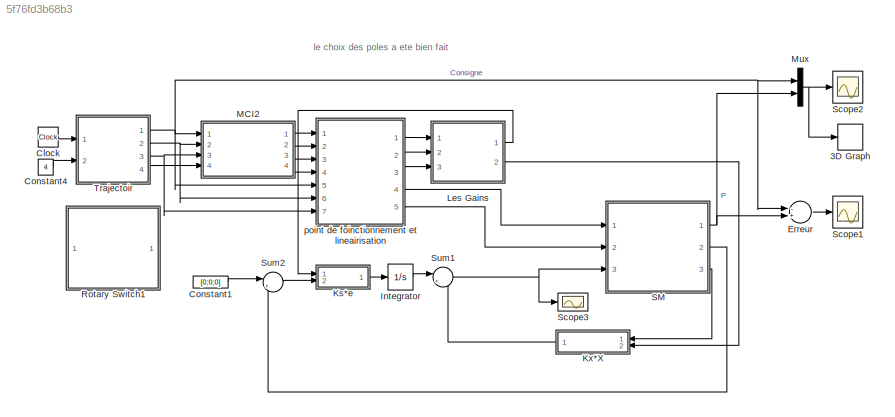
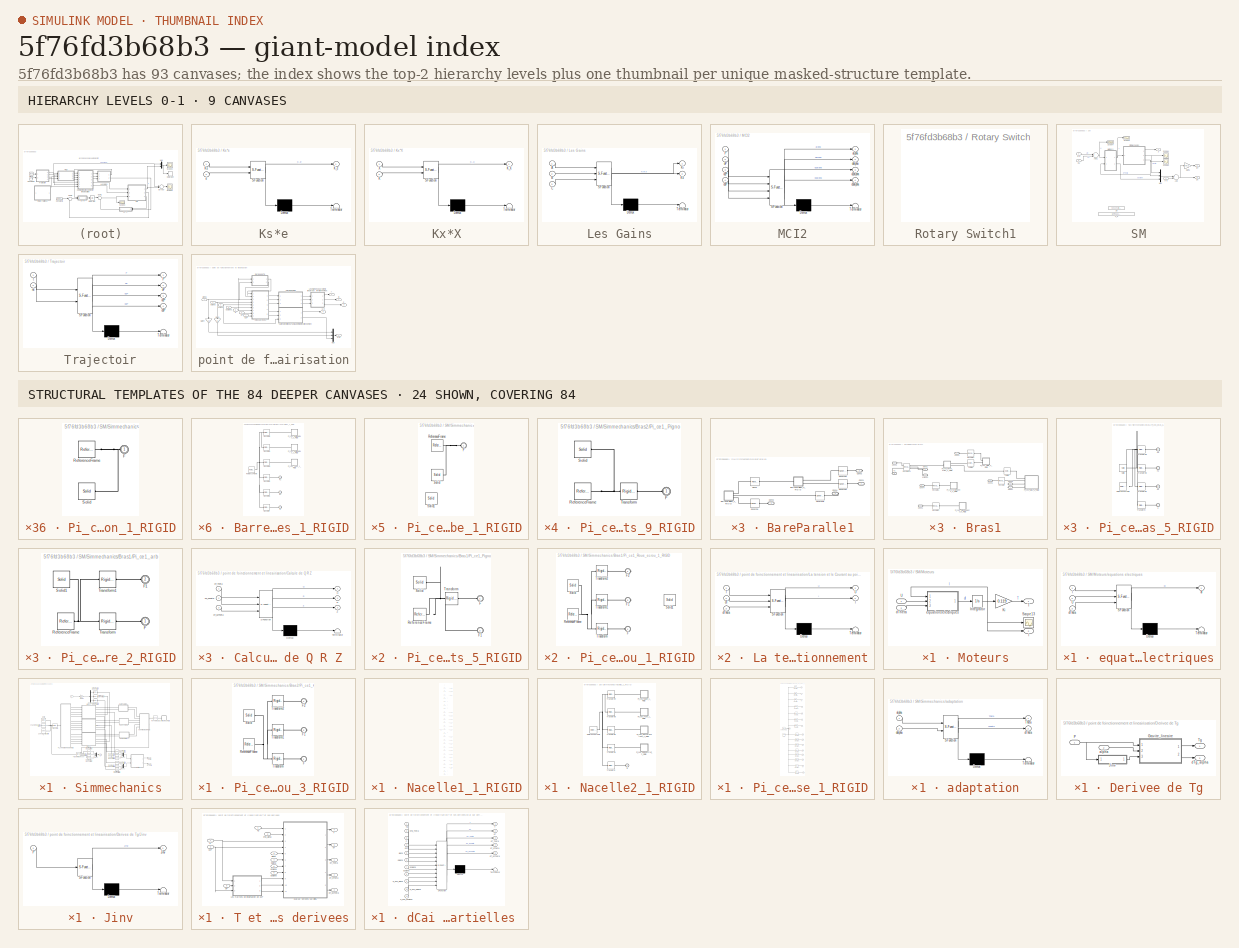
[diagram: thumbnail index - top-2 hierarchy levels (9 canvases) + 24 structural-template representatives of the remaining 84 canvases]
MODEL slx_5f76fd3b68b3
KIND model
CONFIG AbsTol = auto
CONFIG FixedStep = 0.001
CONFIG MaxStep = auto
CONFIG MinStep = 0.001
CONFIG RelTol = 1e-3
CONFIG SampleTimeConstraint = Unconstrained
CONFIG Solver = ode3
CONFIG SolverMode = Auto
CONFIG SolverName = ode3
CONFIG StartTime = 0.0
CONFIG StopTime = 2*pi
BLOCK [S-Function] 3D Graph
  CopyFcn = sfun3d([],[],[],'CopyBlock')
  DeleteFcn = sfun3d([],[],[],'DeleteBlock')
  FunctionName = sfun3d
  LoadFcn = sfun3d([],[],[],'LoadBlock')
  NameChangeFcn = sfun3d([],[],[],'NameChange')
  Parameters = ax,T,np,cp,gd,ls,mk
  Ports = [1]
  StartFcn = sfun3d([],[],[],'Start')
  StopFcn = sfun3d([],[],[],'Stop')
BLOCK [Clock] Clock
BLOCK [Constant] Constant1
  Value = [0;0;0]
BLOCK [Constant] Constant4
  Value = 4
BLOCK [Sum] Erreur
  InputSameDT = off
  Inputs = -+
  OutDataTypeStr = Inherit: Inherit via internal rule
  Ports = [2, 1]
  SaturateOnIntegerOverflow = off
BLOCK [Integrator] Integrator
  Ports = [1, 1]
BLOCK [SubSystem] Ks*e
  ErrorFcn = Stateflow.Translate.translate
  PermitHierarchicalResolution = ExplicitOnly
  Ports = [2, 1]
  RequestExecContextInheritance = off
  SFBlockType = MATLAB Function
  TreatAsAtomicUnit = on
BLOCK [Demux] Ks*e/ Demux 
  Outputs = 1
  Ports = [1, 1]
BLOCK [S-Function] Ks*e/ SFunction 
  EnableBusSupport = on
  FunctionName = sf_sfun
  PortCounts = [2 2]
  Ports = [2, 2]
  Tag = Stateflow S-Function Commande_4_GainPreprogramme 2
BLOCK [Terminator] Ks*e/ Terminator 
BLOCK [Outport] Ks*e/K_e
  IconDisplay = Port number
BLOCK [Inport] Ks*e/Ks
  IconDisplay = Port number
BLOCK [Inport] Ks*e/e
  IconDisplay = Port number
  Port = 2
BLOCK [SubSystem] Kx*X
  ErrorFcn = Stateflow.Translate.translate
  PermitHierarchicalResolution = ExplicitOnly
  Ports = [2, 1]
  RequestExecContextInheritance = off
  SFBlockType = MATLAB Function
  TreatAsAtomicUnit = on
BLOCK [Demux] Kx*X/ Demux 
  Outputs = 1
  Ports = [1, 1]
BLOCK [S-Function] Kx*X/ SFunction 
  EnableBusSupport = on
  FunctionName = sf_sfun
  PortCounts = [2 2]
  Ports = [2, 2]
  Tag = Stateflow S-Function Commande_4_GainPreprogramme 10
BLOCK [Terminator] Kx*X/ Terminator 
BLOCK [Inport] Kx*X/K
  IconDisplay = Port number
  Port = 2
BLOCK [Outport] Kx*X/K_X
  IconDisplay = Port number
BLOCK [Inport] Kx*X/X
  IconDisplay = Port number
BLOCK [SubSystem] Les Gains
  ErrorFcn = Stateflow.Translate.translate
  PermitHierarchicalResolution = ExplicitOnly
  Ports = [3, 2]
  RequestExecContextInheritance = off
  SFBlockType = MATLAB Function
  TreatAsAtomicUnit = on
BLOCK [Demux] Les Gains/ Demux 
  Outputs = 1
  Ports = [1, 1]
BLOCK [S-Function] Les Gains/ SFunction 
  EnableBusSupport = on
  FunctionName = sf_sfun
  PortCounts = [3 3]
  Ports = [3, 3]
  Tag = Stateflow S-Function Commande_4_GainPreprogramme 3
BLOCK [Terminator] Les Gains/ Terminator 
BLOCK [Inport] Les Gains/A
  IconDisplay = Port number
BLOCK [Inport] Les Gains/B
  IconDisplay = Port number
  Port = 2
BLOCK [Inport] Les Gains/C
  IconDisplay = Port number
  Port = 3
BLOCK [Outport] Les Gains/Ki
  IconDisplay = Port number
BLOCK [Outport] Les Gains/Kx
  IconDisplay = Port number
  Port = 2
BLOCK [SubSystem] MCI2
  ErrorFcn = Stateflow.Translate.translate
  PermitHierarchicalResolution = ExplicitOnly
  Ports = [4, 4]
  RequestExecContextInheritance = off
  SFBlockType = MATLAB Function
  TreatAsAtomicUnit = on
BLOCK [Demux] MCI2/ Demux 
  Outputs = 1
  Ports = [1, 1]
BLOCK [S-Function] MCI2/ SFunction 
  EnableBusSupport = on
  FunctionName = sf_sfun
  PortCounts = [4 5]
  Ports = [4, 5]
  Tag = Stateflow S-Function Commande_4_GainPreprogramme 16
BLOCK [Terminator] MCI2/ Terminator 
BLOCK [Inport] MCI2/P
  IconDisplay = Port number
BLOCK [Outport] MCI2/alpha
  IconDisplay = Port number
BLOCK [Inport] MCI2/d2P
  IconDisplay = Port number
  Port = 3
BLOCK [Outport] MCI2/d2alpha
  IconDisplay = Port number
  Port = 3
BLOCK [Inport] MCI2/d3P
  IconDisplay = Port number
  Port = 4
BLOCK [Outport] MCI2/d3alpha
  IconDisplay = Port number
  Port = 4
BLOCK [Inport] MCI2/dP
  IconDisplay = Port number
  Port = 2
BLOCK [Outport] MCI2/dalpha
  IconDisplay = Port number
  Port = 2
BLOCK [Mux] Mux
  DisplayOption = bar
  Inputs = 2
  Ports = [2, 1]
BLOCK [SubSystem] Rotary Switch1
  DialogController = hmiCreateDDGDialog
  IsWebBlock = on
  MaskHideContents = on
  Ports = []
  RequestExecContextInheritance = off
BLOCK [SubSystem] SM
  Ports = [3, 3]
  RequestExecContextInheritance = off
BLOCK [Sum] SM/Add
  InputSameDT = off
  Inputs = +-
  OutDataTypeStr = Inherit: Inherit via internal rule
  Ports = [2, 1]
  SaturateOnIntegerOverflow = off
BLOCK [Sum] SM/Add1
  InputSameDT = off
  OutDataTypeStr = Inherit: Inherit via internal rule
  Ports = [2, 1]
  SaturateOnIntegerOverflow = off
BLOCK [Inport] SM/DU
  IconDisplay = Port number
  Port = 3
BLOCK [Outport] SM/DX
  IconDisplay = Port number
  Port = 3
BLOCK [Outport] SM/DY
  IconDisplay = Port number
  Port = 2
BLOCK [Gain] SM/Gain1
  Gain = [eye(3,3),zeros(3,3),zeros(3,3)]
  Multiplication = Matrix(K*u)
  OutDataTypeStr = Inherit: Inherit via internal rule
  ParamDataTypeStr = Inherit: Inherit via internal rule
  SaturateOnIntegerOverflow = off
BLOCK [SubSystem] SM/Moteurs
  Ports = [2, 2]
  RequestExecContextInheritance = off
BLOCK [Outport] SM/Moteurs/I
  IconDisplay = Port number
  Port = 2
BLOCK [Integrator] SM/Moteurs/Integrator
  InitialCondition = -0*[1;1;1]
  Ports = [1, 1]
BLOCK [Gain] SM/Moteurs/Ki
  Gain = 0.119
  OutDataTypeStr = Inherit: Inherit via internal rule
  ParamDataTypeStr = Inherit: Inherit via internal rule
  SaturateOnIntegerOverflow = off
BLOCK [Scope] SM/Moteurs/Scope13
  Floating = off
  LimitDataPoints = off
  NumInputPorts = 1
  Ports = [1]
  SaveName = ScopeData24
  TimeRange = 0.507510643892459
  YMax = 1000
  YMin = -1000
BLOCK [Outport] SM/Moteurs/T
  IconDisplay = Port number
BLOCK [Inport] SM/Moteurs/U
  IconDisplay = Port number
BLOCK [Inport] SM/Moteurs/dTheta
  IconDisplay = Port number
  Port = 2
BLOCK [SubSystem] SM/Moteurs/equations electriques
  ErrorFcn = Stateflow.Translate.translate
  PermitHierarchicalResolution = ExplicitOnly
  Ports = [3, 1]
  RequestExecContextInheritance = off
  SFBlockType = MATLAB Function
  TreatAsAtomicUnit = on
BLOCK [Demux] SM/Moteurs/equations electriques/ Demux 
  Outputs = 1
  Ports = [1, 1]
BLOCK [S-Function] SM/Moteurs/equations electriques/ SFunction 
  EnableBusSupport = on
  FunctionName = sf_sfun
  PortCounts = [3 2]
  Ports = [3, 2]
  Tag = Stateflow S-Function Commande_4_GainPreprogramme 26
BLOCK [Terminator] SM/Moteurs/equations electriques/ Terminator 
BLOCK [Inport] SM/Moteurs/equations electriques/I
  IconDisplay = Port number
BLOCK [Inport] SM/Moteurs/equations electriques/U
  IconDisplay = Port number
  Port = 2
BLOCK [Outport] SM/Moteurs/equations electriques/dI
  IconDisplay = Port number
BLOCK [Inport] SM/Moteurs/equations electriques/dTheta
  IconDisplay = Port number
  Port = 3
BLOCK [Mux] SM/Mux
  DisplayOption = bar
  Inputs = 3
  Ports = [3, 1]
BLOCK [Outport] SM/P
  IconDisplay = Port number
BLOCK [Scope] SM/Scope1
  Floating = off
  LimitDataPoints = off
  NumInputPorts = 1
  Ports = [1]
  SaveName = ScopeData4
  YMax = 1.35
  YMin = 1.075
BLOCK [Scope] SM/Scope2
  Floating = off
  LimitDataPoints = off
  NumInputPorts = 1
  Ports = [1]
  SaveName = ScopeData3
  YMax = 18000
  YMin = -2000
BLOCK [Scope] SM/Scope3
  Floating = off
  LimitDataPoints = off
  NumInputPorts = 1
  Ports = [1]
  SaveName = ScopeData5
  YMax = 0.25
  YMin = -0.45
BLOCK [Scope] SM/Scope4
  Floating = off
  LimitDataPoints = off
  NumInputPorts = 1
  Ports = [1]
  SaveName = ScopeData6
  YMax = 0.9685
  YMin = 0.961
BLOCK [SubSystem] SM/Simmechanics
  Ports = [1, 3]
  RequestExecContextInheritance = off
BLOCK [SubSystem] SM/Simmechanics/BareParalle1
  Ports = [0, 0, 0, 0, 0, 2, 2]
  RequestExecContextInheritance = off
BLOCK [SubSystem] SM/Simmechanics/BareParalle1/BarreParalleles_1_RIGID
  Ports = [0, 0, 0, 0, 0, 0, 3]
  RequestExecContextInheritance = off
BLOCK [PMIOPort] SM/Simmechanics/BareParalle1/BarreParalleles_1_RIGID/F
  Port = 3
  Side = Right
BLOCK [PMIOPort] SM/Simmechanics/BareParalle1/BarreParalleles_1_RIGID/F1
  Port = 2
  Side = Right
BLOCK [PMIOPort] SM/Simmechanics/BareParalle1/BarreParalleles_1_RIGID/F2
  Port = 1
  Side = Right
BLOCK [SubSystem] SM/Simmechanics/BareParalle1/BarreParalleles_1_RIGID/Pi_ce4_Extremetees_1_RIGID
  Ports = [0, 0, 0, 0, 0, 1]
  RequestExecContextInheritance = off
BLOCK [PMIOPort] SM/Simmechanics/BareParalle1/BarreParalleles_1_RIGID/Pi_ce4_Extremetees_1_RIGID/F
  Port = 1
  Side = Left
BLOCK [Reference] SM/Simmechanics/BareParalle1/BarreParalleles_1_RIGID/Pi_ce4_Extremetees_1_RIGID/ReferenceFrame  REF=sm_lib/Frames and
Transforms/Reference
Frame
  BlockFunction = simmechanics.library.frames_transforms.reference_frame
  ClassName = ReferenceFrame
  LogSimulationData = off
  Ports = [0, 0, 0, 0, 0, 0, 1]
  SourceBlock = sm_lib/Frames and\nTransforms/Reference\nFrame
  SourceType = Reference\nFrame
BLOCK [Reference] SM/Simmechanics/BareParalle1/BarreParalleles_1_RIGID/Pi_ce4_Extremetees_1_RIGID/Solid  REF=sm_lib/Body Elements/Solid
  BlockFunction = simmechanics.library.body_elements.solid
  BrickDimensionUnits = m
  BrickDimensions = [1 1 1]
  CenterOfMass = [-6.6394731008193298e-06 -1.3723999560385904 4.9969803448403587]
  CenterOfMassUnits = mm
  ClassName = Solid
  CylinderLength = 1
  CylinderLengthUnits = m
  CylinderRadius = 1
  CylinderRadiusUnits = m
  Density = 1000
  DensityBased = on
  DensityUnits = kg/(m^3)
  EllipsoidRadii = [1 1 1]
  EllipsoidRadiiUnits = m
  ExtGeomFileName = Pièce4_Extremetees_Défaut_sldprt.STL
  ExtGeomFileType = STL
  ExtGeomFileUnits = mm
  ExtrusionCrossSection = [1 1; -1 1; -1 -1; 1 -1]
  ExtrusionCrossSectionUnits = m
  ExtrusionLength = 1
  ExtrusionLengthUnits = m
  GeometryShape = FromFile
  GraphicAmbientColor = [0.15 0.15 0.15 1.0]
  GraphicDiffuseColor = [0.59999999999999998 0.59999999999999998 0.59999999999999998]
  GraphicEmissiveColor = [0.0 0.0 0.0 1.0]
  GraphicOpacity = 1
  GraphicShininess = 75
  GraphicSpecularColor = [0.5 0.5 0.5 1.0]
  GraphicType = FromGeometry
  GraphicVisPropType = SimpleVisualProperties
  InertiaType = Custom
  LogSimulationData = off
  MarkerShape = Sphere
  MarkerSize = 10
  MarkerSizeUnits = m
  Mass = 0.0043409919402835973
  MassUnits = kg
  MomentsOfInertia = [0.22208105944838133 0.24049053699814107 0.066049415613599144]
  MomentsOfInertiaUnits = kg*mm^2
  PolygonNumSides = 3
  PolygonOuterRadius = 1
  PolygonOuterRadiusUnits = m
  Ports = [0, 0, 0, 0, 0, 0, 1]
  ProductsOfInertia = [-0.022728057317176146 1.1398156711537084e-07 7.9844492116540505e-07]
  ProductsOfInertiaUnits = kg*mm^2
  RectangleSize = [1 1]
  RectangleSizeUnits = m
  RevolutionAngle = 180
  RevolutionAngleUnits = deg
  RevolutionCrossSection = [1 1; 1 -1; 2 -1; 2 1]
  RevolutionCrossSectionUnits = m
  RevolutionExtent = Full
  SourceBlock = sm_lib/Body Elements/Solid
  SourceType = Solid
  SphereRadius = 1
  SphereRadiusUnits = m
BLOCK [SubSystem] SM/Simmechanics/BareParalle1/BarreParalleles_1_RIGID/Pi_ce4_Extremetees_2_RIGID
  Ports = [0, 0, 0, 0, 0, 1]
  RequestExecContextInheritance = off
BLOCK [PMIOPort] SM/Simmechanics/BareParalle1/BarreParalleles_1_RIGID/Pi_ce4_Extremetees_2_RIGID/F
  Port = 1
  Side = Left
BLOCK [Reference] SM/Simmechanics/BareParalle1/BarreParalleles_1_RIGID/Pi_ce4_Extremetees_2_RIGID/ReferenceFrame  REF=sm_lib/Frames and
Transforms/Reference
Frame
  BlockFunction = simmechanics.library.frames_transforms.reference_frame
  ClassName = ReferenceFrame
  LogSimulationData = off
  Ports = [0, 0, 0, 0, 0, 0, 1]
  SourceBlock = sm_lib/Frames and\nTransforms/Reference\nFrame
  SourceType = Reference\nFrame
BLOCK [Reference] SM/Simmechanics/BareParalle1/BarreParalleles_1_RIGID/Pi_ce4_Extremetees_2_RIGID/Solid  REF=sm_lib/Body Elements/Solid
  BlockFunction = simmechanics.library.body_elements.solid
  BrickDimensionUnits = m
  BrickDimensions = [1 1 1]
  CenterOfMass = [-6.6394731008193298e-06 -1.3723999560385904 4.9969803448403587]
  CenterOfMassUnits = mm
  ClassName = Solid
  CylinderLength = 1
  CylinderLengthUnits = m
  CylinderRadius = 1
  CylinderRadiusUnits = m
  Density = 1000
  DensityBased = on
  DensityUnits = kg/(m^3)
  EllipsoidRadii = [1 1 1]
  EllipsoidRadiiUnits = m
  ExtGeomFileName = Pièce4_Extremetees_Défaut_sldprt.STL
  ExtGeomFileType = STL
  ExtGeomFileUnits = mm
  ExtrusionCrossSection = [1 1; -1 1; -1 -1; 1 -1]
  ExtrusionCrossSectionUnits = m
  ExtrusionLength = 1
  ExtrusionLengthUnits = m
  GeometryShape = FromFile
  GraphicAmbientColor = [0.15 0.15 0.15 1.0]
  GraphicDiffuseColor = [0.59999999999999998 0.59999999999999998 0.59999999999999998]
  GraphicEmissiveColor = [0.0 0.0 0.0 1.0]
  GraphicOpacity = 1
  GraphicShininess = 75
  GraphicSpecularColor = [0.5 0.5 0.5 1.0]
  GraphicType = FromGeometry
  GraphicVisPropType = SimpleVisualProperties
  InertiaType = Custom
  LogSimulationData = off
  MarkerShape = Sphere
  MarkerSize = 10
  MarkerSizeUnits = m
  Mass = 0.0043409919402835973
  MassUnits = kg
  MomentsOfInertia = [0.22208105944838133 0.24049053699814107 0.066049415613599144]
  MomentsOfInertiaUnits = kg*mm^2
  PolygonNumSides = 3
  PolygonOuterRadius = 1
  PolygonOuterRadiusUnits = m
  Ports = [0, 0, 0, 0, 0, 0, 1]
  ProductsOfInertia = [-0.022728057317176146 1.1398156711537084e-07 7.9844492116540505e-07]
  ProductsOfInertiaUnits = kg*mm^2
  RectangleSize = [1 1]
  RectangleSizeUnits = m
  RevolutionAngle = 180
  RevolutionAngleUnits = deg
  RevolutionCrossSection = [1 1; 1 -1; 2 -1; 2 1]
  RevolutionCrossSectionUnits = m
  RevolutionExtent = Full
  SourceBlock = sm_lib/Body Elements/Solid
  SourceType = Solid
  SphereRadius = 1
  SphereRadiusUnits = m
BLOCK [SubSystem] SM/Simmechanics/BareParalle1/BarreParalleles_1_RIGID/Pi_ce4_Tube_1_RIGID
  Ports = [0, 0, 0, 0, 0, 1]
  RequestExecContextInheritance = off
BLOCK [PMIOPort] SM/Simmechanics/BareParalle1/BarreParalleles_1_RIGID/Pi_ce4_Tube_1_RIGID/F
  Port = 1
  Side = Left
BLOCK [Reference] SM/Simmechanics/BareParalle1/BarreParalleles_1_RIGID/Pi_ce4_Tube_1_RIGID/ReferenceFrame  REF=sm_lib/Frames and
Transforms/Reference
Frame
  BlockFunction = simmechanics.library.frames_transforms.reference_frame
  ClassName = ReferenceFrame
  LogSimulationData = off
  Ports = [0, 0, 0, 0, 0, 0, 1]
  SourceBlock = sm_lib/Frames and\nTransforms/Reference\nFrame
  SourceType = Reference\nFrame
BLOCK [Reference] SM/Simmechanics/BareParalle1/BarreParalleles_1_RIGID/Pi_ce4_Tube_1_RIGID/Solid  REF=sm_lib/Body Elements/Solid
  BlockFunction = simmechanics.library.body_elements.solid
  BrickDimensionUnits = m
  BrickDimensions = [1 1 1]
  CenterOfMass = [-4.1460122344799134e-11 2.6332345173922464e-08 157.00037492761294]
  CenterOfMassUnits = mm
  ClassName = Solid
  CylinderLength = 1
  CylinderLengthUnits = m
  CylinderRadius = 1
  CylinderRadiusUnits = m
  Density = 1000
  DensityBased = on
  DensityUnits = kg/(m^3)
  EllipsoidRadii = [1 1 1]
  EllipsoidRadiiUnits = m
  ExtGeomFileName = Pièce4_Tube_Défaut_sldprt.STL
  ExtGeomFileType = STL
  ExtGeomFileUnits = mm
  ExtrusionCrossSection = [1 1; -1 1; -1 -1; 1 -1]
  ExtrusionCrossSectionUnits = m
  ExtrusionLength = 1
  ExtrusionLengthUnits = m
  GeometryShape = FromFile
  GraphicAmbientColor = [0.15 0.15 0.15 1.0]
  GraphicDiffuseColor = [0.2 0.2 0.2]
  GraphicEmissiveColor = [0.0 0.0 0.0 1.0]
  GraphicOpacity = 1
  GraphicShininess = 75
  GraphicSpecularColor = [0.5 0.5 0.5 1.0]
  GraphicType = FromGeometry
  GraphicVisPropType = SimpleVisualProperties
  InertiaType = Custom
  LogSimulationData = off
  MarkerShape = Sphere
  MarkerSize = 10
  MarkerSizeUnits = m
  Mass = 0.0056953775725032503
  MassUnits = kg
  MomentsOfInertia = [46.656669534748204 46.656784060773653 0.060513437161415488]
  MomentsOfInertiaUnits = kg*mm^2
  PolygonNumSides = 3
  PolygonOuterRadius = 1
  PolygonOuterRadiusUnits = m
  Ports = [0, 0, 0, 0, 0, 0, 1]
  ProductsOfInertia = [4.4271388779002391e-06 -1.0344554341986986e-06 -6.5578304138838094e-07]
  ProductsOfInertiaUnits = kg*mm^2
  RectangleSize = [1 1]
  RectangleSizeUnits = m
  RevolutionAngle = 180
  RevolutionAngleUnits = deg
  RevolutionCrossSection = [1 1; 1 -1; 2 -1; 2 1]
  RevolutionCrossSectionUnits = m
  RevolutionExtent = Full
  SourceBlock = sm_lib/Body Elements/Solid
  SourceType = Solid
  SphereRadius = 1
  SphereRadiusUnits = m
BLOCK [Reference] SM/Simmechanics/BareParalle1/BarreParalleles_1_RIGID/Pi_ce4_Tube_1_RIGID/Solid1  REF=sm_lib/Body Elements/Solid
  BlockFunction = simmechanics.library.body_elements.solid
  BrickDimensionUnits = m
  BrickDimensions = [1 1 1]
  CenterOfMass = [-4.1460122344799134e-11 2.6332345173922464e-08 157.00037492761294]
  CenterOfMassUnits = mm
  ClassName = Solid
  CylinderLength = 1
  CylinderLengthUnits = m
  CylinderRadius = 1
  CylinderRadiusUnits = m
  Density = 1000
  DensityBased = on
  DensityUnits = kg/(m^3)
  EllipsoidRadii = [1 1 1]
  EllipsoidRadiiUnits = m
  ExtGeomFileName = Pièce4_Tube_Défaut_sldprt.STL
  ExtGeomFileType = STL
  ExtGeomFileUnits = mm
  ExtrusionCrossSection = [1 1; -1 1; -1 -1; 1 -1]
  ExtrusionCrossSectionUnits = m
  ExtrusionLength = 1
  ExtrusionLengthUnits = m
  GeometryShape = FromFile
  GraphicAmbientColor = [0.15 0.15 0.15 1.0]
  GraphicDiffuseColor = [1 1 1]
  GraphicEmissiveColor = [0.0 0.0 0.0 1.0]
  GraphicOpacity = 1
  GraphicShininess = 75
  GraphicSpecularColor = [0.5 0.5 0.5 1.0]
  GraphicType = FromGeometry
  GraphicVisPropType = SimpleVisualProperties
  InertiaType = Custom
  LogSimulationData = off
  MarkerShape = Sphere
  MarkerSize = 10
  MarkerSizeUnits = m
  Mass = 0.0056953775725032503
  MassUnits = kg
  MomentsOfInertia = [46.656669534748204 46.656784060773653 0.060513437161415488]
  MomentsOfInertiaUnits = kg*mm^2
  PolygonNumSides = 3
  PolygonOuterRadius = 1
  PolygonOuterRadiusUnits = m
  Ports = [0, 0, 0, 0, 0, 0, 1]
  ProductsOfInertia = [4.4271388779002391e-06 -1.0344554341986986e-06 -6.5578304138838094e-07]
  ProductsOfInertiaUnits = kg*mm^2
  RectangleSize = [1 1]
  RectangleSizeUnits = m
  RevolutionAngle = 180
  RevolutionAngleUnits = deg
  RevolutionCrossSection = [1 1; 1 -1; 2 -1; 2 1]
  RevolutionCrossSectionUnits = m
  RevolutionExtent = Full
  SourceBlock = sm_lib/Body Elements/Solid
  SourceType = Solid
  SphereRadius = 1
  SphereRadiusUnits = m
BLOCK [Reference] SM/Simmechanics/BareParalle1/BarreParalleles_1_RIGID/ReferenceFrame  REF=sm_lib/Frames and
Transforms/Reference
Frame
  BlockFunction = simmechanics.library.frames_transforms.reference_frame
  ClassName = ReferenceFrame
  LogSimulationData = off
  Ports = [0, 0, 0, 0, 0, 0, 1]
  SourceBlock = sm_lib/Frames and\nTransforms/Reference\nFrame
  SourceType = Reference\nFrame
BLOCK [Reference] SM/Simmechanics/BareParalle1/BarreParalleles_1_RIGID/Transform  REF=sm_lib/Frames and
Transforms/Rigid
Transform
  BaseAlignAxisA = +Y
  BaseAlignAxisB = +Z
  BlockFunction = simmechanics.library.frames_transforms.rigid_transform
  ClassName = RigidTransform
  FollAlignAxisA = +X
  FollAlignAxisB = +Y
  LogSimulationData = off
  Ports = [0, 0, 0, 0, 0, 1, 1]
  RotationAngle = 0
  RotationAngleUnits = rad
  RotationArbitraryAxis = [0 0 0]
  RotationMatrix = [1 0 0; 0 1 0; 0 0 1]
  RotationMethod = ArbitraryAxis
  RotationStandardAxis = +Z
  SourceBlock = sm_lib/Frames and\nTransforms/Rigid\nTransform
  SourceType = Rigid\nTransform
  TranslationCartesianOffset = [-0.38792770946752952 0.23641173121360914 480.99999999999989]
  TranslationLengthUnit = mm
  TranslationMethod = Cartesian
  TranslationROffset = 0
  TranslationROffsetUnits = m
  TranslationStandardAxis = +Z
  TranslationStandardOffset = 0
  TranslationThetaOffset = 0
  TranslationThetaOffsetUnits = deg
  TranslationZOffset = 0
  TranslationZOffsetUnits = m
BLOCK [Reference] SM/Simmechanics/BareParalle1/BarreParalleles_1_RIGID/Transform1  REF=sm_lib/Frames and
Transforms/Rigid
Transform
  BaseAlignAxisA = +Y
  BaseAlignAxisB = +Z
  BlockFunction = simmechanics.library.frames_transforms.rigid_transform
  ClassName = RigidTransform
  FollAlignAxisA = +X
  FollAlignAxisB = +Y
  LogSimulationData = off
  Ports = [0, 0, 0, 0, 0, 1, 1]
  RotationAngle = 0
  RotationAngleUnits = rad
  RotationArbitraryAxis = [0 0 0]
  RotationMatrix = [1 0 0; 0 1 0; 0 0 1]
  RotationMethod = ArbitraryAxis
  RotationStandardAxis = +Z
  SourceBlock = sm_lib/Frames and\nTransforms/Rigid\nTransform
  SourceType = Rigid\nTransform
  TranslationCartesianOffset = [-0.38792770946754351 0.23641173121360981 147.00000000000003]
  TranslationLengthUnit = mm
  TranslationMethod = Cartesian
  TranslationROffset = 0
  TranslationROffsetUnits = m
  TranslationStandardAxis = +Z
  TranslationStandardOffset = 0
  TranslationThetaOffset = 0
  TranslationThetaOffsetUnits = deg
  TranslationZOffset = 0
  TranslationZOffsetUnits = m
BLOCK [Reference] SM/Simmechanics/BareParalle1/BarreParalleles_1_RIGID/Transform2  REF=sm_lib/Frames and
Transforms/Rigid
Transform
  BaseAlignAxisA = +Y
  BaseAlignAxisB = +Z
  BlockFunction = simmechanics.library.frames_transforms.rigid_transform
  ClassName = RigidTransform
  FollAlignAxisA = +X
  FollAlignAxisB = +Y
  LogSimulationData = off
  Ports = [0, 0, 0, 0, 0, 1, 1]
  RotationAngle = 2.0943951023931953
  RotationAngleUnits = rad
  RotationArbitraryAxis = [-0.57735026918962584 -0.57735026918962584 -0.57735026918962584]
  RotationMatrix = [1 0 0; 0 1 0; 0 0 1]
  RotationMethod = ArbitraryAxis
  RotationStandardAxis = +Z
  SourceBlock = sm_lib/Frames and\nTransforms/Rigid\nTransform
  SourceType = Rigid\nTransform
  TranslationCartesianOffset = [0 0 0]
  TranslationLengthUnit = mm
  TranslationMethod = Cartesian
  TranslationROffset = 0
  TranslationROffsetUnits = m
  TranslationStandardAxis = +Z
  TranslationStandardOffset = 0
  TranslationThetaOffset = 0
  TranslationThetaOffsetUnits = deg
  TranslationZOffset = 0
  TranslationZOffsetUnits = m
BLOCK [Reference] SM/Simmechanics/BareParalle1/BarreParalleles_1_RIGID/Transform3  REF=sm_lib/Frames and
Transforms/Rigid
Transform
  BaseAlignAxisA = +Y
  BaseAlignAxisB = +Z
  BlockFunction = simmechanics.library.frames_transforms.rigid_transform
  ClassName = RigidTransform
  FollAlignAxisA = +X
  FollAlignAxisB = +Y
  LogSimulationData = off
  Ports = [0, 0, 0, 0, 0, 1, 1]
  RotationAngle = 0.0
  RotationAngleUnits = deg
  RotationArbitraryAxis = [0 0 1]
  RotationMatrix = [1 0 0; 0 1 0; 0 0 1]
  RotationMethod = None
  RotationStandardAxis = +Z
  SourceBlock = sm_lib/Frames and\nTransforms/Rigid\nTransform
  SourceType = Rigid\nTransform
  TranslationCartesianOffset = [-2.2141976776871992 0.23641173121358161 156.99999999999997]
  TranslationLengthUnit = mm
  TranslationMethod = Cartesian
  TranslationROffset = 0
  TranslationROffsetUnits = m
  TranslationStandardAxis = +Z
  TranslationStandardOffset = 0
  TranslationThetaOffset = 0
  TranslationThetaOffsetUnits = deg
  TranslationZOffset = 0
  TranslationZOffsetUnits = m
BLOCK [Reference] SM/Simmechanics/BareParalle1/BarreParalleles_1_RIGID/Transform4  REF=sm_lib/Frames and
Transforms/Rigid
Transform
  BaseAlignAxisA = +Y
  BaseAlignAxisB = +Z
  BlockFunction = simmechanics.library.frames_transforms.rigid_transform
  ClassName = RigidTransform
  FollAlignAxisA = +X
  FollAlignAxisB = +Y
  LogSimulationData = off
  Ports = [0, 0, 0, 0, 0, 1, 1]
  RotationAngle = 1.5707963267948966
  RotationAngleUnits = rad
  RotationArbitraryAxis = [-5.5294310796760732e-17 -0 -1]
  RotationMatrix = [1 0 0; 0 1 0; 0 0 1]
  RotationMethod = ArbitraryAxis
  RotationStandardAxis = +Z
  SourceBlock = sm_lib/Frames and\nTransforms/Rigid\nTransform
  SourceType = Rigid\nTransform
  TranslationCartesianOffset = [-2.2141976776872059 0.23641173121360937 147.00000000000003]
  TranslationLengthUnit = mm
  TranslationMethod = Cartesian
  TranslationROffset = 0
  TranslationROffsetUnits = m
  TranslationStandardAxis = +Z
  TranslationStandardOffset = 0
  TranslationThetaOffset = 0
  TranslationThetaOffsetUnits = deg
  TranslationZOffset = 0
  TranslationZOffsetUnits = m
BLOCK [Reference] SM/Simmechanics/BareParalle1/BarreParalleles_1_RIGID/Transform5  REF=sm_lib/Frames and
Transforms/Rigid
Transform
  BaseAlignAxisA = +Y
  BaseAlignAxisB = +Z
  BlockFunction = simmechanics.library.frames_transforms.rigid_transform
  ClassName = RigidTransform
  FollAlignAxisA = +X
  FollAlignAxisB = +Y
  LogSimulationData = off
  Ports = [0, 0, 0, 0, 0, 1, 1]
  RotationAngle = 3.1415926535897931
  RotationAngleUnits = rad
  RotationArbitraryAxis = [0.70710678118654757 0.70710678118654746 5.1518658800561372e-17]
  RotationMatrix = [1 0 0; 0 1 0; 0 0 1]
  RotationMethod = ArbitraryAxis
  RotationStandardAxis = +Z
  SourceBlock = sm_lib/Frames and\nTransforms/Rigid\nTransform
  SourceType = Rigid\nTransform
  TranslationCartesianOffset = [-2.2141976776871921 0.23641173121360937 480.99999999999989]
  TranslationLengthUnit = mm
  TranslationMethod = Cartesian
  TranslationROffset = 0
  TranslationROffsetUnits = m
  TranslationStandardAxis = +Z
  TranslationStandardOffset = 0
  TranslationThetaOffset = 0
  TranslationThetaOffsetUnits = deg
  TranslationZOffset = 0
  TranslationZOffsetUnits = m
BLOCK [SubSystem] SM/Simmechanics/BareParalle1/BarreParalleles_2_RIGID
  Ports = [0, 0, 0, 0, 0, 1, 2]
  RequestExecContextInheritance = off
BLOCK [PMIOPort] SM/Simmechanics/BareParalle1/BarreParalleles_2_RIGID/F
  Port = 3
  Side = Right
BLOCK [PMIOPort] SM/Simmechanics/BareParalle1/BarreParalleles_2_RIGID/F1
  Port = 2
  Side = Right
BLOCK [PMIOPort] SM/Simmechanics/BareParalle1/BarreParalleles_2_RIGID/F2
  Port = 1
  Side = Left
BLOCK [SubSystem] SM/Simmechanics/BareParalle1/BarreParalleles_2_RIGID/Pi_ce4_Extremetees_1_RIGID
  Ports = [0, 0, 0, 0, 0, 1]
  RequestExecContextInheritance = off
BLOCK [PMIOPort] SM/Simmechanics/BareParalle1/BarreParalleles_2_RIGID/Pi_ce4_Extremetees_1_RIGID/F
  Port = 1
  Side = Left
BLOCK [Reference] SM/Simmechanics/BareParalle1/BarreParalleles_2_RIGID/Pi_ce4_Extremetees_1_RIGID/ReferenceFrame  REF=sm_lib/Frames and
Transforms/Reference
Frame
  BlockFunction = simmechanics.library.frames_transforms.reference_frame
  ClassName = ReferenceFrame
  LogSimulationData = off
  Ports = [0, 0, 0, 0, 0, 0, 1]
  SourceBlock = sm_lib/Frames and\nTransforms/Reference\nFrame
  SourceType = Reference\nFrame
BLOCK [Reference] SM/Simmechanics/BareParalle1/BarreParalleles_2_RIGID/Pi_ce4_Extremetees_1_RIGID/Solid  REF=sm_lib/Body Elements/Solid
  BlockFunction = simmechanics.library.body_elements.solid
  BrickDimensionUnits = m
  BrickDimensions = [1 1 1]
  CenterOfMass = [-6.6394731008193298e-06 -1.3723999560385904 4.9969803448403587]
  CenterOfMassUnits = mm
  ClassName = Solid
  CylinderLength = 1
  CylinderLengthUnits = m
  CylinderRadius = 1
  CylinderRadiusUnits = m
  Density = 1000
  DensityBased = on
  DensityUnits = kg/(m^3)
  EllipsoidRadii = [1 1 1]
  EllipsoidRadiiUnits = m
  ExtGeomFileName = Pièce4_Extremetees_Défaut_sldprt.STL
  ExtGeomFileType = STL
  ExtGeomFileUnits = mm
  ExtrusionCrossSection = [1 1; -1 1; -1 -1; 1 -1]
  ExtrusionCrossSectionUnits = m
  ExtrusionLength = 1
  ExtrusionLengthUnits = m
  GeometryShape = FromFile
  GraphicAmbientColor = [0.15 0.15 0.15 1.0]
  GraphicDiffuseColor = [0.59999999999999998 0.59999999999999998 0.59999999999999998]
  GraphicEmissiveColor = [0.0 0.0 0.0 1.0]
  GraphicOpacity = 1
  GraphicShininess = 75
  GraphicSpecularColor = [0.5 0.5 0.5 1.0]
  GraphicType = FromGeometry
  GraphicVisPropType = SimpleVisualProperties
  InertiaType = Custom
  LogSimulationData = off
  MarkerShape = Sphere
  MarkerSize = 10
  MarkerSizeUnits = m
  Mass = 0.0043409919402835973
  MassUnits = kg
  MomentsOfInertia = [0.22208105944838133 0.24049053699814107 0.066049415613599144]
  MomentsOfInertiaUnits = kg*mm^2
  PolygonNumSides = 3
  PolygonOuterRadius = 1
  PolygonOuterRadiusUnits = m
  Ports = [0, 0, 0, 0, 0, 0, 1]
  ProductsOfInertia = [-0.022728057317176146 1.1398156711537084e-07 7.9844492116540505e-07]
  ProductsOfInertiaUnits = kg*mm^2
  RectangleSize = [1 1]
  RectangleSizeUnits = m
  RevolutionAngle = 180
  RevolutionAngleUnits = deg
  RevolutionCrossSection = [1 1; 1 -1; 2 -1; 2 1]
  RevolutionCrossSectionUnits = m
  RevolutionExtent = Full
  SourceBlock = sm_lib/Body Elements/Solid
  SourceType = Solid
  SphereRadius = 1
  SphereRadiusUnits = m
BLOCK [SubSystem] SM/Simmechanics/BareParalle1/BarreParalleles_2_RIGID/Pi_ce4_Extremetees_2_RIGID
  Ports = [0, 0, 0, 0, 0, 1]
  RequestExecContextInheritance = off
BLOCK [PMIOPort] SM/Simmechanics/BareParalle1/BarreParalleles_2_RIGID/Pi_ce4_Extremetees_2_RIGID/F
  Port = 1
  Side = Left
BLOCK [Reference] SM/Simmechanics/BareParalle1/BarreParalleles_2_RIGID/Pi_ce4_Extremetees_2_RIGID/ReferenceFrame  REF=sm_lib/Frames and
Transforms/Reference
Frame
  BlockFunction = simmechanics.library.frames_transforms.reference_frame
  ClassName = ReferenceFrame
  LogSimulationData = off
  Ports = [0, 0, 0, 0, 0, 0, 1]
  SourceBlock = sm_lib/Frames and\nTransforms/Reference\nFrame
  SourceType = Reference\nFrame
BLOCK [Reference] SM/Simmechanics/BareParalle1/BarreParalleles_2_RIGID/Pi_ce4_Extremetees_2_RIGID/Solid  REF=sm_lib/Body Elements/Solid
  BlockFunction = simmechanics.library.body_elements.solid
  BrickDimensionUnits = m
  BrickDimensions = [1 1 1]
  CenterOfMass = [-6.6394731008193298e-06 -1.3723999560385904 4.9969803448403587]
  CenterOfMassUnits = mm
  ClassName = Solid
  CylinderLength = 1
  CylinderLengthUnits = m
  CylinderRadius = 1
  CylinderRadiusUnits = m
  Density = 1000
  DensityBased = on
  DensityUnits = kg/(m^3)
  EllipsoidRadii = [1 1 1]
  EllipsoidRadiiUnits = m
  ExtGeomFileName = Pièce4_Extremetees_Défaut_sldprt.STL
  ExtGeomFileType = STL
  ExtGeomFileUnits = mm
  ExtrusionCrossSection = [1 1; -1 1; -1 -1; 1 -1]
  ExtrusionCrossSectionUnits = m
  ExtrusionLength = 1
  ExtrusionLengthUnits = m
  GeometryShape = FromFile
  GraphicAmbientColor = [0.15 0.15 0.15 1.0]
  GraphicDiffuseColor = [0.59999999999999998 0.59999999999999998 0.59999999999999998]
  GraphicEmissiveColor = [0.0 0.0 0.0 1.0]
  GraphicOpacity = 1
  GraphicShininess = 75
  GraphicSpecularColor = [0.5 0.5 0.5 1.0]
  GraphicType = FromGeometry
  GraphicVisPropType = SimpleVisualProperties
  InertiaType = Custom
  LogSimulationData = off
  MarkerShape = Sphere
  MarkerSize = 10
  MarkerSizeUnits = m
  Mass = 0.0043409919402835973
  MassUnits = kg
  MomentsOfInertia = [0.22208105944838133 0.24049053699814107 0.066049415613599144]
  MomentsOfInertiaUnits = kg*mm^2
  PolygonNumSides = 3
  PolygonOuterRadius = 1
  PolygonOuterRadiusUnits = m
  Ports = [0, 0, 0, 0, 0, 0, 1]
  ProductsOfInertia = [-0.022728057317176146 1.1398156711537084e-07 7.9844492116540505e-07]
  ProductsOfInertiaUnits = kg*mm^2
  RectangleSize = [1 1]
  RectangleSizeUnits = m
  RevolutionAngle = 180
  RevolutionAngleUnits = deg
  RevolutionCrossSection = [1 1; 1 -1; 2 -1; 2 1]
  RevolutionCrossSectionUnits = m
  RevolutionExtent = Full
  SourceBlock = sm_lib/Body Elements/Solid
  SourceType = Solid
  SphereRadius = 1
  SphereRadiusUnits = m
BLOCK [SubSystem] SM/Simmechanics/BareParalle1/BarreParalleles_2_RIGID/Pi_ce4_Tube_1_RIGID
  Ports = [0, 0, 0, 0, 0, 1]
  RequestExecContextInheritance = off
BLOCK [PMIOPort] SM/Simmechanics/BareParalle1/BarreParalleles_2_RIGID/Pi_ce4_Tube_1_RIGID/F
  Port = 1
  Side = Left
BLOCK [Reference] SM/Simmechanics/BareParalle1/BarreParalleles_2_RIGID/Pi_ce4_Tube_1_RIGID/ReferenceFrame  REF=sm_lib/Frames and
Transforms/Reference
Frame
  BlockFunction = simmechanics.library.frames_transforms.reference_frame
  ClassName = ReferenceFrame
  LogSimulationData = off
  Ports = [0, 0, 0, 0, 0, 0, 1]
  SourceBlock = sm_lib/Frames and\nTransforms/Reference\nFrame
  SourceType = Reference\nFrame
BLOCK [Reference] SM/Simmechanics/BareParalle1/BarreParalleles_2_RIGID/Pi_ce4_Tube_1_RIGID/Solid  REF=sm_lib/Body Elements/Solid
  BlockFunction = simmechanics.library.body_elements.solid
  BrickDimensionUnits = m
  BrickDimensions = [1 1 1]
  CenterOfMass = [-4.1460122344799134e-11 2.6332345173922464e-08 157.00037492761294]
  CenterOfMassUnits = mm
  ClassName = Solid
  CylinderLength = 1
  CylinderLengthUnits = m
  CylinderRadius = 1
  CylinderRadiusUnits = m
  Density = 1000
  DensityBased = on
  DensityUnits = kg/(m^3)
  EllipsoidRadii = [1 1 1]
  EllipsoidRadiiUnits = m
  ExtGeomFileName = Pièce4_Tube_Défaut_sldprt.STL
  ExtGeomFileType = STL
  ExtGeomFileUnits = mm
  ExtrusionCrossSection = [1 1; -1 1; -1 -1; 1 -1]
  ExtrusionCrossSectionUnits = m
  ExtrusionLength = 1
  ExtrusionLengthUnits = m
  GeometryShape = FromFile
  GraphicAmbientColor = [0.15 0.15 0.15 1.0]
  GraphicDiffuseColor = [0.2 0.2 0.2]
  GraphicEmissiveColor = [0.0 0.0 0.0 1.0]
  GraphicOpacity = 1
  GraphicShininess = 75
  GraphicSpecularColor = [0.5 0.5 0.5 1.0]
  GraphicType = FromGeometry
  GraphicVisPropType = SimpleVisualProperties
  InertiaType = Custom
  LogSimulationData = off
  MarkerShape = Sphere
  MarkerSize = 10
  MarkerSizeUnits = m
  Mass = 0.0056953775725032503
  MassUnits = kg
  MomentsOfInertia = [46.656669534748204 46.656784060773653 0.060513437161415488]
  MomentsOfInertiaUnits = kg*mm^2
  PolygonNumSides = 3
  PolygonOuterRadius = 1
  PolygonOuterRadiusUnits = m
  Ports = [0, 0, 0, 0, 0, 0, 1]
  ProductsOfInertia = [4.4271388779002391e-06 -1.0344554341986986e-06 -6.5578304138838094e-07]
  ProductsOfInertiaUnits = kg*mm^2
  RectangleSize = [1 1]
  RectangleSizeUnits = m
  RevolutionAngle = 180
  RevolutionAngleUnits = deg
  RevolutionCrossSection = [1 1; 1 -1; 2 -1; 2 1]
  RevolutionCrossSectionUnits = m
  RevolutionExtent = Full
  SourceBlock = sm_lib/Body Elements/Solid
  SourceType = Solid
  SphereRadius = 1
  SphereRadiusUnits = m
BLOCK [Reference] SM/Simmechanics/BareParalle1/BarreParalleles_2_RIGID/Pi_ce4_Tube_1_RIGID/Solid1  REF=sm_lib/Body Elements/Solid
  BlockFunction = simmechanics.library.body_elements.solid
  BrickDimensionUnits = m
  BrickDimensions = [1 1 1]
  CenterOfMass = [-4.1460122344799134e-11 2.6332345173922464e-08 157.00037492761294]
  CenterOfMassUnits = mm
  ClassName = Solid
  CylinderLength = 1
  CylinderLengthUnits = m
  CylinderRadius = 1
  CylinderRadiusUnits = m
  Density = 1000
  DensityBased = on
  DensityUnits = kg/(m^3)
  EllipsoidRadii = [1 1 1]
  EllipsoidRadiiUnits = m
  ExtGeomFileName = Pièce4_Tube_Défaut_sldprt.STL
  ExtGeomFileType = STL
  ExtGeomFileUnits = mm
  ExtrusionCrossSection = [1 1; -1 1; -1 -1; 1 -1]
  ExtrusionCrossSectionUnits = m
  ExtrusionLength = 1
  ExtrusionLengthUnits = m
  GeometryShape = FromFile
  GraphicAmbientColor = [0.15 0.15 0.15 1.0]
  GraphicDiffuseColor = [1 1 1]
  GraphicEmissiveColor = [0.0 0.0 0.0 1.0]
  GraphicOpacity = 1
  GraphicShininess = 75
  GraphicSpecularColor = [0.5 0.5 0.5 1.0]
  GraphicType = FromGeometry
  GraphicVisPropType = SimpleVisualProperties
  InertiaType = Custom
  LogSimulationData = off
  MarkerShape = Sphere
  MarkerSize = 10
  MarkerSizeUnits = m
  Mass = 0.0056953775725032503
  MassUnits = kg
  MomentsOfInertia = [46.656669534748204 46.656784060773653 0.060513437161415488]
  MomentsOfInertiaUnits = kg*mm^2
  PolygonNumSides = 3
  PolygonOuterRadius = 1
  PolygonOuterRadiusUnits = m
  Ports = [0, 0, 0, 0, 0, 0, 1]
  ProductsOfInertia = [4.4271388779002391e-06 -1.0344554341986986e-06 -6.5578304138838094e-07]
  ProductsOfInertiaUnits = kg*mm^2
  RectangleSize = [1 1]
  RectangleSizeUnits = m
  RevolutionAngle = 180
  RevolutionAngleUnits = deg
  RevolutionCrossSection = [1 1; 1 -1; 2 -1; 2 1]
  RevolutionCrossSectionUnits = m
  RevolutionExtent = Full
  SourceBlock = sm_lib/Body Elements/Solid
  SourceType = Solid
  SphereRadius = 1
  SphereRadiusUnits = m
BLOCK [Reference] SM/Simmechanics/BareParalle1/BarreParalleles_2_RIGID/ReferenceFrame  REF=sm_lib/Frames and
Transforms/Reference
Frame
  BlockFunction = simmechanics.library.frames_transforms.reference_frame
  ClassName = ReferenceFrame
  LogSimulationData = off
  Ports = [0, 0, 0, 0, 0, 0, 1]
  SourceBlock = sm_lib/Frames and\nTransforms/Reference\nFrame
  SourceType = Reference\nFrame
BLOCK [Reference] SM/Simmechanics/BareParalle1/BarreParalleles_2_RIGID/Transform  REF=sm_lib/Frames and
Transforms/Rigid
Transform
  BaseAlignAxisA = +Y
  BaseAlignAxisB = +Z
  BlockFunction = simmechanics.library.frames_transforms.rigid_transform
  ClassName = RigidTransform
  FollAlignAxisA = +X
  FollAlignAxisB = +Y
  LogSimulationData = off
  Ports = [0, 0, 0, 0, 0, 1, 1]
  RotationAngle = 0
  RotationAngleUnits = rad
  RotationArbitraryAxis = [0 0 0]
  RotationMatrix = [1 0 0; 0 1 0; 0 0 1]
  RotationMethod = ArbitraryAxis
  RotationStandardAxis = +Z
  SourceBlock = sm_lib/Frames and\nTransforms/Rigid\nTransform
  SourceType = Rigid\nTransform
  TranslationCartesianOffset = [-0.3879277094675404 0.23641173121360981 481.00000000000006]
  TranslationLengthUnit = mm
  TranslationMethod = Cartesian
  TranslationROffset = 0
  TranslationROffsetUnits = m
  TranslationStandardAxis = +Z
  TranslationStandardOffset = 0
  TranslationThetaOffset = 0
  TranslationThetaOffsetUnits = deg
  TranslationZOffset = 0
  TranslationZOffsetUnits = m
BLOCK [Reference] SM/Simmechanics/BareParalle1/BarreParalleles_2_RIGID/Transform1  REF=sm_lib/Frames and
Transforms/Rigid
Transform
  BaseAlignAxisA = +Y
  BaseAlignAxisB = +Z
  BlockFunction = simmechanics.library.frames_transforms.rigid_transform
  ClassName = RigidTransform
  FollAlignAxisA = +X
  FollAlignAxisB = +Y
  LogSimulationData = off
  Ports = [0, 0, 0, 0, 0, 1, 1]
  RotationAngle = 0
  RotationAngleUnits = rad
  RotationArbitraryAxis = [0 0 0]
  RotationMatrix = [1 0 0; 0 1 0; 0 0 1]
  RotationMethod = ArbitraryAxis
  RotationStandardAxis = +Z
  SourceBlock = sm_lib/Frames and\nTransforms/Rigid\nTransform
  SourceType = Rigid\nTransform
  TranslationCartesianOffset = [-0.38792770946754329 0.23641173121360914 147.00000000000003]
  TranslationLengthUnit = mm
  TranslationMethod = Cartesian
  TranslationROffset = 0
  TranslationROffsetUnits = m
  TranslationStandardAxis = +Z
  TranslationStandardOffset = 0
  TranslationThetaOffset = 0
  TranslationThetaOffsetUnits = deg
  TranslationZOffset = 0
  TranslationZOffsetUnits = m
BLOCK [Reference] SM/Simmechanics/BareParalle1/BarreParalleles_2_RIGID/Transform2  REF=sm_lib/Frames and
Transforms/Rigid
Transform
  BaseAlignAxisA = +Y
  BaseAlignAxisB = +Z
  BlockFunction = simmechanics.library.frames_transforms.rigid_transform
  ClassName = RigidTransform
  FollAlignAxisA = +X
  FollAlignAxisB = +Y
  LogSimulationData = off
  Ports = [0, 0, 0, 0, 0, 1, 1]
  RotationAngle = 2.0943951023931966
  RotationAngleUnits = rad
  RotationArbitraryAxis = [0.57735026918962618 -0.5773502691896264 0.57735026918962484]
  RotationMatrix = [1 0 0; 0 1 0; 0 0 1]
  RotationMethod = ArbitraryAxis
  RotationStandardAxis = +Z
  SourceBlock = sm_lib/Frames and\nTransforms/Rigid\nTransform
  SourceType = Rigid\nTransform
  TranslationCartesianOffset = [49.221908910816481 7.1054273576010019e-15 -2.7995383788947947e-12]
  TranslationLengthUnit = mm
  TranslationMethod = Cartesian
  TranslationROffset = 0
  TranslationROffsetUnits = m
  TranslationStandardAxis = +Z
  TranslationStandardOffset = 0
  TranslationThetaOffset = 0
  TranslationThetaOffsetUnits = deg
  TranslationZOffset = 0
  TranslationZOffsetUnits = m
BLOCK [Reference] SM/Simmechanics/BareParalle1/BarreParalleles_2_RIGID/Transform3  REF=sm_lib/Frames and
Transforms/Rigid
Transform
  BaseAlignAxisA = +Y
  BaseAlignAxisB = +Z
  BlockFunction = simmechanics.library.frames_transforms.rigid_transform
  ClassName = RigidTransform
  FollAlignAxisA = +X
  FollAlignAxisB = +Y
  LogSimulationData = off
  Ports = [0, 0, 0, 0, 0, 1, 1]
  RotationAngle = 0.0
  RotationAngleUnits = deg
  RotationArbitraryAxis = [0 0 1]
  RotationMatrix = [1 0 0; 0 1 0; 0 0 1]
  RotationMethod = None
  RotationStandardAxis = +Z
  SourceBlock = sm_lib/Frames and\nTransforms/Rigid\nTransform
  SourceType = Rigid\nTransform
  TranslationCartesianOffset = [-2.2141976776871957 0.23641173121358161 157]
  TranslationLengthUnit = mm
  TranslationMethod = Cartesian
  TranslationROffset = 0
  TranslationROffsetUnits = m
  TranslationStandardAxis = +Z
  TranslationStandardOffset = 0
  TranslationThetaOffset = 0
  TranslationThetaOffsetUnits = deg
  TranslationZOffset = 0
  TranslationZOffsetUnits = m
BLOCK [Reference] SM/Simmechanics/BareParalle1/BarreParalleles_2_RIGID/Transform4  REF=sm_lib/Frames and
Transforms/Rigid
Transform
  BaseAlignAxisA = +Y
  BaseAlignAxisB = +Z
  BlockFunction = simmechanics.library.frames_transforms.rigid_transform
  ClassName = RigidTransform
  FollAlignAxisA = +X
  FollAlignAxisB = +Y
  LogSimulationData = off
  Ports = [0, 0, 0, 0, 0, 1, 1]
  RotationAngle = 1.5707963267948968
  RotationAngleUnits = rad
  RotationArbitraryAxis = [-0 -0 -1]
  RotationMatrix = [1 0 0; 0 1 0; 0 0 1]
  RotationMethod = ArbitraryAxis
  RotationStandardAxis = +Z
  SourceBlock = sm_lib/Frames and\nTransforms/Rigid\nTransform
  SourceType = Rigid\nTransform
  TranslationCartesianOffset = [-2.2141976776872059 0.23641173121360937 147.00000000000003]
  TranslationLengthUnit = mm
  TranslationMethod = Cartesian
  TranslationROffset = 0
  TranslationROffsetUnits = m
  TranslationStandardAxis = +Z
  TranslationStandardOffset = 0
  TranslationThetaOffset = 0
  TranslationThetaOffsetUnits = deg
  TranslationZOffset = 0
  TranslationZOffsetUnits = m
BLOCK [Reference] SM/Simmechanics/BareParalle1/BarreParalleles_2_RIGID/Transform5  REF=sm_lib/Frames and
Transforms/Rigid
Transform
  BaseAlignAxisA = +Y
  BaseAlignAxisB = +Z
  BlockFunction = simmechanics.library.frames_transforms.rigid_transform
  ClassName = RigidTransform
  FollAlignAxisA = +X
  FollAlignAxisB = +Y
  LogSimulationData = off
  Ports = [0, 0, 0, 0, 0, 1, 1]
  RotationAngle = 3.1415926535897931
  RotationAngleUnits = rad
  RotationArbitraryAxis = [0.70710678118654746 0.70710678118654757 4.4005521058812834e-17]
  RotationMatrix = [1 0 0; 0 1 0; 0 0 1]
  RotationMethod = ArbitraryAxis
  RotationStandardAxis = +Z
  SourceBlock = sm_lib/Frames and\nTransforms/Rigid\nTransform
  SourceType = Rigid\nTransform
  TranslationCartesianOffset = [-2.2141976776872028 0.23641173121360937 481.00000000000006]
  TranslationLengthUnit = mm
  TranslationMethod = Cartesian
  TranslationROffset = 0
  TranslationROffsetUnits = m
  TranslationStandardAxis = +Z
  TranslationStandardOffset = 0
  TranslationThetaOffset = 0
  TranslationThetaOffsetUnits = deg
  TranslationZOffset = 0
  TranslationZOffsetUnits = m
BLOCK [PMIOPort] SM/Simmechanics/BareParalle1/Conn1
  Port = 1
  Side = Left
BLOCK [PMIOPort] SM/Simmechanics/BareParalle1/Conn2
  Port = 2
  Side = Left
BLOCK [PMIOPort] SM/Simmechanics/BareParalle1/Conn3
  Port = 3
  Side = Right
BLOCK [PMIOPort] SM/Simmechanics/BareParalle1/Conn4
  Port = 4
  Side = Right
BLOCK [Reference] SM/Simmechanics/BareParalle1/Planar  REF=sm_lib/Joints/Planar Joint
  BlockFunction = simmechanics.library.joints.planar_joint
  ClassName = PlanarJoint
  CompositeWrenchDir = FollowerOnBase
  CompositeWrenchFrame = BaseFrame
  LogSimulationData = off
  Ports = [0, 0, 0, 0, 0, 1, 1]
  PxDampingCoefficient = 0
  PxDampingCoefficientUnits = s*N/m
  PxEquilibriumPosition = 0
  PxEquilibriumPositionUnits = m
  PxMotionActuationMode = ComputedMotion
  PxPositionTargetPriority = High
  PxPositionTargetSpecify = off
  PxPositionTargetValue = 0
  PxPositionTargetValueUnits = m
  PxSenseAcceleration = off
  PxSensePosition = off
  PxSenseTorqueForce = off
  PxSenseVelocity = off
  PxSpringStiffness = 0
  PxSpringStiffnessUnits = N/m
  PxTorqueActuationMode = NoTorque
  PxVelocityTargetPriority = High
  PxVelocityTargetSpecify = off
  PxVelocityTargetValue = 0
  PxVelocityTargetValueUnits = m/s
  PyDampingCoefficient = 0
  PyDampingCoefficientUnits = s*N/m
  PyEquilibriumPosition = 0
  PyEquilibriumPositionUnits = m
  PyMotionActuationMode = ComputedMotion
  PyPositionTargetPriority = High
  PyPositionTargetSpecify = off
  PyPositionTargetValue = 0
  PyPositionTargetValueUnits = m
  PySenseAcceleration = off
  PySensePosition = off
  PySenseTorqueForce = off
  PySenseVelocity = off
  PySpringStiffness = 0
  PySpringStiffnessUnits = N/m
  PyTorqueActuationMode = NoTorque
  PyVelocityTargetPriority = High
  PyVelocityTargetSpecify = off
  PyVelocityTargetValue = 0
  PyVelocityTargetValueUnits = m/s
  RzDampingCoefficient = 0
  RzDampingCoefficientUnits = m*s*N/rad
  RzEquilibriumPosition = 0
  RzEquilibriumPositionUnits = rad
  RzMotionActuationMode = ComputedMotion
  RzPositionTargetPriority = High
  RzPositionTargetSpecify = off
  RzPositionTargetValue = 0
  RzPositionTargetValueUnits = deg
  RzSenseAcceleration = off
  RzSensePosition = off
  RzSenseTorqueForce = off
  RzSenseVelocity = off
  RzSpringStiffness = 0
  RzSpringStiffnessUnits = m*N/rad
  RzTorqueActuationMode = NoTorque
  RzVelocityTargetPriority = High
  RzVelocityTargetSpecify = off
  RzVelocityTargetValue = 0
  RzVelocityTargetValueUnits = deg/s
  SenseConstraintForce = off
  SenseConstraintForceX = off
  SenseConstraintForceY = off
  SenseConstraintForceZ = off
  SenseConstraintTorque = off
  SenseConstraintTorqueX = off
  SenseConstraintTorqueY = off
  SenseConstraintTorqueZ = off
  SenseTotalForce = off
  SenseTotalForceX = off
  SenseTotalForceY = off
  SenseTotalForceZ = off
  SenseTotalTorque = off
  SenseTotalTorqueX = off
  SenseTotalTorqueY = off
  SenseTotalTorqueZ = off
  SourceBlock = sm_lib/Joints/Planar Joint
  SourceType = Planar Joint
BLOCK [Reference] SM/Simmechanics/BareParalle1/Spherical  REF=sm_lib/Joints/Spherical
Joint
  ActuateTorque = off
  ActuateTorqueX = off
  ActuateTorqueY = off
  ActuateTorqueZ = off
  ActuationFrame = BaseFrame
  BlockFunction = simmechanics.library.joints.spherical_joint
  ClassName = SphericalJoint
  CompositeWrenchDir = FollowerOnBase
  CompositeWrenchFrame = BaseFrame
  DampingCoefficient = 0
  DampingCoefficientUnits = m*s*N/rad
  DefPosBaseAlignAxisA = +Y
  DefPosBaseAlignAxisB = +Z
  DefPosFollAlignAxisA = +X
  DefPosFollAlignAxisB = +Y
  DefPosRotationAngle = 0.0
  DefPosRotationAngleUnits = deg
  DefPosRotationArbitraryAxis = [0 0 1]
  DefPosRotationMatrix = [1 0 0; 0 1 0; 0 0 1]
  DefPosRotationMethod = None
  DefPosRotationStandardAxis = +Z
  EqPosBaseAlignAxisA = +Y
  EqPosBaseAlignAxisB = +Z
  EqPosFollAlignAxisA = +X
  EqPosFollAlignAxisB = +Y
  EqPosRotationAngle = 0.0
  EqPosRotationAngleUnits = deg
  EqPosRotationArbitraryAxis = [0 0 1]
  EqPosRotationMatrix = [1 0 0; 0 1 0; 0 0 1]
  EqPosRotationMethod = None
  EqPosRotationStandardAxis = +Z
  LogSimulationData = off
  MotionActuationMode = ComputedMotion
  Ports = [0, 0, 0, 0, 0, 1, 1]
  PositionTargetBaseAlignAxisA = +Y
  PositionTargetBaseAlignAxisB = +Z
  PositionTargetFollAlignAxisA = +X
  PositionTargetFollAlignAxisB = +Y
  PositionTargetPriority = Low
  PositionTargetRotationAngle = 170.46816696871971
  PositionTargetRotationAngleUnits = deg
  PositionTargetRotationArbitraryAxis = [-0.70540181739761687 -0.076706131565070723 0.70464490730612772]
  PositionTargetRotationMatrix = [1 0 0; 0 1 0; 0 0 1]
  PositionTargetRotationMethod = ArbitraryAxis
  PositionTargetRotationStandardAxis = +Z
  PositionTargetSpecify = on
  SenseAcceleration = off
  SenseAccelerationX = off
  SenseAccelerationY = off
  SenseAccelerationZ = off
  SenseConstraintForce = off
  SenseConstraintForceX = off
  SenseConstraintForceY = off
  SenseConstraintForceZ = off
  SenseConstraintTorque = off
  SenseConstraintTorqueX = off
  SenseConstraintTorqueY = off
  SenseConstraintTorqueZ = off
  SensePosition = off
  SenseTorqueForce = off
  SenseTorqueX = off
  SenseTorqueY = off
  SenseTorqueZ = off
  SenseTotalForce = off
  SenseTotalForceX = off
  SenseTotalForceY = off
  SenseTotalForceZ = off
  SenseTotalTorque = off
  SenseTotalTorqueX = off
  SenseTotalTorqueY = off
  SenseTotalTorqueZ = off
  SenseVelocity = off
  SenseVelocityX = off
  SenseVelocityY = off
  SenseVelocityZ = off
  SensingFrame = FollowerFrame
  SourceBlock = sm_lib/Joints/Spherical\nJoint
  SourceType = Spherical\nJoint
  SpringStiffness = 0
  SpringStiffnessUnits = m*N/rad
  TorqueActuationMode = NoTorque
  VelocityTargetInFollowerFrame = on
  VelocityTargetPriority = High
  VelocityTargetSpecify = off
  VelocityTargetValue = [0 0 0]
  VelocityTargetValueUnits = deg/s
BLOCK [Reference] SM/Simmechanics/BareParalle1/Spherical1  REF=sm_lib/Joints/Spherical
Joint
  ActuateTorque = off
  ActuateTorqueX = off
  ActuateTorqueY = off
  ActuateTorqueZ = off
  ActuationFrame = BaseFrame
  BlockFunction = simmechanics.library.joints.spherical_joint
  ClassName = SphericalJoint
  CompositeWrenchDir = FollowerOnBase
  CompositeWrenchFrame = BaseFrame
  DampingCoefficient = 0
  DampingCoefficientUnits = m*s*N/rad
  DefPosBaseAlignAxisA = +Y
  DefPosBaseAlignAxisB = +Z
  DefPosFollAlignAxisA = +X
  DefPosFollAlignAxisB = +Y
  DefPosRotationAngle = 0.0
  DefPosRotationAngleUnits = deg
  DefPosRotationArbitraryAxis = [0 0 1]
  DefPosRotationMatrix = [1 0 0; 0 1 0; 0 0 1]
  DefPosRotationMethod = None
  DefPosRotationStandardAxis = +Z
  EqPosBaseAlignAxisA = +Y
  EqPosBaseAlignAxisB = +Z
  EqPosFollAlignAxisA = +X
  EqPosFollAlignAxisB = +Y
  EqPosRotationAngle = 0.0
  EqPosRotationAngleUnits = deg
  EqPosRotationArbitraryAxis = [0 0 1]
  EqPosRotationMatrix = [1 0 0; 0 1 0; 0 0 1]
  EqPosRotationMethod = None
  EqPosRotationStandardAxis = +Z
  LogSimulationData = off
  MotionActuationMode = ComputedMotion
  Ports = [0, 0, 0, 0, 0, 1, 1]
  PositionTargetBaseAlignAxisA = +Y
  PositionTargetBaseAlignAxisB = +Z
  PositionTargetFollAlignAxisA = +X
  PositionTargetFollAlignAxisB = +Y
  PositionTargetPriority = Low
  PositionTargetRotationAngle = 90.791064970115528
  PositionTargetRotationAngleUnits = deg
  PositionTargetRotationArbitraryAxis = [-0.10736516712227116 0.98734719725765796 -0.11669718486859174]
  PositionTargetRotationMatrix = [1 0 0; 0 1 0; 0 0 1]
  PositionTargetRotationMethod = ArbitraryAxis
  PositionTargetRotationStandardAxis = +Z
  PositionTargetSpecify = on
  SenseAcceleration = off
  SenseAccelerationX = off
  SenseAccelerationY = off
  SenseAccelerationZ = off
  SenseConstraintForce = off
  SenseConstraintForceX = off
  SenseConstraintForceY = off
  SenseConstraintForceZ = off
  SenseConstraintTorque = off
  SenseConstraintTorqueX = off
  SenseConstraintTorqueY = off
  SenseConstraintTorqueZ = off
  SensePosition = off
  SenseTorqueForce = off
  SenseTorqueX = off
  SenseTorqueY = off
  SenseTorqueZ = off
  SenseTotalForce = off
  SenseTotalForceX = off
  SenseTotalForceY = off
  SenseTotalForceZ = off
  SenseTotalTorque = off
  SenseTotalTorqueX = off
  SenseTotalTorqueY = off
  SenseTotalTorqueZ = off
  SenseVelocity = off
  SenseVelocityX = off
  SenseVelocityY = off
  SenseVelocityZ = off
  SensingFrame = FollowerFrame
  SourceBlock = sm_lib/Joints/Spherical\nJoint
  SourceType = Spherical\nJoint
  SpringStiffness = 0
  SpringStiffnessUnits = m*N/rad
  TorqueActuationMode = NoTorque
  VelocityTargetInFollowerFrame = on
  VelocityTargetPriority = High
  VelocityTargetSpecify = off
  VelocityTargetValue = [0 0 0]
  VelocityTargetValueUnits = deg/s
BLOCK [Reference] SM/Simmechanics/BareParalle1/Spherical6  REF=sm_lib/Joints/Spherical
Joint
  ActuateTorque = off
  ActuateTorqueX = off
  ActuateTorqueY = off
  ActuateTorqueZ = off
  ActuationFrame = BaseFrame
  BlockFunction = simmechanics.library.joints.spherical_joint
  ClassName = SphericalJoint
  CompositeWrenchDir = FollowerOnBase
  CompositeWrenchFrame = BaseFrame
  DampingCoefficient = 0
  DampingCoefficientUnits = m*s*N/rad
  DefPosBaseAlignAxisA = +Y
  DefPosBaseAlignAxisB = +Z
  DefPosFollAlignAxisA = +X
  DefPosFollAlignAxisB = +Y
  DefPosRotationAngle = 0.0
  DefPosRotationAngleUnits = deg
  DefPosRotationArbitraryAxis = [0 0 1]
  DefPosRotationMatrix = [1 0 0; 0 1 0; 0 0 1]
  DefPosRotationMethod = None
  DefPosRotationStandardAxis = +Z
  EqPosBaseAlignAxisA = +Y
  EqPosBaseAlignAxisB = +Z
  EqPosFollAlignAxisA = +X
  EqPosFollAlignAxisB = +Y
  EqPosRotationAngle = 0.0
  EqPosRotationAngleUnits = deg
  EqPosRotationArbitraryAxis = [0 0 1]
  EqPosRotationMatrix = [1 0 0; 0 1 0; 0 0 1]
  EqPosRotationMethod = None
  EqPosRotationStandardAxis = +Z
  LogSimulationData = off
  MotionActuationMode = ComputedMotion
  Ports = [0, 0, 0, 0, 0, 1, 1]
  PositionTargetBaseAlignAxisA = +Y
  PositionTargetBaseAlignAxisB = +Z
  PositionTargetFollAlignAxisA = +X
  PositionTargetFollAlignAxisB = +Y
  PositionTargetPriority = Low
  PositionTargetRotationAngle = 179.57610068877412
  PositionTargetRotationAngleUnits = deg
  PositionTargetRotationArbitraryAxis = [0.002944938006869229 0.6228269960779288 0.78235405047630402]
  PositionTargetRotationMatrix = [1 0 0; 0 1 0; 0 0 1]
  PositionTargetRotationMethod = ArbitraryAxis
  PositionTargetRotationStandardAxis = +Z
  PositionTargetSpecify = on
  SenseAcceleration = off
  SenseAccelerationX = off
  SenseAccelerationY = off
  SenseAccelerationZ = off
  SenseConstraintForce = off
  SenseConstraintForceX = off
  SenseConstraintForceY = off
  SenseConstraintForceZ = off
  SenseConstraintTorque = off
  SenseConstraintTorqueX = off
  SenseConstraintTorqueY = off
  SenseConstraintTorqueZ = off
  SensePosition = off
  SenseTorqueForce = off
  SenseTorqueX = off
  SenseTorqueY = off
  SenseTorqueZ = off
  SenseTotalForce = off
  SenseTotalForceX = off
  SenseTotalForceY = off
  SenseTotalForceZ = off
  SenseTotalTorque = off
  SenseTotalTorqueX = off
  SenseTotalTorqueY = off
  SenseTotalTorqueZ = off
  SenseVelocity = off
  SenseVelocityX = off
  SenseVelocityY = off
  SenseVelocityZ = off
  SensingFrame = FollowerFrame
  SourceBlock = sm_lib/Joints/Spherical\nJoint
  SourceType = Spherical\nJoint
  SpringStiffness = 0
  SpringStiffnessUnits = m*N/rad
  TorqueActuationMode = NoTorque
  VelocityTargetInFollowerFrame = on
  VelocityTargetPriority = High
  VelocityTargetSpecify = off
  VelocityTargetValue = [0 0 0]
  VelocityTargetValueUnits = deg/s
BLOCK [Reference] SM/Simmechanics/BareParalle1/Spherical7  REF=sm_lib/Joints/Spherical
Joint
  ActuateTorque = off
  ActuateTorqueX = off
  ActuateTorqueY = off
  ActuateTorqueZ = off
  ActuationFrame = BaseFrame
  BlockFunction = simmechanics.library.joints.spherical_joint
  ClassName = SphericalJoint
  CompositeWrenchDir = FollowerOnBase
  CompositeWrenchFrame = BaseFrame
  DampingCoefficient = 0
  DampingCoefficientUnits = m*s*N/rad
  DefPosBaseAlignAxisA = +Y
  DefPosBaseAlignAxisB = +Z
  DefPosFollAlignAxisA = +X
  DefPosFollAlignAxisB = +Y
  DefPosRotationAngle = 0.0
  DefPosRotationAngleUnits = deg
  DefPosRotationArbitraryAxis = [0 0 1]
  DefPosRotationMatrix = [1 0 0; 0 1 0; 0 0 1]
  DefPosRotationMethod = None
  DefPosRotationStandardAxis = +Z
  EqPosBaseAlignAxisA = +Y
  EqPosBaseAlignAxisB = +Z
  EqPosFollAlignAxisA = +X
  EqPosFollAlignAxisB = +Y
  EqPosRotationAngle = 0.0
  EqPosRotationAngleUnits = deg
  EqPosRotationArbitraryAxis = [0 0 1]
  EqPosRotationMatrix = [1 0 0; 0 1 0; 0 0 1]
  EqPosRotationMethod = None
  EqPosRotationStandardAxis = +Z
  LogSimulationData = off
  MotionActuationMode = ComputedMotion
  Ports = [0, 0, 0, 0, 0, 1, 1]
  PositionTargetBaseAlignAxisA = +Y
  PositionTargetBaseAlignAxisB = +Z
  PositionTargetFollAlignAxisA = +X
  PositionTargetFollAlignAxisB = +Y
  PositionTargetPriority = High
  PositionTargetRotationAngle = 0.0
  PositionTargetRotationAngleUnits = deg
  PositionTargetRotationArbitraryAxis = [0 0 1]
  PositionTargetRotationMatrix = [1 0 0; 0 1 0; 0 0 1]
  PositionTargetRotationMethod = None
  PositionTargetRotationStandardAxis = +Z
  PositionTargetSpecify = off
  SenseAcceleration = off
  SenseAccelerationX = off
  SenseAccelerationY = off
  SenseAccelerationZ = off
  SenseConstraintForce = off
  SenseConstraintForceX = off
  SenseConstraintForceY = off
  SenseConstraintForceZ = off
  SenseConstraintTorque = off
  SenseConstraintTorqueX = off
  SenseConstraintTorqueY = off
  SenseConstraintTorqueZ = off
  SensePosition = off
  SenseTorqueForce = off
  SenseTorqueX = off
  SenseTorqueY = off
  SenseTorqueZ = off
  SenseTotalForce = off
  SenseTotalForceX = off
  SenseTotalForceY = off
  SenseTotalForceZ = off
  SenseTotalTorque = off
  SenseTotalTorqueX = off
  SenseTotalTorqueY = off
  SenseTotalTorqueZ = off
  SenseVelocity = off
  SenseVelocityX = off
  SenseVelocityY = off
  SenseVelocityZ = off
  SensingFrame = FollowerFrame
  SourceBlock = sm_lib/Joints/Spherical\nJoint
  SourceType = Spherical\nJoint
  SpringStiffness = 0
  SpringStiffnessUnits = m*N/rad
  TorqueActuationMode = NoTorque
  VelocityTargetInFollowerFrame = on
  VelocityTargetPriority = High
  VelocityTargetSpecify = off
  VelocityTargetValue = [0 0 0]
  VelocityTargetValueUnits = deg/s
BLOCK [SubSystem] SM/Simmechanics/BareParallel2
  Ports = [0, 0, 0, 0, 0, 2, 2]
  RequestExecContextInheritance = off
BLOCK [SubSystem] SM/Simmechanics/BareParallel2/BarreParalleles_5_RIGID
  Ports = [0, 0, 0, 0, 0, 0, 3]
  RequestExecContextInheritance = off
BLOCK [PMIOPort] SM/Simmechanics/BareParallel2/BarreParalleles_5_RIGID/F
  Port = 3
  Side = Right
BLOCK [PMIOPort] SM/Simmechanics/BareParallel2/BarreParalleles_5_RIGID/F1
  Port = 2
  Side = Right
BLOCK [PMIOPort] SM/Simmechanics/BareParallel2/BarreParalleles_5_RIGID/F2
  Port = 1
  Side = Right
BLOCK [SubSystem] SM/Simmechanics/BareParallel2/BarreParalleles_5_RIGID/Pi_ce4_Extremetees_1_RIGID
  Ports = [0, 0, 0, 0, 0, 1]
  RequestExecContextInheritance = off
BLOCK [PMIOPort] SM/Simmechanics/BareParallel2/BarreParalleles_5_RIGID/Pi_ce4_Extremetees_1_RIGID/F
  Port = 1
  Side = Left
BLOCK [Reference] SM/Simmechanics/BareParallel2/BarreParalleles_5_RIGID/Pi_ce4_Extremetees_1_RIGID/ReferenceFrame  REF=sm_lib/Frames and
Transforms/Reference
Frame
  BlockFunction = simmechanics.library.frames_transforms.reference_frame
  ClassName = ReferenceFrame
  LogSimulationData = off
  Ports = [0, 0, 0, 0, 0, 0, 1]
  SourceBlock = sm_lib/Frames and\nTransforms/Reference\nFrame
  SourceType = Reference\nFrame
BLOCK [Reference] SM/Simmechanics/BareParallel2/BarreParalleles_5_RIGID/Pi_ce4_Extremetees_1_RIGID/Solid  REF=sm_lib/Body Elements/Solid
  BlockFunction = simmechanics.library.body_elements.solid
  BrickDimensionUnits = m
  BrickDimensions = [1 1 1]
  CenterOfMass = [-6.6394731008193298e-06 -1.3723999560385904 4.9969803448403587]
  CenterOfMassUnits = mm
  ClassName = Solid
  CylinderLength = 1
  CylinderLengthUnits = m
  CylinderRadius = 1
  CylinderRadiusUnits = m
  Density = 1000
  DensityBased = on
  DensityUnits = kg/(m^3)
  EllipsoidRadii = [1 1 1]
  EllipsoidRadiiUnits = m
  ExtGeomFileName = Pièce4_Extremetees_Défaut_sldprt.STL
  ExtGeomFileType = STL
  ExtGeomFileUnits = mm
  ExtrusionCrossSection = [1 1; -1 1; -1 -1; 1 -1]
  ExtrusionCrossSectionUnits = m
  ExtrusionLength = 1
  ExtrusionLengthUnits = m
  GeometryShape = FromFile
  GraphicAmbientColor = [0.15 0.15 0.15 1.0]
  GraphicDiffuseColor = [0.59999999999999998 0.59999999999999998 0.59999999999999998]
  GraphicEmissiveColor = [0.0 0.0 0.0 1.0]
  GraphicOpacity = 1
  GraphicShininess = 75
  GraphicSpecularColor = [0.5 0.5 0.5 1.0]
  GraphicType = FromGeometry
  GraphicVisPropType = SimpleVisualProperties
  InertiaType = Custom
  LogSimulationData = off
  MarkerShape = Sphere
  MarkerSize = 10
  MarkerSizeUnits = m
  Mass = 0.0043409919402835973
  MassUnits = kg
  MomentsOfInertia = [0.22208105944838133 0.24049053699814107 0.066049415613599144]
  MomentsOfInertiaUnits = kg*mm^2
  PolygonNumSides = 3
  PolygonOuterRadius = 1
  PolygonOuterRadiusUnits = m
  Ports = [0, 0, 0, 0, 0, 0, 1]
  ProductsOfInertia = [-0.022728057317176146 1.1398156711537084e-07 7.9844492116540505e-07]
  ProductsOfInertiaUnits = kg*mm^2
  RectangleSize = [1 1]
  RectangleSizeUnits = m
  RevolutionAngle = 180
  RevolutionAngleUnits = deg
  RevolutionCrossSection = [1 1; 1 -1; 2 -1; 2 1]
  RevolutionCrossSectionUnits = m
  RevolutionExtent = Full
  SourceBlock = sm_lib/Body Elements/Solid
  SourceType = Solid
  SphereRadius = 1
  SphereRadiusUnits = m
BLOCK [SubSystem] SM/Simmechanics/BareParallel2/BarreParalleles_5_RIGID/Pi_ce4_Extremetees_2_RIGID
  Ports = [0, 0, 0, 0, 0, 1]
  RequestExecContextInheritance = off
BLOCK [PMIOPort] SM/Simmechanics/BareParallel2/BarreParalleles_5_RIGID/Pi_ce4_Extremetees_2_RIGID/F
  Port = 1
  Side = Left
BLOCK [Reference] SM/Simmechanics/BareParallel2/BarreParalleles_5_RIGID/Pi_ce4_Extremetees_2_RIGID/ReferenceFrame  REF=sm_lib/Frames and
Transforms/Reference
Frame
  BlockFunction = simmechanics.library.frames_transforms.reference_frame
  ClassName = ReferenceFrame
  LogSimulationData = off
  Ports = [0, 0, 0, 0, 0, 0, 1]
  SourceBlock = sm_lib/Frames and\nTransforms/Reference\nFrame
  SourceType = Reference\nFrame
BLOCK [Reference] SM/Simmechanics/BareParallel2/BarreParalleles_5_RIGID/Pi_ce4_Extremetees_2_RIGID/Solid  REF=sm_lib/Body Elements/Solid
  BlockFunction = simmechanics.library.body_elements.solid
  BrickDimensionUnits = m
  BrickDimensions = [1 1 1]
  CenterOfMass = [-6.6394731008193298e-06 -1.3723999560385904 4.9969803448403587]
  CenterOfMassUnits = mm
  ClassName = Solid
  CylinderLength = 1
  CylinderLengthUnits = m
  CylinderRadius = 1
  CylinderRadiusUnits = m
  Density = 1000
  DensityBased = on
  DensityUnits = kg/(m^3)
  EllipsoidRadii = [1 1 1]
  EllipsoidRadiiUnits = m
  ExtGeomFileName = Pièce4_Extremetees_Défaut_sldprt.STL
  ExtGeomFileType = STL
  ExtGeomFileUnits = mm
  ExtrusionCrossSection = [1 1; -1 1; -1 -1; 1 -1]
  ExtrusionCrossSectionUnits = m
  ExtrusionLength = 1
  ExtrusionLengthUnits = m
  GeometryShape = FromFile
  GraphicAmbientColor = [0.15 0.15 0.15 1.0]
  GraphicDiffuseColor = [0.59999999999999998 0.59999999999999998 0.59999999999999998]
  GraphicEmissiveColor = [0.0 0.0 0.0 1.0]
  GraphicOpacity = 1
  GraphicShininess = 75
  GraphicSpecularColor = [0.5 0.5 0.5 1.0]
  GraphicType = FromGeometry
  GraphicVisPropType = SimpleVisualProperties
  InertiaType = Custom
  LogSimulationData = off
  MarkerShape = Sphere
  MarkerSize = 10
  MarkerSizeUnits = m
  Mass = 0.0043409919402835973
  MassUnits = kg
  MomentsOfInertia = [0.22208105944838133 0.24049053699814107 0.066049415613599144]
  MomentsOfInertiaUnits = kg*mm^2
  PolygonNumSides = 3
  PolygonOuterRadius = 1
  PolygonOuterRadiusUnits = m
  Ports = [0, 0, 0, 0, 0, 0, 1]
  ProductsOfInertia = [-0.022728057317176146 1.1398156711537084e-07 7.9844492116540505e-07]
  ProductsOfInertiaUnits = kg*mm^2
  RectangleSize = [1 1]
  RectangleSizeUnits = m
  RevolutionAngle = 180
  RevolutionAngleUnits = deg
  RevolutionCrossSection = [1 1; 1 -1; 2 -1; 2 1]
  RevolutionCrossSectionUnits = m
  RevolutionExtent = Full
  SourceBlock = sm_lib/Body Elements/Solid
  SourceType = Solid
  SphereRadius = 1
  SphereRadiusUnits = m
BLOCK [SubSystem] SM/Simmechanics/BareParallel2/BarreParalleles_5_RIGID/Pi_ce4_Tube_1_RIGID
  Ports = [0, 0, 0, 0, 0, 1]
  RequestExecContextInheritance = off
BLOCK [PMIOPort] SM/Simmechanics/BareParallel2/BarreParalleles_5_RIGID/Pi_ce4_Tube_1_RIGID/F
  Port = 1
  Side = Left
BLOCK [Reference] SM/Simmechanics/BareParallel2/BarreParalleles_5_RIGID/Pi_ce4_Tube_1_RIGID/ReferenceFrame  REF=sm_lib/Frames and
Transforms/Reference
Frame
  BlockFunction = simmechanics.library.frames_transforms.reference_frame
  ClassName = ReferenceFrame
  LogSimulationData = off
  Ports = [0, 0, 0, 0, 0, 0, 1]
  SourceBlock = sm_lib/Frames and\nTransforms/Reference\nFrame
  SourceType = Reference\nFrame
BLOCK [Reference] SM/Simmechanics/BareParallel2/BarreParalleles_5_RIGID/Pi_ce4_Tube_1_RIGID/Solid  REF=sm_lib/Body Elements/Solid
  BlockFunction = simmechanics.library.body_elements.solid
  BrickDimensionUnits = m
  BrickDimensions = [1 1 1]
  CenterOfMass = [-4.1460122344799134e-11 2.6332345173922464e-08 157.00037492761294]
  CenterOfMassUnits = mm
  ClassName = Solid
  CylinderLength = 1
  CylinderLengthUnits = m
  CylinderRadius = 1
  CylinderRadiusUnits = m
  Density = 1000
  DensityBased = on
  DensityUnits = kg/(m^3)
  EllipsoidRadii = [1 1 1]
  EllipsoidRadiiUnits = m
  ExtGeomFileName = Pièce4_Tube_Défaut_sldprt.STL
  ExtGeomFileType = STL
  ExtGeomFileUnits = mm
  ExtrusionCrossSection = [1 1; -1 1; -1 -1; 1 -1]
  ExtrusionCrossSectionUnits = m
  ExtrusionLength = 1
  ExtrusionLengthUnits = m
  GeometryShape = FromFile
  GraphicAmbientColor = [0.15 0.15 0.15 1.0]
  GraphicDiffuseColor = [0.2 0.2 0.2]
  GraphicEmissiveColor = [0.0 0.0 0.0 1.0]
  GraphicOpacity = 1
  GraphicShininess = 75
  GraphicSpecularColor = [0.5 0.5 0.5 1.0]
  GraphicType = FromGeometry
  GraphicVisPropType = SimpleVisualProperties
  InertiaType = Custom
  LogSimulationData = off
  MarkerShape = Sphere
  MarkerSize = 10
  MarkerSizeUnits = m
  Mass = 0.0056953775725032503
  MassUnits = kg
  MomentsOfInertia = [46.656669534748204 46.656784060773653 0.060513437161415488]
  MomentsOfInertiaUnits = kg*mm^2
  PolygonNumSides = 3
  PolygonOuterRadius = 1
  PolygonOuterRadiusUnits = m
  Ports = [0, 0, 0, 0, 0, 0, 1]
  ProductsOfInertia = [4.4271388779002391e-06 -1.0344554341986986e-06 -6.5578304138838094e-07]
  ProductsOfInertiaUnits = kg*mm^2
  RectangleSize = [1 1]
  RectangleSizeUnits = m
  RevolutionAngle = 180
  RevolutionAngleUnits = deg
  RevolutionCrossSection = [1 1; 1 -1; 2 -1; 2 1]
  RevolutionCrossSectionUnits = m
  RevolutionExtent = Full
  SourceBlock = sm_lib/Body Elements/Solid
  SourceType = Solid
  SphereRadius = 1
  SphereRadiusUnits = m
BLOCK [Reference] SM/Simmechanics/BareParallel2/BarreParalleles_5_RIGID/Pi_ce4_Tube_1_RIGID/Solid1  REF=sm_lib/Body Elements/Solid
  BlockFunction = simmechanics.library.body_elements.solid
  BrickDimensionUnits = m
  BrickDimensions = [1 1 1]
  CenterOfMass = [-4.1460122344799134e-11 2.6332345173922464e-08 157.00037492761294]
  CenterOfMassUnits = mm
  ClassName = Solid
  CylinderLength = 1
  CylinderLengthUnits = m
  CylinderRadius = 1
  CylinderRadiusUnits = m
  Density = 1000
  DensityBased = on
  DensityUnits = kg/(m^3)
  EllipsoidRadii = [1 1 1]
  EllipsoidRadiiUnits = m
  ExtGeomFileName = Pièce4_Tube_Défaut_sldprt.STL
  ExtGeomFileType = STL
  ExtGeomFileUnits = mm
  ExtrusionCrossSection = [1 1; -1 1; -1 -1; 1 -1]
  ExtrusionCrossSectionUnits = m
  ExtrusionLength = 1
  ExtrusionLengthUnits = m
  GeometryShape = FromFile
  GraphicAmbientColor = [0.15 0.15 0.15 1.0]
  GraphicDiffuseColor = [1 1 1]
  GraphicEmissiveColor = [0.0 0.0 0.0 1.0]
  GraphicOpacity = 1
  GraphicShininess = 75
  GraphicSpecularColor = [0.5 0.5 0.5 1.0]
  GraphicType = FromGeometry
  GraphicVisPropType = SimpleVisualProperties
  InertiaType = Custom
  LogSimulationData = off
  MarkerShape = Sphere
  MarkerSize = 10
  MarkerSizeUnits = m
  Mass = 0.0056953775725032503
  MassUnits = kg
  MomentsOfInertia = [46.656669534748204 46.656784060773653 0.060513437161415488]
  MomentsOfInertiaUnits = kg*mm^2
  PolygonNumSides = 3
  PolygonOuterRadius = 1
  PolygonOuterRadiusUnits = m
  Ports = [0, 0, 0, 0, 0, 0, 1]
  ProductsOfInertia = [4.4271388779002391e-06 -1.0344554341986986e-06 -6.5578304138838094e-07]
  ProductsOfInertiaUnits = kg*mm^2
  RectangleSize = [1 1]
  RectangleSizeUnits = m
  RevolutionAngle = 180
  RevolutionAngleUnits = deg
  RevolutionCrossSection = [1 1; 1 -1; 2 -1; 2 1]
  RevolutionCrossSectionUnits = m
  RevolutionExtent = Full
  SourceBlock = sm_lib/Body Elements/Solid
  SourceType = Solid
  SphereRadius = 1
  SphereRadiusUnits = m
BLOCK [Reference] SM/Simmechanics/BareParallel2/BarreParalleles_5_RIGID/ReferenceFrame  REF=sm_lib/Frames and
Transforms/Reference
Frame
  BlockFunction = simmechanics.library.frames_transforms.reference_frame
  ClassName = ReferenceFrame
  LogSimulationData = off
  Ports = [0, 0, 0, 0, 0, 0, 1]
  SourceBlock = sm_lib/Frames and\nTransforms/Reference\nFrame
  SourceType = Reference\nFrame
BLOCK [Reference] SM/Simmechanics/BareParallel2/BarreParalleles_5_RIGID/Transform  REF=sm_lib/Frames and
Transforms/Rigid
Transform
  BaseAlignAxisA = +Y
  BaseAlignAxisB = +Z
  BlockFunction = simmechanics.library.frames_transforms.rigid_transform
  ClassName = RigidTransform
  FollAlignAxisA = +X
  FollAlignAxisB = +Y
  LogSimulationData = off
  Ports = [0, 0, 0, 0, 0, 1, 1]
  RotationAngle = 0
  RotationAngleUnits = rad
  RotationArbitraryAxis = [0 0 0]
  RotationMatrix = [1 0 0; 0 1 0; 0 0 1]
  RotationMethod = ArbitraryAxis
  RotationStandardAxis = +Z
  SourceBlock = sm_lib/Frames and\nTransforms/Rigid\nTransform
  SourceType = Rigid\nTransform
  TranslationCartesianOffset = [-0.38792770946755395 0.23641173121360981 480.99999999999994]
  TranslationLengthUnit = mm
  TranslationMethod = Cartesian
  TranslationROffset = 0
  TranslationROffsetUnits = m
  TranslationStandardAxis = +Z
  TranslationStandardOffset = 0
  TranslationThetaOffset = 0
  TranslationThetaOffsetUnits = deg
  TranslationZOffset = 0
  TranslationZOffsetUnits = m
BLOCK [Reference] SM/Simmechanics/BareParallel2/BarreParalleles_5_RIGID/Transform1  REF=sm_lib/Frames and
Transforms/Rigid
Transform
  BaseAlignAxisA = +Y
  BaseAlignAxisB = +Z
  BlockFunction = simmechanics.library.frames_transforms.rigid_transform
  ClassName = RigidTransform
  FollAlignAxisA = +X
  FollAlignAxisB = +Y
  LogSimulationData = off
  Ports = [0, 0, 0, 0, 0, 1, 1]
  RotationAngle = 0
  RotationAngleUnits = rad
  RotationArbitraryAxis = [0 0 0]
  RotationMatrix = [1 0 0; 0 1 0; 0 0 1]
  RotationMethod = ArbitraryAxis
  RotationStandardAxis = +Z
  SourceBlock = sm_lib/Frames and\nTransforms/Rigid\nTransform
  SourceType = Rigid\nTransform
  TranslationCartesianOffset = [-0.38792770946754018 0.23641173121358183 147]
  TranslationLengthUnit = mm
  TranslationMethod = Cartesian
  TranslationROffset = 0
  TranslationROffsetUnits = m
  TranslationStandardAxis = +Z
  TranslationStandardOffset = 0
  TranslationThetaOffset = 0
  TranslationThetaOffsetUnits = deg
  TranslationZOffset = 0
  TranslationZOffsetUnits = m
BLOCK [Reference] SM/Simmechanics/BareParallel2/BarreParalleles_5_RIGID/Transform2  REF=sm_lib/Frames and
Transforms/Rigid
Transform
  BaseAlignAxisA = +Y
  BaseAlignAxisB = +Z
  BlockFunction = simmechanics.library.frames_transforms.rigid_transform
  ClassName = RigidTransform
  FollAlignAxisA = +X
  FollAlignAxisB = +Y
  LogSimulationData = off
  Ports = [0, 0, 0, 0, 0, 1, 1]
  RotationAngle = 2.0943951023931953
  RotationAngleUnits = rad
  RotationArbitraryAxis = [-0.57735026918962584 -0.57735026918962584 -0.57735026918962584]
  RotationMatrix = [1 0 0; 0 1 0; 0 0 1]
  RotationMethod = ArbitraryAxis
  RotationStandardAxis = +Z
  SourceBlock = sm_lib/Frames and\nTransforms/Rigid\nTransform
  SourceType = Rigid\nTransform
  TranslationCartesianOffset = [-2.2141976776872059 0.23641173121360937 156.99999999999997]
  TranslationLengthUnit = mm
  TranslationMethod = Cartesian
  TranslationROffset = 0
  TranslationROffsetUnits = m
  TranslationStandardAxis = +Z
  TranslationStandardOffset = 0
  TranslationThetaOffset = 0
  TranslationThetaOffsetUnits = deg
  TranslationZOffset = 0
  TranslationZOffsetUnits = m
BLOCK [Reference] SM/Simmechanics/BareParallel2/BarreParalleles_5_RIGID/Transform3  REF=sm_lib/Frames and
Transforms/Rigid
Transform
  BaseAlignAxisA = +Y
  BaseAlignAxisB = +Z
  BlockFunction = simmechanics.library.frames_transforms.rigid_transform
  ClassName = RigidTransform
  FollAlignAxisA = +X
  FollAlignAxisB = +Y
  LogSimulationData = off
  Ports = [0, 0, 0, 0, 0, 1, 1]
  RotationAngle = 0.0
  RotationAngleUnits = deg
  RotationArbitraryAxis = [0 0 1]
  RotationMatrix = [1 0 0; 0 1 0; 0 0 1]
  RotationMethod = None
  RotationStandardAxis = +Z
  SourceBlock = sm_lib/Frames and\nTransforms/Rigid\nTransform
  SourceType = Rigid\nTransform
  TranslationCartesianOffset = [-2.2141976776872059 0.23641173121360937 156.99999999999997]
  TranslationLengthUnit = mm
  TranslationMethod = Cartesian
  TranslationROffset = 0
  TranslationROffsetUnits = m
  TranslationStandardAxis = +Z
  TranslationStandardOffset = 0
  TranslationThetaOffset = 0
  TranslationThetaOffsetUnits = deg
  TranslationZOffset = 0
  TranslationZOffsetUnits = m
BLOCK [Reference] SM/Simmechanics/BareParallel2/BarreParalleles_5_RIGID/Transform4  REF=sm_lib/Frames and
Transforms/Rigid
Transform
  BaseAlignAxisA = +Y
  BaseAlignAxisB = +Z
  BlockFunction = simmechanics.library.frames_transforms.rigid_transform
  ClassName = RigidTransform
  FollAlignAxisA = +X
  FollAlignAxisB = +Y
  LogSimulationData = off
  Ports = [0, 0, 0, 0, 0, 1, 1]
  RotationAngle = 1.5707963267948966
  RotationAngleUnits = rad
  RotationArbitraryAxis = [-0 -0 -1]
  RotationMatrix = [1 0 0; 0 1 0; 0 0 1]
  RotationMethod = ArbitraryAxis
  RotationStandardAxis = +Z
  SourceBlock = sm_lib/Frames and\nTransforms/Rigid\nTransform
  SourceType = Rigid\nTransform
  TranslationCartesianOffset = [-2.2141976776871992 0.23641173121358161 147]
  TranslationLengthUnit = mm
  TranslationMethod = Cartesian
  TranslationROffset = 0
  TranslationROffsetUnits = m
  TranslationStandardAxis = +Z
  TranslationStandardOffset = 0
  TranslationThetaOffset = 0
  TranslationThetaOffsetUnits = deg
  TranslationZOffset = 0
  TranslationZOffsetUnits = m
BLOCK [Reference] SM/Simmechanics/BareParallel2/BarreParalleles_5_RIGID/Transform5  REF=sm_lib/Frames and
Transforms/Rigid
Transform
  BaseAlignAxisA = +Y
  BaseAlignAxisB = +Z
  BlockFunction = simmechanics.library.frames_transforms.rigid_transform
  ClassName = RigidTransform
  FollAlignAxisA = +X
  FollAlignAxisB = +Y
  LogSimulationData = off
  Ports = [0, 0, 0, 0, 0, 1, 1]
  RotationAngle = 3.1415926535897931
  RotationAngleUnits = rad
  RotationArbitraryAxis = [0.70710678118654746 0.70710678118654757 5.0982006104722181e-17]
  RotationMatrix = [1 0 0; 0 1 0; 0 0 1]
  RotationMethod = ArbitraryAxis
  RotationStandardAxis = +Z
  SourceBlock = sm_lib/Frames and\nTransforms/Rigid\nTransform
  SourceType = Rigid\nTransform
  TranslationCartesianOffset = [-2.2141976776872094 0.23641173121360937 480.99999999999994]
  TranslationLengthUnit = mm
  TranslationMethod = Cartesian
  TranslationROffset = 0
  TranslationROffsetUnits = m
  TranslationStandardAxis = +Z
  TranslationStandardOffset = 0
  TranslationThetaOffset = 0
  TranslationThetaOffsetUnits = deg
  TranslationZOffset = 0
  TranslationZOffsetUnits = m
BLOCK [SubSystem] SM/Simmechanics/BareParallel2/BarreParalleles_6_RIGID
  Ports = [0, 0, 0, 0, 0, 1, 2]
  RequestExecContextInheritance = off
BLOCK [PMIOPort] SM/Simmechanics/BareParallel2/BarreParalleles_6_RIGID/F
  Port = 3
  Side = Right
BLOCK [PMIOPort] SM/Simmechanics/BareParallel2/BarreParalleles_6_RIGID/F1
  Port = 2
  Side = Right
BLOCK [PMIOPort] SM/Simmechanics/BareParallel2/BarreParalleles_6_RIGID/F2
  Port = 1
  Side = Left
BLOCK [SubSystem] SM/Simmechanics/BareParallel2/BarreParalleles_6_RIGID/Pi_ce4_Extremetees_1_RIGID
  Ports = [0, 0, 0, 0, 0, 1]
  RequestExecContextInheritance = off
BLOCK [PMIOPort] SM/Simmechanics/BareParallel2/BarreParalleles_6_RIGID/Pi_ce4_Extremetees_1_RIGID/F
  Port = 1
  Side = Left
BLOCK [Reference] SM/Simmechanics/BareParallel2/BarreParalleles_6_RIGID/Pi_ce4_Extremetees_1_RIGID/ReferenceFrame  REF=sm_lib/Frames and
Transforms/Reference
Frame
  BlockFunction = simmechanics.library.frames_transforms.reference_frame
  ClassName = ReferenceFrame
  LogSimulationData = off
  Ports = [0, 0, 0, 0, 0, 0, 1]
  SourceBlock = sm_lib/Frames and\nTransforms/Reference\nFrame
  SourceType = Reference\nFrame
BLOCK [Reference] SM/Simmechanics/BareParallel2/BarreParalleles_6_RIGID/Pi_ce4_Extremetees_1_RIGID/Solid  REF=sm_lib/Body Elements/Solid
  BlockFunction = simmechanics.library.body_elements.solid
  BrickDimensionUnits = m
  BrickDimensions = [1 1 1]
  CenterOfMass = [-6.6394731008193298e-06 -1.3723999560385904 4.9969803448403587]
  CenterOfMassUnits = mm
  ClassName = Solid
  CylinderLength = 1
  CylinderLengthUnits = m
  CylinderRadius = 1
  CylinderRadiusUnits = m
  Density = 1000
  DensityBased = on
  DensityUnits = kg/(m^3)
  EllipsoidRadii = [1 1 1]
  EllipsoidRadiiUnits = m
  ExtGeomFileName = Pièce4_Extremetees_Défaut_sldprt.STL
  ExtGeomFileType = STL
  ExtGeomFileUnits = mm
  ExtrusionCrossSection = [1 1; -1 1; -1 -1; 1 -1]
  ExtrusionCrossSectionUnits = m
  ExtrusionLength = 1
  ExtrusionLengthUnits = m
  GeometryShape = FromFile
  GraphicAmbientColor = [0.15 0.15 0.15 1.0]
  GraphicDiffuseColor = [0.59999999999999998 0.59999999999999998 0.59999999999999998]
  GraphicEmissiveColor = [0.0 0.0 0.0 1.0]
  GraphicOpacity = 1
  GraphicShininess = 75
  GraphicSpecularColor = [0.5 0.5 0.5 1.0]
  GraphicType = FromGeometry
  GraphicVisPropType = SimpleVisualProperties
  InertiaType = Custom
  LogSimulationData = off
  MarkerShape = Sphere
  MarkerSize = 10
  MarkerSizeUnits = m
  Mass = 0.0043409919402835973
  MassUnits = kg
  MomentsOfInertia = [0.22208105944838133 0.24049053699814107 0.066049415613599144]
  MomentsOfInertiaUnits = kg*mm^2
  PolygonNumSides = 3
  PolygonOuterRadius = 1
  PolygonOuterRadiusUnits = m
  Ports = [0, 0, 0, 0, 0, 0, 1]
  ProductsOfInertia = [-0.022728057317176146 1.1398156711537084e-07 7.9844492116540505e-07]
  ProductsOfInertiaUnits = kg*mm^2
  RectangleSize = [1 1]
  RectangleSizeUnits = m
  RevolutionAngle = 180
  RevolutionAngleUnits = deg
  RevolutionCrossSection = [1 1; 1 -1; 2 -1; 2 1]
  RevolutionCrossSectionUnits = m
  RevolutionExtent = Full
  SourceBlock = sm_lib/Body Elements/Solid
  SourceType = Solid
  SphereRadius = 1
  SphereRadiusUnits = m
BLOCK [SubSystem] SM/Simmechanics/BareParallel2/BarreParalleles_6_RIGID/Pi_ce4_Extremetees_2_RIGID
  Ports = [0, 0, 0, 0, 0, 1]
  RequestExecContextInheritance = off
BLOCK [PMIOPort] SM/Simmechanics/BareParallel2/BarreParalleles_6_RIGID/Pi_ce4_Extremetees_2_RIGID/F
  Port = 1
  Side = Left
BLOCK [Reference] SM/Simmechanics/BareParallel2/BarreParalleles_6_RIGID/Pi_ce4_Extremetees_2_RIGID/ReferenceFrame  REF=sm_lib/Frames and
Transforms/Reference
Frame
  BlockFunction = simmechanics.library.frames_transforms.reference_frame
  ClassName = ReferenceFrame
  LogSimulationData = off
  Ports = [0, 0, 0, 0, 0, 0, 1]
  SourceBlock = sm_lib/Frames and\nTransforms/Reference\nFrame
  SourceType = Reference\nFrame
BLOCK [Reference] SM/Simmechanics/BareParallel2/BarreParalleles_6_RIGID/Pi_ce4_Extremetees_2_RIGID/Solid  REF=sm_lib/Body Elements/Solid
  BlockFunction = simmechanics.library.body_elements.solid
  BrickDimensionUnits = m
  BrickDimensions = [1 1 1]
  CenterOfMass = [-6.6394731008193298e-06 -1.3723999560385904 4.9969803448403587]
  CenterOfMassUnits = mm
  ClassName = Solid
  CylinderLength = 1
  CylinderLengthUnits = m
  CylinderRadius = 1
  CylinderRadiusUnits = m
  Density = 1000
  DensityBased = on
  DensityUnits = kg/(m^3)
  EllipsoidRadii = [1 1 1]
  EllipsoidRadiiUnits = m
  ExtGeomFileName = Pièce4_Extremetees_Défaut_sldprt.STL
  ExtGeomFileType = STL
  ExtGeomFileUnits = mm
  ExtrusionCrossSection = [1 1; -1 1; -1 -1; 1 -1]
  ExtrusionCrossSectionUnits = m
  ExtrusionLength = 1
  ExtrusionLengthUnits = m
  GeometryShape = FromFile
  GraphicAmbientColor = [0.15 0.15 0.15 1.0]
  GraphicDiffuseColor = [0.59999999999999998 0.59999999999999998 0.59999999999999998]
  GraphicEmissiveColor = [0.0 0.0 0.0 1.0]
  GraphicOpacity = 1
  GraphicShininess = 75
  GraphicSpecularColor = [0.5 0.5 0.5 1.0]
  GraphicType = FromGeometry
  GraphicVisPropType = SimpleVisualProperties
  InertiaType = Custom
  LogSimulationData = off
  MarkerShape = Sphere
  MarkerSize = 10
  MarkerSizeUnits = m
  Mass = 0.0043409919402835973
  MassUnits = kg
  MomentsOfInertia = [0.22208105944838133 0.24049053699814107 0.066049415613599144]
  MomentsOfInertiaUnits = kg*mm^2
  PolygonNumSides = 3
  PolygonOuterRadius = 1
  PolygonOuterRadiusUnits = m
  Ports = [0, 0, 0, 0, 0, 0, 1]
  ProductsOfInertia = [-0.022728057317176146 1.1398156711537084e-07 7.9844492116540505e-07]
  ProductsOfInertiaUnits = kg*mm^2
  RectangleSize = [1 1]
  RectangleSizeUnits = m
  RevolutionAngle = 180
  RevolutionAngleUnits = deg
  RevolutionCrossSection = [1 1; 1 -1; 2 -1; 2 1]
  RevolutionCrossSectionUnits = m
  RevolutionExtent = Full
  SourceBlock = sm_lib/Body Elements/Solid
  SourceType = Solid
  SphereRadius = 1
  SphereRadiusUnits = m
BLOCK [SubSystem] SM/Simmechanics/BareParallel2/BarreParalleles_6_RIGID/Pi_ce4_Tube_1_RIGID
  Ports = [0, 0, 0, 0, 0, 1]
  RequestExecContextInheritance = off
BLOCK [PMIOPort] SM/Simmechanics/BareParallel2/BarreParalleles_6_RIGID/Pi_ce4_Tube_1_RIGID/F
  Port = 1
  Side = Left
BLOCK [Reference] SM/Simmechanics/BareParallel2/BarreParalleles_6_RIGID/Pi_ce4_Tube_1_RIGID/ReferenceFrame  REF=sm_lib/Frames and
Transforms/Reference
Frame
  BlockFunction = simmechanics.library.frames_transforms.reference_frame
  ClassName = ReferenceFrame
  LogSimulationData = off
  Ports = [0, 0, 0, 0, 0, 0, 1]
  SourceBlock = sm_lib/Frames and\nTransforms/Reference\nFrame
  SourceType = Reference\nFrame
BLOCK [Reference] SM/Simmechanics/BareParallel2/BarreParalleles_6_RIGID/Pi_ce4_Tube_1_RIGID/Solid  REF=sm_lib/Body Elements/Solid
  BlockFunction = simmechanics.library.body_elements.solid
  BrickDimensionUnits = m
  BrickDimensions = [1 1 1]
  CenterOfMass = [-4.1460122344799134e-11 2.6332345173922464e-08 157.00037492761294]
  CenterOfMassUnits = mm
  ClassName = Solid
  CylinderLength = 1
  CylinderLengthUnits = m
  CylinderRadius = 1
  CylinderRadiusUnits = m
  Density = 1000
  DensityBased = on
  DensityUnits = kg/(m^3)
  EllipsoidRadii = [1 1 1]
  EllipsoidRadiiUnits = m
  ExtGeomFileName = Pièce4_Tube_Défaut_sldprt.STL
  ExtGeomFileType = STL
  ExtGeomFileUnits = mm
  ExtrusionCrossSection = [1 1; -1 1; -1 -1; 1 -1]
  ExtrusionCrossSectionUnits = m
  ExtrusionLength = 1
  ExtrusionLengthUnits = m
  GeometryShape = FromFile
  GraphicAmbientColor = [0.15 0.15 0.15 1.0]
  GraphicDiffuseColor = [0.2 0.2 0.2]
  GraphicEmissiveColor = [0.0 0.0 0.0 1.0]
  GraphicOpacity = 1
  GraphicShininess = 75
  GraphicSpecularColor = [0.5 0.5 0.5 1.0]
  GraphicType = FromGeometry
  GraphicVisPropType = SimpleVisualProperties
  InertiaType = Custom
  LogSimulationData = off
  MarkerShape = Sphere
  MarkerSize = 10
  MarkerSizeUnits = m
  Mass = 0.0056953775725032503
  MassUnits = kg
  MomentsOfInertia = [46.656669534748204 46.656784060773653 0.060513437161415488]
  MomentsOfInertiaUnits = kg*mm^2
  PolygonNumSides = 3
  PolygonOuterRadius = 1
  PolygonOuterRadiusUnits = m
  Ports = [0, 0, 0, 0, 0, 0, 1]
  ProductsOfInertia = [4.4271388779002391e-06 -1.0344554341986986e-06 -6.5578304138838094e-07]
  ProductsOfInertiaUnits = kg*mm^2
  RectangleSize = [1 1]
  RectangleSizeUnits = m
  RevolutionAngle = 180
  RevolutionAngleUnits = deg
  RevolutionCrossSection = [1 1; 1 -1; 2 -1; 2 1]
  RevolutionCrossSectionUnits = m
  RevolutionExtent = Full
  SourceBlock = sm_lib/Body Elements/Solid
  SourceType = Solid
  SphereRadius = 1
  SphereRadiusUnits = m
BLOCK [Reference] SM/Simmechanics/BareParallel2/BarreParalleles_6_RIGID/ReferenceFrame  REF=sm_lib/Frames and
Transforms/Reference
Frame
  BlockFunction = simmechanics.library.frames_transforms.reference_frame
  ClassName = ReferenceFrame
  LogSimulationData = off
  Ports = [0, 0, 0, 0, 0, 0, 1]
  SourceBlock = sm_lib/Frames and\nTransforms/Reference\nFrame
  SourceType = Reference\nFrame
BLOCK [Reference] SM/Simmechanics/BareParallel2/BarreParalleles_6_RIGID/Transform  REF=sm_lib/Frames and
Transforms/Rigid
Transform
  BaseAlignAxisA = +Y
  BaseAlignAxisB = +Z
  BlockFunction = simmechanics.library.frames_transforms.rigid_transform
  ClassName = RigidTransform
  FollAlignAxisA = +X
  FollAlignAxisB = +Y
  LogSimulationData = off
  Ports = [0, 0, 0, 0, 0, 1, 1]
  RotationAngle = 0
  RotationAngleUnits = rad
  RotationArbitraryAxis = [0 0 0]
  RotationMatrix = [1 0 0; 0 1 0; 0 0 1]
  RotationMethod = ArbitraryAxis
  RotationStandardAxis = +Z
  SourceBlock = sm_lib/Frames and\nTransforms/Rigid\nTransform
  SourceType = Rigid\nTransform
  TranslationCartesianOffset = [-0.38792770946749844 0.23641173121358183 481.00000000000011]
  TranslationLengthUnit = mm
  TranslationMethod = Cartesian
  TranslationROffset = 0
  TranslationROffsetUnits = m
  TranslationStandardAxis = +Z
  TranslationStandardOffset = 0
  TranslationThetaOffset = 0
  TranslationThetaOffsetUnits = deg
  TranslationZOffset = 0
  TranslationZOffsetUnits = m
BLOCK [Reference] SM/Simmechanics/BareParallel2/BarreParalleles_6_RIGID/Transform1  REF=sm_lib/Frames and
Transforms/Rigid
Transform
  BaseAlignAxisA = +Y
  BaseAlignAxisB = +Z
  BlockFunction = simmechanics.library.frames_transforms.rigid_transform
  ClassName = RigidTransform
  FollAlignAxisA = +X
  FollAlignAxisB = +Y
  LogSimulationData = off
  Ports = [0, 0, 0, 0, 0, 1, 1]
  RotationAngle = 0
  RotationAngleUnits = rad
  RotationArbitraryAxis = [0 0 0]
  RotationMatrix = [1 0 0; 0 1 0; 0 0 1]
  RotationMethod = ArbitraryAxis
  RotationStandardAxis = +Z
  SourceBlock = sm_lib/Frames and\nTransforms/Rigid\nTransform
  SourceType = Rigid\nTransform
  TranslationCartesianOffset = [-0.38792770946752597 0.23641173121358139 147.00000000000006]
  TranslationLengthUnit = mm
  TranslationMethod = Cartesian
  TranslationROffset = 0
  TranslationROffsetUnits = m
  TranslationStandardAxis = +Z
  TranslationStandardOffset = 0
  TranslationThetaOffset = 0
  TranslationThetaOffsetUnits = deg
  TranslationZOffset = 0
  TranslationZOffsetUnits = m
BLOCK [Reference] SM/Simmechanics/BareParallel2/BarreParalleles_6_RIGID/Transform2  REF=sm_lib/Frames and
Transforms/Rigid
Transform
  BaseAlignAxisA = +Y
  BaseAlignAxisB = +Z
  BlockFunction = simmechanics.library.frames_transforms.rigid_transform
  ClassName = RigidTransform
  FollAlignAxisA = +X
  FollAlignAxisB = +Y
  LogSimulationData = off
  Ports = [0, 0, 0, 0, 0, 1, 1]
  RotationAngle = 2.094395102393197
  RotationAngleUnits = rad
  RotationArbitraryAxis = [0.57735026918962629 -0.57735026918962618 0.57735026918962484]
  RotationMatrix = [1 0 0; 0 1 0; 0 0 1]
  RotationMethod = ArbitraryAxis
  RotationStandardAxis = +Z
  SourceBlock = sm_lib/Frames and\nTransforms/Rigid\nTransform
  SourceType = Rigid\nTransform
  TranslationCartesianOffset = [51.437783350561794 -5.6843418860808015e-14 156.99999999999713]
  TranslationLengthUnit = mm
  TranslationMethod = Cartesian
  TranslationROffset = 0
  TranslationROffsetUnits = m
  TranslationStandardAxis = +Z
  TranslationStandardOffset = 0
  TranslationThetaOffset = 0
  TranslationThetaOffsetUnits = deg
  TranslationZOffset = 0
  TranslationZOffsetUnits = m
BLOCK [Reference] SM/Simmechanics/BareParallel2/BarreParalleles_6_RIGID/Transform3  REF=sm_lib/Frames and
Transforms/Rigid
Transform
  BaseAlignAxisA = +Y
  BaseAlignAxisB = +Z
  BlockFunction = simmechanics.library.frames_transforms.rigid_transform
  ClassName = RigidTransform
  FollAlignAxisA = +X
  FollAlignAxisB = +Y
  LogSimulationData = off
  Ports = [0, 0, 0, 0, 0, 1, 1]
  RotationAngle = 0.0
  RotationAngleUnits = deg
  RotationArbitraryAxis = [0 0 1]
  RotationMatrix = [1 0 0; 0 1 0; 0 0 1]
  RotationMethod = None
  RotationStandardAxis = +Z
  SourceBlock = sm_lib/Frames and\nTransforms/Rigid\nTransform
  SourceType = Rigid\nTransform
  TranslationCartesianOffset = [-2.2141976776871921 0.23641173121360937 157.00000000000003]
  TranslationLengthUnit = mm
  TranslationMethod = Cartesian
  TranslationROffset = 0
  TranslationROffsetUnits = m
  TranslationStandardAxis = +Z
  TranslationStandardOffset = 0
  TranslationThetaOffset = 0
  TranslationThetaOffsetUnits = deg
  TranslationZOffset = 0
  TranslationZOffsetUnits = m
BLOCK [Reference] SM/Simmechanics/BareParallel2/BarreParalleles_6_RIGID/Transform4  REF=sm_lib/Frames and
Transforms/Rigid
Transform
  BaseAlignAxisA = +Y
  BaseAlignAxisB = +Z
  BlockFunction = simmechanics.library.frames_transforms.rigid_transform
  ClassName = RigidTransform
  FollAlignAxisA = +X
  FollAlignAxisB = +Y
  LogSimulationData = off
  Ports = [0, 0, 0, 0, 0, 1, 1]
  RotationAngle = 1.5707963267948968
  RotationAngleUnits = rad
  RotationArbitraryAxis = [-0 -0 -1]
  RotationMatrix = [1 0 0; 0 1 0; 0 0 1]
  RotationMethod = ArbitraryAxis
  RotationStandardAxis = +Z
  SourceBlock = sm_lib/Frames and\nTransforms/Rigid\nTransform
  SourceType = Rigid\nTransform
  TranslationCartesianOffset = [-2.214197677687185 0.23641173121358161 147.00000000000006]
  TranslationLengthUnit = mm
  TranslationMethod = Cartesian
  TranslationROffset = 0
  TranslationROffsetUnits = m
  TranslationStandardAxis = +Z
  TranslationStandardOffset = 0
  TranslationThetaOffset = 0
  TranslationThetaOffsetUnits = deg
  TranslationZOffset = 0
  TranslationZOffsetUnits = m
BLOCK [Reference] SM/Simmechanics/BareParallel2/BarreParalleles_6_RIGID/Transform5  REF=sm_lib/Frames and
Transforms/Rigid
Transform
  BaseAlignAxisA = +Y
  BaseAlignAxisB = +Z
  BlockFunction = simmechanics.library.frames_transforms.rigid_transform
  ClassName = RigidTransform
  FollAlignAxisA = +X
  FollAlignAxisB = +Y
  LogSimulationData = off
  Ports = [0, 0, 0, 0, 0, 1, 1]
  RotationAngle = 3.1415926535897931
  RotationAngleUnits = rad
  RotationArbitraryAxis = [0.70710678118654746 0.70710678118654757 1.0158068885527353e-16]
  RotationMatrix = [1 0 0; 0 1 0; 0 0 1]
  RotationMethod = ArbitraryAxis
  RotationStandardAxis = +Z
  SourceBlock = sm_lib/Frames and\nTransforms/Rigid\nTransform
  SourceType = Rigid\nTransform
  TranslationCartesianOffset = [-2.2141976776871575 0.23641173121358161 481.00000000000011]
  TranslationLengthUnit = mm
  TranslationMethod = Cartesian
  TranslationROffset = 0
  TranslationROffsetUnits = m
  TranslationStandardAxis = +Z
  TranslationStandardOffset = 0
  TranslationThetaOffset = 0
  TranslationThetaOffsetUnits = deg
  TranslationZOffset = 0
  TranslationZOffsetUnits = m
BLOCK [PMIOPort] SM/Simmechanics/BareParallel2/Conn1
  Port = 1
  Side = Left
BLOCK [PMIOPort] SM/Simmechanics/BareParallel2/Conn2
  Port = 2
  Side = Left
BLOCK [PMIOPort] SM/Simmechanics/BareParallel2/Conn3
  Port = 3
  Side = Right
BLOCK [PMIOPort] SM/Simmechanics/BareParallel2/Conn4
  Port = 4
  Side = Right
BLOCK [Reference] SM/Simmechanics/BareParallel2/Planar2  REF=sm_lib/Joints/Planar Joint
  BlockFunction = simmechanics.library.joints.planar_joint
  ClassName = PlanarJoint
  CompositeWrenchDir = FollowerOnBase
  CompositeWrenchFrame = BaseFrame
  LogSimulationData = off
  Ports = [0, 0, 0, 0, 0, 1, 1]
  PxDampingCoefficient = 0
  PxDampingCoefficientUnits = s*N/m
  PxEquilibriumPosition = 0
  PxEquilibriumPositionUnits = m
  PxMotionActuationMode = ComputedMotion
  PxPositionTargetPriority = High
  PxPositionTargetSpecify = off
  PxPositionTargetValue = 0
  PxPositionTargetValueUnits = m
  PxSenseAcceleration = off
  PxSensePosition = off
  PxSenseTorqueForce = off
  PxSenseVelocity = off
  PxSpringStiffness = 0
  PxSpringStiffnessUnits = N/m
  PxTorqueActuationMode = NoTorque
  PxVelocityTargetPriority = High
  PxVelocityTargetSpecify = off
  PxVelocityTargetValue = 0
  PxVelocityTargetValueUnits = m/s
  PyDampingCoefficient = 0
  PyDampingCoefficientUnits = s*N/m
  PyEquilibriumPosition = 0
  PyEquilibriumPositionUnits = m
  PyMotionActuationMode = ComputedMotion
  PyPositionTargetPriority = High
  PyPositionTargetSpecify = off
  PyPositionTargetValue = 0
  PyPositionTargetValueUnits = m
  PySenseAcceleration = off
  PySensePosition = off
  PySenseTorqueForce = off
  PySenseVelocity = off
  PySpringStiffness = 0
  PySpringStiffnessUnits = N/m
  PyTorqueActuationMode = NoTorque
  PyVelocityTargetPriority = High
  PyVelocityTargetSpecify = off
  PyVelocityTargetValue = 0
  PyVelocityTargetValueUnits = m/s
  RzDampingCoefficient = 0
  RzDampingCoefficientUnits = m*s*N/rad
  RzEquilibriumPosition = 0
  RzEquilibriumPositionUnits = rad
  RzMotionActuationMode = ComputedMotion
  RzPositionTargetPriority = High
  RzPositionTargetSpecify = off
  RzPositionTargetValue = 0
  RzPositionTargetValueUnits = deg
  RzSenseAcceleration = off
  RzSensePosition = off
  RzSenseTorqueForce = off
  RzSenseVelocity = off
  RzSpringStiffness = 0
  RzSpringStiffnessUnits = m*N/rad
  RzTorqueActuationMode = NoTorque
  RzVelocityTargetPriority = High
  RzVelocityTargetSpecify = off
  RzVelocityTargetValue = 0
  RzVelocityTargetValueUnits = deg/s
  SenseConstraintForce = off
  SenseConstraintForceX = off
  SenseConstraintForceY = off
  SenseConstraintForceZ = off
  SenseConstraintTorque = off
  SenseConstraintTorqueX = off
  SenseConstraintTorqueY = off
  SenseConstraintTorqueZ = off
  SenseTotalForce = off
  SenseTotalForceX = off
  SenseTotalForceY = off
  SenseTotalForceZ = off
  SenseTotalTorque = off
  SenseTotalTorqueX = off
  SenseTotalTorqueY = off
  SenseTotalTorqueZ = off
  SourceBlock = sm_lib/Joints/Planar Joint
  SourceType = Planar Joint
BLOCK [Reference] SM/Simmechanics/BareParallel2/Spherical10  REF=sm_lib/Joints/Spherical
Joint
  ActuateTorque = off
  ActuateTorqueX = off
  ActuateTorqueY = off
  ActuateTorqueZ = off
  ActuationFrame = BaseFrame
  BlockFunction = simmechanics.library.joints.spherical_joint
  ClassName = SphericalJoint
  CompositeWrenchDir = FollowerOnBase
  CompositeWrenchFrame = BaseFrame
  DampingCoefficient = 0
  DampingCoefficientUnits = m*s*N/rad
  DefPosBaseAlignAxisA = +Y
  DefPosBaseAlignAxisB = +Z
  DefPosFollAlignAxisA = +X
  DefPosFollAlignAxisB = +Y
  DefPosRotationAngle = 0.0
  DefPosRotationAngleUnits = deg
  DefPosRotationArbitraryAxis = [0 0 1]
  DefPosRotationMatrix = [1 0 0; 0 1 0; 0 0 1]
  DefPosRotationMethod = None
  DefPosRotationStandardAxis = +Z
  EqPosBaseAlignAxisA = +Y
  EqPosBaseAlignAxisB = +Z
  EqPosFollAlignAxisA = +X
  EqPosFollAlignAxisB = +Y
  EqPosRotationAngle = 0.0
  EqPosRotationAngleUnits = deg
  EqPosRotationArbitraryAxis = [0 0 1]
  EqPosRotationMatrix = [1 0 0; 0 1 0; 0 0 1]
  EqPosRotationMethod = None
  EqPosRotationStandardAxis = +Z
  LogSimulationData = off
  MotionActuationMode = ComputedMotion
  Ports = [0, 0, 0, 0, 0, 1, 1]
  PositionTargetBaseAlignAxisA = +Y
  PositionTargetBaseAlignAxisB = +Z
  PositionTargetFollAlignAxisA = +X
  PositionTargetFollAlignAxisB = +Y
  PositionTargetPriority = High
  PositionTargetRotationAngle = 0.0
  PositionTargetRotationAngleUnits = deg
  PositionTargetRotationArbitraryAxis = [0 0 1]
  PositionTargetRotationMatrix = [1 0 0; 0 1 0; 0 0 1]
  PositionTargetRotationMethod = None
  PositionTargetRotationStandardAxis = +Z
  PositionTargetSpecify = off
  SenseAcceleration = off
  SenseAccelerationX = off
  SenseAccelerationY = off
  SenseAccelerationZ = off
  SenseConstraintForce = off
  SenseConstraintForceX = off
  SenseConstraintForceY = off
  SenseConstraintForceZ = off
  SenseConstraintTorque = off
  SenseConstraintTorqueX = off
  SenseConstraintTorqueY = off
  SenseConstraintTorqueZ = off
  SensePosition = off
  SenseTorqueForce = off
  SenseTorqueX = off
  SenseTorqueY = off
  SenseTorqueZ = off
  SenseTotalForce = off
  SenseTotalForceX = off
  SenseTotalForceY = off
  SenseTotalForceZ = off
  SenseTotalTorque = off
  SenseTotalTorqueX = off
  SenseTotalTorqueY = off
  SenseTotalTorqueZ = off
  SenseVelocity = off
  SenseVelocityX = off
  SenseVelocityY = off
  SenseVelocityZ = off
  SensingFrame = FollowerFrame
  SourceBlock = sm_lib/Joints/Spherical\nJoint
  SourceType = Spherical\nJoint
  SpringStiffness = 0
  SpringStiffnessUnits = m*N/rad
  TorqueActuationMode = NoTorque
  VelocityTargetInFollowerFrame = on
  VelocityTargetPriority = High
  VelocityTargetSpecify = off
  VelocityTargetValue = [0 0 0]
  VelocityTargetValueUnits = deg/s
BLOCK [Reference] SM/Simmechanics/BareParallel2/Spherical11  REF=sm_lib/Joints/Spherical
Joint
  ActuateTorque = off
  ActuateTorqueX = off
  ActuateTorqueY = off
  ActuateTorqueZ = off
  ActuationFrame = BaseFrame
  BlockFunction = simmechanics.library.joints.spherical_joint
  ClassName = SphericalJoint
  CompositeWrenchDir = FollowerOnBase
  CompositeWrenchFrame = BaseFrame
  DampingCoefficient = 0
  DampingCoefficientUnits = m*s*N/rad
  DefPosBaseAlignAxisA = +Y
  DefPosBaseAlignAxisB = +Z
  DefPosFollAlignAxisA = +X
  DefPosFollAlignAxisB = +Y
  DefPosRotationAngle = 0.0
  DefPosRotationAngleUnits = deg
  DefPosRotationArbitraryAxis = [0 0 1]
  DefPosRotationMatrix = [1 0 0; 0 1 0; 0 0 1]
  DefPosRotationMethod = None
  DefPosRotationStandardAxis = +Z
  EqPosBaseAlignAxisA = +Y
  EqPosBaseAlignAxisB = +Z
  EqPosFollAlignAxisA = +X
  EqPosFollAlignAxisB = +Y
  EqPosRotationAngle = 0.0
  EqPosRotationAngleUnits = deg
  EqPosRotationArbitraryAxis = [0 0 1]
  EqPosRotationMatrix = [1 0 0; 0 1 0; 0 0 1]
  EqPosRotationMethod = None
  EqPosRotationStandardAxis = +Z
  LogSimulationData = off
  MotionActuationMode = ComputedMotion
  Ports = [0, 0, 0, 0, 0, 1, 1]
  PositionTargetBaseAlignAxisA = +Y
  PositionTargetBaseAlignAxisB = +Z
  PositionTargetFollAlignAxisA = +X
  PositionTargetFollAlignAxisB = +Y
  PositionTargetPriority = High
  PositionTargetRotationAngle = 0.0
  PositionTargetRotationAngleUnits = deg
  PositionTargetRotationArbitraryAxis = [0 0 1]
  PositionTargetRotationMatrix = [1 0 0; 0 1 0; 0 0 1]
  PositionTargetRotationMethod = None
  PositionTargetRotationStandardAxis = +Z
  PositionTargetSpecify = off
  SenseAcceleration = off
  SenseAccelerationX = off
  SenseAccelerationY = off
  SenseAccelerationZ = off
  SenseConstraintForce = off
  SenseConstraintForceX = off
  SenseConstraintForceY = off
  SenseConstraintForceZ = off
  SenseConstraintTorque = off
  SenseConstraintTorqueX = off
  SenseConstraintTorqueY = off
  SenseConstraintTorqueZ = off
  SensePosition = off
  SenseTorqueForce = off
  SenseTorqueX = off
  SenseTorqueY = off
  SenseTorqueZ = off
  SenseTotalForce = off
  SenseTotalForceX = off
  SenseTotalForceY = off
  SenseTotalForceZ = off
  SenseTotalTorque = off
  SenseTotalTorqueX = off
  SenseTotalTorqueY = off
  SenseTotalTorqueZ = off
  SenseVelocity = off
  SenseVelocityX = off
  SenseVelocityY = off
  SenseVelocityZ = off
  SensingFrame = FollowerFrame
  SourceBlock = sm_lib/Joints/Spherical\nJoint
  SourceType = Spherical\nJoint
  SpringStiffness = 0
  SpringStiffnessUnits = m*N/rad
  TorqueActuationMode = NoTorque
  VelocityTargetInFollowerFrame = on
  VelocityTargetPriority = High
  VelocityTargetSpecify = off
  VelocityTargetValue = [0 0 0]
  VelocityTargetValueUnits = deg/s
BLOCK [Reference] SM/Simmechanics/BareParallel2/Spherical2  REF=sm_lib/Joints/Spherical
Joint
  ActuateTorque = off
  ActuateTorqueX = off
  ActuateTorqueY = off
  ActuateTorqueZ = off
  ActuationFrame = BaseFrame
  BlockFunction = simmechanics.library.joints.spherical_joint
  ClassName = SphericalJoint
  CompositeWrenchDir = FollowerOnBase
  CompositeWrenchFrame = BaseFrame
  DampingCoefficient = 0
  DampingCoefficientUnits = m*s*N/rad
  DefPosBaseAlignAxisA = +Y
  DefPosBaseAlignAxisB = +Z
  DefPosFollAlignAxisA = +X
  DefPosFollAlignAxisB = +Y
  DefPosRotationAngle = 0.0
  DefPosRotationAngleUnits = deg
  DefPosRotationArbitraryAxis = [0 0 1]
  DefPosRotationMatrix = [1 0 0; 0 1 0; 0 0 1]
  DefPosRotationMethod = None
  DefPosRotationStandardAxis = +Z
  EqPosBaseAlignAxisA = +Y
  EqPosBaseAlignAxisB = +Z
  EqPosFollAlignAxisA = +X
  EqPosFollAlignAxisB = +Y
  EqPosRotationAngle = 0.0
  EqPosRotationAngleUnits = deg
  EqPosRotationArbitraryAxis = [0 0 1]
  EqPosRotationMatrix = [1 0 0; 0 1 0; 0 0 1]
  EqPosRotationMethod = None
  EqPosRotationStandardAxis = +Z
  LogSimulationData = off
  MotionActuationMode = ComputedMotion
  Ports = [0, 0, 0, 0, 0, 1, 1]
  PositionTargetBaseAlignAxisA = +Y
  PositionTargetBaseAlignAxisB = +Z
  PositionTargetFollAlignAxisA = +X
  PositionTargetFollAlignAxisB = +Y
  PositionTargetPriority = Low
  PositionTargetRotationAngle = 170.65907916326506
  PositionTargetRotationAngleUnits = deg
  PositionTargetRotationArbitraryAxis = [-0.70512153510125297 -0.078362835803471892 0.70474313526368626]
  PositionTargetRotationMatrix = [1 0 0; 0 1 0; 0 0 1]
  PositionTargetRotationMethod = ArbitraryAxis
  PositionTargetRotationStandardAxis = +Z
  PositionTargetSpecify = on
  SenseAcceleration = off
  SenseAccelerationX = off
  SenseAccelerationY = off
  SenseAccelerationZ = off
  SenseConstraintForce = off
  SenseConstraintForceX = off
  SenseConstraintForceY = off
  SenseConstraintForceZ = off
  SenseConstraintTorque = off
  SenseConstraintTorqueX = off
  SenseConstraintTorqueY = off
  SenseConstraintTorqueZ = off
  SensePosition = off
  SenseTorqueForce = off
  SenseTorqueX = off
  SenseTorqueY = off
  SenseTorqueZ = off
  SenseTotalForce = off
  SenseTotalForceX = off
  SenseTotalForceY = off
  SenseTotalForceZ = off
  SenseTotalTorque = off
  SenseTotalTorqueX = off
  SenseTotalTorqueY = off
  SenseTotalTorqueZ = off
  SenseVelocity = off
  SenseVelocityX = off
  SenseVelocityY = off
  SenseVelocityZ = off
  SensingFrame = FollowerFrame
  SourceBlock = sm_lib/Joints/Spherical\nJoint
  SourceType = Spherical\nJoint
  SpringStiffness = 0
  SpringStiffnessUnits = m*N/rad
  TorqueActuationMode = NoTorque
  VelocityTargetInFollowerFrame = on
  VelocityTargetPriority = High
  VelocityTargetSpecify = off
  VelocityTargetValue = [0 0 0]
  VelocityTargetValueUnits = deg/s
BLOCK [Reference] SM/Simmechanics/BareParallel2/Spherical3  REF=sm_lib/Joints/Spherical
Joint
  ActuateTorque = off
  ActuateTorqueX = off
  ActuateTorqueY = off
  ActuateTorqueZ = off
  ActuationFrame = BaseFrame
  BlockFunction = simmechanics.library.joints.spherical_joint
  ClassName = SphericalJoint
  CompositeWrenchDir = FollowerOnBase
  CompositeWrenchFrame = BaseFrame
  DampingCoefficient = 0
  DampingCoefficientUnits = m*s*N/rad
  DefPosBaseAlignAxisA = +Y
  DefPosBaseAlignAxisB = +Z
  DefPosFollAlignAxisA = +X
  DefPosFollAlignAxisB = +Y
  DefPosRotationAngle = 0.0
  DefPosRotationAngleUnits = deg
  DefPosRotationArbitraryAxis = [0 0 1]
  DefPosRotationMatrix = [1 0 0; 0 1 0; 0 0 1]
  DefPosRotationMethod = None
  DefPosRotationStandardAxis = +Z
  EqPosBaseAlignAxisA = +Y
  EqPosBaseAlignAxisB = +Z
  EqPosFollAlignAxisA = +X
  EqPosFollAlignAxisB = +Y
  EqPosRotationAngle = 0.0
  EqPosRotationAngleUnits = deg
  EqPosRotationArbitraryAxis = [0 0 1]
  EqPosRotationMatrix = [1 0 0; 0 1 0; 0 0 1]
  EqPosRotationMethod = None
  EqPosRotationStandardAxis = +Z
  LogSimulationData = off
  MotionActuationMode = ComputedMotion
  Ports = [0, 0, 0, 0, 0, 1, 1]
  PositionTargetBaseAlignAxisA = +Y
  PositionTargetBaseAlignAxisB = +Z
  PositionTargetFollAlignAxisA = +X
  PositionTargetFollAlignAxisB = +Y
  PositionTargetPriority = Low
  PositionTargetRotationAngle = 90.759761623918322
  PositionTargetRotationAngleUnits = deg
  PositionTargetRotationArbitraryAxis = [-0.1097286983965787 0.98735666550023538 -0.11439592580353973]
  PositionTargetRotationMatrix = [1 0 0; 0 1 0; 0 0 1]
  PositionTargetRotationMethod = ArbitraryAxis
  PositionTargetRotationStandardAxis = +Z
  PositionTargetSpecify = on
  SenseAcceleration = off
  SenseAccelerationX = off
  SenseAccelerationY = off
  SenseAccelerationZ = off
  SenseConstraintForce = off
  SenseConstraintForceX = off
  SenseConstraintForceY = off
  SenseConstraintForceZ = off
  SenseConstraintTorque = off
  SenseConstraintTorqueX = off
  SenseConstraintTorqueY = off
  SenseConstraintTorqueZ = off
  SensePosition = off
  SenseTorqueForce = off
  SenseTorqueX = off
  SenseTorqueY = off
  SenseTorqueZ = off
  SenseTotalForce = off
  SenseTotalForceX = off
  SenseTotalForceY = off
  SenseTotalForceZ = off
  SenseTotalTorque = off
  SenseTotalTorqueX = off
  SenseTotalTorqueY = off
  SenseTotalTorqueZ = off
  SenseVelocity = off
  SenseVelocityX = off
  SenseVelocityY = off
  SenseVelocityZ = off
  SensingFrame = FollowerFrame
  SourceBlock = sm_lib/Joints/Spherical\nJoint
  SourceType = Spherical\nJoint
  SpringStiffness = 0
  SpringStiffnessUnits = m*N/rad
  TorqueActuationMode = NoTorque
  VelocityTargetInFollowerFrame = on
  VelocityTargetPriority = High
  VelocityTargetSpecify = off
  VelocityTargetValue = [0 0 0]
  VelocityTargetValueUnits = deg/s
BLOCK [SubSystem] SM/Simmechanics/Bras1
  Ports = [0, 0, 0, 0, 0, 5, 5]
  RequestExecContextInheritance = off
BLOCK [PMIOPort] SM/Simmechanics/Bras1/Alpha1
  Port = 8
  Side = Right
BLOCK [PMIOPort] SM/Simmechanics/Bras1/Conn1
  Port = 1
  Side = Left
BLOCK [PMIOPort] SM/Simmechanics/Bras1/Conn2
  Port = 2
  Side = Left
BLOCK [PMIOPort] SM/Simmechanics/Bras1/Conn3
  Port = 3
  Side = Left
BLOCK [PMIOPort] SM/Simmechanics/Bras1/Conn4
  Port = 4
  Side = Left
BLOCK [PMIOPort] SM/Simmechanics/Bras1/Conn5
  Port = 5
  Side = Left
BLOCK [PMIOPort] SM/Simmechanics/Bras1/Conn6
  Port = 6
  Side = Right
BLOCK [PMIOPort] SM/Simmechanics/Bras1/Conn7
  Port = 7
  Side = Right
BLOCK [Reference] SM/Simmechanics/Bras1/Parallel  REF=sm_lib/Constraints/Angle
Constraint
  Angle = 45
  AngleUnits = deg
  BlockFunction = simmechanics.library.constraints.angle_constraint
  ClassName = AngleConstraint
  ConstraintType = Parallel
  LogSimulationData = off
  Ports = [0, 0, 0, 0, 0, 1, 1]
  SenseForce = off
  SenseSignedTorqueMagnitude = off
  SenseTorque = off
  SourceBlock = sm_lib/Constraints/Angle\nConstraint
  SourceType = Angle\nConstraint
  WrenchDir = FollowerOnBase
  WrenchFrame = BaseFrame
BLOCK [Reference] SM/Simmechanics/Bras1/Parallel1  REF=sm_lib/Constraints/Angle
Constraint
  Angle = 45
  AngleUnits = deg
  BlockFunction = simmechanics.library.constraints.angle_constraint
  ClassName = AngleConstraint
  ConstraintType = Parallel
  LogSimulationData = off
  Ports = [0, 0, 0, 0, 0, 1, 1]
  SenseForce = off
  SenseSignedTorqueMagnitude = off
  SenseTorque = off
  SourceBlock = sm_lib/Constraints/Angle\nConstraint
  SourceType = Angle\nConstraint
  WrenchDir = FollowerOnBase
  WrenchFrame = BaseFrame
BLOCK [SubSystem] SM/Simmechanics/Bras1/Pi_ce0_Bras_5_RIGID
  Ports = [0, 0, 0, 0, 0, 4]
  RequestExecContextInheritance = off
BLOCK [PMIOPort] SM/Simmechanics/Bras1/Pi_ce0_Bras_5_RIGID/F
  Port = 2
  Side = Left
BLOCK [PMIOPort] SM/Simmechanics/Bras1/Pi_ce0_Bras_5_RIGID/F1
  Port = 4
  Side = Left
BLOCK [PMIOPort] SM/Simmechanics/Bras1/Pi_ce0_Bras_5_RIGID/F2
  Port = 3
  Side = Left
BLOCK [PMIOPort] SM/Simmechanics/Bras1/Pi_ce0_Bras_5_RIGID/F3
  Port = 1
  Side = Left
BLOCK [Reference] SM/Simmechanics/Bras1/Pi_ce0_Bras_5_RIGID/ReferenceFrame  REF=sm_lib/Frames and
Transforms/Reference
Frame
  BlockFunction = simmechanics.library.frames_transforms.reference_frame
  ClassName = ReferenceFrame
  LogSimulationData = off
  Ports = [0, 0, 0, 0, 0, 0, 1]
  SourceBlock = sm_lib/Frames and\nTransforms/Reference\nFrame
  SourceType = Reference\nFrame
BLOCK [Reference] SM/Simmechanics/Bras1/Pi_ce0_Bras_5_RIGID/Solid  REF=sm_lib/Body Elements/Solid
  BlockFunction = simmechanics.library.body_elements.solid
  BrickDimensionUnits = m
  BrickDimensions = [1 1 1]
  CenterOfMass = [-58.869490365843639 1.2997283820944363 9.5179618743975531]
  CenterOfMassUnits = mm
  ClassName = Solid
  CylinderLength = 1
  CylinderLengthUnits = m
  CylinderRadius = 1
  CylinderRadiusUnits = m
  Density = 1000
  DensityBased = on
  DensityUnits = kg/(m^3)
  EllipsoidRadii = [1 1 1]
  EllipsoidRadiiUnits = m
  ExtGeomFileName = Pièce0_Bras_Défaut_sldprt.STL
  ExtGeomFileType = STL
  ExtGeomFileUnits = mm
  ExtrusionCrossSection = [1 1; -1 1; -1 -1; 1 -1]
  ExtrusionCrossSectionUnits = m
  ExtrusionLength = 1
  ExtrusionLengthUnits = m
  GeometryShape = FromFile
  GraphicAmbientColor = [0.15 0.15 0.15 1.0]
  GraphicDiffuseColor = [0.89803921568627454 0.91764705882352937 0.92941176470588238]
  GraphicEmissiveColor = [0.0 0.0 0.0 1.0]
  GraphicOpacity = 1
  GraphicShininess = 75
  GraphicSpecularColor = [0.5 0.5 0.5 1.0]
  GraphicType = FromGeometry
  GraphicVisPropType = SimpleVisualProperties
  InertiaType = Custom
  LogSimulationData = off
  MarkerShape = Sphere
  MarkerSize = 10
  MarkerSizeUnits = m
  Mass = 0.083660682814532691
  MassUnits = kg
  MomentsOfInertia = [9.0735115756875047 403.40932548973865 403.15301494044326]
  MomentsOfInertiaUnits = kg*mm^2
  PolygonNumSides = 3
  PolygonOuterRadius = 1
  PolygonOuterRadiusUnits = m
  Ports = [0, 0, 0, 0, 0, 0, 1]
  ProductsOfInertia = [-0.052437681196964452 2.3744394321689994 15.30035768232271]
  ProductsOfInertiaUnits = kg*mm^2
  RectangleSize = [1 1]
  RectangleSizeUnits = m
  RevolutionAngle = 180
  RevolutionAngleUnits = deg
  RevolutionCrossSection = [1 1; 1 -1; 2 -1; 2 1]
  RevolutionCrossSectionUnits = m
  RevolutionExtent = Full
  SourceBlock = sm_lib/Body Elements/Solid
  SourceType = Solid
  SphereRadius = 1
  SphereRadiusUnits = m
BLOCK [Reference] SM/Simmechanics/Bras1/Pi_ce0_Bras_5_RIGID/Transform  REF=sm_lib/Frames and
Transforms/Rigid
Transform
  BaseAlignAxisA = +Y
  BaseAlignAxisB = +Z
  BlockFunction = simmechanics.library.frames_transforms.rigid_transform
  ClassName = RigidTransform
  FollAlignAxisA = +X
  FollAlignAxisB = +Y
  LogSimulationData = off
  Ports = [0, 0, 0, 0, 0, 1, 1]
  RotationAngle = 3.1409062148808042e-16
  RotationAngleUnits = rad
  RotationArbitraryAxis = [-0.91140211287827011 -0.41151693603182971 5.8901006712660077e-17]
  RotationMatrix = [1 0 0; 0 1 0; 0 0 1]
  RotationMethod = ArbitraryAxis
  RotationStandardAxis = +Z
  SourceBlock = sm_lib/Frames and\nTransforms/Rigid\nTransform
  SourceType = Rigid\nTransform
  TranslationCartesianOffset = [-8.0113692892611786e-13 -1.0764722446765518e-12 24.000000000000007]
  TranslationLengthUnit = mm
  TranslationMethod = Cartesian
  TranslationROffset = 0
  TranslationROffsetUnits = m
  TranslationStandardAxis = +Z
  TranslationStandardOffset = 0
  TranslationThetaOffset = 0
  TranslationThetaOffsetUnits = deg
  TranslationZOffset = 0
  TranslationZOffsetUnits = m
BLOCK [Reference] SM/Simmechanics/Bras1/Pi_ce0_Bras_5_RIGID/Transform1  REF=sm_lib/Frames and
Transforms/Rigid
Transform
  BaseAlignAxisA = +Y
  BaseAlignAxisB = +Z
  BlockFunction = simmechanics.library.frames_transforms.rigid_transform
  ClassName = RigidTransform
  FollAlignAxisA = +X
  FollAlignAxisB = +Y
  LogSimulationData = off
  Ports = [0, 0, 0, 0, 0, 1, 1]
  RotationAngle = 0
  RotationAngleUnits = rad
  RotationArbitraryAxis = [0 0 0]
  RotationMatrix = [1 0 0; 0 1 0; 0 0 1]
  RotationMethod = ArbitraryAxis
  RotationStandardAxis = +Z
  SourceBlock = sm_lib/Frames and\nTransforms/Rigid\nTransform
  SourceType = Rigid\nTransform
  TranslationCartesianOffset = [-199.50000000000071 12.999999999998934 35.000000000000178]
  TranslationLengthUnit = mm
  TranslationMethod = Cartesian
  TranslationROffset = 0
  TranslationROffsetUnits = m
  TranslationStandardAxis = +Z
  TranslationStandardOffset = 0
  TranslationThetaOffset = 0
  TranslationThetaOffsetUnits = deg
  TranslationZOffset = 0
  TranslationZOffsetUnits = m
BLOCK [Reference] SM/Simmechanics/Bras1/Pi_ce0_Bras_5_RIGID/Transform2  REF=sm_lib/Frames and
Transforms/Rigid
Transform
  BaseAlignAxisA = +Y
  BaseAlignAxisB = +Z
  BlockFunction = simmechanics.library.frames_transforms.rigid_transform
  ClassName = RigidTransform
  FollAlignAxisA = +X
  FollAlignAxisB = +Y
  LogSimulationData = off
  Ports = [0, 0, 0, 0, 0, 1, 1]
  RotationAngle = 0
  RotationAngleUnits = rad
  RotationArbitraryAxis = [0 0 0]
  RotationMatrix = [1 0 0; 0 1 0; 0 0 1]
  RotationMethod = ArbitraryAxis
  RotationStandardAxis = +Z
  SourceBlock = sm_lib/Frames and\nTransforms/Rigid\nTransform
  SourceType = Rigid\nTransform
  TranslationCartesianOffset = [-199.50000000000071 12.999999999998767 -14.999999999999773]
  TranslationLengthUnit = mm
  TranslationMethod = Cartesian
  TranslationROffset = 0
  TranslationROffsetUnits = m
  TranslationStandardAxis = +Z
  TranslationStandardOffset = 0
  TranslationThetaOffset = 0
  TranslationThetaOffsetUnits = deg
  TranslationZOffset = 0
  TranslationZOffsetUnits = m
BLOCK [Reference] SM/Simmechanics/Bras1/Pi_ce0_Bras_5_RIGID/Transform3  REF=sm_lib/Frames and
Transforms/Rigid
Transform
  BaseAlignAxisA = +Y
  BaseAlignAxisB = +Z
  BlockFunction = simmechanics.library.frames_transforms.rigid_transform
  ClassName = RigidTransform
  FollAlignAxisA = +X
  FollAlignAxisB = +Y
  LogSimulationData = off
  Ports = [0, 0, 0, 0, 0, 1, 1]
  RotationAngle = 2.0943951023931953
  RotationAngleUnits = rad
  RotationArbitraryAxis = [-0.57735026918962573 -0.57735026918962595 -0.57735026918962562]
  RotationMatrix = [1 0 0; 0 1 0; 0 0 1]
  RotationMethod = ArbitraryAxis
  RotationStandardAxis = +Z
  SourceBlock = sm_lib/Frames and\nTransforms/Rigid\nTransform
  SourceType = Rigid\nTransform
  TranslationCartesianOffset = [-3.6401895205877406e-15 11.596060261799579 127.00000000000003]
  TranslationLengthUnit = mm
  TranslationMethod = Cartesian
  TranslationROffset = 0
  TranslationROffsetUnits = m
  TranslationStandardAxis = +Z
  TranslationStandardOffset = 0
  TranslationThetaOffset = 0
  TranslationThetaOffsetUnits = deg
  TranslationZOffset = 0
  TranslationZOffsetUnits = m
BLOCK [SubSystem] SM/Simmechanics/Bras1/Pi_ce1_PignonDents_5_RIGID
  Ports = [0, 0, 0, 0, 0, 1, 1]
  RequestExecContextInheritance = off
BLOCK [PMIOPort] SM/Simmechanics/Bras1/Pi_ce1_PignonDents_5_RIGID/F
  Port = 1
  Side = Left
BLOCK [PMIOPort] SM/Simmechanics/Bras1/Pi_ce1_PignonDents_5_RIGID/F1
  Port = 2
  Side = Right
BLOCK [Reference] SM/Simmechanics/Bras1/Pi_ce1_PignonDents_5_RIGID/ReferenceFrame  REF=sm_lib/Frames and
Transforms/Reference
Frame
  BlockFunction = simmechanics.library.frames_transforms.reference_frame
  ClassName = ReferenceFrame
  LogSimulationData = off
  Ports = [0, 0, 0, 0, 0, 0, 1]
  SourceBlock = sm_lib/Frames and\nTransforms/Reference\nFrame
  SourceType = Reference\nFrame
BLOCK [Reference] SM/Simmechanics/Bras1/Pi_ce1_PignonDents_5_RIGID/Solid  REF=sm_lib/Body Elements/Solid
  BlockFunction = simmechanics.library.body_elements.solid
  BrickDimensionUnits = m
  BrickDimensions = [1 1 1]
  CenterOfMass = [0 0 8]
  CenterOfMassUnits = mm
  ClassName = Solid
  CylinderLength = 1
  CylinderLengthUnits = m
  CylinderRadius = 1
  CylinderRadiusUnits = m
  Density = 1000
  DensityBased = on
  DensityUnits = kg/(m^3)
  EllipsoidRadii = [1 1 1]
  EllipsoidRadiiUnits = m
  ExtGeomFileName = Pièce1_PignonDents_Défaut_sldprt.STL
  ExtGeomFileType = STL
  ExtGeomFileUnits = mm
  ExtrusionCrossSection = [1 1; -1 1; -1 -1; 1 -1]
  ExtrusionCrossSectionUnits = m
  ExtrusionLength = 1
  ExtrusionLengthUnits = m
  GeometryShape = FromFile
  GraphicAmbientColor = [0.15 0.15 0.15 1.0]
  GraphicDiffuseColor = [0.89803921568627454 0.91764705882352937 0.92941176470588238]
  GraphicEmissiveColor = [0.0 0.0 0.0 1.0]
  GraphicOpacity = 1
  GraphicShininess = 75
  GraphicSpecularColor = [0.5 0.5 0.5 1.0]
  GraphicType = FromGeometry
  GraphicVisPropType = SimpleVisualProperties
  InertiaType = Custom
  LogSimulationData = off
  MarkerShape = Sphere
  MarkerSize = 10
  MarkerSizeUnits = m
  Mass = 0.0059688249798907833
  MassUnits = kg
  MomentsOfInertia = [0.26841393355488841 0.26841393355488868 0.28215800130110358]
  MomentsOfInertiaUnits = kg*mm^2
  PolygonNumSides = 3
  PolygonOuterRadius = 1
  PolygonOuterRadiusUnits = m
  Ports = [0, 0, 0, 0, 0, 0, 1]
  ProductsOfInertia = [0 0 0]
  ProductsOfInertiaUnits = kg*mm^2
  RectangleSize = [1 1]
  RectangleSizeUnits = m
  RevolutionAngle = 180
  RevolutionAngleUnits = deg
  RevolutionCrossSection = [1 1; 1 -1; 2 -1; 2 1]
  RevolutionCrossSectionUnits = m
  RevolutionExtent = Full
  SourceBlock = sm_lib/Body Elements/Solid
  SourceType = Solid
  SphereRadius = 1
  SphereRadiusUnits = m
BLOCK [Reference] SM/Simmechanics/Bras1/Pi_ce1_PignonDents_5_RIGID/Transform  REF=sm_lib/Frames and
Transforms/Rigid
Transform
  BaseAlignAxisA = +Y
  BaseAlignAxisB = +Z
  BlockFunction = simmechanics.library.frames_transforms.rigid_transform
  ClassName = RigidTransform
  FollAlignAxisA = +X
  FollAlignAxisB = +Y
  LogSimulationData = off
  Ports = [0, 0, 0, 0, 0, 1, 1]
  RotationAngle = 3.1415926535897931
  RotationAngleUnits = rad
  RotationArbitraryAxis = [1 -1.3866695599588082e-32 -8.3266726846886691e-17]
  RotationMatrix = [1 0 0; 0 1 0; 0 0 1]
  RotationMethod = ArbitraryAxis
  RotationStandardAxis = +Z
  SourceBlock = sm_lib/Frames and\nTransforms/Rigid\nTransform
  SourceType = Rigid\nTransform
  TranslationCartesianOffset = [-2.4868995751603507e-14 -3.5527136788005009e-15 12.999999999999959]
  TranslationLengthUnit = mm
  TranslationMethod = Cartesian
  TranslationROffset = 0
  TranslationROffsetUnits = m
  TranslationStandardAxis = +Z
  TranslationStandardOffset = 0
  TranslationThetaOffset = 0
  TranslationThetaOffsetUnits = deg
  TranslationZOffset = 0
  TranslationZOffsetUnits = m
BLOCK [SubSystem] SM/Simmechanics/Bras1/Pi_ce1_Roue_ecrou_1_RIGID
  Ports = [0, 0, 0, 0, 0, 1, 2]
  RequestExecContextInheritance = off
BLOCK [PMIOPort] SM/Simmechanics/Bras1/Pi_ce1_Roue_ecrou_1_RIGID/F
  Port = 1
  Side = Left
BLOCK [PMIOPort] SM/Simmechanics/Bras1/Pi_ce1_Roue_ecrou_1_RIGID/F1
  Port = 3
  Side = Right
BLOCK [PMIOPort] SM/Simmechanics/Bras1/Pi_ce1_Roue_ecrou_1_RIGID/F2
  Port = 2
  Side = Right
BLOCK [Reference] SM/Simmechanics/Bras1/Pi_ce1_Roue_ecrou_1_RIGID/ReferenceFrame  REF=sm_lib/Frames and
Transforms/Reference
Frame
  BlockFunction = simmechanics.library.frames_transforms.reference_frame
  ClassName = ReferenceFrame
  LogSimulationData = off
  Ports = [0, 0, 0, 0, 0, 0, 1]
  SourceBlock = sm_lib/Frames and\nTransforms/Reference\nFrame
  SourceType = Reference\nFrame
BLOCK [Reference] SM/Simmechanics/Bras1/Pi_ce1_Roue_ecrou_1_RIGID/Solid  REF=sm_lib/Body Elements/Solid
  BlockFunction = simmechanics.library.body_elements.solid
  BrickDimensionUnits = m
  BrickDimensions = [1 1 1]
  CenterOfMass = [0.42747484914880257 34.455938923136898 10.705984156804124]
  CenterOfMassUnits = mm
  ClassName = Solid
  CylinderLength = 1
  CylinderLengthUnits = m
  CylinderRadius = 1
  CylinderRadiusUnits = m
  Density = 1000
  DensityBased = on
  DensityUnits = kg/(m^3)
  EllipsoidRadii = [1 1 1]
  EllipsoidRadiiUnits = m
  ExtGeomFileName = Pièce1_Roue_ecrou_Défaut_sldprt.STL
  ExtGeomFileType = STL
  ExtGeomFileUnits = mm
  ExtrusionCrossSection = [1 1; -1 1; -1 -1; 1 -1]
  ExtrusionCrossSectionUnits = m
  ExtrusionLength = 1
  ExtrusionLengthUnits = m
  GeometryShape = FromFile
  GraphicAmbientColor = [0.15 0.15 0.15 1.0]
  GraphicDiffuseColor = [0.89803921568627454 0.91764705882352937 0.92941176470588238]
  GraphicEmissiveColor = [0.0 0.0 0.0 1.0]
  GraphicOpacity = 1
  GraphicShininess = 75
  GraphicSpecularColor = [0.5 0.5 0.5 1.0]
  GraphicType = FromGeometry
  GraphicVisPropType = SimpleVisualProperties
  InertiaType = Custom
  LogSimulationData = off
  MarkerShape = Sphere
  MarkerSize = 10
  MarkerSizeUnits = m
  Mass = 0.18683757837603343
  MassUnits = kg
  MomentsOfInertia = [221.35712074892163 474.44307519562989 691.62079308943987]
  MomentsOfInertiaUnits = kg*mm^2
  PolygonNumSides = 3
  PolygonOuterRadius = 1
  PolygonOuterRadiusUnits = m
  Ports = [0, 0, 0, 0, 0, 0, 1]
  ProductsOfInertia = [0.91693675276380748 0.071895392414849144 -2.7585093482309211]
  ProductsOfInertiaUnits = kg*mm^2
  RectangleSize = [1 1]
  RectangleSizeUnits = m
  RevolutionAngle = 180
  RevolutionAngleUnits = deg
  RevolutionCrossSection = [1 1; 1 -1; 2 -1; 2 1]
  RevolutionCrossSectionUnits = m
  RevolutionExtent = Full
  SourceBlock = sm_lib/Body Elements/Solid
  SourceType = Solid
  SphereRadius = 1
  SphereRadiusUnits = m
BLOCK [Reference] SM/Simmechanics/Bras1/Pi_ce1_Roue_ecrou_1_RIGID/Solid1  REF=sm_lib/Body Elements/Solid
  BlockFunction = simmechanics.library.body_elements.solid
  BrickDimensionUnits = m
  BrickDimensions = [1 1 1]
  CenterOfMass = [0.42747484914880257 34.455938923136898 10.705984156804124]
  CenterOfMassUnits = mm
  ClassName = Solid
  Commented = on
  CylinderLength = 1
  CylinderLengthUnits = m
  CylinderRadius = 1
  CylinderRadiusUnits = m
  Density = 1000
  DensityBased = on
  DensityUnits = kg/(m^3)
  EllipsoidRadii = [1 1 1]
  EllipsoidRadiiUnits = m
  ExtGeomFileName = Pièce1_Roue_ecrou_Défaut_sldprt.STL
  ExtGeomFileType = STL
  ExtGeomFileUnits = mm
  ExtrusionCrossSection = [1 1; -1 1; -1 -1; 1 -1]
  ExtrusionCrossSectionUnits = m
  ExtrusionLength = 1
  ExtrusionLengthUnits = m
  GeometryShape = FromFile
  GraphicAmbientColor = [0.15 0.15 0.15 1.0]
  GraphicDiffuseColor = [0.89803921568627454 0.91764705882352937 0.92941176470588238]
  GraphicEmissiveColor = [0.0 0.0 0.0 1.0]
  GraphicOpacity = 1
  GraphicShininess = 75
  GraphicSpecularColor = [0.5 0.5 0.5 1.0]
  GraphicType = FromGeometry
  GraphicVisPropType = SimpleVisualProperties
  InertiaType = Custom
  LogSimulationData = off
  MarkerShape = Sphere
  MarkerSize = 10
  MarkerSizeUnits = m
  Mass = 0.18683757837603343
  MassUnits = kg
  MomentsOfInertia = [221.35712074892163 474.44307519562989 691.62079308943987]
  MomentsOfInertiaUnits = kg*mm^2
  PolygonNumSides = 3
  PolygonOuterRadius = 1
  PolygonOuterRadiusUnits = m
  Ports = [0, 0, 0, 0, 0, 0, 1]
  ProductsOfInertia = [0.91693675276380748 0.071895392414849144 -2.7585093482309211]
  ProductsOfInertiaUnits = kg*mm^2
  RectangleSize = [1 1]
  RectangleSizeUnits = m
  RevolutionAngle = 180
  RevolutionAngleUnits = deg
  RevolutionCrossSection = [1 1; 1 -1; 2 -1; 2 1]
  RevolutionCrossSectionUnits = m
  RevolutionExtent = Full
  SourceBlock = sm_lib/Body Elements/Solid
  SourceType = Solid
  SphereRadius = 1
  SphereRadiusUnits = m
BLOCK [Reference] SM/Simmechanics/Bras1/Pi_ce1_Roue_ecrou_1_RIGID/Transform  REF=sm_lib/Frames and
Transforms/Rigid
Transform
  BaseAlignAxisA = +Y
  BaseAlignAxisB = +Z
  BlockFunction = simmechanics.library.frames_transforms.rigid_transform
  ClassName = RigidTransform
  FollAlignAxisA = +X
  FollAlignAxisB = +Y
  LogSimulationData = off
  Ports = [0, 0, 0, 0, 0, 1, 1]
  RotationAngle = pi/2
  RotationAngleUnits = rad
  RotationArbitraryAxis = [0.70710678118654746 0.70710678118654768 6.7007880754057659e-17]
  RotationMatrix = [1 0 0; 0 1 0; 0 0 1]
  RotationMethod = StandardAxis
  RotationStandardAxis = +Z
  SourceBlock = sm_lib/Frames and\nTransforms/Rigid\nTransform
  SourceType = Rigid\nTransform
  TranslationCartesianOffset = [8.0491169596786804e-13 1.0800249583553523e-12 -87.000000000000028]
  TranslationLengthUnit = mm
  TranslationMethod = Cartesian
  TranslationROffset = 0
  TranslationROffsetUnits = m
  TranslationStandardAxis = +Z
  TranslationStandardOffset = 0
  TranslationThetaOffset = 0
  TranslationThetaOffsetUnits = deg
  TranslationZOffset = 0
  TranslationZOffsetUnits = m
BLOCK [Reference] SM/Simmechanics/Bras1/Pi_ce1_Roue_ecrou_1_RIGID/Transform1  REF=sm_lib/Frames and
Transforms/Rigid
Transform
  BaseAlignAxisA = +Y
  BaseAlignAxisB = +Z
  BlockFunction = simmechanics.library.frames_transforms.rigid_transform
  ClassName = RigidTransform
  FollAlignAxisA = +X
  FollAlignAxisB = +Y
  LogSimulationData = off
  Ports = [0, 0, 0, 0, 0, 1, 1]
  RotationAngle = 2.0943951023931953
  RotationAngleUnits = rad
  RotationArbitraryAxis = [0.57735026918962584 -0.57735026918962584 0.57735026918962584]
  RotationMatrix = [1 0 0; 0 1 0; 0 0 1]
  RotationMethod = ArbitraryAxis
  RotationStandardAxis = +Z
  SourceBlock = sm_lib/Frames and\nTransforms/Rigid\nTransform
  SourceType = Rigid\nTransform
  TranslationCartesianOffset = [0 -11.596060261799574 16]
  TranslationLengthUnit = mm
  TranslationMethod = Cartesian
  TranslationROffset = 0
  TranslationROffsetUnits = m
  TranslationStandardAxis = +Z
  TranslationStandardOffset = 0
  TranslationThetaOffset = 0
  TranslationThetaOffsetUnits = deg
  TranslationZOffset = 0
  TranslationZOffsetUnits = m
BLOCK [Reference] SM/Simmechanics/Bras1/Pi_ce1_Roue_ecrou_1_RIGID/Transform2  REF=sm_lib/Frames and
Transforms/Rigid
Transform
  BaseAlignAxisA = +Y
  BaseAlignAxisB = +Z
  BlockFunction = simmechanics.library.frames_transforms.rigid_transform
  ClassName = RigidTransform
  FollAlignAxisA = +X
  FollAlignAxisB = +Y
  LogSimulationData = off
  Ports = [0, 0, 0, 0, 0, 1, 1]
  RotationAngle = 2.0943951023931953
  RotationAngleUnits = rad
  RotationArbitraryAxis = [0.57735026918962584 -0.57735026918962584 0.57735026918962584]
  RotationMatrix = [1 0 0; 0 1 0; 0 0 1]
  RotationMethod = ArbitraryAxis
  RotationStandardAxis = +Z
  SourceBlock = sm_lib/Frames and\nTransforms/Rigid\nTransform
  SourceType = Rigid\nTransform
  TranslationCartesianOffset = [0 -11.596060261799574 16]
  TranslationLengthUnit = mm
  TranslationMethod = Cartesian
  TranslationROffset = 0
  TranslationROffsetUnits = m
  TranslationStandardAxis = +Z
  TranslationStandardOffset = 0
  TranslationThetaOffset = 0
  TranslationThetaOffsetUnits = deg
  TranslationZOffset = 0
  TranslationZOffsetUnits = m
BLOCK [SubSystem] SM/Simmechanics/Bras1/Pi_ce1_arbre_2_RIGID
  Ports = [0, 0, 0, 0, 0, 2]
  RequestExecContextInheritance = off
BLOCK [PMIOPort] SM/Simmechanics/Bras1/Pi_ce1_arbre_2_RIGID/F
  Port = 1
  Side = Left
BLOCK [PMIOPort] SM/Simmechanics/Bras1/Pi_ce1_arbre_2_RIGID/F1
  Port = 2
  Side = Left
BLOCK [Reference] SM/Simmechanics/Bras1/Pi_ce1_arbre_2_RIGID/ReferenceFrame  REF=sm_lib/Frames and
Transforms/Reference
Frame
  BlockFunction = simmechanics.library.frames_transforms.reference_frame
  ClassName = ReferenceFrame
  LogSimulationData = off
  Ports = [0, 0, 0, 0, 0, 0, 1]
  SourceBlock = sm_lib/Frames and\nTransforms/Reference\nFrame
  SourceType = Reference\nFrame
BLOCK [Reference] SM/Simmechanics/Bras1/Pi_ce1_arbre_2_RIGID/Solid1  REF=sm_lib/Body Elements/Solid
  BlockFunction = simmechanics.library.body_elements.solid
  BrickDimensionUnits = m
  BrickDimensions = [1 1 1]
  CenterOfMass = [0 0 -0.00058076502931058815]
  CenterOfMassUnits = mm
  ClassName = Solid
  CylinderLength = 1
  CylinderLengthUnits = m
  CylinderRadius = 1
  CylinderRadiusUnits = m
  Density = 1000
  DensityBased = on
  DensityUnits = kg/(m^3)
  EllipsoidRadii = [1 1 1]
  EllipsoidRadiiUnits = m
  ExtGeomFileName = Pièce1_arbre_Défaut_sldprt.STL
  ExtGeomFileType = STL
  ExtGeomFileUnits = mm
  ExtrusionCrossSection = [1 1; -1 1; -1 -1; 1 -1]
  ExtrusionCrossSectionUnits = m
  ExtrusionLength = 1
  ExtrusionLengthUnits = m
  GeometryShape = FromFile
  GraphicAmbientColor = [0.15 0.15 0.15 1.0]
  GraphicDiffuseColor = [0.6470588235294118 0.61960784313725492 0.58823529411764708]
  GraphicEmissiveColor = [0.0 0.0 0.0 1.0]
  GraphicOpacity = 1
  GraphicShininess = 75
  GraphicSpecularColor = [0.5 0.5 0.5 1.0]
  GraphicType = FromGeometry
  GraphicVisPropType = SimpleVisualProperties
  InertiaType = Custom
  LogSimulationData = off
  MarkerShape = Sphere
  MarkerSize = 10
  MarkerSizeUnits = m
  Mass = 0.16142587829103891
  MassUnits = kg
  MomentsOfInertia = [233.57912327572515 233.57800930432037 3.8558397558486068+5.5094e+03]
  MomentsOfInertiaUnits = kg*mm^2
  PolygonNumSides = 3
  PolygonOuterRadius = 1
  PolygonOuterRadiusUnits = m
  Ports = [0, 0, 0, 0, 0, 0, 1]
  ProductsOfInertia = [0 0 0]
  ProductsOfInertiaUnits = kg*mm^2
  RectangleSize = [1 1]
  RectangleSizeUnits = m
  RevolutionAngle = 180
  RevolutionAngleUnits = deg
  RevolutionCrossSection = [1 1; 1 -1; 2 -1; 2 1]
  RevolutionCrossSectionUnits = m
  RevolutionExtent = Full
  SourceBlock = sm_lib/Body Elements/Solid
  SourceType = Solid
  SphereRadius = 1
  SphereRadiusUnits = m
BLOCK [Reference] SM/Simmechanics/Bras1/Pi_ce1_arbre_2_RIGID/Transform  REF=sm_lib/Frames and
Transforms/Rigid
Transform
  BaseAlignAxisA = +Y
  BaseAlignAxisB = +Z
  BlockFunction = simmechanics.library.frames_transforms.rigid_transform
  ClassName = RigidTransform
  FollAlignAxisA = +X
  FollAlignAxisB = +Y
  LogSimulationData = off
  Ports = [0, 0, 0, 0, 0, 1, 1]
  RotationAngle = 3.1415926535897931
  RotationAngleUnits = rad
  RotationArbitraryAxis = [-1 5.6342760810856708e-33 -5.5511151231257839e-17]
  RotationMatrix = [1 0 0; 0 1 0; 0 0 1]
  RotationMethod = ArbitraryAxis
  RotationStandardAxis = +Z
  SourceBlock = sm_lib/Frames and\nTransforms/Rigid\nTransform
  SourceType = Rigid\nTransform
  TranslationCartesianOffset = [8.4321438720280619e-13 -1.1155520951433573e-12 42.499999999999993]
  TranslationLengthUnit = mm
  TranslationMethod = Cartesian
  TranslationROffset = 0
  TranslationROffsetUnits = m
  TranslationStandardAxis = +Z
  TranslationStandardOffset = 0
  TranslationThetaOffset = 0
  TranslationThetaOffsetUnits = deg
  TranslationZOffset = 0
  TranslationZOffsetUnits = m
BLOCK [Reference] SM/Simmechanics/Bras1/Pi_ce1_arbre_2_RIGID/Transform1  REF=sm_lib/Frames and
Transforms/Rigid
Transform
  BaseAlignAxisA = +Y
  BaseAlignAxisB = +Z
  BlockFunction = simmechanics.library.frames_transforms.rigid_transform
  ClassName = RigidTransform
  FollAlignAxisA = +X
  FollAlignAxisB = +Y
  LogSimulationData = off
  Ports = [0, 0, 0, 0, 0, 1, 1]
  RotationAngle = 2.0943951023931953
  RotationAngleUnits = rad
  RotationArbitraryAxis = [-0.57735026918962573 0.57735026918962595 0.57735026918962584]
  RotationMatrix = [1 0 0; 0 1 0; 0 0 1]
  RotationMethod = ArbitraryAxis
  RotationStandardAxis = +Z
  SourceBlock = sm_lib/Frames and\nTransforms/Rigid\nTransform
  SourceType = Rigid\nTransform
  TranslationCartesianOffset = [4.4430250647886538e-14 11.596060261799529 -60.500000000000028]
  TranslationLengthUnit = mm
  TranslationMethod = Cartesian
  TranslationROffset = 0
  TranslationROffsetUnits = m
  TranslationStandardAxis = +Z
  TranslationStandardOffset = 0
  TranslationThetaOffset = 0
  TranslationThetaOffsetUnits = deg
  TranslationZOffset = 0
  TranslationZOffsetUnits = m
BLOCK [SubSystem] SM/Simmechanics/Bras1/Pi_ce1_poulieDents_4_RIGID
  Ports = [0, 0, 0, 0, 0, 1, 1]
  RequestExecContextInheritance = off
BLOCK [PMIOPort] SM/Simmechanics/Bras1/Pi_ce1_poulieDents_4_RIGID/F
  Port = 1
  Side = Left
BLOCK [PMIOPort] SM/Simmechanics/Bras1/Pi_ce1_poulieDents_4_RIGID/F1
  Port = 2
  Side = Right
BLOCK [Reference] SM/Simmechanics/Bras1/Pi_ce1_poulieDents_4_RIGID/ReferenceFrame  REF=sm_lib/Frames and
Transforms/Reference
Frame
  BlockFunction = simmechanics.library.frames_transforms.reference_frame
  ClassName = ReferenceFrame
  LogSimulationData = off
  Ports = [0, 0, 0, 0, 0, 0, 1]
  SourceBlock = sm_lib/Frames and\nTransforms/Reference\nFrame
  SourceType = Reference\nFrame
BLOCK [Reference] SM/Simmechanics/Bras1/Pi_ce1_poulieDents_4_RIGID/Solid  REF=sm_lib/Body Elements/Solid
  BlockFunction = simmechanics.library.body_elements.solid
  BrickDimensionUnits = m
  BrickDimensions = [1 1 1]
  CenterOfMass = [0 0 7.4999999999999947]
  CenterOfMassUnits = mm
  ClassName = Solid
  CylinderLength = 1
  CylinderLengthUnits = m
  CylinderRadius = 1
  CylinderRadiusUnits = m
  Density = 1000
  DensityBased = on
  DensityUnits = kg/(m^3)
  EllipsoidRadii = [1 1 1]
  EllipsoidRadiiUnits = m
  ExtGeomFileName = Pièce1_poulieDents_Défaut_sldprt.STL
  ExtGeomFileType = STL
  ExtGeomFileUnits = mm
  ExtrusionCrossSection = [1 1; -1 1; -1 -1; 1 -1]
  ExtrusionCrossSectionUnits = m
  ExtrusionLength = 1
  ExtrusionLengthUnits = m
  GeometryShape = FromFile
  GraphicAmbientColor = [0.15 0.15 0.15 1.0]
  GraphicDiffuseColor = [0.89803921568627454 0.91764705882352937 0.92941176470588238]
  GraphicEmissiveColor = [0.0 0.0 0.0 1.0]
  GraphicOpacity = 1
  GraphicShininess = 75
  GraphicSpecularColor = [0.5 0.5 0.5 1.0]
  GraphicType = FromGeometry
  GraphicVisPropType = SimpleVisualProperties
  InertiaType = Custom
  LogSimulationData = off
  MarkerShape = Sphere
  MarkerSize = 10
  MarkerSizeUnits = m
  Mass = 0.029502765332201041
  MassUnits = kg
  MomentsOfInertia = [2.5453458054858134 2.5453458054858129 3.9114548424794062]
  MomentsOfInertiaUnits = kg*mm^2
  PolygonNumSides = 3
  PolygonOuterRadius = 1
  PolygonOuterRadiusUnits = m
  Ports = [0, 0, 0, 0, 0, 0, 1]
  ProductsOfInertia = [0 0 0]
  ProductsOfInertiaUnits = kg*mm^2
  RectangleSize = [1 1]
  RectangleSizeUnits = m
  RevolutionAngle = 180
  RevolutionAngleUnits = deg
  RevolutionCrossSection = [1 1; 1 -1; 2 -1; 2 1]
  RevolutionCrossSectionUnits = m
  RevolutionExtent = Full
  SourceBlock = sm_lib/Body Elements/Solid
  SourceType = Solid
  SphereRadius = 1
  SphereRadiusUnits = m
BLOCK [Reference] SM/Simmechanics/Bras1/Pi_ce1_poulieDents_4_RIGID/Transform  REF=sm_lib/Frames and
Transforms/Rigid
Transform
  BaseAlignAxisA = +Y
  BaseAlignAxisB = +Z
  BlockFunction = simmechanics.library.frames_transforms.rigid_transform
  ClassName = RigidTransform
  FollAlignAxisA = +X
  FollAlignAxisB = +Y
  LogSimulationData = off
  Ports = [0, 0, 0, 0, 0, 1, 1]
  RotationAngle = 3.1415926535897931
  RotationAngleUnits = rad
  RotationArbitraryAxis = [1 -1.3866695599588082e-32 -8.3266726846886691e-17]
  RotationMatrix = [1 0 0; 0 1 0; 0 0 1]
  RotationMethod = ArbitraryAxis
  RotationStandardAxis = +Z
  SourceBlock = sm_lib/Frames and\nTransforms/Rigid\nTransform
  SourceType = Rigid\nTransform
  TranslationCartesianOffset = [-3.5527136788005009e-15 7.1054273576010019e-15 13.000000000000037]
  TranslationLengthUnit = mm
  TranslationMethod = Cartesian
  TranslationROffset = 0
  TranslationROffsetUnits = m
  TranslationStandardAxis = +Z
  TranslationStandardOffset = 0
  TranslationThetaOffset = 0
  TranslationThetaOffsetUnits = deg
  TranslationZOffset = 0
  TranslationZOffsetUnits = m
BLOCK [Reference] SM/Simmechanics/Bras1/Revolute  REF=sm_lib/Joints/Revolute Joint
  BlockFunction = simmechanics.library.joints.revolute_joint
  ClassName = RevoluteJoint
  CompositeWrenchDir = FollowerOnBase
  CompositeWrenchFrame = BaseFrame
  DampingCoefficient = 0
  DampingCoefficientUnits = m*s*N/rad
  EquilibriumPosition = 0
  EquilibriumPositionUnits = rad
  LogSimulationData = off
  MotionActuationMode = ComputedMotion
  Ports = [0, 0, 0, 0, 0, 1, 1]
  PositionTargetPriority = Low
  PositionTargetSpecify = on
  PositionTargetValue = 89.999999999999986
  PositionTargetValueUnits = deg
  SenseAcceleration = off
  SenseConstraintForce = off
  SenseConstraintForceX = off
  SenseConstraintForceY = off
  SenseConstraintForceZ = off
  SenseConstraintTorque = off
  SenseConstraintTorqueX = off
  SenseConstraintTorqueY = off
  SenseConstraintTorqueZ = off
  SensePosition = off
  SenseTorqueForce = off
  SenseTotalForce = off
  SenseTotalForceX = off
  SenseTotalForceY = off
  SenseTotalForceZ = off
  SenseTotalTorque = off
  SenseTotalTorqueX = off
  SenseTotalTorqueY = off
  SenseTotalTorqueZ = off
  SenseVelocity = off
  SourceBlock = sm_lib/Joints/Revolute Joint
  SourceType = Revolute Joint
  SpringStiffness = 0
  SpringStiffnessUnits = m*N/rad
  TorqueActuationMode = NoTorque
  VelocityTargetPriority = High
  VelocityTargetSpecify = off
  VelocityTargetValue = 0
  VelocityTargetValueUnits = deg/s
BLOCK [Reference] SM/Simmechanics/Bras1/Revolute1  REF=sm_lib/Joints/Revolute Joint
  BlockFunction = simmechanics.library.joints.revolute_joint
  ClassName = RevoluteJoint
  CompositeWrenchDir = FollowerOnBase
  CompositeWrenchFrame = BaseFrame
  DampingCoefficient = 0
  DampingCoefficientUnits = m*s*N/rad
  EquilibriumPosition = 0
  EquilibriumPositionUnits = rad
  LogSimulationData = off
  MotionActuationMode = ComputedMotion
  Ports = [0, 0, 0, 0, 0, 1, 1]
  PositionTargetPriority = Low
  PositionTargetSpecify = on
  PositionTargetValue = 89.999999999999986
  PositionTargetValueUnits = deg
  SenseAcceleration = off
  SenseConstraintForce = off
  SenseConstraintForceX = off
  SenseConstraintForceY = off
  SenseConstraintForceZ = off
  SenseConstraintTorque = off
  SenseConstraintTorqueX = off
  SenseConstraintTorqueY = off
  SenseConstraintTorqueZ = off
  SensePosition = off
  SenseTorqueForce = off
  SenseTotalForce = off
  SenseTotalForceX = off
  SenseTotalForceY = off
  SenseTotalForceZ = off
  SenseTotalTorque = off
  SenseTotalTorqueX = off
  SenseTotalTorqueY = off
  SenseTotalTorqueZ = off
  SenseVelocity = off
  SourceBlock = sm_lib/Joints/Revolute Joint
  SourceType = Revolute Joint
  SpringStiffness = 0
  SpringStiffnessUnits = m*N/rad
  TorqueActuationMode = NoTorque
  VelocityTargetPriority = High
  VelocityTargetSpecify = off
  VelocityTargetValue = 0
  VelocityTargetValueUnits = deg/s
BLOCK [Reference] SM/Simmechanics/Bras1/Revolute14  REF=sm_lib/Joints/Revolute Joint
  BlockFunction = simmechanics.library.joints.revolute_joint
  ClassName = RevoluteJoint
  CompositeWrenchDir = FollowerOnBase
  CompositeWrenchFrame = BaseFrame
  DampingCoefficient = 0
  DampingCoefficientUnits = m*s*N/rad
  EquilibriumPosition = 0
  EquilibriumPositionUnits = rad
  LogSimulationData = off
  MotionActuationMode = ComputedMotion
  Ports = [0, 0, 0, 0, 0, 2, 3]
  PositionTargetPriority = Low
  PositionTargetSpecify = on
  PositionTargetValue = -3.1805546814635156e-15
  PositionTargetValueUnits = deg
  SenseAcceleration = off
  SenseConstraintForce = off
  SenseConstraintForceX = off
  SenseConstraintForceY = off
  SenseConstraintForceZ = off
  SenseConstraintTorque = off
  SenseConstraintTorqueX = off
  SenseConstraintTorqueY = off
  SenseConstraintTorqueZ = off
  SensePosition = on
  SenseTorqueForce = off
  SenseTotalForce = off
  SenseTotalForceX = off
  SenseTotalForceY = off
  SenseTotalForceZ = off
  SenseTotalTorque = off
  SenseTotalTorqueX = off
  SenseTotalTorqueY = off
  SenseTotalTorqueZ = off
  SenseVelocity = on
  SourceBlock = sm_lib/Joints/Revolute Joint
  SourceType = Revolute Joint
  SpringStiffness = 0
  SpringStiffnessUnits = m*N/rad
  TorqueActuationMode = InputTorque
  VelocityTargetPriority = High
  VelocityTargetSpecify = off
  VelocityTargetValue = 0
  VelocityTargetValueUnits = deg/s
BLOCK [Reference] SM/Simmechanics/Bras1/Revolute2  REF=sm_lib/Joints/Revolute Joint
  BlockFunction = simmechanics.library.joints.revolute_joint
  ClassName = RevoluteJoint
  CompositeWrenchDir = FollowerOnBase
  CompositeWrenchFrame = BaseFrame
  DampingCoefficient = 0
  DampingCoefficientUnits = m*s*N/rad
  EquilibriumPosition = 0
  EquilibriumPositionUnits = rad
  LogSimulationData = off
  MotionActuationMode = ComputedMotion
  Ports = [0, 0, 0, 0, 0, 1, 1]
  PositionTargetPriority = Low
  PositionTargetSpecify = on
  PositionTargetValue = 89.999999999999986
  PositionTargetValueUnits = deg
  SenseAcceleration = off
  SenseConstraintForce = off
  SenseConstraintForceX = off
  SenseConstraintForceY = off
  SenseConstraintForceZ = off
  SenseConstraintTorque = off
  SenseConstraintTorqueX = off
  SenseConstraintTorqueY = off
  SenseConstraintTorqueZ = off
  SensePosition = off
  SenseTorqueForce = off
  SenseTotalForce = off
  SenseTotalForceX = off
  SenseTotalForceY = off
  SenseTotalForceZ = off
  SenseTotalTorque = off
  SenseTotalTorqueX = off
  SenseTotalTorqueY = off
  SenseTotalTorqueZ = off
  SenseVelocity = off
  SourceBlock = sm_lib/Joints/Revolute Joint
  SourceType = Revolute Joint
  SpringStiffness = 0
  SpringStiffnessUnits = m*N/rad
  TorqueActuationMode = NoTorque
  VelocityTargetPriority = High
  VelocityTargetSpecify = off
  VelocityTargetValue = 0
  VelocityTargetValueUnits = deg/s
BLOCK [Reference] SM/Simmechanics/Bras1/Revolute4  REF=sm_lib/Joints/Revolute Joint
  BlockFunction = simmechanics.library.joints.revolute_joint
  ClassName = RevoluteJoint
  CompositeWrenchDir = FollowerOnBase
  CompositeWrenchFrame = BaseFrame
  DampingCoefficient = 0
  DampingCoefficientUnits = m*s*N/rad
  EquilibriumPosition = 0
  EquilibriumPositionUnits = rad
  LogSimulationData = off
  MotionActuationMode = ComputedMotion
  Ports = [0, 0, 0, 0, 0, 1, 1]
  PositionTargetPriority = Low
  PositionTargetSpecify = on
  PositionTargetValue = -90.000000000000028
  PositionTargetValueUnits = deg
  SenseAcceleration = off
  SenseConstraintForce = off
  SenseConstraintForceX = off
  SenseConstraintForceY = off
  SenseConstraintForceZ = off
  SenseConstraintTorque = off
  SenseConstraintTorqueX = off
  SenseConstraintTorqueY = off
  SenseConstraintTorqueZ = off
  SensePosition = off
  SenseTorqueForce = off
  SenseTotalForce = off
  SenseTotalForceX = off
  SenseTotalForceY = off
  SenseTotalForceZ = off
  SenseTotalTorque = off
  SenseTotalTorqueX = off
  SenseTotalTorqueY = off
  SenseTotalTorqueZ = off
  SenseVelocity = off
  SourceBlock = sm_lib/Joints/Revolute Joint
  SourceType = Revolute Joint
  SpringStiffness = 0
  SpringStiffnessUnits = m*N/rad
  TorqueActuationMode = NoTorque
  VelocityTargetPriority = High
  VelocityTargetSpecify = off
  VelocityTargetValue = 0
  VelocityTargetValueUnits = deg/s
BLOCK [PMIOPort] SM/Simmechanics/Bras1/T1
  Port = 9
  Side = Right
BLOCK [PMIOPort] SM/Simmechanics/Bras1/dAlpha1
  Port = 10
  Side = Right
BLOCK [SubSystem] SM/Simmechanics/Bras2
  Ports = [0, 0, 0, 0, 0, 5, 5]
  RequestExecContextInheritance = off
BLOCK [PMIOPort] SM/Simmechanics/Bras2/Alpha2
  Port = 8
  Side = Right
BLOCK [PMIOPort] SM/Simmechanics/Bras2/Conn1
  Port = 1
  Side = Left
BLOCK [PMIOPort] SM/Simmechanics/Bras2/Conn2
  Port = 2
  Side = Left
BLOCK [PMIOPort] SM/Simmechanics/Bras2/Conn3
  Port = 3
  Side = Left
BLOCK [PMIOPort] SM/Simmechanics/Bras2/Conn4
  Port = 4
  Side = Left
BLOCK [PMIOPort] SM/Simmechanics/Bras2/Conn5
  Port = 5
  Side = Left
BLOCK [PMIOPort] SM/Simmechanics/Bras2/Conn6
  Port = 6
  Side = Right
BLOCK [PMIOPort] SM/Simmechanics/Bras2/Conn7
  Port = 7
  Side = Right
BLOCK [Reference] SM/Simmechanics/Bras2/Parallel4  REF=sm_lib/Constraints/Angle
Constraint
  Angle = 45
  AngleUnits = deg
  BlockFunction = simmechanics.library.constraints.angle_constraint
  ClassName = AngleConstraint
  ConstraintType = Parallel
  LogSimulationData = off
  Ports = [0, 0, 0, 0, 0, 1, 1]
  SenseForce = off
  SenseSignedTorqueMagnitude = off
  SenseTorque = off
  SourceBlock = sm_lib/Constraints/Angle\nConstraint
  SourceType = Angle\nConstraint
  WrenchDir = FollowerOnBase
  WrenchFrame = BaseFrame
BLOCK [Reference] SM/Simmechanics/Bras2/Parallel5  REF=sm_lib/Constraints/Angle
Constraint
  Angle = 45
  AngleUnits = deg
  BlockFunction = simmechanics.library.constraints.angle_constraint
  ClassName = AngleConstraint
  ConstraintType = Parallel
  LogSimulationData = off
  Ports = [0, 0, 0, 0, 0, 1, 1]
  SenseForce = off
  SenseSignedTorqueMagnitude = off
  SenseTorque = off
  SourceBlock = sm_lib/Constraints/Angle\nConstraint
  SourceType = Angle\nConstraint
  WrenchDir = FollowerOnBase
  WrenchFrame = BaseFrame
BLOCK [SubSystem] SM/Simmechanics/Bras2/Pi_ce0_Bras_6_RIGID
  Ports = [0, 0, 0, 0, 0, 4]
  RequestExecContextInheritance = off
BLOCK [PMIOPort] SM/Simmechanics/Bras2/Pi_ce0_Bras_6_RIGID/F
  Port = 2
  Side = Left
BLOCK [PMIOPort] SM/Simmechanics/Bras2/Pi_ce0_Bras_6_RIGID/F1
  Port = 4
  Side = Left
BLOCK [PMIOPort] SM/Simmechanics/Bras2/Pi_ce0_Bras_6_RIGID/F2
  Port = 3
  Side = Left
BLOCK [PMIOPort] SM/Simmechanics/Bras2/Pi_ce0_Bras_6_RIGID/F3
  Port = 1
  Side = Left
BLOCK [Reference] SM/Simmechanics/Bras2/Pi_ce0_Bras_6_RIGID/ReferenceFrame  REF=sm_lib/Frames and
Transforms/Reference
Frame
  BlockFunction = simmechanics.library.frames_transforms.reference_frame
  ClassName = ReferenceFrame
  LogSimulationData = off
  Ports = [0, 0, 0, 0, 0, 0, 1]
  SourceBlock = sm_lib/Frames and\nTransforms/Reference\nFrame
  SourceType = Reference\nFrame
BLOCK [Reference] SM/Simmechanics/Bras2/Pi_ce0_Bras_6_RIGID/Solid  REF=sm_lib/Body Elements/Solid
  BlockFunction = simmechanics.library.body_elements.solid
  BrickDimensionUnits = m
  BrickDimensions = [1 1 1]
  CenterOfMass = [-58.869490365843639 1.2997283820944363 9.5179618743975531]
  CenterOfMassUnits = mm
  ClassName = Solid
  CylinderLength = 1
  CylinderLengthUnits = m
  CylinderRadius = 1
  CylinderRadiusUnits = m
  Density = 1000
  DensityBased = on
  DensityUnits = kg/(m^3)
  EllipsoidRadii = [1 1 1]
  EllipsoidRadiiUnits = m
  ExtGeomFileName = Pièce0_Bras_Défaut_sldprt.STL
  ExtGeomFileType = STL
  ExtGeomFileUnits = mm
  ExtrusionCrossSection = [1 1; -1 1; -1 -1; 1 -1]
  ExtrusionCrossSectionUnits = m
  ExtrusionLength = 1
  ExtrusionLengthUnits = m
  GeometryShape = FromFile
  GraphicAmbientColor = [0.15 0.15 0.15 1.0]
  GraphicDiffuseColor = [0.89803921568627454 0.91764705882352937 0.92941176470588238]
  GraphicEmissiveColor = [0.0 0.0 0.0 1.0]
  GraphicOpacity = 1
  GraphicShininess = 75
  GraphicSpecularColor = [0.5 0.5 0.5 1.0]
  GraphicType = FromGeometry
  GraphicVisPropType = SimpleVisualProperties
  InertiaType = Custom
  LogSimulationData = off
  MarkerShape = Sphere
  MarkerSize = 10
  MarkerSizeUnits = m
  Mass = 0.083660682814532691
  MassUnits = kg
  MomentsOfInertia = [9.0735115756875047 403.40932548973865 403.15301494044326]
  MomentsOfInertiaUnits = kg*mm^2
  PolygonNumSides = 3
  PolygonOuterRadius = 1
  PolygonOuterRadiusUnits = m
  Ports = [0, 0, 0, 0, 0, 0, 1]
  ProductsOfInertia = [-0.052437681196964452 2.3744394321689994 15.30035768232271]
  ProductsOfInertiaUnits = kg*mm^2
  RectangleSize = [1 1]
  RectangleSizeUnits = m
  RevolutionAngle = 180
  RevolutionAngleUnits = deg
  RevolutionCrossSection = [1 1; 1 -1; 2 -1; 2 1]
  RevolutionCrossSectionUnits = m
  RevolutionExtent = Full
  SourceBlock = sm_lib/Body Elements/Solid
  SourceType = Solid
  SphereRadius = 1
  SphereRadiusUnits = m
BLOCK [Reference] SM/Simmechanics/Bras2/Pi_ce0_Bras_6_RIGID/Transform  REF=sm_lib/Frames and
Transforms/Rigid
Transform
  BaseAlignAxisA = +Y
  BaseAlignAxisB = +Z
  BlockFunction = simmechanics.library.frames_transforms.rigid_transform
  ClassName = RigidTransform
  FollAlignAxisA = +X
  FollAlignAxisB = +Y
  LogSimulationData = off
  Ports = [0, 0, 0, 0, 0, 1, 1]
  RotationAngle = 4.0029660424867215e-16
  RotationAngleUnits = rad
  RotationArbitraryAxis = [0.55470019622522915 -0.83205029433784361 -9.2376139442001274e-17]
  RotationMatrix = [1 0 0; 0 1 0; 0 0 1]
  RotationMethod = ArbitraryAxis
  RotationStandardAxis = +Z
  SourceBlock = sm_lib/Frames and\nTransforms/Rigid\nTransform
  SourceType = Rigid\nTransform
  TranslationCartesianOffset = [6.0396132539608516e-13 8.0113693456951296e-13 23.999999999999929]
  TranslationLengthUnit = mm
  TranslationMethod = Cartesian
  TranslationROffset = 0
  TranslationROffsetUnits = m
  TranslationStandardAxis = +Z
  TranslationStandardOffset = 0
  TranslationThetaOffset = 0
  TranslationThetaOffsetUnits = deg
  TranslationZOffset = 0
  TranslationZOffsetUnits = m
BLOCK [Reference] SM/Simmechanics/Bras2/Pi_ce0_Bras_6_RIGID/Transform1  REF=sm_lib/Frames and
Transforms/Rigid
Transform
  BaseAlignAxisA = +Y
  BaseAlignAxisB = +Z
  BlockFunction = simmechanics.library.frames_transforms.rigid_transform
  ClassName = RigidTransform
  FollAlignAxisA = +X
  FollAlignAxisB = +Y
  LogSimulationData = off
  Ports = [0, 0, 0, 0, 0, 1, 1]
  RotationAngle = 0
  RotationAngleUnits = rad
  RotationArbitraryAxis = [0 0 0]
  RotationMatrix = [1 0 0; 0 1 0; 0 0 1]
  RotationMethod = ArbitraryAxis
  RotationStandardAxis = +Z
  SourceBlock = sm_lib/Frames and\nTransforms/Rigid\nTransform
  SourceType = Rigid\nTransform
  TranslationCartesianOffset = [-199.49999999999946 13.000000000001052 35.000000000000753]
  TranslationLengthUnit = mm
  TranslationMethod = Cartesian
  TranslationROffset = 0
  TranslationROffsetUnits = m
  TranslationStandardAxis = +Z
  TranslationStandardOffset = 0
  TranslationThetaOffset = 0
  TranslationThetaOffsetUnits = deg
  TranslationZOffset = 0
  TranslationZOffsetUnits = m
BLOCK [Reference] SM/Simmechanics/Bras2/Pi_ce0_Bras_6_RIGID/Transform2  REF=sm_lib/Frames and
Transforms/Rigid
Transform
  BaseAlignAxisA = +Y
  BaseAlignAxisB = +Z
  BlockFunction = simmechanics.library.frames_transforms.rigid_transform
  ClassName = RigidTransform
  FollAlignAxisA = +X
  FollAlignAxisB = +Y
  LogSimulationData = off
  Ports = [0, 0, 0, 0, 0, 1, 1]
  RotationAngle = 0
  RotationAngleUnits = rad
  RotationArbitraryAxis = [0 0 0]
  RotationMatrix = [1 0 0; 0 1 0; 0 0 1]
  RotationMethod = ArbitraryAxis
  RotationStandardAxis = +Z
  SourceBlock = sm_lib/Frames and\nTransforms/Rigid\nTransform
  SourceType = Rigid\nTransform
  TranslationCartesianOffset = [-199.49999999999949 13.000000000000966 -14.999999999999247]
  TranslationLengthUnit = mm
  TranslationMethod = Cartesian
  TranslationROffset = 0
  TranslationROffsetUnits = m
  TranslationStandardAxis = +Z
  TranslationStandardOffset = 0
  TranslationThetaOffset = 0
  TranslationThetaOffsetUnits = deg
  TranslationZOffset = 0
  TranslationZOffsetUnits = m
BLOCK [Reference] SM/Simmechanics/Bras2/Pi_ce0_Bras_6_RIGID/Transform3  REF=sm_lib/Frames and
Transforms/Rigid
Transform
  BaseAlignAxisA = +Y
  BaseAlignAxisB = +Z
  BlockFunction = simmechanics.library.frames_transforms.rigid_transform
  ClassName = RigidTransform
  FollAlignAxisA = +X
  FollAlignAxisB = +Y
  LogSimulationData = off
  Ports = [0, 0, 0, 0, 0, 1, 1]
  RotationAngle = 2.0943951023931953
  RotationAngleUnits = rad
  RotationArbitraryAxis = [-0.57735026918962562 -0.57735026918962584 -0.57735026918962584]
  RotationMatrix = [1 0 0; 0 1 0; 0 0 1]
  RotationMethod = ArbitraryAxis
  RotationStandardAxis = +Z
  SourceBlock = sm_lib/Frames and\nTransforms/Rigid\nTransform
  SourceType = Rigid\nTransform
  TranslationCartesianOffset = [-5.6843418860808015e-14 11.596060261799558 126.99999999999994]
  TranslationLengthUnit = mm
  TranslationMethod = Cartesian
  TranslationROffset = 0
  TranslationROffsetUnits = m
  TranslationStandardAxis = +Z
  TranslationStandardOffset = 0
  TranslationThetaOffset = 0
  TranslationThetaOffsetUnits = deg
  TranslationZOffset = 0
  TranslationZOffsetUnits = m
BLOCK [SubSystem] SM/Simmechanics/Bras2/Pi_ce1_PignonDents_9_RIGID
  Ports = [0, 0, 0, 0, 0, 1]
  RequestExecContextInheritance = off
BLOCK [PMIOPort] SM/Simmechanics/Bras2/Pi_ce1_PignonDents_9_RIGID/F
  Port = 1
  Side = Left
BLOCK [Reference] SM/Simmechanics/Bras2/Pi_ce1_PignonDents_9_RIGID/ReferenceFrame  REF=sm_lib/Frames and
Transforms/Reference
Frame
  BlockFunction = simmechanics.library.frames_transforms.reference_frame
  ClassName = ReferenceFrame
  LogSimulationData = off
  Ports = [0, 0, 0, 0, 0, 0, 1]
  SourceBlock = sm_lib/Frames and\nTransforms/Reference\nFrame
  SourceType = Reference\nFrame
BLOCK [Reference] SM/Simmechanics/Bras2/Pi_ce1_PignonDents_9_RIGID/Solid  REF=sm_lib/Body Elements/Solid
  BlockFunction = simmechanics.library.body_elements.solid
  BrickDimensionUnits = m
  BrickDimensions = [1 1 1]
  CenterOfMass = [0 0 8]
  CenterOfMassUnits = mm
  ClassName = Solid
  CylinderLength = 1
  CylinderLengthUnits = m
  CylinderRadius = 1
  CylinderRadiusUnits = m
  Density = 1000
  DensityBased = on
  DensityUnits = kg/(m^3)
  EllipsoidRadii = [1 1 1]
  EllipsoidRadiiUnits = m
  ExtGeomFileName = Pièce1_PignonDents_Défaut_sldprt.STL
  ExtGeomFileType = STL
  ExtGeomFileUnits = mm
  ExtrusionCrossSection = [1 1; -1 1; -1 -1; 1 -1]
  ExtrusionCrossSectionUnits = m
  ExtrusionLength = 1
  ExtrusionLengthUnits = m
  GeometryShape = FromFile
  GraphicAmbientColor = [0.15 0.15 0.15 1.0]
  GraphicDiffuseColor = [0.89803921568627454 0.91764705882352937 0.92941176470588238]
  GraphicEmissiveColor = [0.0 0.0 0.0 1.0]
  GraphicOpacity = 1
  GraphicShininess = 75
  GraphicSpecularColor = [0.5 0.5 0.5 1.0]
  GraphicType = FromGeometry
  GraphicVisPropType = SimpleVisualProperties
  InertiaType = Custom
  LogSimulationData = off
  MarkerShape = Sphere
  MarkerSize = 10
  MarkerSizeUnits = m
  Mass = 0.0059688249798907833
  MassUnits = kg
  MomentsOfInertia = [0.26841393355488841 0.26841393355488868 0.28215800130110358]
  MomentsOfInertiaUnits = kg*mm^2
  PolygonNumSides = 3
  PolygonOuterRadius = 1
  PolygonOuterRadiusUnits = m
  Ports = [0, 0, 0, 0, 0, 0, 1]
  ProductsOfInertia = [0 0 0]
  ProductsOfInertiaUnits = kg*mm^2
  RectangleSize = [1 1]
  RectangleSizeUnits = m
  RevolutionAngle = 180
  RevolutionAngleUnits = deg
  RevolutionCrossSection = [1 1; 1 -1; 2 -1; 2 1]
  RevolutionCrossSectionUnits = m
  RevolutionExtent = Full
  SourceBlock = sm_lib/Body Elements/Solid
  SourceType = Solid
  SphereRadius = 1
  SphereRadiusUnits = m
BLOCK [Reference] SM/Simmechanics/Bras2/Pi_ce1_PignonDents_9_RIGID/Transform  REF=sm_lib/Frames and
Transforms/Rigid
Transform
  BaseAlignAxisA = +Y
  BaseAlignAxisB = +Z
  BlockFunction = simmechanics.library.frames_transforms.rigid_transform
  ClassName = RigidTransform
  FollAlignAxisA = +X
  FollAlignAxisB = +Y
  LogSimulationData = off
  Ports = [0, 0, 0, 0, 0, 1, 1]
  RotationAngle = 3.1415926535897927
  RotationAngleUnits = rad
  RotationArbitraryAxis = [-1 -5.3926038442842535e-33 2.7755575615628895e-17]
  RotationMatrix = [1 0 0; 0 1 0; 0 0 1]
  RotationMethod = ArbitraryAxis
  RotationStandardAxis = +Z
  SourceBlock = sm_lib/Frames and\nTransforms/Rigid\nTransform
  SourceType = Rigid\nTransform
  TranslationCartesianOffset = [-5.3290705182007514e-15 1.4210854715202004e-14 13.000000000000007]
  TranslationLengthUnit = mm
  TranslationMethod = Cartesian
  TranslationROffset = 0
  TranslationROffsetUnits = m
  TranslationStandardAxis = +Z
  TranslationStandardOffset = 0
  TranslationThetaOffset = 0
  TranslationThetaOffsetUnits = deg
  TranslationZOffset = 0
  TranslationZOffsetUnits = m
BLOCK [SubSystem] SM/Simmechanics/Bras2/Pi_ce1_Roue_ecrou_3_RIGID
  Ports = [0, 0, 0, 0, 0, 1, 2]
  RequestExecContextInheritance = off
BLOCK [PMIOPort] SM/Simmechanics/Bras2/Pi_ce1_Roue_ecrou_3_RIGID/F
  Port = 1
  Side = Left
BLOCK [PMIOPort] SM/Simmechanics/Bras2/Pi_ce1_Roue_ecrou_3_RIGID/F1
  Port = 3
  Side = Right
BLOCK [PMIOPort] SM/Simmechanics/Bras2/Pi_ce1_Roue_ecrou_3_RIGID/F2
  Port = 2
  Side = Right
BLOCK [Reference] SM/Simmechanics/Bras2/Pi_ce1_Roue_ecrou_3_RIGID/ReferenceFrame  REF=sm_lib/Frames and
Transforms/Reference
Frame
  BlockFunction = simmechanics.library.frames_transforms.reference_frame
  ClassName = ReferenceFrame
  LogSimulationData = off
  Ports = [0, 0, 0, 0, 0, 0, 1]
  SourceBlock = sm_lib/Frames and\nTransforms/Reference\nFrame
  SourceType = Reference\nFrame
BLOCK [Reference] SM/Simmechanics/Bras2/Pi_ce1_Roue_ecrou_3_RIGID/Solid  REF=sm_lib/Body Elements/Solid
  BlockFunction = simmechanics.library.body_elements.solid
  BrickDimensionUnits = m
  BrickDimensions = [1 1 1]
  CenterOfMass = [0.42747484914880257 34.455938923136898 10.705984156804124]
  CenterOfMassUnits = mm
  ClassName = Solid
  CylinderLength = 1
  CylinderLengthUnits = m
  CylinderRadius = 1
  CylinderRadiusUnits = m
  Density = 1000
  DensityBased = on
  DensityUnits = kg/(m^3)
  EllipsoidRadii = [1 1 1]
  EllipsoidRadiiUnits = m
  ExtGeomFileName = Pièce1_Roue_ecrou_Défaut_sldprt.STL
  ExtGeomFileType = STL
  ExtGeomFileUnits = mm
  ExtrusionCrossSection = [1 1; -1 1; -1 -1; 1 -1]
  ExtrusionCrossSectionUnits = m
  ExtrusionLength = 1
  ExtrusionLengthUnits = m
  GeometryShape = FromFile
  GraphicAmbientColor = [0.15 0.15 0.15 1.0]
  GraphicDiffuseColor = [0.89803921568627454 0.91764705882352937 0.92941176470588238]
  GraphicEmissiveColor = [0.0 0.0 0.0 1.0]
  GraphicOpacity = 1
  GraphicShininess = 75
  GraphicSpecularColor = [0.5 0.5 0.5 1.0]
  GraphicType = FromGeometry
  GraphicVisPropType = SimpleVisualProperties
  InertiaType = Custom
  LogSimulationData = off
  MarkerShape = Sphere
  MarkerSize = 10
  MarkerSizeUnits = m
  Mass = 0.18683757837603343
  MassUnits = kg
  MomentsOfInertia = [221.35712074892163 474.44307519562989 691.62079308943987]
  MomentsOfInertiaUnits = kg*mm^2
  PolygonNumSides = 3
  PolygonOuterRadius = 1
  PolygonOuterRadiusUnits = m
  Ports = [0, 0, 0, 0, 0, 0, 1]
  ProductsOfInertia = [0.91693675276380748 0.071895392414849144 -2.7585093482309211]
  ProductsOfInertiaUnits = kg*mm^2
  RectangleSize = [1 1]
  RectangleSizeUnits = m
  RevolutionAngle = 180
  RevolutionAngleUnits = deg
  RevolutionCrossSection = [1 1; 1 -1; 2 -1; 2 1]
  RevolutionCrossSectionUnits = m
  RevolutionExtent = Full
  SourceBlock = sm_lib/Body Elements/Solid
  SourceType = Solid
  SphereRadius = 1
  SphereRadiusUnits = m
BLOCK [Reference] SM/Simmechanics/Bras2/Pi_ce1_Roue_ecrou_3_RIGID/Transform  REF=sm_lib/Frames and
Transforms/Rigid
Transform
  BaseAlignAxisA = +Y
  BaseAlignAxisB = +Z
  BlockFunction = simmechanics.library.frames_transforms.rigid_transform
  ClassName = RigidTransform
  FollAlignAxisA = +X
  FollAlignAxisB = +Y
  LogSimulationData = off
  Ports = [0, 0, 0, 0, 0, 1, 1]
  RotationAngle = 2.7755575615628914e-16
  RotationAngleUnits = rad
  RotationArbitraryAxis = [0.80000000000000004 0.59999999999999998 6.661338147750939e-17]
  RotationMatrix = [1 0 0; 0 1 0; 0 0 1]
  RotationMethod = ArbitraryAxis
  RotationStandardAxis = +Z
  SourceBlock = sm_lib/Frames and\nTransforms/Rigid\nTransform
  SourceType = Rigid\nTransform
  TranslationCartesianOffset = [-6.3948846218409017e-13 -7.531752999057062e-13 -87.000000000000028]
  TranslationLengthUnit = mm
  TranslationMethod = Cartesian
  TranslationROffset = 0
  TranslationROffsetUnits = m
  TranslationStandardAxis = +Z
  TranslationStandardOffset = 0
  TranslationThetaOffset = 0
  TranslationThetaOffsetUnits = deg
  TranslationZOffset = 0
  TranslationZOffsetUnits = m
BLOCK [Reference] SM/Simmechanics/Bras2/Pi_ce1_Roue_ecrou_3_RIGID/Transform1  REF=sm_lib/Frames and
Transforms/Rigid
Transform
  BaseAlignAxisA = +Y
  BaseAlignAxisB = +Z
  BlockFunction = simmechanics.library.frames_transforms.rigid_transform
  ClassName = RigidTransform
  FollAlignAxisA = +X
  FollAlignAxisB = +Y
  LogSimulationData = off
  Ports = [0, 0, 0, 0, 0, 1, 1]
  RotationAngle = 2.0943951023931957
  RotationAngleUnits = rad
  RotationArbitraryAxis = [0.57735026918962562 -0.57735026918962573 0.57735026918962573]
  RotationMatrix = [1 0 0; 0 1 0; 0 0 1]
  RotationMethod = ArbitraryAxis
  RotationStandardAxis = +Z
  SourceBlock = sm_lib/Frames and\nTransforms/Rigid\nTransform
  SourceType = Rigid\nTransform
  TranslationCartesianOffset = [0 -11.596060261799559 15.999999999999986]
  TranslationLengthUnit = mm
  TranslationMethod = Cartesian
  TranslationROffset = 0
  TranslationROffsetUnits = m
  TranslationStandardAxis = +Z
  TranslationStandardOffset = 0
  TranslationThetaOffset = 0
  TranslationThetaOffsetUnits = deg
  TranslationZOffset = 0
  TranslationZOffsetUnits = m
BLOCK [Reference] SM/Simmechanics/Bras2/Pi_ce1_Roue_ecrou_3_RIGID/Transform2  REF=sm_lib/Frames and
Transforms/Rigid
Transform
  BaseAlignAxisA = +Y
  BaseAlignAxisB = +Z
  BlockFunction = simmechanics.library.frames_transforms.rigid_transform
  ClassName = RigidTransform
  FollAlignAxisA = +X
  FollAlignAxisB = +Y
  LogSimulationData = off
  Ports = [0, 0, 0, 0, 0, 1, 1]
  RotationAngle = 2.0943951023931957
  RotationAngleUnits = rad
  RotationArbitraryAxis = [0.57735026918962562 -0.57735026918962573 0.57735026918962573]
  RotationMatrix = [1 0 0; 0 1 0; 0 0 1]
  RotationMethod = ArbitraryAxis
  RotationStandardAxis = +Z
  SourceBlock = sm_lib/Frames and\nTransforms/Rigid\nTransform
  SourceType = Rigid\nTransform
  TranslationCartesianOffset = [0 -11.596060261799559 15.999999999999986]
  TranslationLengthUnit = mm
  TranslationMethod = Cartesian
  TranslationROffset = 0
  TranslationROffsetUnits = m
  TranslationStandardAxis = +Z
  TranslationStandardOffset = 0
  TranslationThetaOffset = 0
  TranslationThetaOffsetUnits = deg
  TranslationZOffset = 0
  TranslationZOffsetUnits = m
BLOCK [SubSystem] SM/Simmechanics/Bras2/Pi_ce1_arbre_1_RIGID
  Ports = [0, 0, 0, 0, 0, 2]
  RequestExecContextInheritance = off
BLOCK [PMIOPort] SM/Simmechanics/Bras2/Pi_ce1_arbre_1_RIGID/F
  Port = 1
  Side = Left
BLOCK [PMIOPort] SM/Simmechanics/Bras2/Pi_ce1_arbre_1_RIGID/F1
  Port = 2
  Side = Left
BLOCK [Reference] SM/Simmechanics/Bras2/Pi_ce1_arbre_1_RIGID/ReferenceFrame  REF=sm_lib/Frames and
Transforms/Reference
Frame
  BlockFunction = simmechanics.library.frames_transforms.reference_frame
  ClassName = ReferenceFrame
  LogSimulationData = off
  Ports = [0, 0, 0, 0, 0, 0, 1]
  SourceBlock = sm_lib/Frames and\nTransforms/Reference\nFrame
  SourceType = Reference\nFrame
BLOCK [Reference] SM/Simmechanics/Bras2/Pi_ce1_arbre_1_RIGID/Solid  REF=sm_lib/Body Elements/Solid
  BlockFunction = simmechanics.library.body_elements.solid
  BrickDimensionUnits = m
  BrickDimensions = [1 1 1]
  CenterOfMass = [0 0 -0.00058076502931058815]
  CenterOfMassUnits = mm
  ClassName = Solid
  CylinderLength = 1
  CylinderLengthUnits = m
  CylinderRadius = 1
  CylinderRadiusUnits = m
  Density = 1000
  DensityBased = on
  DensityUnits = kg/(m^3)
  EllipsoidRadii = [1 1 1]
  EllipsoidRadiiUnits = m
  ExtGeomFileName = Pièce1_arbre_Défaut_sldprt.STL
  ExtGeomFileType = STL
  ExtGeomFileUnits = mm
  ExtrusionCrossSection = [1 1; -1 1; -1 -1; 1 -1]
  ExtrusionCrossSectionUnits = m
  ExtrusionLength = 1
  ExtrusionLengthUnits = m
  GeometryShape = FromFile
  GraphicAmbientColor = [0.15 0.15 0.15 1.0]
  GraphicDiffuseColor = [0.6470588235294118 0.61960784313725492 0.58823529411764708]
  GraphicEmissiveColor = [0.0 0.0 0.0 1.0]
  GraphicOpacity = 1
  GraphicShininess = 75
  GraphicSpecularColor = [0.5 0.5 0.5 1.0]
  GraphicType = FromGeometry
  GraphicVisPropType = SimpleVisualProperties
  InertiaType = Custom
  LogSimulationData = off
  MarkerShape = Sphere
  MarkerSize = 10
  MarkerSizeUnits = m
  Mass = 0.16142587829103891
  MassUnits = kg
  MomentsOfInertia = [233.57912327572515 233.57800930432037 3.8558397558486068+5.5094e+03]
  MomentsOfInertiaUnits = kg*mm^2
  PolygonNumSides = 3
  PolygonOuterRadius = 1
  PolygonOuterRadiusUnits = m
  Ports = [0, 0, 0, 0, 0, 0, 1]
  ProductsOfInertia = [0 0 0]
  ProductsOfInertiaUnits = kg*mm^2
  RectangleSize = [1 1]
  RectangleSizeUnits = m
  RevolutionAngle = 180
  RevolutionAngleUnits = deg
  RevolutionCrossSection = [1 1; 1 -1; 2 -1; 2 1]
  RevolutionCrossSectionUnits = m
  RevolutionExtent = Full
  SourceBlock = sm_lib/Body Elements/Solid
  SourceType = Solid
  SphereRadius = 1
  SphereRadiusUnits = m
BLOCK [Reference] SM/Simmechanics/Bras2/Pi_ce1_arbre_1_RIGID/Transform  REF=sm_lib/Frames and
Transforms/Rigid
Transform
  BaseAlignAxisA = +Y
  BaseAlignAxisB = +Z
  BlockFunction = simmechanics.library.frames_transforms.rigid_transform
  ClassName = RigidTransform
  FollAlignAxisA = +X
  FollAlignAxisB = +Y
  LogSimulationData = off
  Ports = [0, 0, 0, 0, 0, 1, 1]
  RotationAngle = 3.1415926535897927
  RotationAngleUnits = rad
  RotationArbitraryAxis = [1 2.3111159332646797e-32 8.3266726846886679e-17]
  RotationMatrix = [1 0 0; 0 1 0; 0 0 1]
  RotationMethod = ArbitraryAxis
  RotationStandardAxis = +Z
  SourceBlock = sm_lib/Frames and\nTransforms/Rigid\nTransform
  SourceType = Rigid\nTransform
  TranslationCartesianOffset = [-5.9685589803848416e-13 7.780442956573097e-13 42.500000000000014]
  TranslationLengthUnit = mm
  TranslationMethod = Cartesian
  TranslationROffset = 0
  TranslationROffsetUnits = m
  TranslationStandardAxis = +Z
  TranslationStandardOffset = 0
  TranslationThetaOffset = 0
  TranslationThetaOffsetUnits = deg
  TranslationZOffset = 0
  TranslationZOffsetUnits = m
BLOCK [Reference] SM/Simmechanics/Bras2/Pi_ce1_arbre_1_RIGID/Transform1  REF=sm_lib/Frames and
Transforms/Rigid
Transform
  BaseAlignAxisA = +Y
  BaseAlignAxisB = +Z
  BlockFunction = simmechanics.library.frames_transforms.rigid_transform
  ClassName = RigidTransform
  FollAlignAxisA = +X
  FollAlignAxisB = +Y
  LogSimulationData = off
  Ports = [0, 0, 0, 0, 0, 1, 1]
  RotationAngle = 2.0943951023931962
  RotationAngleUnits = rad
  RotationArbitraryAxis = [-0.57735026918962584 0.57735026918962595 0.5773502691896254]
  RotationMatrix = [1 0 0; 0 1 0; 0 0 1]
  RotationMethod = ArbitraryAxis
  RotationStandardAxis = +Z
  SourceBlock = sm_lib/Frames and\nTransforms/Rigid\nTransform
  SourceType = Rigid\nTransform
  TranslationCartesianOffset = [2.8421709430404007e-14 11.596060261799487 -60.500000000000028]
  TranslationLengthUnit = mm
  TranslationMethod = Cartesian
  TranslationROffset = 0
  TranslationROffsetUnits = m
  TranslationStandardAxis = +Z
  TranslationStandardOffset = 0
  TranslationThetaOffset = 0
  TranslationThetaOffsetUnits = deg
  TranslationZOffset = 0
  TranslationZOffsetUnits = m
BLOCK [SubSystem] SM/Simmechanics/Bras2/Pi_ce1_poulieDents_2_RIGID
  Ports = [0, 0, 0, 0, 0, 1]
  RequestExecContextInheritance = off
BLOCK [PMIOPort] SM/Simmechanics/Bras2/Pi_ce1_poulieDents_2_RIGID/F
  Port = 1
  Side = Left
BLOCK [Reference] SM/Simmechanics/Bras2/Pi_ce1_poulieDents_2_RIGID/ReferenceFrame  REF=sm_lib/Frames and
Transforms/Reference
Frame
  BlockFunction = simmechanics.library.frames_transforms.reference_frame
  ClassName = ReferenceFrame
  LogSimulationData = off
  Ports = [0, 0, 0, 0, 0, 0, 1]
  SourceBlock = sm_lib/Frames and\nTransforms/Reference\nFrame
  SourceType = Reference\nFrame
BLOCK [Reference] SM/Simmechanics/Bras2/Pi_ce1_poulieDents_2_RIGID/Solid  REF=sm_lib/Body Elements/Solid
  BlockFunction = simmechanics.library.body_elements.solid
  BrickDimensionUnits = m
  BrickDimensions = [1 1 1]
  CenterOfMass = [0 0 7.4999999999999947]
  CenterOfMassUnits = mm
  ClassName = Solid
  CylinderLength = 1
  CylinderLengthUnits = m
  CylinderRadius = 1
  CylinderRadiusUnits = m
  Density = 1000
  DensityBased = on
  DensityUnits = kg/(m^3)
  EllipsoidRadii = [1 1 1]
  EllipsoidRadiiUnits = m
  ExtGeomFileName = Pièce1_poulieDents_Défaut_sldprt.STL
  ExtGeomFileType = STL
  ExtGeomFileUnits = mm
  ExtrusionCrossSection = [1 1; -1 1; -1 -1; 1 -1]
  ExtrusionCrossSectionUnits = m
  ExtrusionLength = 1
  ExtrusionLengthUnits = m
  GeometryShape = FromFile
  GraphicAmbientColor = [0.15 0.15 0.15 1.0]
  GraphicDiffuseColor = [0.89803921568627454 0.91764705882352937 0.92941176470588238]
  GraphicEmissiveColor = [0.0 0.0 0.0 1.0]
  GraphicOpacity = 1
  GraphicShininess = 75
  GraphicSpecularColor = [0.5 0.5 0.5 1.0]
  GraphicType = FromGeometry
  GraphicVisPropType = SimpleVisualProperties
  InertiaType = Custom
  LogSimulationData = off
  MarkerShape = Sphere
  MarkerSize = 10
  MarkerSizeUnits = m
  Mass = 0.029502765332201041
  MassUnits = kg
  MomentsOfInertia = [2.5453458054858134 2.5453458054858129 3.9114548424794062]
  MomentsOfInertiaUnits = kg*mm^2
  PolygonNumSides = 3
  PolygonOuterRadius = 1
  PolygonOuterRadiusUnits = m
  Ports = [0, 0, 0, 0, 0, 0, 1]
  ProductsOfInertia = [0 0 0]
  ProductsOfInertiaUnits = kg*mm^2
  RectangleSize = [1 1]
  RectangleSizeUnits = m
  RevolutionAngle = 180
  RevolutionAngleUnits = deg
  RevolutionCrossSection = [1 1; 1 -1; 2 -1; 2 1]
  RevolutionCrossSectionUnits = m
  RevolutionExtent = Full
  SourceBlock = sm_lib/Body Elements/Solid
  SourceType = Solid
  SphereRadius = 1
  SphereRadiusUnits = m
BLOCK [Reference] SM/Simmechanics/Bras2/Pi_ce1_poulieDents_2_RIGID/Transform  REF=sm_lib/Frames and
Transforms/Rigid
Transform
  BaseAlignAxisA = +Y
  BaseAlignAxisB = +Z
  BlockFunction = simmechanics.library.frames_transforms.rigid_transform
  ClassName = RigidTransform
  FollAlignAxisA = +X
  FollAlignAxisB = +Y
  LogSimulationData = off
  Ports = [0, 0, 0, 0, 0, 1, 1]
  RotationAngle = 3.1415926535897931
  RotationAngleUnits = rad
  RotationArbitraryAxis = [-1 -1.9259299443872359e-32 1.3877787807814457e-16]
  RotationMatrix = [1 0 0; 0 1 0; 0 0 1]
  RotationMethod = ArbitraryAxis
  RotationStandardAxis = +Z
  SourceBlock = sm_lib/Frames and\nTransforms/Rigid\nTransform
  SourceType = Rigid\nTransform
  TranslationCartesianOffset = [-1.7763568394002505e-14 6.1284310959308641e-14 13.000000000000023]
  TranslationLengthUnit = mm
  TranslationMethod = Cartesian
  TranslationROffset = 0
  TranslationROffsetUnits = m
  TranslationStandardAxis = +Z
  TranslationStandardOffset = 0
  TranslationThetaOffset = 0
  TranslationThetaOffsetUnits = deg
  TranslationZOffset = 0
  TranslationZOffsetUnits = m
BLOCK [Reference] SM/Simmechanics/Bras2/Revolute1  REF=sm_lib/Joints/Revolute Joint
  BlockFunction = simmechanics.library.joints.revolute_joint
  ClassName = RevoluteJoint
  CompositeWrenchDir = FollowerOnBase
  CompositeWrenchFrame = BaseFrame
  DampingCoefficient = 0
  DampingCoefficientUnits = m*s*N/rad
  EquilibriumPosition = 0
  EquilibriumPositionUnits = rad
  LogSimulationData = off
  MotionActuationMode = ComputedMotion
  Ports = [0, 0, 0, 0, 0, 1, 1]
  PositionTargetPriority = Low
  PositionTargetSpecify = on
  PositionTargetValue = 180
  PositionTargetValueUnits = deg
  SenseAcceleration = off
  SenseConstraintForce = off
  SenseConstraintForceX = off
  SenseConstraintForceY = off
  SenseConstraintForceZ = off
  SenseConstraintTorque = off
  SenseConstraintTorqueX = off
  SenseConstraintTorqueY = off
  SenseConstraintTorqueZ = off
  SensePosition = off
  SenseTorqueForce = off
  SenseTotalForce = off
  SenseTotalForceX = off
  SenseTotalForceY = off
  SenseTotalForceZ = off
  SenseTotalTorque = off
  SenseTotalTorqueX = off
  SenseTotalTorqueY = off
  SenseTotalTorqueZ = off
  SenseVelocity = off
  SourceBlock = sm_lib/Joints/Revolute Joint
  SourceType = Revolute Joint
  SpringStiffness = 0
  SpringStiffnessUnits = m*N/rad
  TorqueActuationMode = NoTorque
  VelocityTargetPriority = High
  VelocityTargetSpecify = off
  VelocityTargetValue = 0
  VelocityTargetValueUnits = deg/s
BLOCK [Reference] SM/Simmechanics/Bras2/Revolute14  REF=sm_lib/Joints/Revolute Joint
  BlockFunction = simmechanics.library.joints.revolute_joint
  ClassName = RevoluteJoint
  CompositeWrenchDir = FollowerOnBase
  CompositeWrenchFrame = BaseFrame
  DampingCoefficient = 0
  DampingCoefficientUnits = m*s*N/rad
  EquilibriumPosition = 0
  EquilibriumPositionUnits = rad
  LogSimulationData = off
  MotionActuationMode = ComputedMotion
  Ports = [0, 0, 0, 0, 0, 2, 3]
  PositionTargetPriority = Low
  PositionTargetSpecify = on
  PositionTargetValue = -3.1805546814635156e-15
  PositionTargetValueUnits = deg
  SenseAcceleration = off
  SenseConstraintForce = off
  SenseConstraintForceX = off
  SenseConstraintForceY = off
  SenseConstraintForceZ = off
  SenseConstraintTorque = off
  SenseConstraintTorqueX = off
  SenseConstraintTorqueY = off
  SenseConstraintTorqueZ = off
  SensePosition = on
  SenseTorqueForce = off
  SenseTotalForce = off
  SenseTotalForceX = off
  SenseTotalForceY = off
  SenseTotalForceZ = off
  SenseTotalTorque = off
  SenseTotalTorqueX = off
  SenseTotalTorqueY = off
  SenseTotalTorqueZ = off
  SenseVelocity = on
  SourceBlock = sm_lib/Joints/Revolute Joint
  SourceType = Revolute Joint
  SpringStiffness = 0
  SpringStiffnessUnits = m*N/rad
  TorqueActuationMode = InputTorque
  VelocityTargetPriority = High
  VelocityTargetSpecify = off
  VelocityTargetValue = 0
  VelocityTargetValueUnits = deg/s
BLOCK [Reference] SM/Simmechanics/Bras2/Revolute3  REF=sm_lib/Joints/Revolute Joint
  BlockFunction = simmechanics.library.joints.revolute_joint
  ClassName = RevoluteJoint
  CompositeWrenchDir = FollowerOnBase
  CompositeWrenchFrame = BaseFrame
  DampingCoefficient = 0
  DampingCoefficientUnits = m*s*N/rad
  EquilibriumPosition = 0
  EquilibriumPositionUnits = rad
  LogSimulationData = off
  MotionActuationMode = ComputedMotion
  Ports = [0, 0, 0, 0, 0, 1, 1]
  PositionTargetPriority = Low
  PositionTargetSpecify = on
  PositionTargetValue = -6.3611093629270351e-15
  PositionTargetValueUnits = deg
  SenseAcceleration = off
  SenseConstraintForce = off
  SenseConstraintForceX = off
  SenseConstraintForceY = off
  SenseConstraintForceZ = off
  SenseConstraintTorque = off
  SenseConstraintTorqueX = off
  SenseConstraintTorqueY = off
  SenseConstraintTorqueZ = off
  SensePosition = off
  SenseTorqueForce = off
  SenseTotalForce = off
  SenseTotalForceX = off
  SenseTotalForceY = off
  SenseTotalForceZ = off
  SenseTotalTorque = off
  SenseTotalTorqueX = off
  SenseTotalTorqueY = off
  SenseTotalTorqueZ = off
  SenseVelocity = off
  SourceBlock = sm_lib/Joints/Revolute Joint
  SourceType = Revolute Joint
  SpringStiffness = 0
  SpringStiffnessUnits = m*N/rad
  TorqueActuationMode = NoTorque
  VelocityTargetPriority = High
  VelocityTargetSpecify = off
  VelocityTargetValue = 0
  VelocityTargetValueUnits = deg/s
BLOCK [Reference] SM/Simmechanics/Bras2/Revolute8  REF=sm_lib/Joints/Revolute Joint
  BlockFunction = simmechanics.library.joints.revolute_joint
  ClassName = RevoluteJoint
  CompositeWrenchDir = FollowerOnBase
  CompositeWrenchFrame = BaseFrame
  DampingCoefficient = 0
  DampingCoefficientUnits = m*s*N/rad
  EquilibriumPosition = 0
  EquilibriumPositionUnits = rad
  LogSimulationData = off
  MotionActuationMode = ComputedMotion
  Ports = [0, 0, 0, 0, 0, 1, 1]
  PositionTargetPriority = Low
  PositionTargetSpecify = on
  PositionTargetValue = 180
  PositionTargetValueUnits = deg
  SenseAcceleration = off
  SenseConstraintForce = off
  SenseConstraintForceX = off
  SenseConstraintForceY = off
  SenseConstraintForceZ = off
  SenseConstraintTorque = off
  SenseConstraintTorqueX = off
  SenseConstraintTorqueY = off
  SenseConstraintTorqueZ = off
  SensePosition = off
  SenseTorqueForce = off
  SenseTotalForce = off
  SenseTotalForceX = off
  SenseTotalForceY = off
  SenseTotalForceZ = off
  SenseTotalTorque = off
  SenseTotalTorqueX = off
  SenseTotalTorqueY = off
  SenseTotalTorqueZ = off
  SenseVelocity = off
  SourceBlock = sm_lib/Joints/Revolute Joint
  SourceType = Revolute Joint
  SpringStiffness = 0
  SpringStiffnessUnits = m*N/rad
  TorqueActuationMode = NoTorque
  VelocityTargetPriority = High
  VelocityTargetSpecify = off
  VelocityTargetValue = 0
  VelocityTargetValueUnits = deg/s
BLOCK [Reference] SM/Simmechanics/Bras2/Revolute9  REF=sm_lib/Joints/Revolute Joint
  BlockFunction = simmechanics.library.joints.revolute_joint
  ClassName = RevoluteJoint
  CompositeWrenchDir = FollowerOnBase
  CompositeWrenchFrame = BaseFrame
  DampingCoefficient = 0
  DampingCoefficientUnits = m*s*N/rad
  EquilibriumPosition = 0
  EquilibriumPositionUnits = rad
  LogSimulationData = off
  MotionActuationMode = ComputedMotion
  Ports = [0, 0, 0, 0, 0, 1, 1]
  PositionTargetPriority = Low
  PositionTargetSpecify = on
  PositionTargetValue = 180
  PositionTargetValueUnits = deg
  SenseAcceleration = off
  SenseConstraintForce = off
  SenseConstraintForceX = off
  SenseConstraintForceY = off
  SenseConstraintForceZ = off
  SenseConstraintTorque = off
  SenseConstraintTorqueX = off
  SenseConstraintTorqueY = off
  SenseConstraintTorqueZ = off
  SensePosition = off
  SenseTorqueForce = off
  SenseTotalForce = off
  SenseTotalForceX = off
  SenseTotalForceY = off
  SenseTotalForceZ = off
  SenseTotalTorque = off
  SenseTotalTorqueX = off
  SenseTotalTorqueY = off
  SenseTotalTorqueZ = off
  SenseVelocity = off
  SourceBlock = sm_lib/Joints/Revolute Joint
  SourceType = Revolute Joint
  SpringStiffness = 0
  SpringStiffnessUnits = m*N/rad
  TorqueActuationMode = NoTorque
  VelocityTargetPriority = High
  VelocityTargetSpecify = off
  VelocityTargetValue = 0
  VelocityTargetValueUnits = deg/s
BLOCK [PMIOPort] SM/Simmechanics/Bras2/T2
  Port = 9
  Side = Right
BLOCK [PMIOPort] SM/Simmechanics/Bras2/dAlpha2
  Port = 10
  Side = Right
BLOCK [SubSystem] SM/Simmechanics/Bras3
  Ports = [0, 0, 0, 0, 0, 5, 5]
  RequestExecContextInheritance = off
BLOCK [PMIOPort] SM/Simmechanics/Bras3/Alpha3
  Port = 8
  Side = Right
BLOCK [PMIOPort] SM/Simmechanics/Bras3/Conn1
  Port = 1
  Side = Left
BLOCK [PMIOPort] SM/Simmechanics/Bras3/Conn2
  Port = 2
  Side = Left
BLOCK [PMIOPort] SM/Simmechanics/Bras3/Conn3
  Port = 3
  Side = Left
BLOCK [PMIOPort] SM/Simmechanics/Bras3/Conn4
  Port = 4
  Side = Left
BLOCK [PMIOPort] SM/Simmechanics/Bras3/Conn5
  Port = 5
  Side = Left
BLOCK [PMIOPort] SM/Simmechanics/Bras3/Conn6
  Port = 6
  Side = Right
BLOCK [PMIOPort] SM/Simmechanics/Bras3/Conn7
  Port = 7
  Side = Right
BLOCK [Reference] SM/Simmechanics/Bras3/Parallel2  REF=sm_lib/Constraints/Angle
Constraint
  Angle = 45
  AngleUnits = deg
  BlockFunction = simmechanics.library.constraints.angle_constraint
  ClassName = AngleConstraint
  ConstraintType = Parallel
  LogSimulationData = off
  Ports = [0, 0, 0, 0, 0, 1, 1]
  SenseForce = off
  SenseSignedTorqueMagnitude = off
  SenseTorque = off
  SourceBlock = sm_lib/Constraints/Angle\nConstraint
  SourceType = Angle\nConstraint
  WrenchDir = FollowerOnBase
  WrenchFrame = BaseFrame
BLOCK [Reference] SM/Simmechanics/Bras3/Parallel3  REF=sm_lib/Constraints/Angle
Constraint
  Angle = 45
  AngleUnits = deg
  BlockFunction = simmechanics.library.constraints.angle_constraint
  ClassName = AngleConstraint
  ConstraintType = Parallel
  LogSimulationData = off
  Ports = [0, 0, 0, 0, 0, 1, 1]
  SenseForce = off
  SenseSignedTorqueMagnitude = off
  SenseTorque = off
  SourceBlock = sm_lib/Constraints/Angle\nConstraint
  SourceType = Angle\nConstraint
  WrenchDir = FollowerOnBase
  WrenchFrame = BaseFrame
BLOCK [SubSystem] SM/Simmechanics/Bras3/Pi_ce0_Bras_7_RIGID
  Ports = [0, 0, 0, 0, 0, 4]
  RequestExecContextInheritance = off
BLOCK [PMIOPort] SM/Simmechanics/Bras3/Pi_ce0_Bras_7_RIGID/F
  Port = 1
  Side = Left
BLOCK [PMIOPort] SM/Simmechanics/Bras3/Pi_ce0_Bras_7_RIGID/F1
  Port = 4
  Side = Left
BLOCK [PMIOPort] SM/Simmechanics/Bras3/Pi_ce0_Bras_7_RIGID/F2
  Port = 3
  Side = Left
BLOCK [PMIOPort] SM/Simmechanics/Bras3/Pi_ce0_Bras_7_RIGID/F3
  Port = 2
  Side = Left
BLOCK [Reference] SM/Simmechanics/Bras3/Pi_ce0_Bras_7_RIGID/ReferenceFrame  REF=sm_lib/Frames and
Transforms/Reference
Frame
  BlockFunction = simmechanics.library.frames_transforms.reference_frame
  ClassName = ReferenceFrame
  LogSimulationData = off
  Ports = [0, 0, 0, 0, 0, 0, 1]
  SourceBlock = sm_lib/Frames and\nTransforms/Reference\nFrame
  SourceType = Reference\nFrame
BLOCK [Reference] SM/Simmechanics/Bras3/Pi_ce0_Bras_7_RIGID/Solid  REF=sm_lib/Body Elements/Solid
  BlockFunction = simmechanics.library.body_elements.solid
  BrickDimensionUnits = m
  BrickDimensions = [1 1 1]
  CenterOfMass = [-58.869490365843639 1.2997283820944363 9.5179618743975531]
  CenterOfMassUnits = mm
  ClassName = Solid
  CylinderLength = 1
  CylinderLengthUnits = m
  CylinderRadius = 1
  CylinderRadiusUnits = m
  Density = 1000
  DensityBased = on
  DensityUnits = kg/(m^3)
  EllipsoidRadii = [1 1 1]
  EllipsoidRadiiUnits = m
  ExtGeomFileName = Pièce0_Bras_Défaut_sldprt.STL
  ExtGeomFileType = STL
  ExtGeomFileUnits = mm
  ExtrusionCrossSection = [1 1; -1 1; -1 -1; 1 -1]
  ExtrusionCrossSectionUnits = m
  ExtrusionLength = 1
  ExtrusionLengthUnits = m
  GeometryShape = FromFile
  GraphicAmbientColor = [0.15 0.15 0.15 1.0]
  GraphicDiffuseColor = [0.89803921568627454 0.91764705882352937 0.92941176470588238]
  GraphicEmissiveColor = [0.0 0.0 0.0 1.0]
  GraphicOpacity = 1
  GraphicShininess = 75
  GraphicSpecularColor = [0.5 0.5 0.5 1.0]
  GraphicType = FromGeometry
  GraphicVisPropType = SimpleVisualProperties
  InertiaType = Custom
  LogSimulationData = off
  MarkerShape = Sphere
  MarkerSize = 10
  MarkerSizeUnits = m
  Mass = 0.083660682814532691
  MassUnits = kg
  MomentsOfInertia = [9.0735115756875047 403.40932548973865 403.15301494044326]
  MomentsOfInertiaUnits = kg*mm^2
  PolygonNumSides = 3
  PolygonOuterRadius = 1
  PolygonOuterRadiusUnits = m
  Ports = [0, 0, 0, 0, 0, 0, 1]
  ProductsOfInertia = [-0.052437681196964452 2.3744394321689994 15.30035768232271]
  ProductsOfInertiaUnits = kg*mm^2
  RectangleSize = [1 1]
  RectangleSizeUnits = m
  RevolutionAngle = 180
  RevolutionAngleUnits = deg
  RevolutionCrossSection = [1 1; 1 -1; 2 -1; 2 1]
  RevolutionCrossSectionUnits = m
  RevolutionExtent = Full
  SourceBlock = sm_lib/Body Elements/Solid
  SourceType = Solid
  SphereRadius = 1
  SphereRadiusUnits = m
BLOCK [Reference] SM/Simmechanics/Bras3/Pi_ce0_Bras_7_RIGID/Transform  REF=sm_lib/Frames and
Transforms/Rigid
Transform
  BaseAlignAxisA = +Y
  BaseAlignAxisB = +Z
  BlockFunction = simmechanics.library.frames_transforms.rigid_transform
  ClassName = RigidTransform
  FollAlignAxisA = +X
  FollAlignAxisB = +Y
  LogSimulationData = off
  Ports = [0, 0, 0, 0, 0, 1, 1]
  RotationAngle = 3.4188966083336026e-15
  RotationAngleUnits = rad
  RotationArbitraryAxis = [-0.13801083785791135 -0.99043071874501021 2.3366478500243513e-16]
  RotationMatrix = [1 0 0; 0 1 0; 0 0 1]
  RotationMethod = ArbitraryAxis
  RotationStandardAxis = +Z
  SourceBlock = sm_lib/Frames and\nTransforms/Rigid\nTransform
  SourceType = Rigid\nTransform
  TranslationCartesianOffset = [-4.2632564145606011e-14 1.4210854715202004e-14 23.999999999999453]
  TranslationLengthUnit = mm
  TranslationMethod = Cartesian
  TranslationROffset = 0
  TranslationROffsetUnits = m
  TranslationStandardAxis = +Z
  TranslationStandardOffset = 0
  TranslationThetaOffset = 0
  TranslationThetaOffsetUnits = deg
  TranslationZOffset = 0
  TranslationZOffsetUnits = m
BLOCK [Reference] SM/Simmechanics/Bras3/Pi_ce0_Bras_7_RIGID/Transform1  REF=sm_lib/Frames and
Transforms/Rigid
Transform
  BaseAlignAxisA = +Y
  BaseAlignAxisB = +Z
  BlockFunction = simmechanics.library.frames_transforms.rigid_transform
  ClassName = RigidTransform
  FollAlignAxisA = +X
  FollAlignAxisB = +Y
  LogSimulationData = off
  Ports = [0, 0, 0, 0, 0, 1, 1]
  RotationAngle = 0
  RotationAngleUnits = rad
  RotationArbitraryAxis = [0 0 0]
  RotationMatrix = [1 0 0; 0 1 0; 0 0 1]
  RotationMethod = ArbitraryAxis
  RotationStandardAxis = +Z
  SourceBlock = sm_lib/Frames and\nTransforms/Rigid\nTransform
  SourceType = Rigid\nTransform
  TranslationCartesianOffset = [-199.50000000000057 13.000000000000654 -14.99999999999379]
  TranslationLengthUnit = mm
  TranslationMethod = Cartesian
  TranslationROffset = 0
  TranslationROffsetUnits = m
  TranslationStandardAxis = +Z
  TranslationStandardOffset = 0
  TranslationThetaOffset = 0
  TranslationThetaOffsetUnits = deg
  TranslationZOffset = 0
  TranslationZOffsetUnits = m
BLOCK [Reference] SM/Simmechanics/Bras3/Pi_ce0_Bras_7_RIGID/Transform2  REF=sm_lib/Frames and
Transforms/Rigid
Transform
  BaseAlignAxisA = +Y
  BaseAlignAxisB = +Z
  BlockFunction = simmechanics.library.frames_transforms.rigid_transform
  ClassName = RigidTransform
  FollAlignAxisA = +X
  FollAlignAxisB = +Y
  LogSimulationData = off
  Ports = [0, 0, 0, 0, 0, 1, 1]
  RotationAngle = 0
  RotationAngleUnits = rad
  RotationArbitraryAxis = [0 0 0]
  RotationMatrix = [1 0 0; 0 1 0; 0 0 1]
  RotationMethod = ArbitraryAxis
  RotationStandardAxis = +Z
  SourceBlock = sm_lib/Frames and\nTransforms/Rigid\nTransform
  SourceType = Rigid\nTransform
  TranslationCartesianOffset = [-199.50000000000034 12.999999999997641 35.000000000006196]
  TranslationLengthUnit = mm
  TranslationMethod = Cartesian
  TranslationROffset = 0
  TranslationROffsetUnits = m
  TranslationStandardAxis = +Z
  TranslationStandardOffset = 0
  TranslationThetaOffset = 0
  TranslationThetaOffsetUnits = deg
  TranslationZOffset = 0
  TranslationZOffsetUnits = m
BLOCK [Reference] SM/Simmechanics/Bras3/Pi_ce0_Bras_7_RIGID/Transform3  REF=sm_lib/Frames and
Transforms/Rigid
Transform
  BaseAlignAxisA = +Y
  BaseAlignAxisB = +Z
  BlockFunction = simmechanics.library.frames_transforms.rigid_transform
  ClassName = RigidTransform
  FollAlignAxisA = +X
  FollAlignAxisB = +Y
  LogSimulationData = off
  Ports = [0, 0, 0, 0, 0, 1, 1]
  RotationAngle = 2.0943951023931979
  RotationAngleUnits = rad
  RotationArbitraryAxis = [-0.57735026918962451 -0.57735026918962651 -0.57735026918962618]
  RotationMatrix = [1 0 0; 0 1 0; 0 0 1]
  RotationMethod = ArbitraryAxis
  RotationStandardAxis = +Z
  SourceBlock = sm_lib/Frames and\nTransforms/Rigid\nTransform
  SourceType = Rigid\nTransform
  TranslationCartesianOffset = [1.2789769243681803e-13 11.596060261800318 126.99999999999945]
  TranslationLengthUnit = mm
  TranslationMethod = Cartesian
  TranslationROffset = 0
  TranslationROffsetUnits = m
  TranslationStandardAxis = +Z
  TranslationStandardOffset = 0
  TranslationThetaOffset = 0
  TranslationThetaOffsetUnits = deg
  TranslationZOffset = 0
  TranslationZOffsetUnits = m
BLOCK [SubSystem] SM/Simmechanics/Bras3/Pi_ce1_PignonDents_3_RIGID
  Ports = [0, 0, 0, 0, 0, 1]
  RequestExecContextInheritance = off
BLOCK [PMIOPort] SM/Simmechanics/Bras3/Pi_ce1_PignonDents_3_RIGID/F
  Port = 1
  Side = Left
BLOCK [Reference] SM/Simmechanics/Bras3/Pi_ce1_PignonDents_3_RIGID/ReferenceFrame  REF=sm_lib/Frames and
Transforms/Reference
Frame
  BlockFunction = simmechanics.library.frames_transforms.reference_frame
  ClassName = ReferenceFrame
  LogSimulationData = off
  Ports = [0, 0, 0, 0, 0, 0, 1]
  SourceBlock = sm_lib/Frames and\nTransforms/Reference\nFrame
  SourceType = Reference\nFrame
BLOCK [Reference] SM/Simmechanics/Bras3/Pi_ce1_PignonDents_3_RIGID/Solid  REF=sm_lib/Body Elements/Solid
  BlockFunction = simmechanics.library.body_elements.solid
  BrickDimensionUnits = m
  BrickDimensions = [1 1 1]
  CenterOfMass = [0 0 8]
  CenterOfMassUnits = mm
  ClassName = Solid
  CylinderLength = 1
  CylinderLengthUnits = m
  CylinderRadius = 1
  CylinderRadiusUnits = m
  Density = 1000
  DensityBased = on
  DensityUnits = kg/(m^3)
  EllipsoidRadii = [1 1 1]
  EllipsoidRadiiUnits = m
  ExtGeomFileName = Pièce1_PignonDents_Défaut_sldprt.STL
  ExtGeomFileType = STL
  ExtGeomFileUnits = mm
  ExtrusionCrossSection = [1 1; -1 1; -1 -1; 1 -1]
  ExtrusionCrossSectionUnits = m
  ExtrusionLength = 1
  ExtrusionLengthUnits = m
  GeometryShape = FromFile
  GraphicAmbientColor = [0.15 0.15 0.15 1.0]
  GraphicDiffuseColor = [0.89803921568627454 0.91764705882352937 0.92941176470588238]
  GraphicEmissiveColor = [0.0 0.0 0.0 1.0]
  GraphicOpacity = 1
  GraphicShininess = 75
  GraphicSpecularColor = [0.5 0.5 0.5 1.0]
  GraphicType = FromGeometry
  GraphicVisPropType = SimpleVisualProperties
  InertiaType = Custom
  LogSimulationData = off
  MarkerShape = Sphere
  MarkerSize = 10
  MarkerSizeUnits = m
  Mass = 0.0059688249798907833
  MassUnits = kg
  MomentsOfInertia = [0.26841393355488841 0.26841393355488868 0.28215800130110358]
  MomentsOfInertiaUnits = kg*mm^2
  PolygonNumSides = 3
  PolygonOuterRadius = 1
  PolygonOuterRadiusUnits = m
  Ports = [0, 0, 0, 0, 0, 0, 1]
  ProductsOfInertia = [0 0 0]
  ProductsOfInertiaUnits = kg*mm^2
  RectangleSize = [1 1]
  RectangleSizeUnits = m
  RevolutionAngle = 180
  RevolutionAngleUnits = deg
  RevolutionCrossSection = [1 1; 1 -1; 2 -1; 2 1]
  RevolutionCrossSectionUnits = m
  RevolutionExtent = Full
  SourceBlock = sm_lib/Body Elements/Solid
  SourceType = Solid
  SphereRadius = 1
  SphereRadiusUnits = m
BLOCK [Reference] SM/Simmechanics/Bras3/Pi_ce1_PignonDents_3_RIGID/Transform  REF=sm_lib/Frames and
Transforms/Rigid
Transform
  BaseAlignAxisA = +Y
  BaseAlignAxisB = +Z
  BlockFunction = simmechanics.library.frames_transforms.rigid_transform
  ClassName = RigidTransform
  FollAlignAxisA = +X
  FollAlignAxisB = +Y
  LogSimulationData = off
  Ports = [0, 0, 0, 0, 0, 1, 1]
  RotationAngle = 3.1415926535897931
  RotationAngleUnits = rad
  RotationArbitraryAxis = [-1 -5.6342760810856674e-33 5.5511151231257802e-17]
  RotationMatrix = [1 0 0; 0 1 0; 0 0 1]
  RotationMethod = ArbitraryAxis
  RotationStandardAxis = +Z
  SourceBlock = sm_lib/Frames and\nTransforms/Rigid\nTransform
  SourceType = Rigid\nTransform
  TranslationCartesianOffset = [3.1308289294429408e-14 -1.5987211554602254e-14 12.999999999999986]
  TranslationLengthUnit = mm
  TranslationMethod = Cartesian
  TranslationROffset = 0
  TranslationROffsetUnits = m
  TranslationStandardAxis = +Z
  TranslationStandardOffset = 0
  TranslationThetaOffset = 0
  TranslationThetaOffsetUnits = deg
  TranslationZOffset = 0
  TranslationZOffsetUnits = m
BLOCK [SubSystem] SM/Simmechanics/Bras3/Pi_ce1_Roue_ecrou_2_RIGID
  Ports = [0, 0, 0, 0, 0, 1, 2]
  RequestExecContextInheritance = off
BLOCK [PMIOPort] SM/Simmechanics/Bras3/Pi_ce1_Roue_ecrou_2_RIGID/F
  Port = 1
  Side = Left
BLOCK [PMIOPort] SM/Simmechanics/Bras3/Pi_ce1_Roue_ecrou_2_RIGID/F1
  Port = 3
  Side = Right
BLOCK [PMIOPort] SM/Simmechanics/Bras3/Pi_ce1_Roue_ecrou_2_RIGID/F2
  Port = 2
  Side = Right
BLOCK [Reference] SM/Simmechanics/Bras3/Pi_ce1_Roue_ecrou_2_RIGID/ReferenceFrame  REF=sm_lib/Frames and
Transforms/Reference
Frame
  BlockFunction = simmechanics.library.frames_transforms.reference_frame
  ClassName = ReferenceFrame
  LogSimulationData = off
  Ports = [0, 0, 0, 0, 0, 0, 1]
  SourceBlock = sm_lib/Frames and\nTransforms/Reference\nFrame
  SourceType = Reference\nFrame
BLOCK [Reference] SM/Simmechanics/Bras3/Pi_ce1_Roue_ecrou_2_RIGID/Solid  REF=sm_lib/Body Elements/Solid
  BlockFunction = simmechanics.library.body_elements.solid
  BrickDimensionUnits = m
  BrickDimensions = [1 1 1]
  CenterOfMass = [0.42747484914880257 34.455938923136898 10.705984156804124]
  CenterOfMassUnits = mm
  ClassName = Solid
  CylinderLength = 1
  CylinderLengthUnits = m
  CylinderRadius = 1
  CylinderRadiusUnits = m
  Density = 1000
  DensityBased = on
  DensityUnits = kg/(m^3)
  EllipsoidRadii = [1 1 1]
  EllipsoidRadiiUnits = m
  ExtGeomFileName = Pièce1_Roue_ecrou_Défaut_sldprt.STL
  ExtGeomFileType = STL
  ExtGeomFileUnits = mm
  ExtrusionCrossSection = [1 1; -1 1; -1 -1; 1 -1]
  ExtrusionCrossSectionUnits = m
  ExtrusionLength = 1
  ExtrusionLengthUnits = m
  GeometryShape = FromFile
  GraphicAmbientColor = [0.15 0.15 0.15 1.0]
  GraphicDiffuseColor = [0.89803921568627454 0.91764705882352937 0.92941176470588238]
  GraphicEmissiveColor = [0.0 0.0 0.0 1.0]
  GraphicOpacity = 1
  GraphicShininess = 75
  GraphicSpecularColor = [0.5 0.5 0.5 1.0]
  GraphicType = FromGeometry
  GraphicVisPropType = SimpleVisualProperties
  InertiaType = Custom
  LogSimulationData = off
  MarkerShape = Sphere
  MarkerSize = 10
  MarkerSizeUnits = m
  Mass = 0.18683757837603343
  MassUnits = kg
  MomentsOfInertia = [221.35712074892163 474.44307519562989 691.62079308943987]
  MomentsOfInertiaUnits = kg*mm^2
  PolygonNumSides = 3
  PolygonOuterRadius = 1
  PolygonOuterRadiusUnits = m
  Ports = [0, 0, 0, 0, 0, 0, 1]
  ProductsOfInertia = [0.91693675276380748 0.071895392414849144 -2.7585093482309211]
  ProductsOfInertiaUnits = kg*mm^2
  RectangleSize = [1 1]
  RectangleSizeUnits = m
  RevolutionAngle = 180
  RevolutionAngleUnits = deg
  RevolutionCrossSection = [1 1; 1 -1; 2 -1; 2 1]
  RevolutionCrossSectionUnits = m
  RevolutionExtent = Full
  SourceBlock = sm_lib/Body Elements/Solid
  SourceType = Solid
  SphereRadius = 1
  SphereRadiusUnits = m
BLOCK [Reference] SM/Simmechanics/Bras3/Pi_ce1_Roue_ecrou_2_RIGID/Solid1  REF=sm_lib/Body Elements/Solid
  BlockFunction = simmechanics.library.body_elements.solid
  BrickDimensionUnits = m
  BrickDimensions = [1 1 1]
  CenterOfMass = [0.42747484914880257 34.455938923136898 10.705984156804124]
  CenterOfMassUnits = mm
  ClassName = Solid
  Commented = on
  CylinderLength = 1
  CylinderLengthUnits = m
  CylinderRadius = 1
  CylinderRadiusUnits = m
  Density = 1000
  DensityBased = on
  DensityUnits = kg/(m^3)
  EllipsoidRadii = [1 1 1]
  EllipsoidRadiiUnits = m
  ExtGeomFileName = Pièce1_Roue_ecrou_Défaut_sldprt.STL
  ExtGeomFileType = STL
  ExtGeomFileUnits = mm
  ExtrusionCrossSection = [1 1; -1 1; -1 -1; 1 -1]
  ExtrusionCrossSectionUnits = m
  ExtrusionLength = 1
  ExtrusionLengthUnits = m
  GeometryShape = FromFile
  GraphicAmbientColor = [0.15 0.15 0.15 1.0]
  GraphicDiffuseColor = [0.89803921568627454 0.91764705882352937 0.92941176470588238]
  GraphicEmissiveColor = [0.0 0.0 0.0 1.0]
  GraphicOpacity = 1
  GraphicShininess = 75
  GraphicSpecularColor = [0.5 0.5 0.5 1.0]
  GraphicType = FromGeometry
  GraphicVisPropType = SimpleVisualProperties
  InertiaType = Custom
  LogSimulationData = off
  MarkerShape = Sphere
  MarkerSize = 10
  MarkerSizeUnits = m
  Mass = 0.18683757837603343
  MassUnits = kg
  MomentsOfInertia = [221.35712074892163 474.44307519562989 691.62079308943987]
  MomentsOfInertiaUnits = kg*mm^2
  PolygonNumSides = 3
  PolygonOuterRadius = 1
  PolygonOuterRadiusUnits = m
  Ports = [0, 0, 0, 0, 0, 0, 1]
  ProductsOfInertia = [0.91693675276380748 0.071895392414849144 -2.7585093482309211]
  ProductsOfInertiaUnits = kg*mm^2
  RectangleSize = [1 1]
  RectangleSizeUnits = m
  RevolutionAngle = 180
  RevolutionAngleUnits = deg
  RevolutionCrossSection = [1 1; 1 -1; 2 -1; 2 1]
  RevolutionCrossSectionUnits = m
  RevolutionExtent = Full
  SourceBlock = sm_lib/Body Elements/Solid
  SourceType = Solid
  SphereRadius = 1
  SphereRadiusUnits = m
BLOCK [Reference] SM/Simmechanics/Bras3/Pi_ce1_Roue_ecrou_2_RIGID/Transform  REF=sm_lib/Frames and
Transforms/Rigid
Transform
  BaseAlignAxisA = +Y
  BaseAlignAxisB = +Z
  BlockFunction = simmechanics.library.frames_transforms.rigid_transform
  ClassName = RigidTransform
  FollAlignAxisA = +X
  FollAlignAxisB = +Y
  LogSimulationData = off
  Ports = [0, 0, 0, 0, 0, 1, 1]
  RotationAngle = pi
  RotationAngleUnits = rad
  RotationArbitraryAxis = [-0.70710678118654746 -0.70710678118654746 7.8504622934188746e-17]
  RotationMatrix = [1 0 0; 0 1 0; 0 0 1]
  RotationMethod = StandardAxis
  RotationStandardAxis = +Z
  SourceBlock = sm_lib/Frames and\nTransforms/Rigid\nTransform
  SourceType = Rigid\nTransform
  TranslationCartesianOffset = [5.2580162446247414e-13 6.8922645368729718e-13 -87.000000000000014]
  TranslationLengthUnit = mm
  TranslationMethod = Cartesian
  TranslationROffset = 0
  TranslationROffsetUnits = m
  TranslationStandardAxis = +Z
  TranslationStandardOffset = 0
  TranslationThetaOffset = 0
  TranslationThetaOffsetUnits = deg
  TranslationZOffset = 0
  TranslationZOffsetUnits = m
BLOCK [Reference] SM/Simmechanics/Bras3/Pi_ce1_Roue_ecrou_2_RIGID/Transform1  REF=sm_lib/Frames and
Transforms/Rigid
Transform
  BaseAlignAxisA = +Y
  BaseAlignAxisB = +Z
  BlockFunction = simmechanics.library.frames_transforms.rigid_transform
  ClassName = RigidTransform
  FollAlignAxisA = +X
  FollAlignAxisB = +Y
  LogSimulationData = off
  Ports = [0, 0, 0, 0, 0, 1, 1]
  RotationAngle = 2.0943951023931953
  RotationAngleUnits = rad
  RotationArbitraryAxis = [0.57735026918962584 -0.57735026918962584 0.57735026918962584]
  RotationMatrix = [1 0 0; 0 1 0; 0 0 1]
  RotationMethod = ArbitraryAxis
  RotationStandardAxis = +Z
  SourceBlock = sm_lib/Frames and\nTransforms/Rigid\nTransform
  SourceType = Rigid\nTransform
  TranslationCartesianOffset = [0 -11.596060261799559 15.999999999999986]
  TranslationLengthUnit = mm
  TranslationMethod = Cartesian
  TranslationROffset = 0
  TranslationROffsetUnits = m
  TranslationStandardAxis = +Z
  TranslationStandardOffset = 0
  TranslationThetaOffset = 0
  TranslationThetaOffsetUnits = deg
  TranslationZOffset = 0
  TranslationZOffsetUnits = m
BLOCK [Reference] SM/Simmechanics/Bras3/Pi_ce1_Roue_ecrou_2_RIGID/Transform2  REF=sm_lib/Frames and
Transforms/Rigid
Transform
  BaseAlignAxisA = +Y
  BaseAlignAxisB = +Z
  BlockFunction = simmechanics.library.frames_transforms.rigid_transform
  ClassName = RigidTransform
  FollAlignAxisA = +X
  FollAlignAxisB = +Y
  LogSimulationData = off
  Ports = [0, 0, 0, 0, 0, 1, 1]
  RotationAngle = 2.0943951023931953
  RotationAngleUnits = rad
  RotationArbitraryAxis = [0.57735026918962584 -0.57735026918962584 0.57735026918962584]
  RotationMatrix = [1 0 0; 0 1 0; 0 0 1]
  RotationMethod = ArbitraryAxis
  RotationStandardAxis = +Z
  SourceBlock = sm_lib/Frames and\nTransforms/Rigid\nTransform
  SourceType = Rigid\nTransform
  TranslationCartesianOffset = [0 -11.596060261799559 15.999999999999986]
  TranslationLengthUnit = mm
  TranslationMethod = Cartesian
  TranslationROffset = 0
  TranslationROffsetUnits = m
  TranslationStandardAxis = +Z
  TranslationStandardOffset = 0
  TranslationThetaOffset = 0
  TranslationThetaOffsetUnits = deg
  TranslationZOffset = 0
  TranslationZOffsetUnits = m
BLOCK [SubSystem] SM/Simmechanics/Bras3/Pi_ce1_arbre_3_RIGID
  Ports = [0, 0, 0, 0, 0, 2]
  RequestExecContextInheritance = off
BLOCK [PMIOPort] SM/Simmechanics/Bras3/Pi_ce1_arbre_3_RIGID/F
  Port = 1
  Side = Left
BLOCK [PMIOPort] SM/Simmechanics/Bras3/Pi_ce1_arbre_3_RIGID/F1
  Port = 2
  Side = Left
BLOCK [Reference] SM/Simmechanics/Bras3/Pi_ce1_arbre_3_RIGID/ReferenceFrame  REF=sm_lib/Frames and
Transforms/Reference
Frame
  BlockFunction = simmechanics.library.frames_transforms.reference_frame
  ClassName = ReferenceFrame
  LogSimulationData = off
  Ports = [0, 0, 0, 0, 0, 0, 1]
  SourceBlock = sm_lib/Frames and\nTransforms/Reference\nFrame
  SourceType = Reference\nFrame
BLOCK [Reference] SM/Simmechanics/Bras3/Pi_ce1_arbre_3_RIGID/Solid1  REF=sm_lib/Body Elements/Solid
  BlockFunction = simmechanics.library.body_elements.solid
  BrickDimensionUnits = m
  BrickDimensions = [1 1 1]
  CenterOfMass = [0 0 -0.00058076502931058815]
  CenterOfMassUnits = mm
  ClassName = Solid
  CylinderLength = 1
  CylinderLengthUnits = m
  CylinderRadius = 1
  CylinderRadiusUnits = m
  Density = 1000
  DensityBased = on
  DensityUnits = kg/(m^3)
  EllipsoidRadii = [1 1 1]
  EllipsoidRadiiUnits = m
  ExtGeomFileName = Pièce1_arbre_Défaut_sldprt.STL
  ExtGeomFileType = STL
  ExtGeomFileUnits = mm
  ExtrusionCrossSection = [1 1; -1 1; -1 -1; 1 -1]
  ExtrusionCrossSectionUnits = m
  ExtrusionLength = 1
  ExtrusionLengthUnits = m
  GeometryShape = FromFile
  GraphicAmbientColor = [0.15 0.15 0.15 1.0]
  GraphicDiffuseColor = [0.6470588235294118 0.61960784313725492 0.58823529411764708]
  GraphicEmissiveColor = [0.0 0.0 0.0 1.0]
  GraphicOpacity = 1
  GraphicShininess = 75
  GraphicSpecularColor = [0.5 0.5 0.5 1.0]
  GraphicType = FromGeometry
  GraphicVisPropType = SimpleVisualProperties
  InertiaType = Custom
  LogSimulationData = off
  MarkerShape = Sphere
  MarkerSize = 10
  MarkerSizeUnits = m
  Mass = 0.16142587829103891
  MassUnits = kg
  MomentsOfInertia = [233.57912327572515 233.57800930432037 3.8558397558486068+5.5094e+03]
  MomentsOfInertiaUnits = kg*mm^2
  PolygonNumSides = 3
  PolygonOuterRadius = 1
  PolygonOuterRadiusUnits = m
  Ports = [0, 0, 0, 0, 0, 0, 1]
  ProductsOfInertia = [0 0 0]
  ProductsOfInertiaUnits = kg*mm^2
  RectangleSize = [1 1]
  RectangleSizeUnits = m
  RevolutionAngle = 180
  RevolutionAngleUnits = deg
  RevolutionCrossSection = [1 1; 1 -1; 2 -1; 2 1]
  RevolutionCrossSectionUnits = m
  RevolutionExtent = Full
  SourceBlock = sm_lib/Body Elements/Solid
  SourceType = Solid
  SphereRadius = 1
  SphereRadiusUnits = m
BLOCK [Reference] SM/Simmechanics/Bras3/Pi_ce1_arbre_3_RIGID/Transform  REF=sm_lib/Frames and
Transforms/Rigid
Transform
  BaseAlignAxisA = +Y
  BaseAlignAxisB = +Z
  BlockFunction = simmechanics.library.frames_transforms.rigid_transform
  ClassName = RigidTransform
  FollAlignAxisA = +X
  FollAlignAxisB = +Y
  LogSimulationData = off
  Ports = [0, 0, 0, 0, 0, 1, 1]
  RotationAngle = 3.1415926535897931
  RotationAngleUnits = rad
  RotationArbitraryAxis = [-1 1.2325951644080217e-32 -2.2204460492502902e-16]
  RotationMatrix = [1 0 0; 0 1 0; 0 0 1]
  RotationMethod = ArbitraryAxis
  RotationStandardAxis = +Z
  SourceBlock = sm_lib/Frames and\nTransforms/Rigid\nTransform
  SourceType = Rigid\nTransform
  TranslationCartesianOffset = [9.5425889412581455e-12 -1.2441603303159354e-11 42.500000000000014]
  TranslationLengthUnit = mm
  TranslationMethod = Cartesian
  TranslationROffset = 0
  TranslationROffsetUnits = m
  TranslationStandardAxis = +Z
  TranslationStandardOffset = 0
  TranslationThetaOffset = 0
  TranslationThetaOffsetUnits = deg
  TranslationZOffset = 0
  TranslationZOffsetUnits = m
BLOCK [Reference] SM/Simmechanics/Bras3/Pi_ce1_arbre_3_RIGID/Transform1  REF=sm_lib/Frames and
Transforms/Rigid
Transform
  BaseAlignAxisA = +Y
  BaseAlignAxisB = +Z
  BlockFunction = simmechanics.library.frames_transforms.rigid_transform
  ClassName = RigidTransform
  FollAlignAxisA = +X
  FollAlignAxisB = +Y
  LogSimulationData = off
  Ports = [0, 0, 0, 0, 0, 1, 1]
  RotationAngle = 2.0943951023931477
  RotationAngleUnits = rad
  RotationArbitraryAxis = [0.57735026918960997 0.57735026918965748 -0.57735026918960974]
  RotationMatrix = [1 0 0; 0 1 0; 0 0 1]
  RotationMethod = ArbitraryAxis
  RotationStandardAxis = +Z
  SourceBlock = sm_lib/Frames and\nTransforms/Rigid\nTransform
  SourceType = Rigid\nTransform
  TranslationCartesianOffset = [1.1070255823142361e-11 -11.596060261812703 -60.500000000000007]
  TranslationLengthUnit = mm
  TranslationMethod = Cartesian
  TranslationROffset = 0
  TranslationROffsetUnits = m
  TranslationStandardAxis = +Z
  TranslationStandardOffset = 0
  TranslationThetaOffset = 0
  TranslationThetaOffsetUnits = deg
  TranslationZOffset = 0
  TranslationZOffsetUnits = m
BLOCK [SubSystem] SM/Simmechanics/Bras3/Pi_ce1_poulieDents_3_RIGID
  Ports = [0, 0, 0, 0, 0, 1]
  RequestExecContextInheritance = off
BLOCK [PMIOPort] SM/Simmechanics/Bras3/Pi_ce1_poulieDents_3_RIGID/F
  Port = 1
  Side = Left
BLOCK [Reference] SM/Simmechanics/Bras3/Pi_ce1_poulieDents_3_RIGID/ReferenceFrame  REF=sm_lib/Frames and
Transforms/Reference
Frame
  BlockFunction = simmechanics.library.frames_transforms.reference_frame
  ClassName = ReferenceFrame
  LogSimulationData = off
  Ports = [0, 0, 0, 0, 0, 0, 1]
  SourceBlock = sm_lib/Frames and\nTransforms/Reference\nFrame
  SourceType = Reference\nFrame
BLOCK [Reference] SM/Simmechanics/Bras3/Pi_ce1_poulieDents_3_RIGID/Solid  REF=sm_lib/Body Elements/Solid
  BlockFunction = simmechanics.library.body_elements.solid
  BrickDimensionUnits = m
  BrickDimensions = [1 1 1]
  CenterOfMass = [0 0 7.4999999999999947]
  CenterOfMassUnits = mm
  ClassName = Solid
  CylinderLength = 1
  CylinderLengthUnits = m
  CylinderRadius = 1
  CylinderRadiusUnits = m
  Density = 1000
  DensityBased = on
  DensityUnits = kg/(m^3)
  EllipsoidRadii = [1 1 1]
  EllipsoidRadiiUnits = m
  ExtGeomFileName = Pièce1_poulieDents_Défaut_sldprt.STL
  ExtGeomFileType = STL
  ExtGeomFileUnits = mm
  ExtrusionCrossSection = [1 1; -1 1; -1 -1; 1 -1]
  ExtrusionCrossSectionUnits = m
  ExtrusionLength = 1
  ExtrusionLengthUnits = m
  GeometryShape = FromFile
  GraphicAmbientColor = [0.15 0.15 0.15 1.0]
  GraphicDiffuseColor = [0.89803921568627454 0.91764705882352937 0.92941176470588238]
  GraphicEmissiveColor = [0.0 0.0 0.0 1.0]
  GraphicOpacity = 1
  GraphicShininess = 75
  GraphicSpecularColor = [0.5 0.5 0.5 1.0]
  GraphicType = FromGeometry
  GraphicVisPropType = SimpleVisualProperties
  InertiaType = Custom
  LogSimulationData = off
  MarkerShape = Sphere
  MarkerSize = 10
  MarkerSizeUnits = m
  Mass = 0.029502765332201041
  MassUnits = kg
  MomentsOfInertia = [2.5453458054858134 2.5453458054858129 3.9114548424794062]
  MomentsOfInertiaUnits = kg*mm^2
  PolygonNumSides = 3
  PolygonOuterRadius = 1
  PolygonOuterRadiusUnits = m
  Ports = [0, 0, 0, 0, 0, 0, 1]
  ProductsOfInertia = [0 0 0]
  ProductsOfInertiaUnits = kg*mm^2
  RectangleSize = [1 1]
  RectangleSizeUnits = m
  RevolutionAngle = 180
  RevolutionAngleUnits = deg
  RevolutionCrossSection = [1 1; 1 -1; 2 -1; 2 1]
  RevolutionCrossSectionUnits = m
  RevolutionExtent = Full
  SourceBlock = sm_lib/Body Elements/Solid
  SourceType = Solid
  SphereRadius = 1
  SphereRadiusUnits = m
BLOCK [Reference] SM/Simmechanics/Bras3/Pi_ce1_poulieDents_3_RIGID/Transform  REF=sm_lib/Frames and
Transforms/Rigid
Transform
  BaseAlignAxisA = +Y
  BaseAlignAxisB = +Z
  BlockFunction = simmechanics.library.frames_transforms.rigid_transform
  ClassName = RigidTransform
  FollAlignAxisA = +X
  FollAlignAxisB = +Y
  LogSimulationData = off
  Ports = [0, 0, 0, 0, 0, 1, 1]
  RotationAngle = 3.1415926535897931
  RotationAngleUnits = rad
  RotationArbitraryAxis = [-1 -5.6342760810856674e-33 5.5511151231257802e-17]
  RotationMatrix = [1 0 0; 0 1 0; 0 0 1]
  RotationMethod = ArbitraryAxis
  RotationStandardAxis = +Z
  SourceBlock = sm_lib/Frames and\nTransforms/Rigid\nTransform
  SourceType = Rigid\nTransform
  TranslationCartesianOffset = [-2.5535129566378607e-14 -2.8421709430404007e-14 13]
  TranslationLengthUnit = mm
  TranslationMethod = Cartesian
  TranslationROffset = 0
  TranslationROffsetUnits = m
  TranslationStandardAxis = +Z
  TranslationStandardOffset = 0
  TranslationThetaOffset = 0
  TranslationThetaOffsetUnits = deg
  TranslationZOffset = 0
  TranslationZOffsetUnits = m
BLOCK [Reference] SM/Simmechanics/Bras3/Revolute10  REF=sm_lib/Joints/Revolute Joint
  BlockFunction = simmechanics.library.joints.revolute_joint
  ClassName = RevoluteJoint
  CompositeWrenchDir = FollowerOnBase
  CompositeWrenchFrame = BaseFrame
  DampingCoefficient = 0
  DampingCoefficientUnits = m*s*N/rad
  EquilibriumPosition = 0
  EquilibriumPositionUnits = rad
  LogSimulationData = off
  MotionActuationMode = ComputedMotion
  Ports = [0, 0, 0, 0, 0, 1, 1]
  PositionTargetPriority = Low
  PositionTargetSpecify = on
  PositionTargetValue = 90
  PositionTargetValueUnits = deg
  SenseAcceleration = off
  SenseConstraintForce = off
  SenseConstraintForceX = off
  SenseConstraintForceY = off
  SenseConstraintForceZ = off
  SenseConstraintTorque = off
  SenseConstraintTorqueX = off
  SenseConstraintTorqueY = off
  SenseConstraintTorqueZ = off
  SensePosition = off
  SenseTorqueForce = off
  SenseTotalForce = off
  SenseTotalForceX = off
  SenseTotalForceY = off
  SenseTotalForceZ = off
  SenseTotalTorque = off
  SenseTotalTorqueX = off
  SenseTotalTorqueY = off
  SenseTotalTorqueZ = off
  SenseVelocity = off
  SourceBlock = sm_lib/Joints/Revolute Joint
  SourceType = Revolute Joint
  SpringStiffness = 0
  SpringStiffnessUnits = m*N/rad
  TorqueActuationMode = NoTorque
  VelocityTargetPriority = High
  VelocityTargetSpecify = off
  VelocityTargetValue = 0
  VelocityTargetValueUnits = deg/s
BLOCK [Reference] SM/Simmechanics/Bras3/Revolute14  REF=sm_lib/Joints/Revolute Joint
  BlockFunction = simmechanics.library.joints.revolute_joint
  ClassName = RevoluteJoint
  CompositeWrenchDir = FollowerOnBase
  CompositeWrenchFrame = BaseFrame
  DampingCoefficient = 0
  DampingCoefficientUnits = m*s*N/rad
  EquilibriumPosition = 0
  EquilibriumPositionUnits = rad
  LogSimulationData = off
  MotionActuationMode = ComputedMotion
  Ports = [0, 0, 0, 0, 0, 2, 3]
  PositionTargetPriority = Low
  PositionTargetSpecify = on
  PositionTargetValue = -3.1805546814635156e-15
  PositionTargetValueUnits = deg
  SenseAcceleration = off
  SenseConstraintForce = off
  SenseConstraintForceX = off
  SenseConstraintForceY = off
  SenseConstraintForceZ = off
  SenseConstraintTorque = off
  SenseConstraintTorqueX = off
  SenseConstraintTorqueY = off
  SenseConstraintTorqueZ = off
  SensePosition = on
  SenseTorqueForce = off
  SenseTotalForce = off
  SenseTotalForceX = off
  SenseTotalForceY = off
  SenseTotalForceZ = off
  SenseTotalTorque = off
  SenseTotalTorqueX = off
  SenseTotalTorqueY = off
  SenseTotalTorqueZ = off
  SenseVelocity = on
  SourceBlock = sm_lib/Joints/Revolute Joint
  SourceType = Revolute Joint
  SpringStiffness = 0
  SpringStiffnessUnits = m*N/rad
  TorqueActuationMode = InputTorque
  VelocityTargetPriority = High
  VelocityTargetSpecify = off
  VelocityTargetValue = 0
  VelocityTargetValueUnits = deg/s
BLOCK [Reference] SM/Simmechanics/Bras3/Revolute2  REF=sm_lib/Joints/Revolute Joint
  BlockFunction = simmechanics.library.joints.revolute_joint
  ClassName = RevoluteJoint
  CompositeWrenchDir = FollowerOnBase
  CompositeWrenchFrame = BaseFrame
  DampingCoefficient = 0
  DampingCoefficientUnits = m*s*N/rad
  EquilibriumPosition = 0
  EquilibriumPositionUnits = rad
  LogSimulationData = off
  MotionActuationMode = ComputedMotion
  Ports = [0, 0, 0, 0, 0, 1, 1]
  PositionTargetPriority = Low
  PositionTargetSpecify = on
  PositionTargetValue = 9.5416640443905961e-15
  PositionTargetValueUnits = deg
  SenseAcceleration = off
  SenseConstraintForce = off
  SenseConstraintForceX = off
  SenseConstraintForceY = off
  SenseConstraintForceZ = off
  SenseConstraintTorque = off
  SenseConstraintTorqueX = off
  SenseConstraintTorqueY = off
  SenseConstraintTorqueZ = off
  SensePosition = off
  SenseTorqueForce = off
  SenseTotalForce = off
  SenseTotalForceX = off
  SenseTotalForceY = off
  SenseTotalForceZ = off
  SenseTotalTorque = off
  SenseTotalTorqueX = off
  SenseTotalTorqueY = off
  SenseTotalTorqueZ = off
  SenseVelocity = off
  SourceBlock = sm_lib/Joints/Revolute Joint
  SourceType = Revolute Joint
  SpringStiffness = 0
  SpringStiffnessUnits = m*N/rad
  TorqueActuationMode = NoTorque
  VelocityTargetPriority = High
  VelocityTargetSpecify = off
  VelocityTargetValue = 0
  VelocityTargetValueUnits = deg/s
BLOCK [Reference] SM/Simmechanics/Bras3/Revolute5  REF=sm_lib/Joints/Revolute Joint
  BlockFunction = simmechanics.library.joints.revolute_joint
  ClassName = RevoluteJoint
  CompositeWrenchDir = FollowerOnBase
  CompositeWrenchFrame = BaseFrame
  DampingCoefficient = 0
  DampingCoefficientUnits = m*s*N/rad
  EquilibriumPosition = 0
  EquilibriumPositionUnits = rad
  LogSimulationData = off
  MotionActuationMode = ComputedMotion
  Ports = [0, 0, 0, 0, 0, 1, 1]
  PositionTargetPriority = Low
  PositionTargetSpecify = on
  PositionTargetValue = 4.7358459206991761e-12
  PositionTargetValueUnits = deg
  SenseAcceleration = off
  SenseConstraintForce = off
  SenseConstraintForceX = off
  SenseConstraintForceY = off
  SenseConstraintForceZ = off
  SenseConstraintTorque = off
  SenseConstraintTorqueX = off
  SenseConstraintTorqueY = off
  SenseConstraintTorqueZ = off
  SensePosition = off
  SenseTorqueForce = off
  SenseTotalForce = off
  SenseTotalForceX = off
  SenseTotalForceY = off
  SenseTotalForceZ = off
  SenseTotalTorque = off
  SenseTotalTorqueX = off
  SenseTotalTorqueY = off
  SenseTotalTorqueZ = off
  SenseVelocity = off
  SourceBlock = sm_lib/Joints/Revolute Joint
  SourceType = Revolute Joint
  SpringStiffness = 0
  SpringStiffnessUnits = m*N/rad
  TorqueActuationMode = NoTorque
  VelocityTargetPriority = High
  VelocityTargetSpecify = off
  VelocityTargetValue = 0
  VelocityTargetValueUnits = deg/s
BLOCK [Reference] SM/Simmechanics/Bras3/Revolute6  REF=sm_lib/Joints/Revolute Joint
  BlockFunction = simmechanics.library.joints.revolute_joint
  ClassName = RevoluteJoint
  CompositeWrenchDir = FollowerOnBase
  CompositeWrenchFrame = BaseFrame
  DampingCoefficient = 0
  DampingCoefficientUnits = m*s*N/rad
  EquilibriumPosition = 0
  EquilibriumPositionUnits = rad
  LogSimulationData = off
  MotionActuationMode = ComputedMotion
  Ports = [0, 0, 0, 0, 0, 1, 1]
  PositionTargetPriority = Low
  PositionTargetSpecify = on
  PositionTargetValue = 90
  PositionTargetValueUnits = deg
  SenseAcceleration = off
  SenseConstraintForce = off
  SenseConstraintForceX = off
  SenseConstraintForceY = off
  SenseConstraintForceZ = off
  SenseConstraintTorque = off
  SenseConstraintTorqueX = off
  SenseConstraintTorqueY = off
  SenseConstraintTorqueZ = off
  SensePosition = off
  SenseTorqueForce = off
  SenseTotalForce = off
  SenseTotalForceX = off
  SenseTotalForceY = off
  SenseTotalForceZ = off
  SenseTotalTorque = off
  SenseTotalTorqueX = off
  SenseTotalTorqueY = off
  SenseTotalTorqueZ = off
  SenseVelocity = off
  SourceBlock = sm_lib/Joints/Revolute Joint
  SourceType = Revolute Joint
  SpringStiffness = 0
  SpringStiffnessUnits = m*N/rad
  TorqueActuationMode = NoTorque
  VelocityTargetPriority = High
  VelocityTargetSpecify = off
  VelocityTargetValue = 0
  VelocityTargetValueUnits = deg/s
BLOCK [PMIOPort] SM/Simmechanics/Bras3/T3
  Port = 9
  Side = Right
BLOCK [PMIOPort] SM/Simmechanics/Bras3/dAlpha3
  Port = 10
  Side = Right
BLOCK [Demux] SM/Simmechanics/Demux
  DisplayOption = bar
  Outputs = 3
  Ports = [1, 3]
BLOCK [Gain] SM/Simmechanics/Gain2
  Gain = -12
  OutDataTypeStr = Inherit: Inherit via internal rule
  ParamDataTypeStr = Inherit: Inherit via internal rule
  SaturateOnIntegerOverflow = off
BLOCK [Reference] SM/Simmechanics/MechanismConfiguration  REF=sm_lib/Utilities/Mechanism
Configuration
  BlockFunction = simmechanics.library.utilities.mechanism_configuration
  ClassName = MechanismConfiguration
  GravityUnits = m/s^2
  GravityVector = [0  0  -9.98]
  LinearizationDelta = 0.001
  LogSimulationData = off
  Ports = [0, 0, 0, 0, 0, 0, 1]
  SourceBlock = sm_lib/Utilities/Mechanism\nConfiguration
  SourceType = Mechanism\nConfiguration
  UniformGravity = Constant
BLOCK [Mux] SM/Simmechanics/Mux1
  DisplayOption = bar
  Inputs = 3
  Ports = [3, 1]
BLOCK [Mux] SM/Simmechanics/Mux2
  DisplayOption = bar
  Inputs = 3
  Ports = [3, 1]
BLOCK [Mux] SM/Simmechanics/Mux3
  DisplayOption = bar
  Inputs = 3
  Ports = [3, 1]
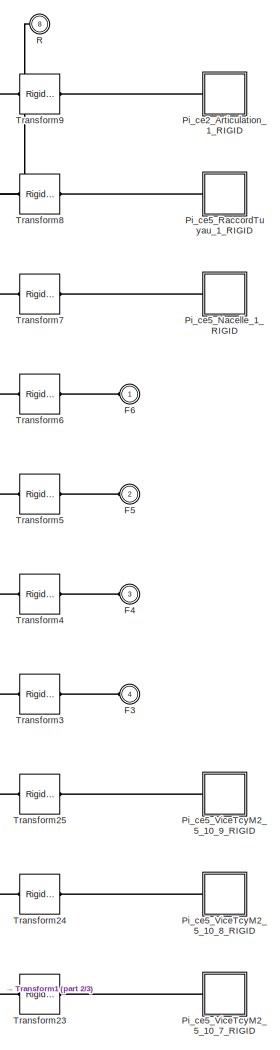
[diagram: SM/Simmechanics/Nacelle1_1_RIGID - part 1/3, top center region]
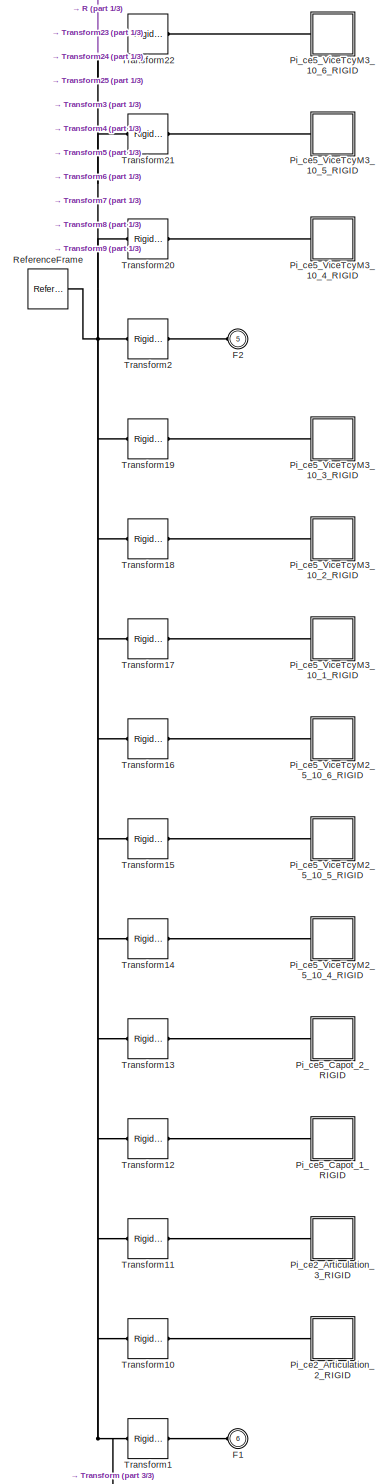
[diagram: SM/Simmechanics/Nacelle1_1_RIGID - part 2/3, full width, bottom band]
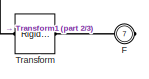
[diagram: SM/Simmechanics/Nacelle1_1_RIGID - part 3/3, bottom center region]
BLOCK [SubSystem] SM/Simmechanics/Nacelle1_1_RIGID
  Ports = [0, 0, 0, 0, 0, 6, 2]
  RequestExecContextInheritance = off
BLOCK [PMIOPort] SM/Simmechanics/Nacelle1_1_RIGID/F
  Port = 7
  Side = Right
BLOCK [PMIOPort] SM/Simmechanics/Nacelle1_1_RIGID/F1
  Port = 6
  Side = Left
BLOCK [PMIOPort] SM/Simmechanics/Nacelle1_1_RIGID/F2
  Port = 5
  Side = Left
BLOCK [PMIOPort] SM/Simmechanics/Nacelle1_1_RIGID/F3
  Port = 4
  Side = Left
BLOCK [PMIOPort] SM/Simmechanics/Nacelle1_1_RIGID/F4
  Port = 3
  Side = Left
BLOCK [PMIOPort] SM/Simmechanics/Nacelle1_1_RIGID/F5
  Port = 2
  Side = Left
BLOCK [PMIOPort] SM/Simmechanics/Nacelle1_1_RIGID/F6
  Port = 1
  Side = Left
BLOCK [SubSystem] SM/Simmechanics/Nacelle1_1_RIGID/Pi_ce2_Articulation_1_RIGID
  Ports = [0, 0, 0, 0, 0, 1]
  RequestExecContextInheritance = off
BLOCK [PMIOPort] SM/Simmechanics/Nacelle1_1_RIGID/Pi_ce2_Articulation_1_RIGID/F
  Port = 1
  Side = Left
BLOCK [Reference] SM/Simmechanics/Nacelle1_1_RIGID/Pi_ce2_Articulation_1_RIGID/ReferenceFrame  REF=sm_lib/Frames and
Transforms/Reference
Frame
  BlockFunction = simmechanics.library.frames_transforms.reference_frame
  ClassName = ReferenceFrame
  LogSimulationData = off
  Ports = [0, 0, 0, 0, 0, 0, 1]
  SourceBlock = sm_lib/Frames and\nTransforms/Reference\nFrame
  SourceType = Reference\nFrame
BLOCK [Reference] SM/Simmechanics/Nacelle1_1_RIGID/Pi_ce2_Articulation_1_RIGID/Solid  REF=sm_lib/Body Elements/Solid
  BlockFunction = simmechanics.library.body_elements.solid
  BrickDimensionUnits = m
  BrickDimensions = [1 1 1]
  CenterOfMass = [0.00033574621656655933 0.00022089773039511633 0.0006440536256338877]
  CenterOfMassUnits = mm
  ClassName = Solid
  CylinderLength = 1
  CylinderLengthUnits = m
  CylinderRadius = 1
  CylinderRadiusUnits = m
  Density = 1000
  DensityBased = on
  DensityUnits = kg/(m^3)
  EllipsoidRadii = [1 1 1]
  EllipsoidRadiiUnits = m
  ExtGeomFileName = Pièce2_Articulation_Défaut_sldprt.STL
  ExtGeomFileType = STL
  ExtGeomFileUnits = mm
  ExtrusionCrossSection = [1 1; -1 1; -1 -1; 1 -1]
  ExtrusionCrossSectionUnits = m
  ExtrusionLength = 1
  ExtrusionLengthUnits = m
  GeometryShape = FromFile
  GraphicAmbientColor = [0.15 0.15 0.15 1.0]
  GraphicDiffuseColor = [0.89803921568627454 0.91764705882352937 0.92941176470588238]
  GraphicEmissiveColor = [0.0 0.0 0.0 1.0]
  GraphicOpacity = 1
  GraphicShininess = 75
  GraphicSpecularColor = [0.5 0.5 0.5 1.0]
  GraphicType = FromGeometry
  GraphicVisPropType = SimpleVisualProperties
  InertiaType = Custom
  LogSimulationData = off
  MarkerShape = Sphere
  MarkerSize = 10
  MarkerSizeUnits = m
  Mass = 0.0056398135240733477
  MassUnits = kg
  MomentsOfInertia = [0.038410750825591464 1.5292372879249023 1.5286124467232576]
  MomentsOfInertiaUnits = kg*mm^2
  PolygonNumSides = 3
  PolygonOuterRadius = 1
  PolygonOuterRadiusUnits = m
  Ports = [0, 0, 0, 0, 0, 0, 1]
  ProductsOfInertia = [-3.861246313921904e-06 -5.868775160801616e-06 -1.9111244535371297e-06]
  ProductsOfInertiaUnits = kg*mm^2
  RectangleSize = [1 1]
  RectangleSizeUnits = m
  RevolutionAngle = 180
  RevolutionAngleUnits = deg
  RevolutionCrossSection = [1 1; 1 -1; 2 -1; 2 1]
  RevolutionCrossSectionUnits = m
  RevolutionExtent = Full
  SourceBlock = sm_lib/Body Elements/Solid
  SourceType = Solid
  SphereRadius = 1
  SphereRadiusUnits = m
BLOCK [SubSystem] SM/Simmechanics/Nacelle1_1_RIGID/Pi_ce2_Articulation_2_RIGID
  Ports = [0, 0, 0, 0, 0, 1]
  RequestExecContextInheritance = off
BLOCK [PMIOPort] SM/Simmechanics/Nacelle1_1_RIGID/Pi_ce2_Articulation_2_RIGID/F
  Port = 1
  Side = Left
BLOCK [Reference] SM/Simmechanics/Nacelle1_1_RIGID/Pi_ce2_Articulation_2_RIGID/ReferenceFrame  REF=sm_lib/Frames and
Transforms/Reference
Frame
  BlockFunction = simmechanics.library.frames_transforms.reference_frame
  ClassName = ReferenceFrame
  LogSimulationData = off
  Ports = [0, 0, 0, 0, 0, 0, 1]
  SourceBlock = sm_lib/Frames and\nTransforms/Reference\nFrame
  SourceType = Reference\nFrame
BLOCK [Reference] SM/Simmechanics/Nacelle1_1_RIGID/Pi_ce2_Articulation_2_RIGID/Solid  REF=sm_lib/Body Elements/Solid
  BlockFunction = simmechanics.library.body_elements.solid
  BrickDimensionUnits = m
  BrickDimensions = [1 1 1]
  CenterOfMass = [0.00033574621656655933 0.00022089773039511633 0.0006440536256338877]
  CenterOfMassUnits = mm
  ClassName = Solid
  CylinderLength = 1
  CylinderLengthUnits = m
  CylinderRadius = 1
  CylinderRadiusUnits = m
  Density = 1000
  DensityBased = on
  DensityUnits = kg/(m^3)
  EllipsoidRadii = [1 1 1]
  EllipsoidRadiiUnits = m
  ExtGeomFileName = Pièce2_Articulation_Défaut_sldprt.STL
  ExtGeomFileType = STL
  ExtGeomFileUnits = mm
  ExtrusionCrossSection = [1 1; -1 1; -1 -1; 1 -1]
  ExtrusionCrossSectionUnits = m
  ExtrusionLength = 1
  ExtrusionLengthUnits = m
  GeometryShape = FromFile
  GraphicAmbientColor = [0.15 0.15 0.15 1.0]
  GraphicDiffuseColor = [0.89803921568627454 0.91764705882352937 0.92941176470588238]
  GraphicEmissiveColor = [0.0 0.0 0.0 1.0]
  GraphicOpacity = 1
  GraphicShininess = 75
  GraphicSpecularColor = [0.5 0.5 0.5 1.0]
  GraphicType = FromGeometry
  GraphicVisPropType = SimpleVisualProperties
  InertiaType = Custom
  LogSimulationData = off
  MarkerShape = Sphere
  MarkerSize = 10
  MarkerSizeUnits = m
  Mass = 0.0056398135240733477
  MassUnits = kg
  MomentsOfInertia = [0.038410750825591464 1.5292372879249023 1.5286124467232576]
  MomentsOfInertiaUnits = kg*mm^2
  PolygonNumSides = 3
  PolygonOuterRadius = 1
  PolygonOuterRadiusUnits = m
  Ports = [0, 0, 0, 0, 0, 0, 1]
  ProductsOfInertia = [-3.861246313921904e-06 -5.868775160801616e-06 -1.9111244535371297e-06]
  ProductsOfInertiaUnits = kg*mm^2
  RectangleSize = [1 1]
  RectangleSizeUnits = m
  RevolutionAngle = 180
  RevolutionAngleUnits = deg
  RevolutionCrossSection = [1 1; 1 -1; 2 -1; 2 1]
  RevolutionCrossSectionUnits = m
  RevolutionExtent = Full
  SourceBlock = sm_lib/Body Elements/Solid
  SourceType = Solid
  SphereRadius = 1
  SphereRadiusUnits = m
BLOCK [SubSystem] SM/Simmechanics/Nacelle1_1_RIGID/Pi_ce2_Articulation_3_RIGID
  Ports = [0, 0, 0, 0, 0, 1]
  RequestExecContextInheritance = off
BLOCK [PMIOPort] SM/Simmechanics/Nacelle1_1_RIGID/Pi_ce2_Articulation_3_RIGID/F
  Port = 1
  Side = Left
BLOCK [Reference] SM/Simmechanics/Nacelle1_1_RIGID/Pi_ce2_Articulation_3_RIGID/ReferenceFrame  REF=sm_lib/Frames and
Transforms/Reference
Frame
  BlockFunction = simmechanics.library.frames_transforms.reference_frame
  ClassName = ReferenceFrame
  LogSimulationData = off
  Ports = [0, 0, 0, 0, 0, 0, 1]
  SourceBlock = sm_lib/Frames and\nTransforms/Reference\nFrame
  SourceType = Reference\nFrame
BLOCK [Reference] SM/Simmechanics/Nacelle1_1_RIGID/Pi_ce2_Articulation_3_RIGID/Solid  REF=sm_lib/Body Elements/Solid
  BlockFunction = simmechanics.library.body_elements.solid
  BrickDimensionUnits = m
  BrickDimensions = [1 1 1]
  CenterOfMass = [0.00033574621656655933 0.00022089773039511633 0.0006440536256338877]
  CenterOfMassUnits = mm
  ClassName = Solid
  CylinderLength = 1
  CylinderLengthUnits = m
  CylinderRadius = 1
  CylinderRadiusUnits = m
  Density = 1000
  DensityBased = on
  DensityUnits = kg/(m^3)
  EllipsoidRadii = [1 1 1]
  EllipsoidRadiiUnits = m
  ExtGeomFileName = Pièce2_Articulation_Défaut_sldprt.STL
  ExtGeomFileType = STL
  ExtGeomFileUnits = mm
  ExtrusionCrossSection = [1 1; -1 1; -1 -1; 1 -1]
  ExtrusionCrossSectionUnits = m
  ExtrusionLength = 1
  ExtrusionLengthUnits = m
  GeometryShape = FromFile
  GraphicAmbientColor = [0.15 0.15 0.15 1.0]
  GraphicDiffuseColor = [0.89803921568627454 0.91764705882352937 0.92941176470588238]
  GraphicEmissiveColor = [0.0 0.0 0.0 1.0]
  GraphicOpacity = 1
  GraphicShininess = 75
  GraphicSpecularColor = [0.5 0.5 0.5 1.0]
  GraphicType = FromGeometry
  GraphicVisPropType = SimpleVisualProperties
  InertiaType = Custom
  LogSimulationData = off
  MarkerShape = Sphere
  MarkerSize = 10
  MarkerSizeUnits = m
  Mass = 0.0056398135240733477
  MassUnits = kg
  MomentsOfInertia = [0.038410750825591464 1.5292372879249023 1.5286124467232576]
  MomentsOfInertiaUnits = kg*mm^2
  PolygonNumSides = 3
  PolygonOuterRadius = 1
  PolygonOuterRadiusUnits = m
  Ports = [0, 0, 0, 0, 0, 0, 1]
  ProductsOfInertia = [-3.861246313921904e-06 -5.868775160801616e-06 -1.9111244535371297e-06]
  ProductsOfInertiaUnits = kg*mm^2
  RectangleSize = [1 1]
  RectangleSizeUnits = m
  RevolutionAngle = 180
  RevolutionAngleUnits = deg
  RevolutionCrossSection = [1 1; 1 -1; 2 -1; 2 1]
  RevolutionCrossSectionUnits = m
  RevolutionExtent = Full
  SourceBlock = sm_lib/Body Elements/Solid
  SourceType = Solid
  SphereRadius = 1
  SphereRadiusUnits = m
BLOCK [SubSystem] SM/Simmechanics/Nacelle1_1_RIGID/Pi_ce5_Capot_1_RIGID
  Ports = [0, 0, 0, 0, 0, 1]
  RequestExecContextInheritance = off
BLOCK [PMIOPort] SM/Simmechanics/Nacelle1_1_RIGID/Pi_ce5_Capot_1_RIGID/F
  Port = 1
  Side = Left
BLOCK [Reference] SM/Simmechanics/Nacelle1_1_RIGID/Pi_ce5_Capot_1_RIGID/ReferenceFrame  REF=sm_lib/Frames and
Transforms/Reference
Frame
  BlockFunction = simmechanics.library.frames_transforms.reference_frame
  ClassName = ReferenceFrame
  LogSimulationData = off
  Ports = [0, 0, 0, 0, 0, 0, 1]
  SourceBlock = sm_lib/Frames and\nTransforms/Reference\nFrame
  SourceType = Reference\nFrame
BLOCK [Reference] SM/Simmechanics/Nacelle1_1_RIGID/Pi_ce5_Capot_1_RIGID/Solid  REF=sm_lib/Body Elements/Solid
  BlockFunction = simmechanics.library.body_elements.solid
  BrickDimensionUnits = m
  BrickDimensions = [1 1 1]
  CenterOfMass = [0 0 4.2727195246676075]
  CenterOfMassUnits = mm
  ClassName = Solid
  CylinderLength = 1
  CylinderLengthUnits = m
  CylinderRadius = 1
  CylinderRadiusUnits = m
  Density = 1000
  DensityBased = on
  DensityUnits = kg/(m^3)
  EllipsoidRadii = [1 1 1]
  EllipsoidRadiiUnits = m
  ExtGeomFileName = Pièce5_Capot_Défaut_sldprt.STL
  ExtGeomFileType = STL
  ExtGeomFileUnits = mm
  ExtrusionCrossSection = [1 1; -1 1; -1 -1; 1 -1]
  ExtrusionCrossSectionUnits = m
  ExtrusionLength = 1
  ExtrusionLengthUnits = m
  GeometryShape = FromFile
  GraphicAmbientColor = [0.15 0.15 0.15 1.0]
  GraphicDiffuseColor = [0.69999999999999996 0.65607843137254895 0.096078431372549025]
  GraphicEmissiveColor = [0.0 0.0 0.0 1.0]
  GraphicOpacity = 1
  GraphicShininess = 75
  GraphicSpecularColor = [0.5 0.5 0.5 1.0]
  GraphicType = FromGeometry
  GraphicVisPropType = SimpleVisualProperties
  InertiaType = Custom
  LogSimulationData = off
  MarkerShape = Sphere
  MarkerSize = 10
  MarkerSizeUnits = m
  Mass = 0.0022415946879765329
  MassUnits = kg
  MomentsOfInertia = [0.11673685557005838 0.11673685557005832 0.22338704330312109]
  MomentsOfInertiaUnits = kg*mm^2
  PolygonNumSides = 3
  PolygonOuterRadius = 1
  PolygonOuterRadiusUnits = m
  Ports = [0, 0, 0, 0, 0, 0, 1]
  ProductsOfInertia = [0 0 0]
  ProductsOfInertiaUnits = kg*mm^2
  RectangleSize = [1 1]
  RectangleSizeUnits = m
  RevolutionAngle = 180
  RevolutionAngleUnits = deg
  RevolutionCrossSection = [1 1; 1 -1; 2 -1; 2 1]
  RevolutionCrossSectionUnits = m
  RevolutionExtent = Full
  SourceBlock = sm_lib/Body Elements/Solid
  SourceType = Solid
  SphereRadius = 1
  SphereRadiusUnits = m
BLOCK [SubSystem] SM/Simmechanics/Nacelle1_1_RIGID/Pi_ce5_Capot_2_RIGID
  Ports = [0, 0, 0, 0, 0, 1]
  RequestExecContextInheritance = off
BLOCK [PMIOPort] SM/Simmechanics/Nacelle1_1_RIGID/Pi_ce5_Capot_2_RIGID/F
  Port = 1
  Side = Left
BLOCK [Reference] SM/Simmechanics/Nacelle1_1_RIGID/Pi_ce5_Capot_2_RIGID/ReferenceFrame  REF=sm_lib/Frames and
Transforms/Reference
Frame
  BlockFunction = simmechanics.library.frames_transforms.reference_frame
  ClassName = ReferenceFrame
  LogSimulationData = off
  Ports = [0, 0, 0, 0, 0, 0, 1]
  SourceBlock = sm_lib/Frames and\nTransforms/Reference\nFrame
  SourceType = Reference\nFrame
BLOCK [Reference] SM/Simmechanics/Nacelle1_1_RIGID/Pi_ce5_Capot_2_RIGID/Solid  REF=sm_lib/Body Elements/Solid
  BlockFunction = simmechanics.library.body_elements.solid
  BrickDimensionUnits = m
  BrickDimensions = [1 1 1]
  CenterOfMass = [0 0 4.2727195246676075]
  CenterOfMassUnits = mm
  ClassName = Solid
  CylinderLength = 1
  CylinderLengthUnits = m
  CylinderRadius = 1
  CylinderRadiusUnits = m
  Density = 1000
  DensityBased = on
  DensityUnits = kg/(m^3)
  EllipsoidRadii = [1 1 1]
  EllipsoidRadiiUnits = m
  ExtGeomFileName = Pièce5_Capot_Défaut_sldprt.STL
  ExtGeomFileType = STL
  ExtGeomFileUnits = mm
  ExtrusionCrossSection = [1 1; -1 1; -1 -1; 1 -1]
  ExtrusionCrossSectionUnits = m
  ExtrusionLength = 1
  ExtrusionLengthUnits = m
  GeometryShape = FromFile
  GraphicAmbientColor = [0.15 0.15 0.15 1.0]
  GraphicDiffuseColor = [0.69999999999999996 0.65607843137254895 0.096078431372549025]
  GraphicEmissiveColor = [0.0 0.0 0.0 1.0]
  GraphicOpacity = 1
  GraphicShininess = 75
  GraphicSpecularColor = [0.5 0.5 0.5 1.0]
  GraphicType = FromGeometry
  GraphicVisPropType = SimpleVisualProperties
  InertiaType = Custom
  LogSimulationData = off
  MarkerShape = Sphere
  MarkerSize = 10
  MarkerSizeUnits = m
  Mass = 0.0022415946879765329
  MassUnits = kg
  MomentsOfInertia = [0.11673685557005838 0.11673685557005832 0.22338704330312109]
  MomentsOfInertiaUnits = kg*mm^2
  PolygonNumSides = 3
  PolygonOuterRadius = 1
  PolygonOuterRadiusUnits = m
  Ports = [0, 0, 0, 0, 0, 0, 1]
  ProductsOfInertia = [0 0 0]
  ProductsOfInertiaUnits = kg*mm^2
  RectangleSize = [1 1]
  RectangleSizeUnits = m
  RevolutionAngle = 180
  RevolutionAngleUnits = deg
  RevolutionCrossSection = [1 1; 1 -1; 2 -1; 2 1]
  RevolutionCrossSectionUnits = m
  RevolutionExtent = Full
  SourceBlock = sm_lib/Body Elements/Solid
  SourceType = Solid
  SphereRadius = 1
  SphereRadiusUnits = m
BLOCK [SubSystem] SM/Simmechanics/Nacelle1_1_RIGID/Pi_ce5_Nacelle_1_RIGID
  Ports = [0, 0, 0, 0, 0, 1]
  RequestExecContextInheritance = off
BLOCK [PMIOPort] SM/Simmechanics/Nacelle1_1_RIGID/Pi_ce5_Nacelle_1_RIGID/F
  Port = 1
  Side = Left
BLOCK [Reference] SM/Simmechanics/Nacelle1_1_RIGID/Pi_ce5_Nacelle_1_RIGID/ReferenceFrame  REF=sm_lib/Frames and
Transforms/Reference
Frame
  BlockFunction = simmechanics.library.frames_transforms.reference_frame
  ClassName = ReferenceFrame
  LogSimulationData = off
  Ports = [0, 0, 0, 0, 0, 0, 1]
  SourceBlock = sm_lib/Frames and\nTransforms/Reference\nFrame
  SourceType = Reference\nFrame
BLOCK [Reference] SM/Simmechanics/Nacelle1_1_RIGID/Pi_ce5_Nacelle_1_RIGID/Solid  REF=sm_lib/Body Elements/Solid
  BlockFunction = simmechanics.library.body_elements.solid
  BrickDimensionUnits = m
  BrickDimensions = [1 1 1]
  CenterOfMass = [8.8040653358462345e-06 0.30079016715373452 1.1662239169575205e-05]
  CenterOfMassUnits = mm
  ClassName = Solid
  CylinderLength = 1
  CylinderLengthUnits = m
  CylinderRadius = 1
  CylinderRadiusUnits = m
  Density = 1000
  DensityBased = on
  DensityUnits = kg/(m^3)
  EllipsoidRadii = [1 1 1]
  EllipsoidRadiiUnits = m
  ExtGeomFileName = Pièce5_Nacelle_Défaut_sldprt.STL
  ExtGeomFileType = STL
  ExtGeomFileUnits = mm
  ExtrusionCrossSection = [1 1; -1 1; -1 -1; 1 -1]
  ExtrusionCrossSectionUnits = m
  ExtrusionLength = 1
  ExtrusionLengthUnits = m
  GeometryShape = FromFile
  GraphicAmbientColor = [0.15 0.15 0.15 1.0]
  GraphicDiffuseColor = [0.792156862745098 0.81960784313725488 0.93333333333333335]
  GraphicEmissiveColor = [0.0 0.0 0.0 1.0]
  GraphicOpacity = 1
  GraphicShininess = 75
  GraphicSpecularColor = [0.5 0.5 0.5 1.0]
  GraphicType = FromGeometry
  GraphicVisPropType = SimpleVisualProperties
  InertiaType = Custom
  LogSimulationData = off
  MarkerShape = Sphere
  MarkerSize = 10
  MarkerSizeUnits = m
  Mass = 0.0072070224975358818
  MassUnits = kg
  MomentsOfInertia = [0.91058531540404986 0.93211729508120755 1.714073996845457]
  MomentsOfInertiaUnits = kg*mm^2
  PolygonNumSides = 3
  PolygonOuterRadius = 1
  PolygonOuterRadiusUnits = m
  Ports = [0, 0, 0, 0, 0, 0, 1]
  ProductsOfInertia = [4.9672223488709276e-07 2.3615805210393984e-06 4.7527158852626754e-07]
  ProductsOfInertiaUnits = kg*mm^2
  RectangleSize = [1 1]
  RectangleSizeUnits = m
  RevolutionAngle = 180
  RevolutionAngleUnits = deg
  RevolutionCrossSection = [1 1; 1 -1; 2 -1; 2 1]
  RevolutionCrossSectionUnits = m
  RevolutionExtent = Full
  SourceBlock = sm_lib/Body Elements/Solid
  SourceType = Solid
  SphereRadius = 1
  SphereRadiusUnits = m
BLOCK [SubSystem] SM/Simmechanics/Nacelle1_1_RIGID/Pi_ce5_RaccordTuyau_1_RIGID
  Ports = [0, 0, 0, 0, 0, 1]
  RequestExecContextInheritance = off
BLOCK [PMIOPort] SM/Simmechanics/Nacelle1_1_RIGID/Pi_ce5_RaccordTuyau_1_RIGID/F
  Port = 1
  Side = Left
BLOCK [Reference] SM/Simmechanics/Nacelle1_1_RIGID/Pi_ce5_RaccordTuyau_1_RIGID/ReferenceFrame  REF=sm_lib/Frames and
Transforms/Reference
Frame
  BlockFunction = simmechanics.library.frames_transforms.reference_frame
  ClassName = ReferenceFrame
  LogSimulationData = off
  Ports = [0, 0, 0, 0, 0, 0, 1]
  SourceBlock = sm_lib/Frames and\nTransforms/Reference\nFrame
  SourceType = Reference\nFrame
BLOCK [Reference] SM/Simmechanics/Nacelle1_1_RIGID/Pi_ce5_RaccordTuyau_1_RIGID/Solid  REF=sm_lib/Body Elements/Solid
  BlockFunction = simmechanics.library.body_elements.solid
  BrickDimensionUnits = m
  BrickDimensions = [1 1 1]
  CenterOfMass = [8.9048492297952897e-05 -6.2978813772146669 1.7362153141962096]
  CenterOfMassUnits = mm
  ClassName = Solid
  CylinderLength = 1
  CylinderLengthUnits = m
  CylinderRadius = 1
  CylinderRadiusUnits = m
  Density = 1000
  DensityBased = on
  DensityUnits = kg/(m^3)
  EllipsoidRadii = [1 1 1]
  EllipsoidRadiiUnits = m
  ExtGeomFileName = Pièce5_RaccordTuyau_Défaut_sldprt.STL
  ExtGeomFileType = STL
  ExtGeomFileUnits = mm
  ExtrusionCrossSection = [1 1; -1 1; -1 -1; 1 -1]
  ExtrusionCrossSectionUnits = m
  ExtrusionLength = 1
  ExtrusionLengthUnits = m
  GeometryShape = FromFile
  GraphicAmbientColor = [0.15 0.15 0.15 1.0]
  GraphicDiffuseColor = [0.89803921568627454 0.91764705882352937 0.92941176470588238]
  GraphicEmissiveColor = [0.0 0.0 0.0 1.0]
  GraphicOpacity = 1
  GraphicShininess = 75
  GraphicSpecularColor = [0.5 0.5 0.5 1.0]
  GraphicType = FromGeometry
  GraphicVisPropType = SimpleVisualProperties
  InertiaType = Custom
  LogSimulationData = off
  MarkerShape = Sphere
  MarkerSize = 10
  MarkerSizeUnits = m
  Mass = 0.0013533454227784999
  MassUnits = kg
  MomentsOfInertia = [0.080296658489818817 0.015562095502041623 0.077169827426906215]
  MomentsOfInertiaUnits = kg*mm^2
  PolygonNumSides = 3
  PolygonOuterRadius = 1
  PolygonOuterRadiusUnits = m
  Ports = [0, 0, 0, 0, 0, 0, 1]
  ProductsOfInertia = [-0.0062797847373196715 3.9744675121076945e-07 7.1701331896184499e-07]
  ProductsOfInertiaUnits = kg*mm^2
  RectangleSize = [1 1]
  RectangleSizeUnits = m
  RevolutionAngle = 180
  RevolutionAngleUnits = deg
  RevolutionCrossSection = [1 1; 1 -1; 2 -1; 2 1]
  RevolutionCrossSectionUnits = m
  RevolutionExtent = Full
  SourceBlock = sm_lib/Body Elements/Solid
  SourceType = Solid
  SphereRadius = 1
  SphereRadiusUnits = m
BLOCK [SubSystem] SM/Simmechanics/Nacelle1_1_RIGID/Pi_ce5_ViceTcyM2_5_10_4_RIGID
  Ports = [0, 0, 0, 0, 0, 1]
  RequestExecContextInheritance = off
BLOCK [PMIOPort] SM/Simmechanics/Nacelle1_1_RIGID/Pi_ce5_ViceTcyM2_5_10_4_RIGID/F
  Port = 1
  Side = Left
BLOCK [Reference] SM/Simmechanics/Nacelle1_1_RIGID/Pi_ce5_ViceTcyM2_5_10_4_RIGID/ReferenceFrame  REF=sm_lib/Frames and
Transforms/Reference
Frame
  BlockFunction = simmechanics.library.frames_transforms.reference_frame
  ClassName = ReferenceFrame
  LogSimulationData = off
  Ports = [0, 0, 0, 0, 0, 0, 1]
  SourceBlock = sm_lib/Frames and\nTransforms/Reference\nFrame
  SourceType = Reference\nFrame
BLOCK [Reference] SM/Simmechanics/Nacelle1_1_RIGID/Pi_ce5_ViceTcyM2_5_10_4_RIGID/Solid  REF=sm_lib/Body Elements/Solid
  BlockFunction = simmechanics.library.body_elements.solid
  BrickDimensionUnits = m
  BrickDimensions = [1 1 1]
  CenterOfMass = [0 0 3.9655171988594056]
  CenterOfMassUnits = mm
  ClassName = Solid
  CylinderLength = 1
  CylinderLengthUnits = m
  CylinderRadius = 1
  CylinderRadiusUnits = m
  Density = 1000
  DensityBased = on
  DensityUnits = kg/(m^3)
  EllipsoidRadii = [1 1 1]
  EllipsoidRadiiUnits = m
  ExtGeomFileName = Pièce5_ViceTcyM2_Défaut_sldprt.STL
  ExtGeomFileType = STL
  ExtGeomFileUnits = mm
  ExtrusionCrossSection = [1 1; -1 1; -1 -1; 1 -1]
  ExtrusionCrossSectionUnits = m
  ExtrusionLength = 1
  ExtrusionLengthUnits = m
  GeometryShape = FromFile
  GraphicAmbientColor = [0.15 0.15 0.15 1.0]
  GraphicDiffuseColor = [0.59999999999999998 0.59999999999999998 0.59999999999999998]
  GraphicEmissiveColor = [0.0 0.0 0.0 1.0]
  GraphicOpacity = 1
  GraphicShininess = 75
  GraphicSpecularColor = [0.5 0.5 0.5 1.0]
  GraphicType = FromGeometry
  GraphicVisPropType = SimpleVisualProperties
  InertiaType = Custom
  LogSimulationData = off
  MarkerShape = Sphere
  MarkerSize = 10
  MarkerSizeUnits = m
  Mass = 0.00049933589436536416
  MassUnits = kg
  MomentsOfInertia = [0.0044605874730991929 0.0044510410072487721 0.00064470946251572465]
  MomentsOfInertiaUnits = kg*mm^2
  PolygonNumSides = 3
  PolygonOuterRadius = 1
  PolygonOuterRadiusUnits = m
  Ports = [0, 0, 0, 0, 0, 0, 1]
  ProductsOfInertia = [0 0 0]
  ProductsOfInertiaUnits = kg*mm^2
  RectangleSize = [1 1]
  RectangleSizeUnits = m
  RevolutionAngle = 180
  RevolutionAngleUnits = deg
  RevolutionCrossSection = [1 1; 1 -1; 2 -1; 2 1]
  RevolutionCrossSectionUnits = m
  RevolutionExtent = Full
  SourceBlock = sm_lib/Body Elements/Solid
  SourceType = Solid
  SphereRadius = 1
  SphereRadiusUnits = m
BLOCK [SubSystem] SM/Simmechanics/Nacelle1_1_RIGID/Pi_ce5_ViceTcyM2_5_10_5_RIGID
  Ports = [0, 0, 0, 0, 0, 1]
  RequestExecContextInheritance = off
BLOCK [PMIOPort] SM/Simmechanics/Nacelle1_1_RIGID/Pi_ce5_ViceTcyM2_5_10_5_RIGID/F
  Port = 1
  Side = Left
BLOCK [Reference] SM/Simmechanics/Nacelle1_1_RIGID/Pi_ce5_ViceTcyM2_5_10_5_RIGID/ReferenceFrame  REF=sm_lib/Frames and
Transforms/Reference
Frame
  BlockFunction = simmechanics.library.frames_transforms.reference_frame
  ClassName = ReferenceFrame
  LogSimulationData = off
  Ports = [0, 0, 0, 0, 0, 0, 1]
  SourceBlock = sm_lib/Frames and\nTransforms/Reference\nFrame
  SourceType = Reference\nFrame
BLOCK [Reference] SM/Simmechanics/Nacelle1_1_RIGID/Pi_ce5_ViceTcyM2_5_10_5_RIGID/Solid  REF=sm_lib/Body Elements/Solid
  BlockFunction = simmechanics.library.body_elements.solid
  BrickDimensionUnits = m
  BrickDimensions = [1 1 1]
  CenterOfMass = [0 0 3.9655171988594056]
  CenterOfMassUnits = mm
  ClassName = Solid
  CylinderLength = 1
  CylinderLengthUnits = m
  CylinderRadius = 1
  CylinderRadiusUnits = m
  Density = 1000
  DensityBased = on
  DensityUnits = kg/(m^3)
  EllipsoidRadii = [1 1 1]
  EllipsoidRadiiUnits = m
  ExtGeomFileName = Pièce5_ViceTcyM2_Défaut_sldprt.STL
  ExtGeomFileType = STL
  ExtGeomFileUnits = mm
  ExtrusionCrossSection = [1 1; -1 1; -1 -1; 1 -1]
  ExtrusionCrossSectionUnits = m
  ExtrusionLength = 1
  ExtrusionLengthUnits = m
  GeometryShape = FromFile
  GraphicAmbientColor = [0.15 0.15 0.15 1.0]
  GraphicDiffuseColor = [0.59999999999999998 0.59999999999999998 0.59999999999999998]
  GraphicEmissiveColor = [0.0 0.0 0.0 1.0]
  GraphicOpacity = 1
  GraphicShininess = 75
  GraphicSpecularColor = [0.5 0.5 0.5 1.0]
  GraphicType = FromGeometry
  GraphicVisPropType = SimpleVisualProperties
  InertiaType = Custom
  LogSimulationData = off
  MarkerShape = Sphere
  MarkerSize = 10
  MarkerSizeUnits = m
  Mass = 0.00049933589436536416
  MassUnits = kg
  MomentsOfInertia = [0.0044605874730991929 0.0044510410072487721 0.00064470946251572465]
  MomentsOfInertiaUnits = kg*mm^2
  PolygonNumSides = 3
  PolygonOuterRadius = 1
  PolygonOuterRadiusUnits = m
  Ports = [0, 0, 0, 0, 0, 0, 1]
  ProductsOfInertia = [0 0 0]
  ProductsOfInertiaUnits = kg*mm^2
  RectangleSize = [1 1]
  RectangleSizeUnits = m
  RevolutionAngle = 180
  RevolutionAngleUnits = deg
  RevolutionCrossSection = [1 1; 1 -1; 2 -1; 2 1]
  RevolutionCrossSectionUnits = m
  RevolutionExtent = Full
  SourceBlock = sm_lib/Body Elements/Solid
  SourceType = Solid
  SphereRadius = 1
  SphereRadiusUnits = m
BLOCK [SubSystem] SM/Simmechanics/Nacelle1_1_RIGID/Pi_ce5_ViceTcyM2_5_10_6_RIGID
  Ports = [0, 0, 0, 0, 0, 1]
  RequestExecContextInheritance = off
BLOCK [PMIOPort] SM/Simmechanics/Nacelle1_1_RIGID/Pi_ce5_ViceTcyM2_5_10_6_RIGID/F
  Port = 1
  Side = Left
BLOCK [Reference] SM/Simmechanics/Nacelle1_1_RIGID/Pi_ce5_ViceTcyM2_5_10_6_RIGID/ReferenceFrame  REF=sm_lib/Frames and
Transforms/Reference
Frame
  BlockFunction = simmechanics.library.frames_transforms.reference_frame
  ClassName = ReferenceFrame
  LogSimulationData = off
  Ports = [0, 0, 0, 0, 0, 0, 1]
  SourceBlock = sm_lib/Frames and\nTransforms/Reference\nFrame
  SourceType = Reference\nFrame
BLOCK [Reference] SM/Simmechanics/Nacelle1_1_RIGID/Pi_ce5_ViceTcyM2_5_10_6_RIGID/Solid  REF=sm_lib/Body Elements/Solid
  BlockFunction = simmechanics.library.body_elements.solid
  BrickDimensionUnits = m
  BrickDimensions = [1 1 1]
  CenterOfMass = [0 0 3.9655171988594056]
  CenterOfMassUnits = mm
  ClassName = Solid
  CylinderLength = 1
  CylinderLengthUnits = m
  CylinderRadius = 1
  CylinderRadiusUnits = m
  Density = 1000
  DensityBased = on
  DensityUnits = kg/(m^3)
  EllipsoidRadii = [1 1 1]
  EllipsoidRadiiUnits = m
  ExtGeomFileName = Pièce5_ViceTcyM2_Défaut_sldprt.STL
  ExtGeomFileType = STL
  ExtGeomFileUnits = mm
  ExtrusionCrossSection = [1 1; -1 1; -1 -1; 1 -1]
  ExtrusionCrossSectionUnits = m
  ExtrusionLength = 1
  ExtrusionLengthUnits = m
  GeometryShape = FromFile
  GraphicAmbientColor = [0.15 0.15 0.15 1.0]
  GraphicDiffuseColor = [0.59999999999999998 0.59999999999999998 0.59999999999999998]
  GraphicEmissiveColor = [0.0 0.0 0.0 1.0]
  GraphicOpacity = 1
  GraphicShininess = 75
  GraphicSpecularColor = [0.5 0.5 0.5 1.0]
  GraphicType = FromGeometry
  GraphicVisPropType = SimpleVisualProperties
  InertiaType = Custom
  LogSimulationData = off
  MarkerShape = Sphere
  MarkerSize = 10
  MarkerSizeUnits = m
  Mass = 0.00049933589436536416
  MassUnits = kg
  MomentsOfInertia = [0.0044605874730991929 0.0044510410072487721 0.00064470946251572465]
  MomentsOfInertiaUnits = kg*mm^2
  PolygonNumSides = 3
  PolygonOuterRadius = 1
  PolygonOuterRadiusUnits = m
  Ports = [0, 0, 0, 0, 0, 0, 1]
  ProductsOfInertia = [0 0 0]
  ProductsOfInertiaUnits = kg*mm^2
  RectangleSize = [1 1]
  RectangleSizeUnits = m
  RevolutionAngle = 180
  RevolutionAngleUnits = deg
  RevolutionCrossSection = [1 1; 1 -1; 2 -1; 2 1]
  RevolutionCrossSectionUnits = m
  RevolutionExtent = Full
  SourceBlock = sm_lib/Body Elements/Solid
  SourceType = Solid
  SphereRadius = 1
  SphereRadiusUnits = m
BLOCK [SubSystem] SM/Simmechanics/Nacelle1_1_RIGID/Pi_ce5_ViceTcyM2_5_10_7_RIGID
  Ports = [0, 0, 0, 0, 0, 1]
  RequestExecContextInheritance = off
BLOCK [PMIOPort] SM/Simmechanics/Nacelle1_1_RIGID/Pi_ce5_ViceTcyM2_5_10_7_RIGID/F
  Port = 1
  Side = Left
BLOCK [Reference] SM/Simmechanics/Nacelle1_1_RIGID/Pi_ce5_ViceTcyM2_5_10_7_RIGID/ReferenceFrame  REF=sm_lib/Frames and
Transforms/Reference
Frame
  BlockFunction = simmechanics.library.frames_transforms.reference_frame
  ClassName = ReferenceFrame
  LogSimulationData = off
  Ports = [0, 0, 0, 0, 0, 0, 1]
  SourceBlock = sm_lib/Frames and\nTransforms/Reference\nFrame
  SourceType = Reference\nFrame
BLOCK [Reference] SM/Simmechanics/Nacelle1_1_RIGID/Pi_ce5_ViceTcyM2_5_10_7_RIGID/Solid  REF=sm_lib/Body Elements/Solid
  BlockFunction = simmechanics.library.body_elements.solid
  BrickDimensionUnits = m
  BrickDimensions = [1 1 1]
  CenterOfMass = [0 0 3.9655171988594056]
  CenterOfMassUnits = mm
  ClassName = Solid
  CylinderLength = 1
  CylinderLengthUnits = m
  CylinderRadius = 1
  CylinderRadiusUnits = m
  Density = 1000
  DensityBased = on
  DensityUnits = kg/(m^3)
  EllipsoidRadii = [1 1 1]
  EllipsoidRadiiUnits = m
  ExtGeomFileName = Pièce5_ViceTcyM2_Défaut_sldprt.STL
  ExtGeomFileType = STL
  ExtGeomFileUnits = mm
  ExtrusionCrossSection = [1 1; -1 1; -1 -1; 1 -1]
  ExtrusionCrossSectionUnits = m
  ExtrusionLength = 1
  ExtrusionLengthUnits = m
  GeometryShape = FromFile
  GraphicAmbientColor = [0.15 0.15 0.15 1.0]
  GraphicDiffuseColor = [0.59999999999999998 0.59999999999999998 0.59999999999999998]
  GraphicEmissiveColor = [0.0 0.0 0.0 1.0]
  GraphicOpacity = 1
  GraphicShininess = 75
  GraphicSpecularColor = [0.5 0.5 0.5 1.0]
  GraphicType = FromGeometry
  GraphicVisPropType = SimpleVisualProperties
  InertiaType = Custom
  LogSimulationData = off
  MarkerShape = Sphere
  MarkerSize = 10
  MarkerSizeUnits = m
  Mass = 0.00049933589436536416
  MassUnits = kg
  MomentsOfInertia = [0.0044605874730991929 0.0044510410072487721 0.00064470946251572465]
  MomentsOfInertiaUnits = kg*mm^2
  PolygonNumSides = 3
  PolygonOuterRadius = 1
  PolygonOuterRadiusUnits = m
  Ports = [0, 0, 0, 0, 0, 0, 1]
  ProductsOfInertia = [0 0 0]
  ProductsOfInertiaUnits = kg*mm^2
  RectangleSize = [1 1]
  RectangleSizeUnits = m
  RevolutionAngle = 180
  RevolutionAngleUnits = deg
  RevolutionCrossSection = [1 1; 1 -1; 2 -1; 2 1]
  RevolutionCrossSectionUnits = m
  RevolutionExtent = Full
  SourceBlock = sm_lib/Body Elements/Solid
  SourceType = Solid
  SphereRadius = 1
  SphereRadiusUnits = m
BLOCK [SubSystem] SM/Simmechanics/Nacelle1_1_RIGID/Pi_ce5_ViceTcyM2_5_10_8_RIGID
  Ports = [0, 0, 0, 0, 0, 1]
  RequestExecContextInheritance = off
BLOCK [PMIOPort] SM/Simmechanics/Nacelle1_1_RIGID/Pi_ce5_ViceTcyM2_5_10_8_RIGID/F
  Port = 1
  Side = Left
BLOCK [Reference] SM/Simmechanics/Nacelle1_1_RIGID/Pi_ce5_ViceTcyM2_5_10_8_RIGID/ReferenceFrame  REF=sm_lib/Frames and
Transforms/Reference
Frame
  BlockFunction = simmechanics.library.frames_transforms.reference_frame
  ClassName = ReferenceFrame
  LogSimulationData = off
  Ports = [0, 0, 0, 0, 0, 0, 1]
  SourceBlock = sm_lib/Frames and\nTransforms/Reference\nFrame
  SourceType = Reference\nFrame
BLOCK [Reference] SM/Simmechanics/Nacelle1_1_RIGID/Pi_ce5_ViceTcyM2_5_10_8_RIGID/Solid  REF=sm_lib/Body Elements/Solid
  BlockFunction = simmechanics.library.body_elements.solid
  BrickDimensionUnits = m
  BrickDimensions = [1 1 1]
  CenterOfMass = [0 0 3.9655171988594056]
  CenterOfMassUnits = mm
  ClassName = Solid
  CylinderLength = 1
  CylinderLengthUnits = m
  CylinderRadius = 1
  CylinderRadiusUnits = m
  Density = 1000
  DensityBased = on
  DensityUnits = kg/(m^3)
  EllipsoidRadii = [1 1 1]
  EllipsoidRadiiUnits = m
  ExtGeomFileName = Pièce5_ViceTcyM2_Défaut_sldprt.STL
  ExtGeomFileType = STL
  ExtGeomFileUnits = mm
  ExtrusionCrossSection = [1 1; -1 1; -1 -1; 1 -1]
  ExtrusionCrossSectionUnits = m
  ExtrusionLength = 1
  ExtrusionLengthUnits = m
  GeometryShape = FromFile
  GraphicAmbientColor = [0.15 0.15 0.15 1.0]
  GraphicDiffuseColor = [0.59999999999999998 0.59999999999999998 0.59999999999999998]
  GraphicEmissiveColor = [0.0 0.0 0.0 1.0]
  GraphicOpacity = 1
  GraphicShininess = 75
  GraphicSpecularColor = [0.5 0.5 0.5 1.0]
  GraphicType = FromGeometry
  GraphicVisPropType = SimpleVisualProperties
  InertiaType = Custom
  LogSimulationData = off
  MarkerShape = Sphere
  MarkerSize = 10
  MarkerSizeUnits = m
  Mass = 0.00049933589436536416
  MassUnits = kg
  MomentsOfInertia = [0.0044605874730991929 0.0044510410072487721 0.00064470946251572465]
  MomentsOfInertiaUnits = kg*mm^2
  PolygonNumSides = 3
  PolygonOuterRadius = 1
  PolygonOuterRadiusUnits = m
  Ports = [0, 0, 0, 0, 0, 0, 1]
  ProductsOfInertia = [0 0 0]
  ProductsOfInertiaUnits = kg*mm^2
  RectangleSize = [1 1]
  RectangleSizeUnits = m
  RevolutionAngle = 180
  RevolutionAngleUnits = deg
  RevolutionCrossSection = [1 1; 1 -1; 2 -1; 2 1]
  RevolutionCrossSectionUnits = m
  RevolutionExtent = Full
  SourceBlock = sm_lib/Body Elements/Solid
  SourceType = Solid
  SphereRadius = 1
  SphereRadiusUnits = m
BLOCK [SubSystem] SM/Simmechanics/Nacelle1_1_RIGID/Pi_ce5_ViceTcyM2_5_10_9_RIGID
  Ports = [0, 0, 0, 0, 0, 1]
  RequestExecContextInheritance = off
BLOCK [PMIOPort] SM/Simmechanics/Nacelle1_1_RIGID/Pi_ce5_ViceTcyM2_5_10_9_RIGID/F
  Port = 1
  Side = Left
BLOCK [Reference] SM/Simmechanics/Nacelle1_1_RIGID/Pi_ce5_ViceTcyM2_5_10_9_RIGID/ReferenceFrame  REF=sm_lib/Frames and
Transforms/Reference
Frame
  BlockFunction = simmechanics.library.frames_transforms.reference_frame
  ClassName = ReferenceFrame
  LogSimulationData = off
  Ports = [0, 0, 0, 0, 0, 0, 1]
  SourceBlock = sm_lib/Frames and\nTransforms/Reference\nFrame
  SourceType = Reference\nFrame
BLOCK [Reference] SM/Simmechanics/Nacelle1_1_RIGID/Pi_ce5_ViceTcyM2_5_10_9_RIGID/Solid  REF=sm_lib/Body Elements/Solid
  BlockFunction = simmechanics.library.body_elements.solid
  BrickDimensionUnits = m
  BrickDimensions = [1 1 1]
  CenterOfMass = [0 0 3.9655171988594056]
  CenterOfMassUnits = mm
  ClassName = Solid
  CylinderLength = 1
  CylinderLengthUnits = m
  CylinderRadius = 1
  CylinderRadiusUnits = m
  Density = 1000
  DensityBased = on
  DensityUnits = kg/(m^3)
  EllipsoidRadii = [1 1 1]
  EllipsoidRadiiUnits = m
  ExtGeomFileName = Pièce5_ViceTcyM2_Défaut_sldprt.STL
  ExtGeomFileType = STL
  ExtGeomFileUnits = mm
  ExtrusionCrossSection = [1 1; -1 1; -1 -1; 1 -1]
  ExtrusionCrossSectionUnits = m
  ExtrusionLength = 1
  ExtrusionLengthUnits = m
  GeometryShape = FromFile
  GraphicAmbientColor = [0.15 0.15 0.15 1.0]
  GraphicDiffuseColor = [0.59999999999999998 0.59999999999999998 0.59999999999999998]
  GraphicEmissiveColor = [0.0 0.0 0.0 1.0]
  GraphicOpacity = 1
  GraphicShininess = 75
  GraphicSpecularColor = [0.5 0.5 0.5 1.0]
  GraphicType = FromGeometry
  GraphicVisPropType = SimpleVisualProperties
  InertiaType = Custom
  LogSimulationData = off
  MarkerShape = Sphere
  MarkerSize = 10
  MarkerSizeUnits = m
  Mass = 0.00049933589436536416
  MassUnits = kg
  MomentsOfInertia = [0.0044605874730991929 0.0044510410072487721 0.00064470946251572465]
  MomentsOfInertiaUnits = kg*mm^2
  PolygonNumSides = 3
  PolygonOuterRadius = 1
  PolygonOuterRadiusUnits = m
  Ports = [0, 0, 0, 0, 0, 0, 1]
  ProductsOfInertia = [0 0 0]
  ProductsOfInertiaUnits = kg*mm^2
  RectangleSize = [1 1]
  RectangleSizeUnits = m
  RevolutionAngle = 180
  RevolutionAngleUnits = deg
  RevolutionCrossSection = [1 1; 1 -1; 2 -1; 2 1]
  RevolutionCrossSectionUnits = m
  RevolutionExtent = Full
  SourceBlock = sm_lib/Body Elements/Solid
  SourceType = Solid
  SphereRadius = 1
  SphereRadiusUnits = m
BLOCK [SubSystem] SM/Simmechanics/Nacelle1_1_RIGID/Pi_ce5_ViceTcyM3_10_1_RIGID
  Ports = [0, 0, 0, 0, 0, 1]
  RequestExecContextInheritance = off
BLOCK [PMIOPort] SM/Simmechanics/Nacelle1_1_RIGID/Pi_ce5_ViceTcyM3_10_1_RIGID/F
  Port = 1
  Side = Left
BLOCK [Reference] SM/Simmechanics/Nacelle1_1_RIGID/Pi_ce5_ViceTcyM3_10_1_RIGID/ReferenceFrame  REF=sm_lib/Frames and
Transforms/Reference
Frame
  BlockFunction = simmechanics.library.frames_transforms.reference_frame
  ClassName = ReferenceFrame
  LogSimulationData = off
  Ports = [0, 0, 0, 0, 0, 0, 1]
  SourceBlock = sm_lib/Frames and\nTransforms/Reference\nFrame
  SourceType = Reference\nFrame
BLOCK [Reference] SM/Simmechanics/Nacelle1_1_RIGID/Pi_ce5_ViceTcyM3_10_1_RIGID/Solid  REF=sm_lib/Body Elements/Solid
  BlockFunction = simmechanics.library.body_elements.solid
  BrickDimensionUnits = m
  BrickDimensions = [1 1 1]
  CenterOfMass = [0 0 4.7478476468123691]
  CenterOfMassUnits = mm
  ClassName = Solid
  CylinderLength = 1
  CylinderLengthUnits = m
  CylinderRadius = 1
  CylinderRadiusUnits = m
  Density = 1000
  DensityBased = on
  DensityUnits = kg/(m^3)
  EllipsoidRadii = [1 1 1]
  EllipsoidRadiiUnits = m
  ExtGeomFileName = Pièce5_ViceTcyM3_10_Défaut_sldprt.STL
  ExtGeomFileType = STL
  ExtGeomFileUnits = mm
  ExtrusionCrossSection = [1 1; -1 1; -1 -1; 1 -1]
  ExtrusionCrossSectionUnits = m
  ExtrusionLength = 1
  ExtrusionLengthUnits = m
  GeometryShape = FromFile
  GraphicAmbientColor = [0.15 0.15 0.15 1.0]
  GraphicDiffuseColor = [0.59999999999999998 0.59999999999999998 0.59999999999999998]
  GraphicEmissiveColor = [0.0 0.0 0.0 1.0]
  GraphicOpacity = 1
  GraphicShininess = 75
  GraphicSpecularColor = [0.5 0.5 0.5 1.0]
  GraphicType = FromGeometry
  GraphicVisPropType = SimpleVisualProperties
  InertiaType = Custom
  LogSimulationData = off
  MarkerShape = Sphere
  MarkerSize = 10
  MarkerSizeUnits = m
  Mass = 0.00099105697539271119
  MassUnits = kg
  MomentsOfInertia = [0.015413262246051962 0.015355234919485657 0.0023119257136766627]
  MomentsOfInertiaUnits = kg*mm^2
  PolygonNumSides = 3
  PolygonOuterRadius = 1
  PolygonOuterRadiusUnits = m
  Ports = [0, 0, 0, 0, 0, 0, 1]
  ProductsOfInertia = [0 0 0]
  ProductsOfInertiaUnits = kg*mm^2
  RectangleSize = [1 1]
  RectangleSizeUnits = m
  RevolutionAngle = 180
  RevolutionAngleUnits = deg
  RevolutionCrossSection = [1 1; 1 -1; 2 -1; 2 1]
  RevolutionCrossSectionUnits = m
  RevolutionExtent = Full
  SourceBlock = sm_lib/Body Elements/Solid
  SourceType = Solid
  SphereRadius = 1
  SphereRadiusUnits = m
BLOCK [SubSystem] SM/Simmechanics/Nacelle1_1_RIGID/Pi_ce5_ViceTcyM3_10_2_RIGID
  Ports = [0, 0, 0, 0, 0, 1]
  RequestExecContextInheritance = off
BLOCK [PMIOPort] SM/Simmechanics/Nacelle1_1_RIGID/Pi_ce5_ViceTcyM3_10_2_RIGID/F
  Port = 1
  Side = Left
BLOCK [Reference] SM/Simmechanics/Nacelle1_1_RIGID/Pi_ce5_ViceTcyM3_10_2_RIGID/ReferenceFrame  REF=sm_lib/Frames and
Transforms/Reference
Frame
  BlockFunction = simmechanics.library.frames_transforms.reference_frame
  ClassName = ReferenceFrame
  LogSimulationData = off
  Ports = [0, 0, 0, 0, 0, 0, 1]
  SourceBlock = sm_lib/Frames and\nTransforms/Reference\nFrame
  SourceType = Reference\nFrame
BLOCK [Reference] SM/Simmechanics/Nacelle1_1_RIGID/Pi_ce5_ViceTcyM3_10_2_RIGID/Solid  REF=sm_lib/Body Elements/Solid
  BlockFunction = simmechanics.library.body_elements.solid
  BrickDimensionUnits = m
  BrickDimensions = [1 1 1]
  CenterOfMass = [0 0 4.7478476468123691]
  CenterOfMassUnits = mm
  ClassName = Solid
  CylinderLength = 1
  CylinderLengthUnits = m
  CylinderRadius = 1
  CylinderRadiusUnits = m
  Density = 1000
  DensityBased = on
  DensityUnits = kg/(m^3)
  EllipsoidRadii = [1 1 1]
  EllipsoidRadiiUnits = m
  ExtGeomFileName = Pièce5_ViceTcyM3_10_Défaut_sldprt.STL
  ExtGeomFileType = STL
  ExtGeomFileUnits = mm
  ExtrusionCrossSection = [1 1; -1 1; -1 -1; 1 -1]
  ExtrusionCrossSectionUnits = m
  ExtrusionLength = 1
  ExtrusionLengthUnits = m
  GeometryShape = FromFile
  GraphicAmbientColor = [0.15 0.15 0.15 1.0]
  GraphicDiffuseColor = [0.59999999999999998 0.59999999999999998 0.59999999999999998]
  GraphicEmissiveColor = [0.0 0.0 0.0 1.0]
  GraphicOpacity = 1
  GraphicShininess = 75
  GraphicSpecularColor = [0.5 0.5 0.5 1.0]
  GraphicType = FromGeometry
  GraphicVisPropType = SimpleVisualProperties
  InertiaType = Custom
  LogSimulationData = off
  MarkerShape = Sphere
  MarkerSize = 10
  MarkerSizeUnits = m
  Mass = 0.00099105697539271119
  MassUnits = kg
  MomentsOfInertia = [0.015413262246051962 0.015355234919485657 0.0023119257136766627]
  MomentsOfInertiaUnits = kg*mm^2
  PolygonNumSides = 3
  PolygonOuterRadius = 1
  PolygonOuterRadiusUnits = m
  Ports = [0, 0, 0, 0, 0, 0, 1]
  ProductsOfInertia = [0 0 0]
  ProductsOfInertiaUnits = kg*mm^2
  RectangleSize = [1 1]
  RectangleSizeUnits = m
  RevolutionAngle = 180
  RevolutionAngleUnits = deg
  RevolutionCrossSection = [1 1; 1 -1; 2 -1; 2 1]
  RevolutionCrossSectionUnits = m
  RevolutionExtent = Full
  SourceBlock = sm_lib/Body Elements/Solid
  SourceType = Solid
  SphereRadius = 1
  SphereRadiusUnits = m
BLOCK [SubSystem] SM/Simmechanics/Nacelle1_1_RIGID/Pi_ce5_ViceTcyM3_10_3_RIGID
  Ports = [0, 0, 0, 0, 0, 1]
  RequestExecContextInheritance = off
BLOCK [PMIOPort] SM/Simmechanics/Nacelle1_1_RIGID/Pi_ce5_ViceTcyM3_10_3_RIGID/F
  Port = 1
  Side = Left
BLOCK [Reference] SM/Simmechanics/Nacelle1_1_RIGID/Pi_ce5_ViceTcyM3_10_3_RIGID/ReferenceFrame  REF=sm_lib/Frames and
Transforms/Reference
Frame
  BlockFunction = simmechanics.library.frames_transforms.reference_frame
  ClassName = ReferenceFrame
  LogSimulationData = off
  Ports = [0, 0, 0, 0, 0, 0, 1]
  SourceBlock = sm_lib/Frames and\nTransforms/Reference\nFrame
  SourceType = Reference\nFrame
BLOCK [Reference] SM/Simmechanics/Nacelle1_1_RIGID/Pi_ce5_ViceTcyM3_10_3_RIGID/Solid  REF=sm_lib/Body Elements/Solid
  BlockFunction = simmechanics.library.body_elements.solid
  BrickDimensionUnits = m
  BrickDimensions = [1 1 1]
  CenterOfMass = [0 0 4.7478476468123691]
  CenterOfMassUnits = mm
  ClassName = Solid
  CylinderLength = 1
  CylinderLengthUnits = m
  CylinderRadius = 1
  CylinderRadiusUnits = m
  Density = 1000
  DensityBased = on
  DensityUnits = kg/(m^3)
  EllipsoidRadii = [1 1 1]
  EllipsoidRadiiUnits = m
  ExtGeomFileName = Pièce5_ViceTcyM3_10_Défaut_sldprt.STL
  ExtGeomFileType = STL
  ExtGeomFileUnits = mm
  ExtrusionCrossSection = [1 1; -1 1; -1 -1; 1 -1]
  ExtrusionCrossSectionUnits = m
  ExtrusionLength = 1
  ExtrusionLengthUnits = m
  GeometryShape = FromFile
  GraphicAmbientColor = [0.15 0.15 0.15 1.0]
  GraphicDiffuseColor = [0.59999999999999998 0.59999999999999998 0.59999999999999998]
  GraphicEmissiveColor = [0.0 0.0 0.0 1.0]
  GraphicOpacity = 1
  GraphicShininess = 75
  GraphicSpecularColor = [0.5 0.5 0.5 1.0]
  GraphicType = FromGeometry
  GraphicVisPropType = SimpleVisualProperties
  InertiaType = Custom
  LogSimulationData = off
  MarkerShape = Sphere
  MarkerSize = 10
  MarkerSizeUnits = m
  Mass = 0.00099105697539271119
  MassUnits = kg
  MomentsOfInertia = [0.015413262246051962 0.015355234919485657 0.0023119257136766627]
  MomentsOfInertiaUnits = kg*mm^2
  PolygonNumSides = 3
  PolygonOuterRadius = 1
  PolygonOuterRadiusUnits = m
  Ports = [0, 0, 0, 0, 0, 0, 1]
  ProductsOfInertia = [0 0 0]
  ProductsOfInertiaUnits = kg*mm^2
  RectangleSize = [1 1]
  RectangleSizeUnits = m
  RevolutionAngle = 180
  RevolutionAngleUnits = deg
  RevolutionCrossSection = [1 1; 1 -1; 2 -1; 2 1]
  RevolutionCrossSectionUnits = m
  RevolutionExtent = Full
  SourceBlock = sm_lib/Body Elements/Solid
  SourceType = Solid
  SphereRadius = 1
  SphereRadiusUnits = m
BLOCK [SubSystem] SM/Simmechanics/Nacelle1_1_RIGID/Pi_ce5_ViceTcyM3_10_4_RIGID
  Ports = [0, 0, 0, 0, 0, 1]
  RequestExecContextInheritance = off
BLOCK [PMIOPort] SM/Simmechanics/Nacelle1_1_RIGID/Pi_ce5_ViceTcyM3_10_4_RIGID/F
  Port = 1
  Side = Left
BLOCK [Reference] SM/Simmechanics/Nacelle1_1_RIGID/Pi_ce5_ViceTcyM3_10_4_RIGID/ReferenceFrame  REF=sm_lib/Frames and
Transforms/Reference
Frame
  BlockFunction = simmechanics.library.frames_transforms.reference_frame
  ClassName = ReferenceFrame
  LogSimulationData = off
  Ports = [0, 0, 0, 0, 0, 0, 1]
  SourceBlock = sm_lib/Frames and\nTransforms/Reference\nFrame
  SourceType = Reference\nFrame
BLOCK [Reference] SM/Simmechanics/Nacelle1_1_RIGID/Pi_ce5_ViceTcyM3_10_4_RIGID/Solid  REF=sm_lib/Body Elements/Solid
  BlockFunction = simmechanics.library.body_elements.solid
  BrickDimensionUnits = m
  BrickDimensions = [1 1 1]
  CenterOfMass = [0 0 4.7478476468123691]
  CenterOfMassUnits = mm
  ClassName = Solid
  CylinderLength = 1
  CylinderLengthUnits = m
  CylinderRadius = 1
  CylinderRadiusUnits = m
  Density = 1000
  DensityBased = on
  DensityUnits = kg/(m^3)
  EllipsoidRadii = [1 1 1]
  EllipsoidRadiiUnits = m
  ExtGeomFileName = Pièce5_ViceTcyM3_10_Défaut_sldprt.STL
  ExtGeomFileType = STL
  ExtGeomFileUnits = mm
  ExtrusionCrossSection = [1 1; -1 1; -1 -1; 1 -1]
  ExtrusionCrossSectionUnits = m
  ExtrusionLength = 1
  ExtrusionLengthUnits = m
  GeometryShape = FromFile
  GraphicAmbientColor = [0.15 0.15 0.15 1.0]
  GraphicDiffuseColor = [0.59999999999999998 0.59999999999999998 0.59999999999999998]
  GraphicEmissiveColor = [0.0 0.0 0.0 1.0]
  GraphicOpacity = 1
  GraphicShininess = 75
  GraphicSpecularColor = [0.5 0.5 0.5 1.0]
  GraphicType = FromGeometry
  GraphicVisPropType = SimpleVisualProperties
  InertiaType = Custom
  LogSimulationData = off
  MarkerShape = Sphere
  MarkerSize = 10
  MarkerSizeUnits = m
  Mass = 0.00099105697539271119
  MassUnits = kg
  MomentsOfInertia = [0.015413262246051962 0.015355234919485657 0.0023119257136766627]
  MomentsOfInertiaUnits = kg*mm^2
  PolygonNumSides = 3
  PolygonOuterRadius = 1
  PolygonOuterRadiusUnits = m
  Ports = [0, 0, 0, 0, 0, 0, 1]
  ProductsOfInertia = [0 0 0]
  ProductsOfInertiaUnits = kg*mm^2
  RectangleSize = [1 1]
  RectangleSizeUnits = m
  RevolutionAngle = 180
  RevolutionAngleUnits = deg
  RevolutionCrossSection = [1 1; 1 -1; 2 -1; 2 1]
  RevolutionCrossSectionUnits = m
  RevolutionExtent = Full
  SourceBlock = sm_lib/Body Elements/Solid
  SourceType = Solid
  SphereRadius = 1
  SphereRadiusUnits = m
BLOCK [SubSystem] SM/Simmechanics/Nacelle1_1_RIGID/Pi_ce5_ViceTcyM3_10_5_RIGID
  Ports = [0, 0, 0, 0, 0, 1]
  RequestExecContextInheritance = off
BLOCK [PMIOPort] SM/Simmechanics/Nacelle1_1_RIGID/Pi_ce5_ViceTcyM3_10_5_RIGID/F
  Port = 1
  Side = Left
BLOCK [Reference] SM/Simmechanics/Nacelle1_1_RIGID/Pi_ce5_ViceTcyM3_10_5_RIGID/ReferenceFrame  REF=sm_lib/Frames and
Transforms/Reference
Frame
  BlockFunction = simmechanics.library.frames_transforms.reference_frame
  ClassName = ReferenceFrame
  LogSimulationData = off
  Ports = [0, 0, 0, 0, 0, 0, 1]
  SourceBlock = sm_lib/Frames and\nTransforms/Reference\nFrame
  SourceType = Reference\nFrame
BLOCK [Reference] SM/Simmechanics/Nacelle1_1_RIGID/Pi_ce5_ViceTcyM3_10_5_RIGID/Solid  REF=sm_lib/Body Elements/Solid
  BlockFunction = simmechanics.library.body_elements.solid
  BrickDimensionUnits = m
  BrickDimensions = [1 1 1]
  CenterOfMass = [0 0 4.7478476468123691]
  CenterOfMassUnits = mm
  ClassName = Solid
  CylinderLength = 1
  CylinderLengthUnits = m
  CylinderRadius = 1
  CylinderRadiusUnits = m
  Density = 1000
  DensityBased = on
  DensityUnits = kg/(m^3)
  EllipsoidRadii = [1 1 1]
  EllipsoidRadiiUnits = m
  ExtGeomFileName = Pièce5_ViceTcyM3_10_Défaut_sldprt.STL
  ExtGeomFileType = STL
  ExtGeomFileUnits = mm
  ExtrusionCrossSection = [1 1; -1 1; -1 -1; 1 -1]
  ExtrusionCrossSectionUnits = m
  ExtrusionLength = 1
  ExtrusionLengthUnits = m
  GeometryShape = FromFile
  GraphicAmbientColor = [0.15 0.15 0.15 1.0]
  GraphicDiffuseColor = [0.59999999999999998 0.59999999999999998 0.59999999999999998]
  GraphicEmissiveColor = [0.0 0.0 0.0 1.0]
  GraphicOpacity = 1
  GraphicShininess = 75
  GraphicSpecularColor = [0.5 0.5 0.5 1.0]
  GraphicType = FromGeometry
  GraphicVisPropType = SimpleVisualProperties
  InertiaType = Custom
  LogSimulationData = off
  MarkerShape = Sphere
  MarkerSize = 10
  MarkerSizeUnits = m
  Mass = 0.00099105697539271119
  MassUnits = kg
  MomentsOfInertia = [0.015413262246051962 0.015355234919485657 0.0023119257136766627]
  MomentsOfInertiaUnits = kg*mm^2
  PolygonNumSides = 3
  PolygonOuterRadius = 1
  PolygonOuterRadiusUnits = m
  Ports = [0, 0, 0, 0, 0, 0, 1]
  ProductsOfInertia = [0 0 0]
  ProductsOfInertiaUnits = kg*mm^2
  RectangleSize = [1 1]
  RectangleSizeUnits = m
  RevolutionAngle = 180
  RevolutionAngleUnits = deg
  RevolutionCrossSection = [1 1; 1 -1; 2 -1; 2 1]
  RevolutionCrossSectionUnits = m
  RevolutionExtent = Full
  SourceBlock = sm_lib/Body Elements/Solid
  SourceType = Solid
  SphereRadius = 1
  SphereRadiusUnits = m
BLOCK [SubSystem] SM/Simmechanics/Nacelle1_1_RIGID/Pi_ce5_ViceTcyM3_10_6_RIGID
  Ports = [0, 0, 0, 0, 0, 1]
  RequestExecContextInheritance = off
BLOCK [PMIOPort] SM/Simmechanics/Nacelle1_1_RIGID/Pi_ce5_ViceTcyM3_10_6_RIGID/F
  Port = 1
  Side = Left
BLOCK [Reference] SM/Simmechanics/Nacelle1_1_RIGID/Pi_ce5_ViceTcyM3_10_6_RIGID/ReferenceFrame  REF=sm_lib/Frames and
Transforms/Reference
Frame
  BlockFunction = simmechanics.library.frames_transforms.reference_frame
  ClassName = ReferenceFrame
  LogSimulationData = off
  Ports = [0, 0, 0, 0, 0, 0, 1]
  SourceBlock = sm_lib/Frames and\nTransforms/Reference\nFrame
  SourceType = Reference\nFrame
BLOCK [Reference] SM/Simmechanics/Nacelle1_1_RIGID/Pi_ce5_ViceTcyM3_10_6_RIGID/Solid  REF=sm_lib/Body Elements/Solid
  BlockFunction = simmechanics.library.body_elements.solid
  BrickDimensionUnits = m
  BrickDimensions = [1 1 1]
  CenterOfMass = [0 0 4.7478476468123691]
  CenterOfMassUnits = mm
  ClassName = Solid
  CylinderLength = 1
  CylinderLengthUnits = m
  CylinderRadius = 1
  CylinderRadiusUnits = m
  Density = 1000
  DensityBased = on
  DensityUnits = kg/(m^3)
  EllipsoidRadii = [1 1 1]
  EllipsoidRadiiUnits = m
  ExtGeomFileName = Pièce5_ViceTcyM3_10_Défaut_sldprt.STL
  ExtGeomFileType = STL
  ExtGeomFileUnits = mm
  ExtrusionCrossSection = [1 1; -1 1; -1 -1; 1 -1]
  ExtrusionCrossSectionUnits = m
  ExtrusionLength = 1
  ExtrusionLengthUnits = m
  GeometryShape = FromFile
  GraphicAmbientColor = [0.15 0.15 0.15 1.0]
  GraphicDiffuseColor = [0.59999999999999998 0.59999999999999998 0.59999999999999998]
  GraphicEmissiveColor = [0.0 0.0 0.0 1.0]
  GraphicOpacity = 1
  GraphicShininess = 75
  GraphicSpecularColor = [0.5 0.5 0.5 1.0]
  GraphicType = FromGeometry
  GraphicVisPropType = SimpleVisualProperties
  InertiaType = Custom
  LogSimulationData = off
  MarkerShape = Sphere
  MarkerSize = 10
  MarkerSizeUnits = m
  Mass = 0.00099105697539271119
  MassUnits = kg
  MomentsOfInertia = [0.015413262246051962 0.015355234919485657 0.0023119257136766627]
  MomentsOfInertiaUnits = kg*mm^2
  PolygonNumSides = 3
  PolygonOuterRadius = 1
  PolygonOuterRadiusUnits = m
  Ports = [0, 0, 0, 0, 0, 0, 1]
  ProductsOfInertia = [0 0 0]
  ProductsOfInertiaUnits = kg*mm^2
  RectangleSize = [1 1]
  RectangleSizeUnits = m
  RevolutionAngle = 180
  RevolutionAngleUnits = deg
  RevolutionCrossSection = [1 1; 1 -1; 2 -1; 2 1]
  RevolutionCrossSectionUnits = m
  RevolutionExtent = Full
  SourceBlock = sm_lib/Body Elements/Solid
  SourceType = Solid
  SphereRadius = 1
  SphereRadiusUnits = m
BLOCK [PMIOPort] SM/Simmechanics/Nacelle1_1_RIGID/R
  Port = 8
  Side = Right
BLOCK [Reference] SM/Simmechanics/Nacelle1_1_RIGID/ReferenceFrame  REF=sm_lib/Frames and
Transforms/Reference
Frame
  BlockFunction = simmechanics.library.frames_transforms.reference_frame
  ClassName = ReferenceFrame
  LogSimulationData = off
  Ports = [0, 0, 0, 0, 0, 0, 1]
  SourceBlock = sm_lib/Frames and\nTransforms/Reference\nFrame
  SourceType = Reference\nFrame
BLOCK [Reference] SM/Simmechanics/Nacelle1_1_RIGID/Transform  REF=sm_lib/Frames and
Transforms/Rigid
Transform
  BaseAlignAxisA = +Y
  BaseAlignAxisB = +Z
  BlockFunction = simmechanics.library.frames_transforms.rigid_transform
  ClassName = RigidTransform
  FollAlignAxisA = +X
  FollAlignAxisB = +Y
  LogSimulationData = off
  Ports = [0, 0, 0, 0, 0, 1, 1]
  RotationAngle = 3.1415926535897931
  RotationAngleUnits = rad
  RotationArbitraryAxis = [1 0 0]
  RotationMatrix = [1 0 0; 0 1 0; 0 0 1]
  RotationMethod = ArbitraryAxis
  RotationStandardAxis = +Z
  SourceBlock = sm_lib/Frames and\nTransforms/Rigid\nTransform
  SourceType = Rigid\nTransform
  TranslationCartesianOffset = [0 0 -4.0000000000000044]
  TranslationLengthUnit = mm
  TranslationMethod = Cartesian
  TranslationROffset = 0
  TranslationROffsetUnits = m
  TranslationStandardAxis = +Z
  TranslationStandardOffset = 0
  TranslationThetaOffset = 0
  TranslationThetaOffsetUnits = deg
  TranslationZOffset = 0
  TranslationZOffsetUnits = m
BLOCK [Reference] SM/Simmechanics/Nacelle1_1_RIGID/Transform1  REF=sm_lib/Frames and
Transforms/Rigid
Transform
  BaseAlignAxisA = +Y
  BaseAlignAxisB = +Z
  BlockFunction = simmechanics.library.frames_transforms.rigid_transform
  ClassName = RigidTransform
  FollAlignAxisA = +X
  FollAlignAxisB = +Y
  LogSimulationData = off
  Ports = [0, 0, 0, 0, 0, 1, 1]
  RotationAngle = 0
  RotationAngleUnits = rad
  RotationArbitraryAxis = [0 0 0]
  RotationMatrix = [1 0 0; 0 1 0; 0 0 1]
  RotationMethod = ArbitraryAxis
  RotationStandardAxis = +Z
  SourceBlock = sm_lib/Frames and\nTransforms/Rigid\nTransform
  SourceType = Rigid\nTransform
  TranslationCartesianOffset = [24.999999999996845 23.999999999996216 -8.9397222952647544e-13]
  TranslationLengthUnit = mm
  TranslationMethod = Cartesian
  TranslationROffset = 0
  TranslationROffsetUnits = m
  TranslationStandardAxis = +Z
  TranslationStandardOffset = 0
  TranslationThetaOffset = 0
  TranslationThetaOffsetUnits = deg
  TranslationZOffset = 0
  TranslationZOffsetUnits = m
BLOCK [Reference] SM/Simmechanics/Nacelle1_1_RIGID/Transform10  REF=sm_lib/Frames and
Transforms/Rigid
Transform
  BaseAlignAxisA = +Y
  BaseAlignAxisB = +Z
  BlockFunction = simmechanics.library.frames_transforms.rigid_transform
  ClassName = RigidTransform
  FollAlignAxisA = +X
  FollAlignAxisB = +Y
  LogSimulationData = off
  Ports = [0, 0, 0, 0, 0, 1, 1]
  RotationAngle = 1.0471975511965932
  RotationAngleUnits = rad
  RotationArbitraryAxis = [-5.8087234496527958e-17 1.7120548215370663e-16 -1]
  RotationMatrix = [1 0 0; 0 1 0; 0 0 1]
  RotationMethod = ArbitraryAxis
  RotationStandardAxis = +Z
  SourceBlock = sm_lib/Frames and\nTransforms/Rigid\nTransform
  SourceType = Rigid\nTransform
  TranslationCartesianOffset = [-20.784609690826478 -12.000000000000103 0]
  TranslationLengthUnit = mm
  TranslationMethod = Cartesian
  TranslationROffset = 0
  TranslationROffsetUnits = m
  TranslationStandardAxis = +Z
  TranslationStandardOffset = 0
  TranslationThetaOffset = 0
  TranslationThetaOffsetUnits = deg
  TranslationZOffset = 0
  TranslationZOffsetUnits = m
BLOCK [Reference] SM/Simmechanics/Nacelle1_1_RIGID/Transform11  REF=sm_lib/Frames and
Transforms/Rigid
Transform
  BaseAlignAxisA = +Y
  BaseAlignAxisB = +Z
  BlockFunction = simmechanics.library.frames_transforms.rigid_transform
  ClassName = RigidTransform
  FollAlignAxisA = +X
  FollAlignAxisB = +Y
  LogSimulationData = off
  Ports = [0, 0, 0, 0, 0, 1, 1]
  RotationAngle = 2.0943951023931859
  RotationAngleUnits = rad
  RotationArbitraryAxis = [1.1306039649557155e-16 1.7944321880428283e-16 -1]
  RotationMatrix = [1 0 0; 0 1 0; 0 0 1]
  RotationMethod = ArbitraryAxis
  RotationStandardAxis = +Z
  SourceBlock = sm_lib/Frames and\nTransforms/Rigid\nTransform
  SourceType = Rigid\nTransform
  TranslationCartesianOffset = [20.784609690826642 -11.999999999999817 0]
  TranslationLengthUnit = mm
  TranslationMethod = Cartesian
  TranslationROffset = 0
  TranslationROffsetUnits = m
  TranslationStandardAxis = +Z
  TranslationStandardOffset = 0
  TranslationThetaOffset = 0
  TranslationThetaOffsetUnits = deg
  TranslationZOffset = 0
  TranslationZOffsetUnits = m
BLOCK [Reference] SM/Simmechanics/Nacelle1_1_RIGID/Transform12  REF=sm_lib/Frames and
Transforms/Rigid
Transform
  BaseAlignAxisA = +Y
  BaseAlignAxisB = +Z
  BlockFunction = simmechanics.library.frames_transforms.rigid_transform
  ClassName = RigidTransform
  FollAlignAxisA = +X
  FollAlignAxisB = +Y
  LogSimulationData = off
  Ports = [0, 0, 0, 0, 0, 1, 1]
  RotationAngle = 3.1415926535897931
  RotationAngleUnits = rad
  RotationArbitraryAxis = [-1.9176172173524141e-14 1 0]
  RotationMatrix = [1 0 0; 0 1 0; 0 0 1]
  RotationMethod = ArbitraryAxis
  RotationStandardAxis = +Z
  SourceBlock = sm_lib/Frames and\nTransforms/Rigid\nTransform
  SourceType = Rigid\nTransform
  TranslationCartesianOffset = [0 0 11.000000000000011]
  TranslationLengthUnit = mm
  TranslationMethod = Cartesian
  TranslationROffset = 0
  TranslationROffsetUnits = m
  TranslationStandardAxis = +Z
  TranslationStandardOffset = 0
  TranslationThetaOffset = 0
  TranslationThetaOffsetUnits = deg
  TranslationZOffset = 0
  TranslationZOffsetUnits = m
BLOCK [Reference] SM/Simmechanics/Nacelle1_1_RIGID/Transform13  REF=sm_lib/Frames and
Transforms/Rigid
Transform
  BaseAlignAxisA = +Y
  BaseAlignAxisB = +Z
  BlockFunction = simmechanics.library.frames_transforms.rigid_transform
  ClassName = RigidTransform
  FollAlignAxisA = +X
  FollAlignAxisB = +Y
  LogSimulationData = off
  Ports = [0, 0, 0, 0, 0, 1, 1]
  RotationAngle = 0.0
  RotationAngleUnits = deg
  RotationArbitraryAxis = [0 0 1]
  RotationMatrix = [1 0 0; 0 1 0; 0 0 1]
  RotationMethod = None
  RotationStandardAxis = +Z
  SourceBlock = sm_lib/Frames and\nTransforms/Rigid\nTransform
  SourceType = Rigid\nTransform
  TranslationCartesianOffset = [0 0 -11.000000000000011]
  TranslationLengthUnit = mm
  TranslationMethod = Cartesian
  TranslationROffset = 0
  TranslationROffsetUnits = m
  TranslationStandardAxis = +Z
  TranslationStandardOffset = 0
  TranslationThetaOffset = 0
  TranslationThetaOffsetUnits = deg
  TranslationZOffset = 0
  TranslationZOffsetUnits = m
BLOCK [Reference] SM/Simmechanics/Nacelle1_1_RIGID/Transform14  REF=sm_lib/Frames and
Transforms/Rigid
Transform
  BaseAlignAxisA = +Y
  BaseAlignAxisB = +Z
  BlockFunction = simmechanics.library.frames_transforms.rigid_transform
  ClassName = RigidTransform
  FollAlignAxisA = +X
  FollAlignAxisB = +Y
  LogSimulationData = off
  Ports = [0, 0, 0, 0, 0, 1, 1]
  RotationAngle = 0.0
  RotationAngleUnits = deg
  RotationArbitraryAxis = [0 0 1]
  RotationMatrix = [1 0 0; 0 1 0; 0 0 1]
  RotationMethod = None
  RotationStandardAxis = +Z
  SourceBlock = sm_lib/Frames and\nTransforms/Rigid\nTransform
  SourceType = Rigid\nTransform
  TranslationCartesianOffset = [0 11.000000000000002 -9.5000000000000089]
  TranslationLengthUnit = mm
  TranslationMethod = Cartesian
  TranslationROffset = 0
  TranslationROffsetUnits = m
  TranslationStandardAxis = +Z
  TranslationStandardOffset = 0
  TranslationThetaOffset = 0
  TranslationThetaOffsetUnits = deg
  TranslationZOffset = 0
  TranslationZOffsetUnits = m
BLOCK [Reference] SM/Simmechanics/Nacelle1_1_RIGID/Transform15  REF=sm_lib/Frames and
Transforms/Rigid
Transform
  BaseAlignAxisA = +Y
  BaseAlignAxisB = +Z
  BlockFunction = simmechanics.library.frames_transforms.rigid_transform
  ClassName = RigidTransform
  FollAlignAxisA = +X
  FollAlignAxisB = +Y
  LogSimulationData = off
  Ports = [0, 0, 0, 0, 0, 1, 1]
  RotationAngle = 0.0
  RotationAngleUnits = deg
  RotationArbitraryAxis = [0 0 1]
  RotationMatrix = [1 0 0; 0 1 0; 0 0 1]
  RotationMethod = None
  RotationStandardAxis = +Z
  SourceBlock = sm_lib/Frames and\nTransforms/Rigid\nTransform
  SourceType = Rigid\nTransform
  TranslationCartesianOffset = [-9.5262794416288763 -5.499999999999913 -9.5000000000000089]
  TranslationLengthUnit = mm
  TranslationMethod = Cartesian
  TranslationROffset = 0
  TranslationROffsetUnits = m
  TranslationStandardAxis = +Z
  TranslationStandardOffset = 0
  TranslationThetaOffset = 0
  TranslationThetaOffsetUnits = deg
  TranslationZOffset = 0
  TranslationZOffsetUnits = m
BLOCK [Reference] SM/Simmechanics/Nacelle1_1_RIGID/Transform16  REF=sm_lib/Frames and
Transforms/Rigid
Transform
  BaseAlignAxisA = +Y
  BaseAlignAxisB = +Z
  BlockFunction = simmechanics.library.frames_transforms.rigid_transform
  ClassName = RigidTransform
  FollAlignAxisA = +X
  FollAlignAxisB = +Y
  LogSimulationData = off
  Ports = [0, 0, 0, 0, 0, 1, 1]
  RotationAngle = 0.0
  RotationAngleUnits = deg
  RotationArbitraryAxis = [0 0 1]
  RotationMatrix = [1 0 0; 0 1 0; 0 0 1]
  RotationMethod = None
  RotationStandardAxis = +Z
  SourceBlock = sm_lib/Frames and\nTransforms/Rigid\nTransform
  SourceType = Rigid\nTransform
  TranslationCartesianOffset = [9.5262794416287999 -5.5000000000000462 -9.4999999999999805]
  TranslationLengthUnit = mm
  TranslationMethod = Cartesian
  TranslationROffset = 0
  TranslationROffsetUnits = m
  TranslationStandardAxis = +Z
  TranslationStandardOffset = 0
  TranslationThetaOffset = 0
  TranslationThetaOffsetUnits = deg
  TranslationZOffset = 0
  TranslationZOffsetUnits = m
BLOCK [Reference] SM/Simmechanics/Nacelle1_1_RIGID/Transform17  REF=sm_lib/Frames and
Transforms/Rigid
Transform
  BaseAlignAxisA = +Y
  BaseAlignAxisB = +Z
  BlockFunction = simmechanics.library.frames_transforms.rigid_transform
  ClassName = RigidTransform
  FollAlignAxisA = +X
  FollAlignAxisB = +Y
  LogSimulationData = off
  Ports = [0, 0, 0, 0, 0, 1, 1]
  RotationAngle = 1.5707963267948968
  RotationAngleUnits = rad
  RotationArbitraryAxis = [1 0 0]
  RotationMatrix = [1 0 0; 0 1 0; 0 0 1]
  RotationMethod = ArbitraryAxis
  RotationStandardAxis = +Z
  SourceBlock = sm_lib/Frames and\nTransforms/Rigid\nTransform
  SourceType = Rigid\nTransform
  TranslationCartesianOffset = [-6.0000000000000018 29.500000000000018 0]
  TranslationLengthUnit = mm
  TranslationMethod = Cartesian
  TranslationROffset = 0
  TranslationROffsetUnits = m
  TranslationStandardAxis = +Z
  TranslationStandardOffset = 0
  TranslationThetaOffset = 0
  TranslationThetaOffsetUnits = deg
  TranslationZOffset = 0
  TranslationZOffsetUnits = m
BLOCK [Reference] SM/Simmechanics/Nacelle1_1_RIGID/Transform18  REF=sm_lib/Frames and
Transforms/Rigid
Transform
  BaseAlignAxisA = +Y
  BaseAlignAxisB = +Z
  BlockFunction = simmechanics.library.frames_transforms.rigid_transform
  ClassName = RigidTransform
  FollAlignAxisA = +X
  FollAlignAxisB = +Y
  LogSimulationData = off
  Ports = [0, 0, 0, 0, 0, 1, 1]
  RotationAngle = 1.5707963267948968
  RotationAngleUnits = rad
  RotationArbitraryAxis = [1 0 0]
  RotationMatrix = [1 0 0; 0 1 0; 0 0 1]
  RotationMethod = ArbitraryAxis
  RotationStandardAxis = +Z
  SourceBlock = sm_lib/Frames and\nTransforms/Rigid\nTransform
  SourceType = Rigid\nTransform
  TranslationCartesianOffset = [5.9999999999999982 29.500000000000018 0]
  TranslationLengthUnit = mm
  TranslationMethod = Cartesian
  TranslationROffset = 0
  TranslationROffsetUnits = m
  TranslationStandardAxis = +Z
  TranslationStandardOffset = 0
  TranslationThetaOffset = 0
  TranslationThetaOffsetUnits = deg
  TranslationZOffset = 0
  TranslationZOffsetUnits = m
BLOCK [Reference] SM/Simmechanics/Nacelle1_1_RIGID/Transform19  REF=sm_lib/Frames and
Transforms/Rigid
Transform
  BaseAlignAxisA = +Y
  BaseAlignAxisB = +Z
  BlockFunction = simmechanics.library.frames_transforms.rigid_transform
  ClassName = RigidTransform
  FollAlignAxisA = +X
  FollAlignAxisB = +Y
  LogSimulationData = off
  Ports = [0, 0, 0, 0, 0, 1, 1]
  RotationAngle = 1.5707963267948966
  RotationAngleUnits = rad
  RotationArbitraryAxis = [-0.49999999999999167 -0.86602540378444337 1.1102230246251564e-16]
  RotationMatrix = [1 0 0; 0 1 0; 0 0 1]
  RotationMethod = ArbitraryAxis
  RotationStandardAxis = +Z
  SourceBlock = sm_lib/Frames and\nTransforms/Rigid\nTransform
  SourceType = Rigid\nTransform
  TranslationCartesianOffset = [28.547749411641032 -9.5538475772931086 0]
  TranslationLengthUnit = mm
  TranslationMethod = Cartesian
  TranslationROffset = 0
  TranslationROffsetUnits = m
  TranslationStandardAxis = +Z
  TranslationStandardOffset = 0
  TranslationThetaOffset = 0
  TranslationThetaOffsetUnits = deg
  TranslationZOffset = 0
  TranslationZOffsetUnits = m
BLOCK [Reference] SM/Simmechanics/Nacelle1_1_RIGID/Transform2  REF=sm_lib/Frames and
Transforms/Rigid
Transform
  BaseAlignAxisA = +Y
  BaseAlignAxisB = +Z
  BlockFunction = simmechanics.library.frames_transforms.rigid_transform
  ClassName = RigidTransform
  FollAlignAxisA = +X
  FollAlignAxisB = +Y
  LogSimulationData = off
  Ports = [0, 0, 0, 0, 0, 1, 1]
  RotationAngle = 0
  RotationAngleUnits = rad
  RotationArbitraryAxis = [0 0 0]
  RotationMatrix = [1 0 0; 0 1 0; 0 0 1]
  RotationMethod = ArbitraryAxis
  RotationStandardAxis = +Z
  SourceBlock = sm_lib/Frames and\nTransforms/Rigid\nTransform
  SourceType = Rigid\nTransform
  TranslationCartesianOffset = [-25.000000000003119 23.999999999995357 -2.7701592080570026e-13]
  TranslationLengthUnit = mm
  TranslationMethod = Cartesian
  TranslationROffset = 0
  TranslationROffsetUnits = m
  TranslationStandardAxis = +Z
  TranslationStandardOffset = 0
  TranslationThetaOffset = 0
  TranslationThetaOffsetUnits = deg
  TranslationZOffset = 0
  TranslationZOffsetUnits = m
BLOCK [Reference] SM/Simmechanics/Nacelle1_1_RIGID/Transform20  REF=sm_lib/Frames and
Transforms/Rigid
Transform
  BaseAlignAxisA = +Y
  BaseAlignAxisB = +Z
  BlockFunction = simmechanics.library.frames_transforms.rigid_transform
  ClassName = RigidTransform
  FollAlignAxisA = +X
  FollAlignAxisB = +Y
  LogSimulationData = off
  Ports = [0, 0, 0, 0, 0, 1, 1]
  RotationAngle = 1.5707963267948966
  RotationAngleUnits = rad
  RotationArbitraryAxis = [-0.49999999999999167 -0.86602540378444337 1.1102230246251564e-16]
  RotationMatrix = [1 0 0; 0 1 0; 0 0 1]
  RotationMethod = ArbitraryAxis
  RotationStandardAxis = +Z
  SourceBlock = sm_lib/Frames and\nTransforms/Rigid\nTransform
  SourceType = Rigid\nTransform
  TranslationCartesianOffset = [22.547749411641131 -19.946152422706433 0]
  TranslationLengthUnit = mm
  TranslationMethod = Cartesian
  TranslationROffset = 0
  TranslationROffsetUnits = m
  TranslationStandardAxis = +Z
  TranslationStandardOffset = 0
  TranslationThetaOffset = 0
  TranslationThetaOffsetUnits = deg
  TranslationZOffset = 0
  TranslationZOffsetUnits = m
BLOCK [Reference] SM/Simmechanics/Nacelle1_1_RIGID/Transform21  REF=sm_lib/Frames and
Transforms/Rigid
Transform
  BaseAlignAxisA = +Y
  BaseAlignAxisB = +Z
  BlockFunction = simmechanics.library.frames_transforms.rigid_transform
  ClassName = RigidTransform
  FollAlignAxisA = +X
  FollAlignAxisB = +Y
  LogSimulationData = off
  Ports = [0, 0, 0, 0, 0, 1, 1]
  RotationAngle = 1.5707963267948966
  RotationAngleUnits = rad
  RotationArbitraryAxis = [-0.50000000000000389 0.86602540378443649 -1.1102230246251565e-16]
  RotationMatrix = [1 0 0; 0 1 0; 0 0 1]
  RotationMethod = ArbitraryAxis
  RotationStandardAxis = +Z
  SourceBlock = sm_lib/Frames and\nTransforms/Rigid\nTransform
  SourceType = Rigid\nTransform
  TranslationCartesianOffset = [-28.547749411640908 -9.5538475772935083 0]
  TranslationLengthUnit = mm
  TranslationMethod = Cartesian
  TranslationROffset = 0
  TranslationROffsetUnits = m
  TranslationStandardAxis = +Z
  TranslationStandardOffset = 0
  TranslationThetaOffset = 0
  TranslationThetaOffsetUnits = deg
  TranslationZOffset = 0
  TranslationZOffsetUnits = m
BLOCK [Reference] SM/Simmechanics/Nacelle1_1_RIGID/Transform22  REF=sm_lib/Frames and
Transforms/Rigid
Transform
  BaseAlignAxisA = +Y
  BaseAlignAxisB = +Z
  BlockFunction = simmechanics.library.frames_transforms.rigid_transform
  ClassName = RigidTransform
  FollAlignAxisA = +X
  FollAlignAxisB = +Y
  LogSimulationData = off
  Ports = [0, 0, 0, 0, 0, 1, 1]
  RotationAngle = 1.5707963267948966
  RotationAngleUnits = rad
  RotationArbitraryAxis = [-0.50000000000000389 0.86602540378443649 -1.1102230246251565e-16]
  RotationMatrix = [1 0 0; 0 1 0; 0 0 1]
  RotationMethod = ArbitraryAxis
  RotationStandardAxis = +Z
  SourceBlock = sm_lib/Frames and\nTransforms/Rigid\nTransform
  SourceType = Rigid\nTransform
  TranslationCartesianOffset = [-22.547749411640861 -19.946152422706746 0]
  TranslationLengthUnit = mm
  TranslationMethod = Cartesian
  TranslationROffset = 0
  TranslationROffsetUnits = m
  TranslationStandardAxis = +Z
  TranslationStandardOffset = 0
  TranslationThetaOffset = 0
  TranslationThetaOffsetUnits = deg
  TranslationZOffset = 0
  TranslationZOffsetUnits = m
BLOCK [Reference] SM/Simmechanics/Nacelle1_1_RIGID/Transform23  REF=sm_lib/Frames and
Transforms/Rigid
Transform
  BaseAlignAxisA = +Y
  BaseAlignAxisB = +Z
  BlockFunction = simmechanics.library.frames_transforms.rigid_transform
  ClassName = RigidTransform
  FollAlignAxisA = +X
  FollAlignAxisB = +Y
  LogSimulationData = off
  Ports = [0, 0, 0, 0, 0, 1, 1]
  RotationAngle = 3.1415926535897931
  RotationAngleUnits = rad
  RotationArbitraryAxis = [-0.19528438065156659 0.98074665978199183 0]
  RotationMatrix = [1 0 0; 0 1 0; 0 0 1]
  RotationMethod = ArbitraryAxis
  RotationStandardAxis = +Z
  SourceBlock = sm_lib/Frames and\nTransforms/Rigid\nTransform
  SourceType = Rigid\nTransform
  TranslationCartesianOffset = [9.5262794416293239 -5.4999999999994094 9.5000000000000089]
  TranslationLengthUnit = mm
  TranslationMethod = Cartesian
  TranslationROffset = 0
  TranslationROffsetUnits = m
  TranslationStandardAxis = +Z
  TranslationStandardOffset = 0
  TranslationThetaOffset = 0
  TranslationThetaOffsetUnits = deg
  TranslationZOffset = 0
  TranslationZOffsetUnits = m
BLOCK [Reference] SM/Simmechanics/Nacelle1_1_RIGID/Transform24  REF=sm_lib/Frames and
Transforms/Rigid
Transform
  BaseAlignAxisA = +Y
  BaseAlignAxisB = +Z
  BlockFunction = simmechanics.library.frames_transforms.rigid_transform
  ClassName = RigidTransform
  FollAlignAxisA = +X
  FollAlignAxisB = +Y
  LogSimulationData = off
  Ports = [0, 0, 0, 0, 0, 1, 1]
  RotationAngle = 3.1415926535897931
  RotationAngleUnits = rad
  RotationArbitraryAxis = [-0.19528438065156659 0.98074665978199183 0]
  RotationMatrix = [1 0 0; 0 1 0; 0 0 1]
  RotationMethod = ArbitraryAxis
  RotationStandardAxis = +Z
  SourceBlock = sm_lib/Frames and\nTransforms/Rigid\nTransform
  SourceType = Rigid\nTransform
  TranslationCartesianOffset = [0 11.00000000000014 9.5000000000000089]
  TranslationLengthUnit = mm
  TranslationMethod = Cartesian
  TranslationROffset = 0
  TranslationROffsetUnits = m
  TranslationStandardAxis = +Z
  TranslationStandardOffset = 0
  TranslationThetaOffset = 0
  TranslationThetaOffsetUnits = deg
  TranslationZOffset = 0
  TranslationZOffsetUnits = m
BLOCK [Reference] SM/Simmechanics/Nacelle1_1_RIGID/Transform25  REF=sm_lib/Frames and
Transforms/Rigid
Transform
  BaseAlignAxisA = +Y
  BaseAlignAxisB = +Z
  BlockFunction = simmechanics.library.frames_transforms.rigid_transform
  ClassName = RigidTransform
  FollAlignAxisA = +X
  FollAlignAxisB = +Y
  LogSimulationData = off
  Ports = [0, 0, 0, 0, 0, 1, 1]
  RotationAngle = 3.1415926535897931
  RotationAngleUnits = rad
  RotationArbitraryAxis = [-0.43155568635202818 0.90208629829813392 0]
  RotationMatrix = [1 0 0; 0 1 0; 0 0 1]
  RotationMethod = ArbitraryAxis
  RotationStandardAxis = +Z
  SourceBlock = sm_lib/Frames and\nTransforms/Rigid\nTransform
  SourceType = Rigid\nTransform
  TranslationCartesianOffset = [-9.5262794416283523 -5.5000000000002744 9.4999999999999805]
  TranslationLengthUnit = mm
  TranslationMethod = Cartesian
  TranslationROffset = 0
  TranslationROffsetUnits = m
  TranslationStandardAxis = +Z
  TranslationStandardOffset = 0
  TranslationThetaOffset = 0
  TranslationThetaOffsetUnits = deg
  TranslationZOffset = 0
  TranslationZOffsetUnits = m
BLOCK [Reference] SM/Simmechanics/Nacelle1_1_RIGID/Transform3  REF=sm_lib/Frames and
Transforms/Rigid
Transform
  BaseAlignAxisA = +Y
  BaseAlignAxisB = +Z
  BlockFunction = simmechanics.library.frames_transforms.rigid_transform
  ClassName = RigidTransform
  FollAlignAxisA = +X
  FollAlignAxisB = +Y
  LogSimulationData = off
  Ports = [0, 0, 0, 0, 0, 1, 1]
  RotationAngle = 0
  RotationAngleUnits = rad
  RotationArbitraryAxis = [0 0 0]
  RotationMatrix = [1 0 0; 0 1 0; 0 0 1]
  RotationMethod = ArbitraryAxis
  RotationStandardAxis = +Z
  SourceBlock = sm_lib/Frames and\nTransforms/Rigid\nTransform
  SourceType = Rigid\nTransform
  TranslationCartesianOffset = [33.284609690821725 9.6506350946015758 -1.23126157881765e-12]
  TranslationLengthUnit = mm
  TranslationMethod = Cartesian
  TranslationROffset = 0
  TranslationROffsetUnits = m
  TranslationStandardAxis = +Z
  TranslationStandardOffset = 0
  TranslationThetaOffset = 0
  TranslationThetaOffsetUnits = deg
  TranslationZOffset = 0
  TranslationZOffsetUnits = m
BLOCK [Reference] SM/Simmechanics/Nacelle1_1_RIGID/Transform4  REF=sm_lib/Frames and
Transforms/Rigid
Transform
  BaseAlignAxisA = +Y
  BaseAlignAxisB = +Z
  BlockFunction = simmechanics.library.frames_transforms.rigid_transform
  ClassName = RigidTransform
  FollAlignAxisA = +X
  FollAlignAxisB = +Y
  LogSimulationData = off
  Ports = [0, 0, 0, 0, 0, 1, 1]
  RotationAngle = 0
  RotationAngleUnits = rad
  RotationArbitraryAxis = [0 0 0]
  RotationMatrix = [1 0 0; 0 1 0; 0 0 1]
  RotationMethod = ArbitraryAxis
  RotationStandardAxis = +Z
  SourceBlock = sm_lib/Frames and\nTransforms/Rigid\nTransform
  SourceType = Rigid\nTransform
  TranslationCartesianOffset = [8.2846096908221298 -33.650635094620597 1.3307539265454923e-12]
  TranslationLengthUnit = mm
  TranslationMethod = Cartesian
  TranslationROffset = 0
  TranslationROffsetUnits = m
  TranslationStandardAxis = +Z
  TranslationStandardOffset = 0
  TranslationThetaOffset = 0
  TranslationThetaOffsetUnits = deg
  TranslationZOffset = 0
  TranslationZOffsetUnits = m
BLOCK [Reference] SM/Simmechanics/Nacelle1_1_RIGID/Transform5  REF=sm_lib/Frames and
Transforms/Rigid
Transform
  BaseAlignAxisA = +Y
  BaseAlignAxisB = +Z
  BlockFunction = simmechanics.library.frames_transforms.rigid_transform
  ClassName = RigidTransform
  FollAlignAxisA = +X
  FollAlignAxisB = +Y
  LogSimulationData = off
  Ports = [0, 0, 0, 0, 0, 1, 1]
  RotationAngle = 0
  RotationAngleUnits = rad
  RotationArbitraryAxis = [0 0 0]
  RotationMatrix = [1 0 0; 0 1 0; 0 0 1]
  RotationMethod = ArbitraryAxis
  RotationStandardAxis = +Z
  SourceBlock = sm_lib/Frames and\nTransforms/Rigid\nTransform
  SourceType = Rigid\nTransform
  TranslationCartesianOffset = [-33.284609690828738 9.6506350946062938 7.4809072728271038e-14]
  TranslationLengthUnit = mm
  TranslationMethod = Cartesian
  TranslationROffset = 0
  TranslationROffsetUnits = m
  TranslationStandardAxis = +Z
  TranslationStandardOffset = 0
  TranslationThetaOffset = 0
  TranslationThetaOffsetUnits = deg
  TranslationZOffset = 0
  TranslationZOffsetUnits = m
BLOCK [Reference] SM/Simmechanics/Nacelle1_1_RIGID/Transform6  REF=sm_lib/Frames and
Transforms/Rigid
Transform
  BaseAlignAxisA = +Y
  BaseAlignAxisB = +Z
  BlockFunction = simmechanics.library.frames_transforms.rigid_transform
  ClassName = RigidTransform
  FollAlignAxisA = +X
  FollAlignAxisB = +Y
  LogSimulationData = off
  Ports = [0, 0, 0, 0, 0, 1, 1]
  RotationAngle = 0
  RotationAngleUnits = rad
  RotationArbitraryAxis = [0 0 0]
  RotationMatrix = [1 0 0; 0 1 0; 0 0 1]
  RotationMethod = ArbitraryAxis
  RotationStandardAxis = +Z
  SourceBlock = sm_lib/Frames and\nTransforms/Rigid\nTransform
  SourceType = Rigid\nTransform
  TranslationCartesianOffset = [-8.2846096908282263 -33.650635094615346 7.4089134500245904e-13]
  TranslationLengthUnit = mm
  TranslationMethod = Cartesian
  TranslationROffset = 0
  TranslationROffsetUnits = m
  TranslationStandardAxis = +Z
  TranslationStandardOffset = 0
  TranslationThetaOffset = 0
  TranslationThetaOffsetUnits = deg
  TranslationZOffset = 0
  TranslationZOffsetUnits = m
BLOCK [Reference] SM/Simmechanics/Nacelle1_1_RIGID/Transform7  REF=sm_lib/Frames and
Transforms/Rigid
Transform
  BaseAlignAxisA = +Y
  BaseAlignAxisB = +Z
  BlockFunction = simmechanics.library.frames_transforms.rigid_transform
  ClassName = RigidTransform
  FollAlignAxisA = +X
  FollAlignAxisB = +Y
  LogSimulationData = off
  Ports = [0, 0, 0, 0, 0, 1, 1]
  RotationAngle = 0.0
  RotationAngleUnits = deg
  RotationArbitraryAxis = [0 0 1]
  RotationMatrix = [1 0 0; 0 1 0; 0 0 1]
  RotationMethod = None
  RotationStandardAxis = +Z
  SourceBlock = sm_lib/Frames and\nTransforms/Rigid\nTransform
  SourceType = Rigid\nTransform
  TranslationCartesianOffset = [0 0 0]
  TranslationLengthUnit = m
  TranslationMethod = None
  TranslationROffset = 0
  TranslationROffsetUnits = m
  TranslationStandardAxis = +Z
  TranslationStandardOffset = 0
  TranslationThetaOffset = 0
  TranslationThetaOffsetUnits = deg
  TranslationZOffset = 0
  TranslationZOffsetUnits = m
BLOCK [Reference] SM/Simmechanics/Nacelle1_1_RIGID/Transform8  REF=sm_lib/Frames and
Transforms/Rigid
Transform
  BaseAlignAxisA = +Y
  BaseAlignAxisB = +Z
  BlockFunction = simmechanics.library.frames_transforms.rigid_transform
  ClassName = RigidTransform
  FollAlignAxisA = +X
  FollAlignAxisB = +Y
  LogSimulationData = off
  Ports = [0, 0, 0, 0, 0, 1, 1]
  RotationAngle = 1.5707963267948968
  RotationAngleUnits = rad
  RotationArbitraryAxis = [-1 -0 -0]
  RotationMatrix = [1 0 0; 0 1 0; 0 0 1]
  RotationMethod = ArbitraryAxis
  RotationStandardAxis = +Z
  SourceBlock = sm_lib/Frames and\nTransforms/Rigid\nTransform
  SourceType = Rigid\nTransform
  TranslationCartesianOffset = [0 -16.588457268119903 0]
  TranslationLengthUnit = mm
  TranslationMethod = Cartesian
  TranslationROffset = 0
  TranslationROffsetUnits = m
  TranslationStandardAxis = +Z
  TranslationStandardOffset = 0
  TranslationThetaOffset = 0
  TranslationThetaOffsetUnits = deg
  TranslationZOffset = 0
  TranslationZOffsetUnits = m
BLOCK [Reference] SM/Simmechanics/Nacelle1_1_RIGID/Transform9  REF=sm_lib/Frames and
Transforms/Rigid
Transform
  BaseAlignAxisA = +Y
  BaseAlignAxisB = +Z
  BlockFunction = simmechanics.library.frames_transforms.rigid_transform
  ClassName = RigidTransform
  FollAlignAxisA = +X
  FollAlignAxisB = +Y
  LogSimulationData = off
  Ports = [0, 0, 0, 0, 0, 1, 1]
  RotationAngle = 0.0
  RotationAngleUnits = deg
  RotationArbitraryAxis = [0 0 1]
  RotationMatrix = [1 0 0; 0 1 0; 0 0 1]
  RotationMethod = None
  RotationStandardAxis = +Z
  SourceBlock = sm_lib/Frames and\nTransforms/Rigid\nTransform
  SourceType = Rigid\nTransform
  TranslationCartesianOffset = [0 24.000000000000018 0]
  TranslationLengthUnit = mm
  TranslationMethod = Cartesian
  TranslationROffset = 0
  TranslationROffsetUnits = m
  TranslationStandardAxis = +Z
  TranslationStandardOffset = 0
  TranslationThetaOffset = 0
  TranslationThetaOffsetUnits = deg
  TranslationZOffset = 0
  TranslationZOffsetUnits = m
BLOCK [SubSystem] SM/Simmechanics/Nacelle2_1_RIGID
  Ports = [0, 0, 0, 0, 0, 1]
  RequestExecContextInheritance = off
BLOCK [PMIOPort] SM/Simmechanics/Nacelle2_1_RIGID/F
  Port = 1
  Side = Left
BLOCK [SubSystem] SM/Simmechanics/Nacelle2_1_RIGID/Pi_ce5_BagueArret_1_RIGID
  Ports = [0, 0, 0, 0, 0, 1]
  RequestExecContextInheritance = off
BLOCK [PMIOPort] SM/Simmechanics/Nacelle2_1_RIGID/Pi_ce5_BagueArret_1_RIGID/F
  Port = 1
  Side = Left
BLOCK [Reference] SM/Simmechanics/Nacelle2_1_RIGID/Pi_ce5_BagueArret_1_RIGID/ReferenceFrame  REF=sm_lib/Frames and
Transforms/Reference
Frame
  BlockFunction = simmechanics.library.frames_transforms.reference_frame
  ClassName = ReferenceFrame
  LogSimulationData = off
  Ports = [0, 0, 0, 0, 0, 0, 1]
  SourceBlock = sm_lib/Frames and\nTransforms/Reference\nFrame
  SourceType = Reference\nFrame
BLOCK [Reference] SM/Simmechanics/Nacelle2_1_RIGID/Pi_ce5_BagueArret_1_RIGID/Solid  REF=sm_lib/Body Elements/Solid
  BlockFunction = simmechanics.library.body_elements.solid
  BrickDimensionUnits = m
  BrickDimensions = [1 1 1]
  CenterOfMass = [0 0 1.4204152249134945]
  CenterOfMassUnits = mm
  ClassName = Solid
  CylinderLength = 1
  CylinderLengthUnits = m
  CylinderRadius = 1
  CylinderRadiusUnits = m
  Density = 1000
  DensityBased = on
  DensityUnits = kg/(m^3)
  EllipsoidRadii = [1 1 1]
  EllipsoidRadiiUnits = m
  ExtGeomFileName = Pièce5_BagueArret_Défaut_sldprt.STL
  ExtGeomFileType = STL
  ExtGeomFileUnits = mm
  ExtrusionCrossSection = [1 1; -1 1; -1 -1; 1 -1]
  ExtrusionCrossSectionUnits = m
  ExtrusionLength = 1
  ExtrusionLengthUnits = m
  GeometryShape = FromFile
  GraphicAmbientColor = [0.15 0.15 0.15 1.0]
  GraphicDiffuseColor = [0.792156862745098 0.81960784313725488 0.93333333333333335]
  GraphicEmissiveColor = [0.0 0.0 0.0 1.0]
  GraphicOpacity = 1
  GraphicShininess = 75
  GraphicSpecularColor = [0.5 0.5 0.5 1.0]
  GraphicType = FromGeometry
  GraphicVisPropType = SimpleVisualProperties
  InertiaType = Custom
  LogSimulationData = off
  MarkerShape = Sphere
  MarkerSize = 10
  MarkerSizeUnits = m
  Mass = 0.00022698006922186248
  MassUnits = kg
  MomentsOfInertia = [0.0051626698296380761 0.0051626698296380769 0.0099997875911467353]
  MomentsOfInertiaUnits = kg*mm^2
  PolygonNumSides = 3
  PolygonOuterRadius = 1
  PolygonOuterRadiusUnits = m
  Ports = [0, 0, 0, 0, 0, 0, 1]
  ProductsOfInertia = [0 0 0]
  ProductsOfInertiaUnits = kg*mm^2
  RectangleSize = [1 1]
  RectangleSizeUnits = m
  RevolutionAngle = 180
  RevolutionAngleUnits = deg
  RevolutionCrossSection = [1 1; 1 -1; 2 -1; 2 1]
  RevolutionCrossSectionUnits = m
  RevolutionExtent = Full
  SourceBlock = sm_lib/Body Elements/Solid
  SourceType = Solid
  SphereRadius = 1
  SphereRadiusUnits = m
BLOCK [SubSystem] SM/Simmechanics/Nacelle2_1_RIGID/Pi_ce5_Guide_1_RIGID
  Ports = [0, 0, 0, 0, 0, 1]
  RequestExecContextInheritance = off
BLOCK [PMIOPort] SM/Simmechanics/Nacelle2_1_RIGID/Pi_ce5_Guide_1_RIGID/F
  Port = 1
  Side = Left
BLOCK [Reference] SM/Simmechanics/Nacelle2_1_RIGID/Pi_ce5_Guide_1_RIGID/ReferenceFrame  REF=sm_lib/Frames and
Transforms/Reference
Frame
  BlockFunction = simmechanics.library.frames_transforms.reference_frame
  ClassName = ReferenceFrame
  LogSimulationData = off
  Ports = [0, 0, 0, 0, 0, 0, 1]
  SourceBlock = sm_lib/Frames and\nTransforms/Reference\nFrame
  SourceType = Reference\nFrame
BLOCK [Reference] SM/Simmechanics/Nacelle2_1_RIGID/Pi_ce5_Guide_1_RIGID/Solid  REF=sm_lib/Body Elements/Solid
  BlockFunction = simmechanics.library.body_elements.solid
  BrickDimensionUnits = m
  BrickDimensions = [1 1 1]
  CenterOfMass = [-1.1939515917237979e-07 1.7128460514800586e-07 7.2398380868948307]
  CenterOfMassUnits = mm
  ClassName = Solid
  CylinderLength = 1
  CylinderLengthUnits = m
  CylinderRadius = 1
  CylinderRadiusUnits = m
  Density = 1000
  DensityBased = on
  DensityUnits = kg/(m^3)
  EllipsoidRadii = [1 1 1]
  EllipsoidRadiiUnits = m
  ExtGeomFileName = Pièce5_Guide_Défaut_sldprt.STL
  ExtGeomFileType = STL
  ExtGeomFileUnits = mm
  ExtrusionCrossSection = [1 1; -1 1; -1 -1; 1 -1]
  ExtrusionCrossSectionUnits = m
  ExtrusionLength = 1
  ExtrusionLengthUnits = m
  GeometryShape = FromFile
  GraphicAmbientColor = [0.15 0.15 0.15 1.0]
  GraphicDiffuseColor = [0.792156862745098 0.81960784313725488 0.93333333333333335]
  GraphicEmissiveColor = [0.0 0.0 0.0 1.0]
  GraphicOpacity = 1
  GraphicShininess = 75
  GraphicSpecularColor = [0.5 0.5 0.5 1.0]
  GraphicType = FromGeometry
  GraphicVisPropType = SimpleVisualProperties
  InertiaType = Custom
  LogSimulationData = off
  MarkerShape = Sphere
  MarkerSize = 10
  MarkerSizeUnits = m
  Mass = 0.00061190712154841269
  MassUnits = kg
  MomentsOfInertia = [0.017436231606750494 0.013600698323936039 0.015539358264341635]
  MomentsOfInertiaUnits = kg*mm^2
  PolygonNumSides = 3
  PolygonOuterRadius = 1
  PolygonOuterRadiusUnits = m
  Ports = [0, 0, 0, 0, 0, 0, 1]
  ProductsOfInertia = [0 0 -1.3701956905202225e-09]
  ProductsOfInertiaUnits = kg*mm^2
  RectangleSize = [1 1]
  RectangleSizeUnits = m
  RevolutionAngle = 180
  RevolutionAngleUnits = deg
  RevolutionCrossSection = [1 1; 1 -1; 2 -1; 2 1]
  RevolutionCrossSectionUnits = m
  RevolutionExtent = Full
  SourceBlock = sm_lib/Body Elements/Solid
  SourceType = Solid
  SphereRadius = 1
  SphereRadiusUnits = m
BLOCK [SubSystem] SM/Simmechanics/Nacelle2_1_RIGID/Pi_ce5_RaccordCardon_1_RIGID
  Ports = [0, 0, 0, 0, 0, 1]
  RequestExecContextInheritance = off
BLOCK [PMIOPort] SM/Simmechanics/Nacelle2_1_RIGID/Pi_ce5_RaccordCardon_1_RIGID/F
  Port = 1
  Side = Left
BLOCK [Reference] SM/Simmechanics/Nacelle2_1_RIGID/Pi_ce5_RaccordCardon_1_RIGID/ReferenceFrame  REF=sm_lib/Frames and
Transforms/Reference
Frame
  BlockFunction = simmechanics.library.frames_transforms.reference_frame
  ClassName = ReferenceFrame
  LogSimulationData = off
  Ports = [0, 0, 0, 0, 0, 0, 1]
  SourceBlock = sm_lib/Frames and\nTransforms/Reference\nFrame
  SourceType = Reference\nFrame
BLOCK [Reference] SM/Simmechanics/Nacelle2_1_RIGID/Pi_ce5_RaccordCardon_1_RIGID/Solid  REF=sm_lib/Body Elements/Solid
  BlockFunction = simmechanics.library.body_elements.solid
  BrickDimensionUnits = m
  BrickDimensions = [1 1 1]
  CenterOfMass = [-2.1057706754393293e-07 0 6.4329677089863067]
  CenterOfMassUnits = mm
  ClassName = Solid
  CylinderLength = 1
  CylinderLengthUnits = m
  CylinderRadius = 1
  CylinderRadiusUnits = m
  Density = 1000
  DensityBased = on
  DensityUnits = kg/(m^3)
  EllipsoidRadii = [1 1 1]
  EllipsoidRadiiUnits = m
  ExtGeomFileName = Pièce5_RaccordCardon_Défaut_sldprt.STL
  ExtGeomFileType = STL
  ExtGeomFileUnits = mm
  ExtrusionCrossSection = [1 1; -1 1; -1 -1; 1 -1]
  ExtrusionCrossSectionUnits = m
  ExtrusionLength = 1
  ExtrusionLengthUnits = m
  GeometryShape = FromFile
  GraphicAmbientColor = [0.15 0.15 0.15 1.0]
  GraphicDiffuseColor = [0.792156862745098 0.81960784313725488 0.93333333333333335]
  GraphicEmissiveColor = [0.0 0.0 0.0 1.0]
  GraphicOpacity = 1
  GraphicShininess = 75
  GraphicSpecularColor = [0.5 0.5 0.5 1.0]
  GraphicType = FromGeometry
  GraphicVisPropType = SimpleVisualProperties
  InertiaType = Custom
  LogSimulationData = off
  MarkerShape = Sphere
  MarkerSize = 10
  MarkerSizeUnits = m
  Mass = 0.00027123054641565905
  MassUnits = kg
  MomentsOfInertia = [0.0028012431068060841 0.0028508930587967467 0.0026528907252936604]
  MomentsOfInertiaUnits = kg*mm^2
  PolygonNumSides = 3
  PolygonOuterRadius = 1
  PolygonOuterRadiusUnits = m
  Ports = [0, 0, 0, 0, 0, 0, 1]
  ProductsOfInertia = [0 0 -3.1941840734349924e-09]
  ProductsOfInertiaUnits = kg*mm^2
  RectangleSize = [1 1]
  RectangleSizeUnits = m
  RevolutionAngle = 180
  RevolutionAngleUnits = deg
  RevolutionCrossSection = [1 1; 1 -1; 2 -1; 2 1]
  RevolutionCrossSectionUnits = m
  RevolutionExtent = Full
  SourceBlock = sm_lib/Body Elements/Solid
  SourceType = Solid
  SphereRadius = 1
  SphereRadiusUnits = m
BLOCK [SubSystem] SM/Simmechanics/Nacelle2_1_RIGID/Pi_ce5_Tube_1_RIGID
  Ports = [0, 0, 0, 0, 0, 1]
  RequestExecContextInheritance = off
BLOCK [PMIOPort] SM/Simmechanics/Nacelle2_1_RIGID/Pi_ce5_Tube_1_RIGID/F
  Port = 1
  Side = Left
BLOCK [Reference] SM/Simmechanics/Nacelle2_1_RIGID/Pi_ce5_Tube_1_RIGID/ReferenceFrame  REF=sm_lib/Frames and
Transforms/Reference
Frame
  BlockFunction = simmechanics.library.frames_transforms.reference_frame
  ClassName = ReferenceFrame
  LogSimulationData = off
  Ports = [0, 0, 0, 0, 0, 0, 1]
  SourceBlock = sm_lib/Frames and\nTransforms/Reference\nFrame
  SourceType = Reference\nFrame
BLOCK [Reference] SM/Simmechanics/Nacelle2_1_RIGID/Pi_ce5_Tube_1_RIGID/Solid  REF=sm_lib/Body Elements/Solid
  BlockFunction = simmechanics.library.body_elements.solid
  BrickDimensionUnits = m
  BrickDimensions = [1 1 1]
  CenterOfMass = [1.9783742482164592 1.1381600877776341e-05 1.3282492138017143e-05]
  CenterOfMassUnits = mm
  ClassName = Solid
  CylinderLength = 1
  CylinderLengthUnits = m
  CylinderRadius = 1
  CylinderRadiusUnits = m
  Density = 1000
  DensityBased = on
  DensityUnits = kg/(m^3)
  EllipsoidRadii = [1 1 1]
  EllipsoidRadiiUnits = m
  ExtGeomFileName = Pièce5_Tube_Défaut_sldprt.STL
  ExtGeomFileType = STL
  ExtGeomFileUnits = mm
  ExtrusionCrossSection = [1 1; -1 1; -1 -1; 1 -1]
  ExtrusionCrossSectionUnits = m
  ExtrusionLength = 1
  ExtrusionLengthUnits = m
  GeometryShape = FromFile
  GraphicAmbientColor = [0.15 0.15 0.15 1.0]
  GraphicDiffuseColor = [0.792156862745098 0.81960784313725488 0.93333333333333335]
  GraphicEmissiveColor = [0.0 0.0 0.0 1.0]
  GraphicOpacity = 1
  GraphicShininess = 75
  GraphicSpecularColor = [0.5 0.5 0.5 1.0]
  GraphicType = FromGeometry
  GraphicVisPropType = SimpleVisualProperties
  InertiaType = Custom
  LogSimulationData = off
  MarkerShape = Sphere
  MarkerSize = 10
  MarkerSizeUnits = m
  Mass = 0.0015551025461997977
  MassUnits = kg
  MomentsOfInertia = [0.038166755773490317 0.14596815572718561 0.14183666872175546]
  MomentsOfInertiaUnits = kg*mm^2
  PolygonNumSides = 3
  PolygonOuterRadius = 1
  PolygonOuterRadiusUnits = m
  Ports = [0, 0, 0, 0, 0, 0, 1]
  ProductsOfInertia = [1.7821077935504334e-07 -3.1544008468078312e-08 1.6193842312835296e-08]
  ProductsOfInertiaUnits = kg*mm^2
  RectangleSize = [1 1]
  RectangleSizeUnits = m
  RevolutionAngle = 180
  RevolutionAngleUnits = deg
  RevolutionCrossSection = [1 1; 1 -1; 2 -1; 2 1]
  RevolutionCrossSectionUnits = m
  RevolutionExtent = Full
  SourceBlock = sm_lib/Body Elements/Solid
  SourceType = Solid
  SphereRadius = 1
  SphereRadiusUnits = m
BLOCK [Reference] SM/Simmechanics/Nacelle2_1_RIGID/ReferenceFrame  REF=sm_lib/Frames and
Transforms/Reference
Frame
  BlockFunction = simmechanics.library.frames_transforms.reference_frame
  ClassName = ReferenceFrame
  LogSimulationData = off
  Ports = [0, 0, 0, 0, 0, 0, 1]
  SourceBlock = sm_lib/Frames and\nTransforms/Reference\nFrame
  SourceType = Reference\nFrame
BLOCK [Reference] SM/Simmechanics/Nacelle2_1_RIGID/Transform  REF=sm_lib/Frames and
Transforms/Rigid
Transform
  BaseAlignAxisA = +Y
  BaseAlignAxisB = +Z
  BlockFunction = simmechanics.library.frames_transforms.rigid_transform
  ClassName = RigidTransform
  FollAlignAxisA = +X
  FollAlignAxisB = +Y
  LogSimulationData = off
  Ports = [0, 0, 0, 0, 0, 1, 1]
  RotationAngle = 3.027589184961725e-15
  RotationAngleUnits = rad
  RotationArbitraryAxis = [-0.79337994908436504 0.60872675018508127 -7.3108951758552741e-16]
  RotationMatrix = [1 0 0; 0 1 0; 0 0 1]
  RotationMethod = ArbitraryAxis
  RotationStandardAxis = +Z
  SourceBlock = sm_lib/Frames and\nTransforms/Rigid\nTransform
  SourceType = Rigid\nTransform
  TranslationCartesianOffset = [4.101858430081221e-13 4.8429879451232315e-13 9]
  TranslationLengthUnit = mm
  TranslationMethod = Cartesian
  TranslationROffset = 0
  TranslationROffsetUnits = m
  TranslationStandardAxis = +Z
  TranslationStandardOffset = 0
  TranslationThetaOffset = 0
  TranslationThetaOffsetUnits = deg
  TranslationZOffset = 0
  TranslationZOffsetUnits = m
BLOCK [Reference] SM/Simmechanics/Nacelle2_1_RIGID/Transform1  REF=sm_lib/Frames and
Transforms/Rigid
Transform
  BaseAlignAxisA = +Y
  BaseAlignAxisB = +Z
  BlockFunction = simmechanics.library.frames_transforms.rigid_transform
  ClassName = RigidTransform
  FollAlignAxisA = +X
  FollAlignAxisB = +Y
  LogSimulationData = off
  Ports = [0, 0, 0, 0, 0, 1, 1]
  RotationAngle = 3.1415926535897931
  RotationAngleUnits = rad
  RotationArbitraryAxis = [-0.43040850066516839 0.90263421304267089 0]
  RotationMatrix = [1 0 0; 0 1 0; 0 0 1]
  RotationMethod = ArbitraryAxis
  RotationStandardAxis = +Z
  SourceBlock = sm_lib/Frames and\nTransforms/Rigid\nTransform
  SourceType = Rigid\nTransform
  TranslationCartesianOffset = [0 0 18.999999999999989]
  TranslationLengthUnit = mm
  TranslationMethod = Cartesian
  TranslationROffset = 0
  TranslationROffsetUnits = m
  TranslationStandardAxis = +Z
  TranslationStandardOffset = 0
  TranslationThetaOffset = 0
  TranslationThetaOffsetUnits = deg
  TranslationZOffset = 0
  TranslationZOffsetUnits = m
BLOCK [Reference] SM/Simmechanics/Nacelle2_1_RIGID/Transform2  REF=sm_lib/Frames and
Transforms/Rigid
Transform
  BaseAlignAxisA = +Y
  BaseAlignAxisB = +Z
  BlockFunction = simmechanics.library.frames_transforms.rigid_transform
  ClassName = RigidTransform
  FollAlignAxisA = +X
  FollAlignAxisB = +Y
  LogSimulationData = off
  Ports = [0, 0, 0, 0, 0, 1, 1]
  RotationAngle = 2.811754003057056
  RotationAngleUnits = rad
  RotationArbitraryAxis = [-0 -0 -1]
  RotationMatrix = [1 0 0; 0 1 0; 0 0 1]
  RotationMethod = ArbitraryAxis
  RotationStandardAxis = +Z
  SourceBlock = sm_lib/Frames and\nTransforms/Rigid\nTransform
  SourceType = Rigid\nTransform
  TranslationCartesianOffset = [0 0 -21.000000000000018]
  TranslationLengthUnit = mm
  TranslationMethod = Cartesian
  TranslationROffset = 0
  TranslationROffsetUnits = m
  TranslationStandardAxis = +Z
  TranslationStandardOffset = 0
  TranslationThetaOffset = 0
  TranslationThetaOffsetUnits = deg
  TranslationZOffset = 0
  TranslationZOffsetUnits = m
BLOCK [Reference] SM/Simmechanics/Nacelle2_1_RIGID/Transform3  REF=sm_lib/Frames and
Transforms/Rigid
Transform
  BaseAlignAxisA = +Y
  BaseAlignAxisB = +Z
  BlockFunction = simmechanics.library.frames_transforms.rigid_transform
  ClassName = RigidTransform
  FollAlignAxisA = +X
  FollAlignAxisB = +Y
  LogSimulationData = off
  Ports = [0, 0, 0, 0, 0, 1, 1]
  RotationAngle = 2.9088926547345659
  RotationAngleUnits = rad
  RotationArbitraryAxis = [-0.70226047911081679 -0.11687788053388189 -0.70226047911081668]
  RotationMatrix = [1 0 0; 0 1 0; 0 0 1]
  RotationMethod = ArbitraryAxis
  RotationStandardAxis = +Z
  SourceBlock = sm_lib/Frames and\nTransforms/Rigid\nTransform
  SourceType = Rigid\nTransform
  TranslationCartesianOffset = [0 0 6.5000000000000053]
  TranslationLengthUnit = mm
  TranslationMethod = Cartesian
  TranslationROffset = 0
  TranslationROffsetUnits = m
  TranslationStandardAxis = +Z
  TranslationStandardOffset = 0
  TranslationThetaOffset = 0
  TranslationThetaOffsetUnits = deg
  TranslationZOffset = 0
  TranslationZOffsetUnits = m
BLOCK [Reference] SM/Simmechanics/Nacelle2_1_RIGID/Transform4  REF=sm_lib/Frames and
Transforms/Rigid
Transform
  BaseAlignAxisA = +Y
  BaseAlignAxisB = +Z
  BlockFunction = simmechanics.library.frames_transforms.rigid_transform
  ClassName = RigidTransform
  FollAlignAxisA = +X
  FollAlignAxisB = +Y
  LogSimulationData = off
  Ports = [0, 0, 0, 0, 0, 1, 1]
  RotationAngle = 3.1415926535897931
  RotationAngleUnits = rad
  RotationArbitraryAxis = [0.9864316031493755 0.16417275141798965 0]
  RotationMatrix = [1 0 0; 0 1 0; 0 0 1]
  RotationMethod = ArbitraryAxis
  RotationStandardAxis = +Z
  SourceBlock = sm_lib/Frames and\nTransforms/Rigid\nTransform
  SourceType = Rigid\nTransform
  TranslationCartesianOffset = [0 0 -3.0000000000000027]
  TranslationLengthUnit = mm
  TranslationMethod = Cartesian
  TranslationROffset = 0
  TranslationROffsetUnits = m
  TranslationStandardAxis = +Z
  TranslationStandardOffset = 0
  TranslationThetaOffset = 0
  TranslationThetaOffsetUnits = deg
  TranslationZOffset = 0
  TranslationZOffsetUnits = m
BLOCK [Outport] SM/Simmechanics/P
  IconDisplay = Port number
BLOCK [Reference] SM/Simmechanics/PS-Simulink Converter1  REF=nesl_utility/PS-Simulink
Converter
  AffineConversion = off
  Frequencies = []
  LeftPortType = input
  PhysicalDomain = network_engine_domain
  Ports = [0, 1, 0, 0, 0, 1]
  PseudoPeriodic = off
  RightPortType = output
  SourceBlock = nesl_utility/PS-Simulink\nConverter
  SourceType = PS-Simulink\nConverter
  SubClassName = ps_output
  Unit = 1
BLOCK [Reference] SM/Simmechanics/PS-Simulink Converter2  REF=nesl_utility/PS-Simulink
Converter
  AffineConversion = off
  Frequencies = []
  LeftPortType = input
  PhysicalDomain = network_engine_domain
  Ports = [0, 1, 0, 0, 0, 1]
  PseudoPeriodic = off
  RightPortType = output
  SourceBlock = nesl_utility/PS-Simulink\nConverter
  SourceType = PS-Simulink\nConverter
  SubClassName = ps_output
  Unit = 1
BLOCK [Reference] SM/Simmechanics/PS-Simulink Converter3  REF=nesl_utility/PS-Simulink
Converter
  AffineConversion = off
  Frequencies = []
  LeftPortType = input
  PhysicalDomain = network_engine_domain
  Ports = [0, 1, 0, 0, 0, 1]
  PseudoPeriodic = off
  RightPortType = output
  SourceBlock = nesl_utility/PS-Simulink\nConverter
  SourceType = PS-Simulink\nConverter
  SubClassName = ps_output
  Unit = 1
BLOCK [Reference] SM/Simmechanics/PS-Simulink Converter4  REF=nesl_utility/PS-Simulink
Converter
  AffineConversion = off
  Frequencies = []
  LeftPortType = input
  PhysicalDomain = network_engine_domain
  Ports = [0, 1, 0, 0, 0, 1]
  PseudoPeriodic = off
  RightPortType = output
  SourceBlock = nesl_utility/PS-Simulink\nConverter
  SourceType = PS-Simulink\nConverter
  SubClassName = ps_output
  Unit = 1
BLOCK [Reference] SM/Simmechanics/PS-Simulink Converter5  REF=nesl_utility/PS-Simulink
Converter
  AffineConversion = off
  Frequencies = []
  LeftPortType = input
  PhysicalDomain = network_engine_domain
  Ports = [0, 1, 0, 0, 0, 1]
  PseudoPeriodic = off
  RightPortType = output
  SourceBlock = nesl_utility/PS-Simulink\nConverter
  SourceType = PS-Simulink\nConverter
  SubClassName = ps_output
  Unit = 1
BLOCK [Reference] SM/Simmechanics/PS-Simulink Converter6  REF=nesl_utility/PS-Simulink
Converter
  AffineConversion = off
  Frequencies = []
  LeftPortType = input
  PhysicalDomain = network_engine_domain
  Ports = [0, 1, 0, 0, 0, 1]
  PseudoPeriodic = off
  RightPortType = output
  SourceBlock = nesl_utility/PS-Simulink\nConverter
  SourceType = PS-Simulink\nConverter
  SubClassName = ps_output
  Unit = 1
BLOCK [Reference] SM/Simmechanics/PS-Simulink Converter7  REF=nesl_utility/PS-Simulink
Converter
  AffineConversion = off
  Frequencies = []
  LeftPortType = input
  PhysicalDomain = network_engine_domain
  Ports = [0, 1, 0, 0, 0, 1]
  PseudoPeriodic = off
  RightPortType = output
  SourceBlock = nesl_utility/PS-Simulink\nConverter
  SourceType = PS-Simulink\nConverter
  SubClassName = ps_output
  Unit = 1
BLOCK [Reference] SM/Simmechanics/PS-Simulink Converter8  REF=nesl_utility/PS-Simulink
Converter
  AffineConversion = off
  Frequencies = []
  LeftPortType = input
  PhysicalDomain = network_engine_domain
  Ports = [0, 1, 0, 0, 0, 1]
  PseudoPeriodic = off
  RightPortType = output
  SourceBlock = nesl_utility/PS-Simulink\nConverter
  SourceType = PS-Simulink\nConverter
  SubClassName = ps_output
  Unit = 1
BLOCK [Reference] SM/Simmechanics/PS-Simulink Converter9  REF=nesl_utility/PS-Simulink
Converter
  AffineConversion = off
  Frequencies = []
  LeftPortType = input
  PhysicalDomain = network_engine_domain
  Ports = [0, 1, 0, 0, 0, 1]
  PseudoPeriodic = off
  RightPortType = output
  SourceBlock = nesl_utility/PS-Simulink\nConverter
  SourceType = PS-Simulink\nConverter
  SubClassName = ps_output
  Unit = 1
BLOCK [SubSystem] SM/Simmechanics/Pi_ce0_Base_1_RIGID
  Ports = [0, 0, 0, 0, 0, 1, 15]
  RequestExecContextInheritance = off
BLOCK [PMIOPort] SM/Simmechanics/Pi_ce0_Base_1_RIGID/15
  Port = 13
  Side = Left
BLOCK [PMIOPort] SM/Simmechanics/Pi_ce0_Base_1_RIGID/F1
  Port = 1
  Side = Right
BLOCK [PMIOPort] SM/Simmechanics/Pi_ce0_Base_1_RIGID/F10
  Port = 10
  Side = Right
BLOCK [PMIOPort] SM/Simmechanics/Pi_ce0_Base_1_RIGID/F11 7
  Port = 11
  Side = Right
BLOCK [PMIOPort] SM/Simmechanics/Pi_ce0_Base_1_RIGID/F12 4
  Port = 12
  Side = Right
BLOCK [PMIOPort] SM/Simmechanics/Pi_ce0_Base_1_RIGID/F13
  Port = 14
  Side = Right
BLOCK [PMIOPort] SM/Simmechanics/Pi_ce0_Base_1_RIGID/F14
  Port = 15
  Side = Right
BLOCK [PMIOPort] SM/Simmechanics/Pi_ce0_Base_1_RIGID/F15
  Port = 16
  Side = Right
BLOCK [PMIOPort] SM/Simmechanics/Pi_ce0_Base_1_RIGID/F2
  Port = 2
  Side = Right
BLOCK [PMIOPort] SM/Simmechanics/Pi_ce0_Base_1_RIGID/F3
  Port = 3
  Side = Right
BLOCK [PMIOPort] SM/Simmechanics/Pi_ce0_Base_1_RIGID/F4 
  Port = 4
  Side = Right
BLOCK [PMIOPort] SM/Simmechanics/Pi_ce0_Base_1_RIGID/F5 1
  Port = 5
  Side = Right
BLOCK [PMIOPort] SM/Simmechanics/Pi_ce0_Base_1_RIGID/F6
  Port = 6
  Side = Right
BLOCK [PMIOPort] SM/Simmechanics/Pi_ce0_Base_1_RIGID/F7 5
  Port = 7
  Side = Right
BLOCK [PMIOPort] SM/Simmechanics/Pi_ce0_Base_1_RIGID/F8 2
  Port = 8
  Side = Right
BLOCK [PMIOPort] SM/Simmechanics/Pi_ce0_Base_1_RIGID/F9 13
  Port = 9
  Side = Right
BLOCK [Reference] SM/Simmechanics/Pi_ce0_Base_1_RIGID/ReferenceFrame  REF=sm_lib/Frames and
Transforms/Reference
Frame
  BlockFunction = simmechanics.library.frames_transforms.reference_frame
  ClassName = ReferenceFrame
  LogSimulationData = off
  Ports = [0, 0, 0, 0, 0, 0, 1]
  SourceBlock = sm_lib/Frames and\nTransforms/Reference\nFrame
  SourceType = Reference\nFrame
BLOCK [Reference] SM/Simmechanics/Pi_ce0_Base_1_RIGID/Solid  REF=sm_lib/Body Elements/Solid
  BlockFunction = simmechanics.library.body_elements.solid
  BrickDimensionUnits = m
  BrickDimensions = [1 1 1]
  CenterOfMass = [1.8993247944283266e-12 -8.2319574117724225e-12 -20.886618002331538]
  CenterOfMassUnits = mm
  ClassName = Solid
  CylinderLength = 1
  CylinderLengthUnits = m
  CylinderRadius = 1
  CylinderRadiusUnits = m
  Density = 1000
  DensityBased = on
  DensityUnits = kg/(m^3)
  EllipsoidRadii = [1 1 1]
  EllipsoidRadiiUnits = m
  ExtGeomFileName = Pièce0_Base_Défaut_sldprt.STL
  ExtGeomFileType = STL
  ExtGeomFileUnits = mm
  ExtrusionCrossSection = [1 1; -1 1; -1 -1; 1 -1]
  ExtrusionCrossSectionUnits = m
  ExtrusionLength = 1
  ExtrusionLengthUnits = m
  GeometryShape = FromFile
  GraphicAmbientColor = [0.15 0.15 0.15 1.0]
  GraphicDiffuseColor = [0.89803921568627454 0.91764705882352937 0.92941176470588238]
  GraphicEmissiveColor = [0.0 0.0 0.0 1.0]
  GraphicOpacity = 1
  GraphicShininess = 75
  GraphicSpecularColor = [0.5 0.5 0.5 1.0]
  GraphicType = FromGeometry
  GraphicVisPropType = SimpleVisualProperties
  InertiaType = Custom
  LogSimulationData = off
  MarkerShape = Sphere
  MarkerSize = 10
  MarkerSizeUnits = m
  Mass = 24.016137479173107
  MassUnits = kg
  MomentsOfInertia = [906921.28394238057 906921.28394237766 1725649.5797656903]
  MomentsOfInertiaUnits = kg*mm^2
  PolygonNumSides = 3
  PolygonOuterRadius = 1
  PolygonOuterRadiusUnits = m
  Ports = [0, 0, 0, 0, 0, 0, 1]
  ProductsOfInertia = [-7.3460643357182651e-09 2.423503563629692e-09 -2.775293287283348e-09]
  ProductsOfInertiaUnits = kg*mm^2
  RectangleSize = [1 1]
  RectangleSizeUnits = m
  RevolutionAngle = 180
  RevolutionAngleUnits = deg
  RevolutionCrossSection = [1 1; 1 -1; 2 -1; 2 1]
  RevolutionCrossSectionUnits = m
  RevolutionExtent = Full
  SourceBlock = sm_lib/Body Elements/Solid
  SourceType = Solid
  SphereRadius = 1
  SphereRadiusUnits = m
BLOCK [Reference] SM/Simmechanics/Pi_ce0_Base_1_RIGID/Transform  REF=sm_lib/Frames and
Transforms/Rigid
Transform
  BaseAlignAxisA = +Y
  BaseAlignAxisB = +Z
  BlockFunction = simmechanics.library.frames_transforms.rigid_transform
  ClassName = RigidTransform
  FollAlignAxisA = +X
  FollAlignAxisB = +Y
  LogSimulationData = off
  Ports = [0, 0, 0, 0, 0, 1, 1]
  RotationAngle = 2.0943951023931957
  RotationAngleUnits = rad
  RotationArbitraryAxis = [0.57735026918962573 -0.57735026918962584 0.57735026918962573]
  RotationMatrix = [1 0 0; 0 1 0; 0 0 1]
  RotationMethod = ArbitraryAxis
  RotationStandardAxis = +Z
  SourceBlock = sm_lib/Frames and\nTransforms/Rigid\nTransform
  SourceType = Rigid\nTransform
  TranslationCartesianOffset = [149.99999999999952 -13.999999999999998 -115.00000000000003]
  TranslationLengthUnit = mm
  TranslationMethod = Cartesian
  TranslationROffset = 0
  TranslationROffsetUnits = m
  TranslationStandardAxis = +Z
  TranslationStandardOffset = 0
  TranslationThetaOffset = 0
  TranslationThetaOffsetUnits = deg
  TranslationZOffset = 0
  TranslationZOffsetUnits = m
BLOCK [Reference] SM/Simmechanics/Pi_ce0_Base_1_RIGID/Transform1  REF=sm_lib/Frames and
Transforms/Rigid
Transform
  BaseAlignAxisA = +Y
  BaseAlignAxisB = +Z
  BlockFunction = simmechanics.library.frames_transforms.rigid_transform
  ClassName = RigidTransform
  FollAlignAxisA = +X
  FollAlignAxisB = +Y
  LogSimulationData = off
  Ports = [0, 0, 0, 0, 0, 1, 1]
  RotationAngle = 2.4188584057763776
  RotationAngleUnits = rad
  RotationArbitraryAxis = [0.37796447300922731 0.6546536707079772 0.65465367070797709]
  RotationMatrix = [1 0 0; 0 1 0; 0 0 1]
  RotationMethod = ArbitraryAxis
  RotationStandardAxis = +Z
  SourceBlock = sm_lib/Frames and\nTransforms/Rigid\nTransform
  SourceType = Rigid\nTransform
  TranslationCartesianOffset = [-62.87564434702643 136.9038105676303 -115.00000000000001]
  TranslationLengthUnit = mm
  TranslationMethod = Cartesian
  TranslationROffset = 0
  TranslationROffsetUnits = m
  TranslationStandardAxis = +Z
  TranslationStandardOffset = 0
  TranslationThetaOffset = 0
  TranslationThetaOffsetUnits = deg
  TranslationZOffset = 0
  TranslationZOffsetUnits = m
BLOCK [Reference] SM/Simmechanics/Pi_ce0_Base_1_RIGID/Transform10  REF=sm_lib/Frames and
Transforms/Rigid
Transform
  BaseAlignAxisA = +Y
  BaseAlignAxisB = +Z
  BlockFunction = simmechanics.library.frames_transforms.rigid_transform
  ClassName = RigidTransform
  FollAlignAxisA = +X
  FollAlignAxisB = +Y
  LogSimulationData = off
  Ports = [0, 0, 0, 0, 0, 1, 1]
  RotationAngle = 2.0943951023931957
  RotationAngleUnits = rad
  RotationArbitraryAxis = [-0.57735026918962573 -0.57735026918962573 -0.57735026918962584]
  RotationMatrix = [1 0 0; 0 1 0; 0 0 1]
  RotationMethod = ArbitraryAxis
  RotationStandardAxis = +Z
  SourceBlock = sm_lib/Frames and\nTransforms/Rigid\nTransform
  SourceType = Rigid\nTransform
  TranslationCartesianOffset = [213.99999999999955 -114.00000000000001 8.0000000000000355]
  TranslationLengthUnit = mm
  TranslationMethod = Cartesian
  TranslationROffset = 0
  TranslationROffsetUnits = m
  TranslationStandardAxis = +Z
  TranslationStandardOffset = 0
  TranslationThetaOffset = 0
  TranslationThetaOffsetUnits = deg
  TranslationZOffset = 0
  TranslationZOffsetUnits = m
BLOCK [Reference] SM/Simmechanics/Pi_ce0_Base_1_RIGID/Transform11  REF=sm_lib/Frames and
Transforms/Rigid
Transform
  BaseAlignAxisA = +Y
  BaseAlignAxisB = +Z
  BlockFunction = simmechanics.library.frames_transforms.rigid_transform
  ClassName = RigidTransform
  FollAlignAxisA = +X
  FollAlignAxisB = +Y
  LogSimulationData = off
  Ports = [0, 0, 0, 0, 0, 1, 1]
  RotationAngle = 1.8234765819369756
  RotationAngleUnits = rad
  RotationArbitraryAxis = [0.77459666924148296 0.44721359549995821 0.44721359549995821]
  RotationMatrix = [1 0 0; 0 1 0; 0 0 1]
  RotationMethod = ArbitraryAxis
  RotationStandardAxis = +Z
  SourceBlock = sm_lib/Frames and\nTransforms/Rigid\nTransform
  SourceType = Rigid\nTransform
  TranslationCartesianOffset = [-205.7268960313996 -128.32943640989456 8.0000000000000284]
  TranslationLengthUnit = mm
  TranslationMethod = Cartesian
  TranslationROffset = 0
  TranslationROffsetUnits = m
  TranslationStandardAxis = +Z
  TranslationStandardOffset = 0
  TranslationThetaOffset = 0
  TranslationThetaOffsetUnits = deg
  TranslationZOffset = 0
  TranslationZOffsetUnits = m
BLOCK [Reference] SM/Simmechanics/Pi_ce0_Base_1_RIGID/Transform12  REF=sm_lib/Frames and
Transforms/Rigid
Transform
  BaseAlignAxisA = +Y
  BaseAlignAxisB = +Z
  BlockFunction = simmechanics.library.frames_transforms.rigid_transform
  ClassName = RigidTransform
  FollAlignAxisA = +X
  FollAlignAxisB = +Y
  LogSimulationData = off
  Ports = [0, 0, 0, 0, 0, 1, 1]
  RotationAngle = 2.0943951023931957
  RotationAngleUnits = rad
  RotationArbitraryAxis = [0.57735026918962573 -0.57735026918962584 0.57735026918962573]
  RotationMatrix = [1 0 0; 0 1 0; 0 0 1]
  RotationMethod = ArbitraryAxis
  RotationStandardAxis = +Z
  SourceBlock = sm_lib/Frames and\nTransforms/Rigid\nTransform
  SourceType = Rigid\nTransform
  TranslationCartesianOffset = [149.99999999999952 -13.999999999999998 -115.00000000000003]
  TranslationLengthUnit = mm
  TranslationMethod = Cartesian
  TranslationROffset = 0
  TranslationROffsetUnits = m
  TranslationStandardAxis = +Z
  TranslationStandardOffset = 0
  TranslationThetaOffset = 0
  TranslationThetaOffsetUnits = deg
  TranslationZOffset = 0
  TranslationZOffsetUnits = m
BLOCK [Reference] SM/Simmechanics/Pi_ce0_Base_1_RIGID/Transform13  REF=sm_lib/Frames and
Transforms/Rigid
Transform
  BaseAlignAxisA = +Y
  BaseAlignAxisB = +Z
  BlockFunction = simmechanics.library.frames_transforms.rigid_transform
  ClassName = RigidTransform
  FollAlignAxisA = +X
  FollAlignAxisB = +Y
  LogSimulationData = off
  Ports = [0, 0, 0, 0, 0, 1, 1]
  RotationAngle = 1.8234765819369756
  RotationAngleUnits = rad
  RotationArbitraryAxis = [-0.77459666924148296 -0.44721359549995821 0.44721359549995821]
  RotationMatrix = [1 0 0; 0 1 0; 0 0 1]
  RotationMethod = ArbitraryAxis
  RotationStandardAxis = +Z
  SourceBlock = sm_lib/Frames and\nTransforms/Rigid\nTransform
  SourceType = Rigid\nTransform
  TranslationCartesianOffset = [-87.124355652955714 -122.90381056769036 -115.00000000000001]
  TranslationLengthUnit = mm
  TranslationMethod = Cartesian
  TranslationROffset = 0
  TranslationROffsetUnits = m
  TranslationStandardAxis = +Z
  TranslationStandardOffset = 0
  TranslationThetaOffset = 0
  TranslationThetaOffsetUnits = deg
  TranslationZOffset = 0
  TranslationZOffsetUnits = m
BLOCK [Reference] SM/Simmechanics/Pi_ce0_Base_1_RIGID/Transform14  REF=sm_lib/Frames and
Transforms/Rigid
Transform
  BaseAlignAxisA = +Y
  BaseAlignAxisB = +Z
  BlockFunction = simmechanics.library.frames_transforms.rigid_transform
  ClassName = RigidTransform
  FollAlignAxisA = +X
  FollAlignAxisB = +Y
  LogSimulationData = off
  Ports = [0, 0, 0, 0, 0, 1, 1]
  RotationAngle = 2.4188584057763776
  RotationAngleUnits = rad
  RotationArbitraryAxis = [0.37796447300922731 0.6546536707079772 0.65465367070797709]
  RotationMatrix = [1 0 0; 0 1 0; 0 0 1]
  RotationMethod = ArbitraryAxis
  RotationStandardAxis = +Z
  SourceBlock = sm_lib/Frames and\nTransforms/Rigid\nTransform
  SourceType = Rigid\nTransform
  TranslationCartesianOffset = [-62.87564434702643 136.9038105676303 -115.00000000000001]
  TranslationLengthUnit = mm
  TranslationMethod = Cartesian
  TranslationROffset = 0
  TranslationROffsetUnits = m
  TranslationStandardAxis = +Z
  TranslationStandardOffset = 0
  TranslationThetaOffset = 0
  TranslationThetaOffsetUnits = deg
  TranslationZOffset = 0
  TranslationZOffsetUnits = m
BLOCK [Reference] SM/Simmechanics/Pi_ce0_Base_1_RIGID/Transform2  REF=sm_lib/Frames and
Transforms/Rigid
Transform
  BaseAlignAxisA = +Y
  BaseAlignAxisB = +Z
  BlockFunction = simmechanics.library.frames_transforms.rigid_transform
  ClassName = RigidTransform
  FollAlignAxisA = +X
  FollAlignAxisB = +Y
  LogSimulationData = off
  Ports = [0, 0, 0, 0, 0, 1, 1]
  RotationAngle = 1.8234765819369756
  RotationAngleUnits = rad
  RotationArbitraryAxis = [-0.77459666924148296 -0.44721359549995821 0.44721359549995821]
  RotationMatrix = [1 0 0; 0 1 0; 0 0 1]
  RotationMethod = ArbitraryAxis
  RotationStandardAxis = +Z
  SourceBlock = sm_lib/Frames and\nTransforms/Rigid\nTransform
  SourceType = Rigid\nTransform
  TranslationCartesianOffset = [-87.124355652955714 -122.90381056769036 -115.00000000000001]
  TranslationLengthUnit = mm
  TranslationMethod = Cartesian
  TranslationROffset = 0
  TranslationROffsetUnits = m
  TranslationStandardAxis = +Z
  TranslationStandardOffset = 0
  TranslationThetaOffset = 0
  TranslationThetaOffsetUnits = deg
  TranslationZOffset = 0
  TranslationZOffsetUnits = m
BLOCK [Reference] SM/Simmechanics/Pi_ce0_Base_1_RIGID/Transform3  REF=sm_lib/Frames and
Transforms/Rigid
Transform
  BaseAlignAxisA = +Y
  BaseAlignAxisB = +Z
  BlockFunction = simmechanics.library.frames_transforms.rigid_transform
  ClassName = RigidTransform
  FollAlignAxisA = +X
  FollAlignAxisB = +Y
  LogSimulationData = off
  Ports = [0, 0, 0, 0, 0, 1, 1]
  RotationAngle = 2.4188584057763776
  RotationAngleUnits = rad
  RotationArbitraryAxis = [0.37796447300922731 0.6546536707079772 0.65465367070797709]
  RotationMatrix = [1 0 0; 0 1 0; 0 0 1]
  RotationMethod = ArbitraryAxis
  RotationStandardAxis = +Z
  SourceBlock = sm_lib/Frames and\nTransforms/Rigid\nTransform
  SourceType = Rigid\nTransform
  TranslationCartesianOffset = [-62.87564434702643 136.9038105676303 -115.00000000000001]
  TranslationLengthUnit = mm
  TranslationMethod = Cartesian
  TranslationROffset = 0
  TranslationROffsetUnits = m
  TranslationStandardAxis = +Z
  TranslationStandardOffset = 0
  TranslationThetaOffset = 0
  TranslationThetaOffsetUnits = deg
  TranslationZOffset = 0
  TranslationZOffsetUnits = m
BLOCK [Reference] SM/Simmechanics/Pi_ce0_Base_1_RIGID/Transform4  REF=sm_lib/Frames and
Transforms/Rigid
Transform
  BaseAlignAxisA = +Y
  BaseAlignAxisB = +Z
  BlockFunction = simmechanics.library.frames_transforms.rigid_transform
  ClassName = RigidTransform
  FollAlignAxisA = +X
  FollAlignAxisB = +Y
  LogSimulationData = off
  Ports = [0, 0, 0, 0, 0, 1, 1]
  RotationAngle = 2.0943951023931957
  RotationAngleUnits = rad
  RotationArbitraryAxis = [0.57735026918962573 -0.57735026918962584 0.57735026918962573]
  RotationMatrix = [1 0 0; 0 1 0; 0 0 1]
  RotationMethod = ArbitraryAxis
  RotationStandardAxis = +Z
  SourceBlock = sm_lib/Frames and\nTransforms/Rigid\nTransform
  SourceType = Rigid\nTransform
  TranslationCartesianOffset = [149.99999999999952 -13.999999999999998 -115.00000000000003]
  TranslationLengthUnit = mm
  TranslationMethod = Cartesian
  TranslationROffset = 0
  TranslationROffsetUnits = m
  TranslationStandardAxis = +Z
  TranslationStandardOffset = 0
  TranslationThetaOffset = 0
  TranslationThetaOffsetUnits = deg
  TranslationZOffset = 0
  TranslationZOffsetUnits = m
BLOCK [Reference] SM/Simmechanics/Pi_ce0_Base_1_RIGID/Transform5  REF=sm_lib/Frames and
Transforms/Rigid
Transform
  BaseAlignAxisA = +Y
  BaseAlignAxisB = +Z
  BlockFunction = simmechanics.library.frames_transforms.rigid_transform
  ClassName = RigidTransform
  FollAlignAxisA = +X
  FollAlignAxisB = +Y
  LogSimulationData = off
  Ports = [0, 0, 0, 0, 0, 1, 1]
  RotationAngle = 1.8234765819369756
  RotationAngleUnits = rad
  RotationArbitraryAxis = [-0.77459666924148296 -0.44721359549995821 0.44721359549995821]
  RotationMatrix = [1 0 0; 0 1 0; 0 0 1]
  RotationMethod = ArbitraryAxis
  RotationStandardAxis = +Z
  SourceBlock = sm_lib/Frames and\nTransforms/Rigid\nTransform
  SourceType = Rigid\nTransform
  TranslationCartesianOffset = [-87.124355652955714 -122.90381056769036 -115.00000000000001]
  TranslationLengthUnit = mm
  TranslationMethod = Cartesian
  TranslationROffset = 0
  TranslationROffsetUnits = m
  TranslationStandardAxis = +Z
  TranslationStandardOffset = 0
  TranslationThetaOffset = 0
  TranslationThetaOffsetUnits = deg
  TranslationZOffset = 0
  TranslationZOffsetUnits = m
BLOCK [Reference] SM/Simmechanics/Pi_ce0_Base_1_RIGID/Transform6  REF=sm_lib/Frames and
Transforms/Rigid
Transform
  BaseAlignAxisA = +Y
  BaseAlignAxisB = +Z
  BlockFunction = simmechanics.library.frames_transforms.rigid_transform
  ClassName = RigidTransform
  FollAlignAxisA = +X
  FollAlignAxisB = +Y
  LogSimulationData = off
  Ports = [0, 0, 0, 0, 0, 1, 1]
  RotationAngle = 2.0943951023931957
  RotationAngleUnits = rad
  RotationArbitraryAxis = [-0.57735026918962573 -0.57735026918962573 -0.57735026918962584]
  RotationMatrix = [1 0 0; 0 1 0; 0 0 1]
  RotationMethod = ArbitraryAxis
  RotationStandardAxis = +Z
  SourceBlock = sm_lib/Frames and\nTransforms/Rigid\nTransform
  SourceType = Rigid\nTransform
  TranslationCartesianOffset = [213.99999999999955 -114.00000000000001 -18.000000000000004]
  TranslationLengthUnit = mm
  TranslationMethod = Cartesian
  TranslationROffset = 0
  TranslationROffsetUnits = m
  TranslationStandardAxis = +Z
  TranslationStandardOffset = 0
  TranslationThetaOffset = 0
  TranslationThetaOffsetUnits = deg
  TranslationZOffset = 0
  TranslationZOffsetUnits = m
BLOCK [Reference] SM/Simmechanics/Pi_ce0_Base_1_RIGID/Transform7  REF=sm_lib/Frames and
Transforms/Rigid
Transform
  BaseAlignAxisA = +Y
  BaseAlignAxisB = +Z
  BlockFunction = simmechanics.library.frames_transforms.rigid_transform
  ClassName = RigidTransform
  FollAlignAxisA = +X
  FollAlignAxisB = +Y
  LogSimulationData = off
  Ports = [0, 0, 0, 0, 0, 1, 1]
  RotationAngle = 1.8234765819369756
  RotationAngleUnits = rad
  RotationArbitraryAxis = [0.77459666924148296 0.44721359549995821 0.44721359549995821]
  RotationMatrix = [1 0 0; 0 1 0; 0 0 1]
  RotationMethod = ArbitraryAxis
  RotationStandardAxis = +Z
  SourceBlock = sm_lib/Frames and\nTransforms/Rigid\nTransform
  SourceType = Rigid\nTransform
  TranslationCartesianOffset = [-205.7268960313996 -128.32943640989456 -18.000000000000011]
  TranslationLengthUnit = mm
  TranslationMethod = Cartesian
  TranslationROffset = 0
  TranslationROffsetUnits = m
  TranslationStandardAxis = +Z
  TranslationStandardOffset = 0
  TranslationThetaOffset = 0
  TranslationThetaOffsetUnits = deg
  TranslationZOffset = 0
  TranslationZOffsetUnits = m
BLOCK [Reference] SM/Simmechanics/Pi_ce0_Base_1_RIGID/Transform8  REF=sm_lib/Frames and
Transforms/Rigid
Transform
  BaseAlignAxisA = +Y
  BaseAlignAxisB = +Z
  BlockFunction = simmechanics.library.frames_transforms.rigid_transform
  ClassName = RigidTransform
  FollAlignAxisA = +X
  FollAlignAxisB = +Y
  LogSimulationData = off
  Ports = [0, 0, 0, 0, 0, 1, 1]
  RotationAngle = 2.4188584057763776
  RotationAngleUnits = rad
  RotationArbitraryAxis = [-0.37796447300922731 -0.6546536707079772 0.65465367070797709]
  RotationMatrix = [1 0 0; 0 1 0; 0 0 1]
  RotationMethod = ArbitraryAxis
  RotationStandardAxis = +Z
  SourceBlock = sm_lib/Frames and\nTransforms/Rigid\nTransform
  SourceType = Rigid\nTransform
  TranslationCartesianOffset = [-8.2731039685825589 242.32943640983439 -18.000000000000011]
  TranslationLengthUnit = mm
  TranslationMethod = Cartesian
  TranslationROffset = 0
  TranslationROffsetUnits = m
  TranslationStandardAxis = +Z
  TranslationStandardOffset = 0
  TranslationThetaOffset = 0
  TranslationThetaOffsetUnits = deg
  TranslationZOffset = 0
  TranslationZOffsetUnits = m
BLOCK [Reference] SM/Simmechanics/Pi_ce0_Base_1_RIGID/Transform9  REF=sm_lib/Frames and
Transforms/Rigid
Transform
  BaseAlignAxisA = +Y
  BaseAlignAxisB = +Z
  BlockFunction = simmechanics.library.frames_transforms.rigid_transform
  ClassName = RigidTransform
  FollAlignAxisA = +X
  FollAlignAxisB = +Y
  LogSimulationData = off
  Ports = [0, 0, 0, 0, 0, 1, 1]
  RotationAngle = 2.4188584057763776
  RotationAngleUnits = rad
  RotationArbitraryAxis = [-0.37796447300922731 -0.6546536707079772 0.65465367070797709]
  RotationMatrix = [1 0 0; 0 1 0; 0 0 1]
  RotationMethod = ArbitraryAxis
  RotationStandardAxis = +Z
  SourceBlock = sm_lib/Frames and\nTransforms/Rigid\nTransform
  SourceType = Rigid\nTransform
  TranslationCartesianOffset = [-8.2731039685825589 242.32943640983439 8.0000000000000284]
  TranslationLengthUnit = mm
  TranslationMethod = Cartesian
  TranslationROffset = 0
  TranslationROffsetUnits = m
  TranslationStandardAxis = +Z
  TranslationStandardOffset = 0
  TranslationThetaOffset = 0
  TranslationThetaOffsetUnits = deg
  TranslationZOffset = 0
  TranslationZOffsetUnits = m
BLOCK [Reference] SM/Simmechanics/Revolute15  REF=sm_lib/Joints/Revolute Joint
  BlockFunction = simmechanics.library.joints.revolute_joint
  ClassName = RevoluteJoint
  CompositeWrenchDir = FollowerOnBase
  CompositeWrenchFrame = BaseFrame
  DampingCoefficient = 0
  DampingCoefficientUnits = m*s*N/rad
  EquilibriumPosition = 0
  EquilibriumPositionUnits = rad
  LogSimulationData = off
  MotionActuationMode = ComputedMotion
  Ports = [0, 0, 0, 0, 0, 1, 1]
  PositionTargetPriority = Low
  PositionTargetSpecify = on
  PositionTargetValue = -173.76961945788437
  PositionTargetValueUnits = deg
  SenseAcceleration = off
  SenseConstraintForce = off
  SenseConstraintForceX = off
  SenseConstraintForceY = off
  SenseConstraintForceZ = off
  SenseConstraintTorque = off
  SenseConstraintTorqueX = off
  SenseConstraintTorqueY = off
  SenseConstraintTorqueZ = off
  SensePosition = off
  SenseTorqueForce = off
  SenseTotalForce = off
  SenseTotalForceX = off
  SenseTotalForceY = off
  SenseTotalForceZ = off
  SenseTotalTorque = off
  SenseTotalTorqueX = off
  SenseTotalTorqueY = off
  SenseTotalTorqueZ = off
  SenseVelocity = off
  SourceBlock = sm_lib/Joints/Revolute Joint
  SourceType = Revolute Joint
  SpringStiffness = 0
  SpringStiffnessUnits = m*N/rad
  TorqueActuationMode = NoTorque
  VelocityTargetPriority = High
  VelocityTargetSpecify = off
  VelocityTargetValue = 0
  VelocityTargetValueUnits = deg/s
BLOCK [Reference] SM/Simmechanics/Simulink-PS Converter  REF=nesl_utility/Simulink-PS
Converter
  AffineConversion = off
  Frequencies = []
  InputFilterTimeConstant = 0.001
  InputFiltering = off
  LeftPortType = input
  NoiseDistribution = none
  NoiseParameters = []
  PhysicalDomain = network_engine_domain
  Ports = [1, 0, 0, 0, 0, 0, 1]
  PseudoPeriodic = off
  RightPortType = output
  SimscapeFilterOrder = 1
  SourceBlock = nesl_utility/Simulink-PS\nConverter
  SourceType = Simulink-PS\nConverter
  SubClassName = ps_input
  UdotUserProvided = 1
  Unit = 1
BLOCK [Reference] SM/Simmechanics/Simulink-PS Converter1  REF=nesl_utility/Simulink-PS
Converter
  AffineConversion = off
  Frequencies = []
  InputFilterTimeConstant = 0.001
  InputFiltering = off
  LeftPortType = input
  NoiseDistribution = none
  NoiseParameters = []
  PhysicalDomain = network_engine_domain
  Ports = [1, 0, 0, 0, 0, 0, 1]
  PseudoPeriodic = off
  RightPortType = output
  SimscapeFilterOrder = 1
  SourceBlock = nesl_utility/Simulink-PS\nConverter
  SourceType = Simulink-PS\nConverter
  SubClassName = ps_input
  UdotUserProvided = 1
  Unit = 1
BLOCK [Reference] SM/Simmechanics/Simulink-PS Converter2  REF=nesl_utility/Simulink-PS
Converter
  AffineConversion = off
  Frequencies = []
  InputFilterTimeConstant = 0.001
  InputFiltering = off
  LeftPortType = input
  NoiseDistribution = none
  NoiseParameters = []
  PhysicalDomain = network_engine_domain
  Ports = [1, 0, 0, 0, 0, 0, 1]
  PseudoPeriodic = off
  RightPortType = output
  SimscapeFilterOrder = 1
  SourceBlock = nesl_utility/Simulink-PS\nConverter
  SourceType = Simulink-PS\nConverter
  SubClassName = ps_input
  UdotUserProvided = 1
  Unit = 1
BLOCK [Reference] SM/Simmechanics/Solver Configuration  REF=nesl_utility/Solver
Configuration
  AbsTol = 1e-06
  Accelerate = off
  AutomaticFiltering = on
  DelaysMemoryBudget = 1024
  DoDC = off
  DoFixedCost = off
  EnableSwitchedLinearOptims = on
  FilteringTimeConstant = 0.001
  FrequencyDomain = off
  Harmonics = []
  LeftPortType = input
  LinearAlgebra = Sparse
  LocalSolverChoice = NE_BACKWARD_EULER_ADVANCER
  LocalSolverSampleTime = 0.001
  MaxModeIter = 2
  MaxNonlinIter = 3
  MinStep = 1e-09
  NumHomotopyIterations = 100
  PhysicalDomain = network_engine_domain
  Ports = [0, 0, 0, 0, 0, 0, 1]
  Profile = off
  RelTol = 0.001
  ResidualTolerance = 1e-09
  RevertToSquareIcSolve = off
  RightPortType = generic
  SimulateNoise = off
  SourceBlock = nesl_utility/Solver\nConfiguration
  SourceType = Solver\nConfiguration
  SubClassName = solver
  ToWorkspace = off
  Tones = []
  UseCCode = off
  UseLocalSampling = off
  UseLocalSolver = off
BLOCK [SubSystem] SM/Simmechanics/Subsystem5
  Ports = [0, 0, 0, 0, 0, 2, 2]
  RequestExecContextInheritance = off
BLOCK [SubSystem] SM/Simmechanics/Subsystem5/BarreParalleles_3_RIGID
  Ports = [0, 0, 0, 0, 0, 0, 3]
  RequestExecContextInheritance = off
BLOCK [PMIOPort] SM/Simmechanics/Subsystem5/BarreParalleles_3_RIGID/F
  Port = 3
  Side = Right
BLOCK [PMIOPort] SM/Simmechanics/Subsystem5/BarreParalleles_3_RIGID/F1
  Port = 2
  Side = Right
BLOCK [PMIOPort] SM/Simmechanics/Subsystem5/BarreParalleles_3_RIGID/F2
  Port = 1
  Side = Right
BLOCK [SubSystem] SM/Simmechanics/Subsystem5/BarreParalleles_3_RIGID/Pi_ce4_Extremetees_1_RIGID
  Ports = [0, 0, 0, 0, 0, 1]
  RequestExecContextInheritance = off
BLOCK [PMIOPort] SM/Simmechanics/Subsystem5/BarreParalleles_3_RIGID/Pi_ce4_Extremetees_1_RIGID/F
  Port = 1
  Side = Left
BLOCK [Reference] SM/Simmechanics/Subsystem5/BarreParalleles_3_RIGID/Pi_ce4_Extremetees_1_RIGID/ReferenceFrame  REF=sm_lib/Frames and
Transforms/Reference
Frame
  BlockFunction = simmechanics.library.frames_transforms.reference_frame
  ClassName = ReferenceFrame
  LogSimulationData = off
  Ports = [0, 0, 0, 0, 0, 0, 1]
  SourceBlock = sm_lib/Frames and\nTransforms/Reference\nFrame
  SourceType = Reference\nFrame
BLOCK [Reference] SM/Simmechanics/Subsystem5/BarreParalleles_3_RIGID/Pi_ce4_Extremetees_1_RIGID/Solid  REF=sm_lib/Body Elements/Solid
  BlockFunction = simmechanics.library.body_elements.solid
  BrickDimensionUnits = m
  BrickDimensions = [1 1 1]
  CenterOfMass = [-6.6394731008193298e-06 -1.3723999560385904 4.9969803448403587]
  CenterOfMassUnits = mm
  ClassName = Solid
  CylinderLength = 1
  CylinderLengthUnits = m
  CylinderRadius = 1
  CylinderRadiusUnits = m
  Density = 1000
  DensityBased = on
  DensityUnits = kg/(m^3)
  EllipsoidRadii = [1 1 1]
  EllipsoidRadiiUnits = m
  ExtGeomFileName = Pièce4_Extremetees_Défaut_sldprt.STL
  ExtGeomFileType = STL
  ExtGeomFileUnits = mm
  ExtrusionCrossSection = [1 1; -1 1; -1 -1; 1 -1]
  ExtrusionCrossSectionUnits = m
  ExtrusionLength = 1
  ExtrusionLengthUnits = m
  GeometryShape = FromFile
  GraphicAmbientColor = [0.15 0.15 0.15 1.0]
  GraphicDiffuseColor = [0.59999999999999998 0.59999999999999998 0.59999999999999998]
  GraphicEmissiveColor = [0.0 0.0 0.0 1.0]
  GraphicOpacity = 1
  GraphicShininess = 75
  GraphicSpecularColor = [0.5 0.5 0.5 1.0]
  GraphicType = FromGeometry
  GraphicVisPropType = SimpleVisualProperties
  InertiaType = Custom
  LogSimulationData = off
  MarkerShape = Sphere
  MarkerSize = 10
  MarkerSizeUnits = m
  Mass = 0.0043409919402835973
  MassUnits = kg
  MomentsOfInertia = [0.22208105944838133 0.24049053699814107 0.066049415613599144]
  MomentsOfInertiaUnits = kg*mm^2
  PolygonNumSides = 3
  PolygonOuterRadius = 1
  PolygonOuterRadiusUnits = m
  Ports = [0, 0, 0, 0, 0, 0, 1]
  ProductsOfInertia = [-0.022728057317176146 1.1398156711537084e-07 7.9844492116540505e-07]
  ProductsOfInertiaUnits = kg*mm^2
  RectangleSize = [1 1]
  RectangleSizeUnits = m
  RevolutionAngle = 180
  RevolutionAngleUnits = deg
  RevolutionCrossSection = [1 1; 1 -1; 2 -1; 2 1]
  RevolutionCrossSectionUnits = m
  RevolutionExtent = Full
  SourceBlock = sm_lib/Body Elements/Solid
  SourceType = Solid
  SphereRadius = 1
  SphereRadiusUnits = m
BLOCK [SubSystem] SM/Simmechanics/Subsystem5/BarreParalleles_3_RIGID/Pi_ce4_Extremetees_2_RIGID
  Ports = [0, 0, 0, 0, 0, 1]
  RequestExecContextInheritance = off
BLOCK [PMIOPort] SM/Simmechanics/Subsystem5/BarreParalleles_3_RIGID/Pi_ce4_Extremetees_2_RIGID/F
  Port = 1
  Side = Left
BLOCK [Reference] SM/Simmechanics/Subsystem5/BarreParalleles_3_RIGID/Pi_ce4_Extremetees_2_RIGID/ReferenceFrame  REF=sm_lib/Frames and
Transforms/Reference
Frame
  BlockFunction = simmechanics.library.frames_transforms.reference_frame
  ClassName = ReferenceFrame
  LogSimulationData = off
  Ports = [0, 0, 0, 0, 0, 0, 1]
  SourceBlock = sm_lib/Frames and\nTransforms/Reference\nFrame
  SourceType = Reference\nFrame
BLOCK [Reference] SM/Simmechanics/Subsystem5/BarreParalleles_3_RIGID/Pi_ce4_Extremetees_2_RIGID/Solid  REF=sm_lib/Body Elements/Solid
  BlockFunction = simmechanics.library.body_elements.solid
  BrickDimensionUnits = m
  BrickDimensions = [1 1 1]
  CenterOfMass = [-6.6394731008193298e-06 -1.3723999560385904 4.9969803448403587]
  CenterOfMassUnits = mm
  ClassName = Solid
  CylinderLength = 1
  CylinderLengthUnits = m
  CylinderRadius = 1
  CylinderRadiusUnits = m
  Density = 1000
  DensityBased = on
  DensityUnits = kg/(m^3)
  EllipsoidRadii = [1 1 1]
  EllipsoidRadiiUnits = m
  ExtGeomFileName = Pièce4_Extremetees_Défaut_sldprt.STL
  ExtGeomFileType = STL
  ExtGeomFileUnits = mm
  ExtrusionCrossSection = [1 1; -1 1; -1 -1; 1 -1]
  ExtrusionCrossSectionUnits = m
  ExtrusionLength = 1
  ExtrusionLengthUnits = m
  GeometryShape = FromFile
  GraphicAmbientColor = [0.15 0.15 0.15 1.0]
  GraphicDiffuseColor = [0.59999999999999998 0.59999999999999998 0.59999999999999998]
  GraphicEmissiveColor = [0.0 0.0 0.0 1.0]
  GraphicOpacity = 1
  GraphicShininess = 75
  GraphicSpecularColor = [0.5 0.5 0.5 1.0]
  GraphicType = FromGeometry
  GraphicVisPropType = SimpleVisualProperties
  InertiaType = Custom
  LogSimulationData = off
  MarkerShape = Sphere
  MarkerSize = 10
  MarkerSizeUnits = m
  Mass = 0.0043409919402835973
  MassUnits = kg
  MomentsOfInertia = [0.22208105944838133 0.24049053699814107 0.066049415613599144]
  MomentsOfInertiaUnits = kg*mm^2
  PolygonNumSides = 3
  PolygonOuterRadius = 1
  PolygonOuterRadiusUnits = m
  Ports = [0, 0, 0, 0, 0, 0, 1]
  ProductsOfInertia = [-0.022728057317176146 1.1398156711537084e-07 7.9844492116540505e-07]
  ProductsOfInertiaUnits = kg*mm^2
  RectangleSize = [1 1]
  RectangleSizeUnits = m
  RevolutionAngle = 180
  RevolutionAngleUnits = deg
  RevolutionCrossSection = [1 1; 1 -1; 2 -1; 2 1]
  RevolutionCrossSectionUnits = m
  RevolutionExtent = Full
  SourceBlock = sm_lib/Body Elements/Solid
  SourceType = Solid
  SphereRadius = 1
  SphereRadiusUnits = m
BLOCK [SubSystem] SM/Simmechanics/Subsystem5/BarreParalleles_3_RIGID/Pi_ce4_Tube_1_RIGID
  Ports = [0, 0, 0, 0, 0, 1]
  RequestExecContextInheritance = off
BLOCK [PMIOPort] SM/Simmechanics/Subsystem5/BarreParalleles_3_RIGID/Pi_ce4_Tube_1_RIGID/F
  Port = 1
  Side = Left
BLOCK [Reference] SM/Simmechanics/Subsystem5/BarreParalleles_3_RIGID/Pi_ce4_Tube_1_RIGID/ReferenceFrame  REF=sm_lib/Frames and
Transforms/Reference
Frame
  BlockFunction = simmechanics.library.frames_transforms.reference_frame
  ClassName = ReferenceFrame
  LogSimulationData = off
  Ports = [0, 0, 0, 0, 0, 0, 1]
  SourceBlock = sm_lib/Frames and\nTransforms/Reference\nFrame
  SourceType = Reference\nFrame
BLOCK [Reference] SM/Simmechanics/Subsystem5/BarreParalleles_3_RIGID/Pi_ce4_Tube_1_RIGID/Solid  REF=sm_lib/Body Elements/Solid
  BlockFunction = simmechanics.library.body_elements.solid
  BrickDimensionUnits = m
  BrickDimensions = [1 1 1]
  CenterOfMass = [-4.1460122344799134e-11 2.6332345173922464e-08 157.00037492761294]
  CenterOfMassUnits = mm
  ClassName = Solid
  CylinderLength = 1
  CylinderLengthUnits = m
  CylinderRadius = 1
  CylinderRadiusUnits = m
  Density = 1000
  DensityBased = on
  DensityUnits = kg/(m^3)
  EllipsoidRadii = [1 1 1]
  EllipsoidRadiiUnits = m
  ExtGeomFileName = Pièce4_Tube_Défaut_sldprt.STL
  ExtGeomFileType = STL
  ExtGeomFileUnits = mm
  ExtrusionCrossSection = [1 1; -1 1; -1 -1; 1 -1]
  ExtrusionCrossSectionUnits = m
  ExtrusionLength = 1
  ExtrusionLengthUnits = m
  GeometryShape = FromFile
  GraphicAmbientColor = [0.15 0.15 0.15 1.0]
  GraphicDiffuseColor = [0.2 0.2 0.2]
  GraphicEmissiveColor = [0.0 0.0 0.0 1.0]
  GraphicOpacity = 1
  GraphicShininess = 75
  GraphicSpecularColor = [0.5 0.5 0.5 1.0]
  GraphicType = FromGeometry
  GraphicVisPropType = SimpleVisualProperties
  InertiaType = Custom
  LogSimulationData = off
  MarkerShape = Sphere
  MarkerSize = 10
  MarkerSizeUnits = m
  Mass = 0.0056953775725032503
  MassUnits = kg
  MomentsOfInertia = [46.656669534748204 46.656784060773653 0.060513437161415488]
  MomentsOfInertiaUnits = kg*mm^2
  PolygonNumSides = 3
  PolygonOuterRadius = 1
  PolygonOuterRadiusUnits = m
  Ports = [0, 0, 0, 0, 0, 0, 1]
  ProductsOfInertia = [4.4271388779002391e-06 -1.0344554341986986e-06 -6.5578304138838094e-07]
  ProductsOfInertiaUnits = kg*mm^2
  RectangleSize = [1 1]
  RectangleSizeUnits = m
  RevolutionAngle = 180
  RevolutionAngleUnits = deg
  RevolutionCrossSection = [1 1; 1 -1; 2 -1; 2 1]
  RevolutionCrossSectionUnits = m
  RevolutionExtent = Full
  SourceBlock = sm_lib/Body Elements/Solid
  SourceType = Solid
  SphereRadius = 1
  SphereRadiusUnits = m
BLOCK [Reference] SM/Simmechanics/Subsystem5/BarreParalleles_3_RIGID/Pi_ce4_Tube_1_RIGID/Solid1  REF=sm_lib/Body Elements/Solid
  BlockFunction = simmechanics.library.body_elements.solid
  BrickDimensionUnits = m
  BrickDimensions = [1 1 1]
  CenterOfMass = [-4.1460122344799134e-11 2.6332345173922464e-08 157.00037492761294]
  CenterOfMassUnits = mm
  ClassName = Solid
  CylinderLength = 1
  CylinderLengthUnits = m
  CylinderRadius = 1
  CylinderRadiusUnits = m
  Density = 1000
  DensityBased = on
  DensityUnits = kg/(m^3)
  EllipsoidRadii = [1 1 1]
  EllipsoidRadiiUnits = m
  ExtGeomFileName = Pièce4_Tube_Défaut_sldprt.STL
  ExtGeomFileType = STL
  ExtGeomFileUnits = mm
  ExtrusionCrossSection = [1 1; -1 1; -1 -1; 1 -1]
  ExtrusionCrossSectionUnits = m
  ExtrusionLength = 1
  ExtrusionLengthUnits = m
  GeometryShape = FromFile
  GraphicAmbientColor = [0.15 0.15 0.15 1.0]
  GraphicDiffuseColor = [1 1 1]
  GraphicEmissiveColor = [0.0 0.0 0.0 1.0]
  GraphicOpacity = 1
  GraphicShininess = 75
  GraphicSpecularColor = [0.5 0.5 0.5 1.0]
  GraphicType = FromGeometry
  GraphicVisPropType = SimpleVisualProperties
  InertiaType = Custom
  LogSimulationData = off
  MarkerShape = Sphere
  MarkerSize = 10
  MarkerSizeUnits = m
  Mass = 0.0056953775725032503
  MassUnits = kg
  MomentsOfInertia = [46.656669534748204 46.656784060773653 0.060513437161415488]
  MomentsOfInertiaUnits = kg*mm^2
  PolygonNumSides = 3
  PolygonOuterRadius = 1
  PolygonOuterRadiusUnits = m
  Ports = [0, 0, 0, 0, 0, 0, 1]
  ProductsOfInertia = [4.4271388779002391e-06 -1.0344554341986986e-06 -6.5578304138838094e-07]
  ProductsOfInertiaUnits = kg*mm^2
  RectangleSize = [1 1]
  RectangleSizeUnits = m
  RevolutionAngle = 180
  RevolutionAngleUnits = deg
  RevolutionCrossSection = [1 1; 1 -1; 2 -1; 2 1]
  RevolutionCrossSectionUnits = m
  RevolutionExtent = Full
  SourceBlock = sm_lib/Body Elements/Solid
  SourceType = Solid
  SphereRadius = 1
  SphereRadiusUnits = m
BLOCK [Reference] SM/Simmechanics/Subsystem5/BarreParalleles_3_RIGID/ReferenceFrame  REF=sm_lib/Frames and
Transforms/Reference
Frame
  BlockFunction = simmechanics.library.frames_transforms.reference_frame
  ClassName = ReferenceFrame
  LogSimulationData = off
  Ports = [0, 0, 0, 0, 0, 0, 1]
  SourceBlock = sm_lib/Frames and\nTransforms/Reference\nFrame
  SourceType = Reference\nFrame
BLOCK [Reference] SM/Simmechanics/Subsystem5/BarreParalleles_3_RIGID/Transform  REF=sm_lib/Frames and
Transforms/Rigid
Transform
  BaseAlignAxisA = +Y
  BaseAlignAxisB = +Z
  BlockFunction = simmechanics.library.frames_transforms.rigid_transform
  ClassName = RigidTransform
  FollAlignAxisA = +X
  FollAlignAxisB = +Y
  LogSimulationData = off
  Ports = [0, 0, 0, 0, 0, 1, 1]
  RotationAngle = 0
  RotationAngleUnits = rad
  RotationArbitraryAxis = [0 0 0]
  RotationMatrix = [1 0 0; 0 1 0; 0 0 1]
  RotationMethod = ArbitraryAxis
  RotationStandardAxis = +Z
  SourceBlock = sm_lib/Frames and\nTransforms/Rigid\nTransform
  SourceType = Rigid\nTransform
  TranslationCartesianOffset = [-0.38792770946749844 0.23641173121352632 481]
  TranslationLengthUnit = mm
  TranslationMethod = Cartesian
  TranslationROffset = 0
  TranslationROffsetUnits = m
  TranslationStandardAxis = +Z
  TranslationStandardOffset = 0
  TranslationThetaOffset = 0
  TranslationThetaOffsetUnits = deg
  TranslationZOffset = 0
  TranslationZOffsetUnits = m
BLOCK [Reference] SM/Simmechanics/Subsystem5/BarreParalleles_3_RIGID/Transform1  REF=sm_lib/Frames and
Transforms/Rigid
Transform
  BaseAlignAxisA = +Y
  BaseAlignAxisB = +Z
  BlockFunction = simmechanics.library.frames_transforms.rigid_transform
  ClassName = RigidTransform
  FollAlignAxisA = +X
  FollAlignAxisB = +Y
  LogSimulationData = off
  Ports = [0, 0, 0, 0, 0, 1, 1]
  RotationAngle = 0
  RotationAngleUnits = rad
  RotationArbitraryAxis = [0 0 0]
  RotationMatrix = [1 0 0; 0 1 0; 0 0 1]
  RotationMethod = ArbitraryAxis
  RotationStandardAxis = +Z
  SourceBlock = sm_lib/Frames and\nTransforms/Rigid\nTransform
  SourceType = Rigid\nTransform
  TranslationCartesianOffset = [-0.38792770946752264 0.23641173121355386 147.00000000000006]
  TranslationLengthUnit = mm
  TranslationMethod = Cartesian
  TranslationROffset = 0
  TranslationROffsetUnits = m
  TranslationStandardAxis = +Z
  TranslationStandardOffset = 0
  TranslationThetaOffset = 0
  TranslationThetaOffsetUnits = deg
  TranslationZOffset = 0
  TranslationZOffsetUnits = m
BLOCK [Reference] SM/Simmechanics/Subsystem5/BarreParalleles_3_RIGID/Transform2  REF=sm_lib/Frames and
Transforms/Rigid
Transform
  BaseAlignAxisA = +Y
  BaseAlignAxisB = +Z
  BlockFunction = simmechanics.library.frames_transforms.rigid_transform
  ClassName = RigidTransform
  FollAlignAxisA = +X
  FollAlignAxisB = +Y
  LogSimulationData = off
  Ports = [0, 0, 0, 0, 0, 1, 1]
  RotationAngle = 2.0943951023931957
  RotationAngleUnits = rad
  RotationArbitraryAxis = [-0.57735026918962584 -0.57735026918962573 -0.57735026918962573]
  RotationMatrix = [1 0 0; 0 1 0; 0 0 1]
  RotationMethod = ArbitraryAxis
  RotationStandardAxis = +Z
  SourceBlock = sm_lib/Frames and\nTransforms/Rigid\nTransform
  SourceType = Rigid\nTransform
  TranslationCartesianOffset = [0 0 0]
  TranslationLengthUnit = mm
  TranslationMethod = Cartesian
  TranslationROffset = 0
  TranslationROffsetUnits = m
  TranslationStandardAxis = +Z
  TranslationStandardOffset = 0
  TranslationThetaOffset = 0
  TranslationThetaOffsetUnits = deg
  TranslationZOffset = 0
  TranslationZOffsetUnits = m
BLOCK [Reference] SM/Simmechanics/Subsystem5/BarreParalleles_3_RIGID/Transform3  REF=sm_lib/Frames and
Transforms/Rigid
Transform
  BaseAlignAxisA = +Y
  BaseAlignAxisB = +Z
  BlockFunction = simmechanics.library.frames_transforms.rigid_transform
  ClassName = RigidTransform
  FollAlignAxisA = +X
  FollAlignAxisB = +Y
  LogSimulationData = off
  Ports = [0, 0, 0, 0, 0, 1, 1]
  RotationAngle = 0.0
  RotationAngleUnits = deg
  RotationArbitraryAxis = [0 0 1]
  RotationMatrix = [1 0 0; 0 1 0; 0 0 1]
  RotationMethod = None
  RotationStandardAxis = +Z
  SourceBlock = sm_lib/Frames and\nTransforms/Rigid\nTransform
  SourceType = Rigid\nTransform
  TranslationCartesianOffset = [-2.2141976776871957 0.23641173121358161 157.00000000000003]
  TranslationLengthUnit = mm
  TranslationMethod = Cartesian
  TranslationROffset = 0
  TranslationROffsetUnits = m
  TranslationStandardAxis = +Z
  TranslationStandardOffset = 0
  TranslationThetaOffset = 0
  TranslationThetaOffsetUnits = deg
  TranslationZOffset = 0
  TranslationZOffsetUnits = m
BLOCK [Reference] SM/Simmechanics/Subsystem5/BarreParalleles_3_RIGID/Transform4  REF=sm_lib/Frames and
Transforms/Rigid
Transform
  BaseAlignAxisA = +Y
  BaseAlignAxisB = +Z
  BlockFunction = simmechanics.library.frames_transforms.rigid_transform
  ClassName = RigidTransform
  FollAlignAxisA = +X
  FollAlignAxisB = +Y
  LogSimulationData = off
  Ports = [0, 0, 0, 0, 0, 1, 1]
  RotationAngle = 1.5707963267948968
  RotationAngleUnits = rad
  RotationArbitraryAxis = [-6.9388939039072259e-17 -6.9388939039072247e-17 -1]
  RotationMatrix = [1 0 0; 0 1 0; 0 0 1]
  RotationMethod = ArbitraryAxis
  RotationStandardAxis = +Z
  SourceBlock = sm_lib/Frames and\nTransforms/Rigid\nTransform
  SourceType = Rigid\nTransform
  TranslationCartesianOffset = [-2.2141976776871886 0.23641173121355386 147.00000000000006]
  TranslationLengthUnit = mm
  TranslationMethod = Cartesian
  TranslationROffset = 0
  TranslationROffsetUnits = m
  TranslationStandardAxis = +Z
  TranslationStandardOffset = 0
  TranslationThetaOffset = 0
  TranslationThetaOffsetUnits = deg
  TranslationZOffset = 0
  TranslationZOffsetUnits = m
BLOCK [Reference] SM/Simmechanics/Subsystem5/BarreParalleles_3_RIGID/Transform5  REF=sm_lib/Frames and
Transforms/Rigid
Transform
  BaseAlignAxisA = +Y
  BaseAlignAxisB = +Z
  BlockFunction = simmechanics.library.frames_transforms.rigid_transform
  ClassName = RigidTransform
  FollAlignAxisA = +X
  FollAlignAxisB = +Y
  LogSimulationData = off
  Ports = [0, 0, 0, 0, 0, 1, 1]
  RotationAngle = 3.1415926535897931
  RotationAngleUnits = rad
  RotationArbitraryAxis = [0.70710678118654746 0.70710678118654757 3.8179006075416027e-17]
  RotationMatrix = [1 0 0; 0 1 0; 0 0 1]
  RotationMethod = ArbitraryAxis
  RotationStandardAxis = +Z
  SourceBlock = sm_lib/Frames and\nTransforms/Rigid\nTransform
  SourceType = Rigid\nTransform
  TranslationCartesianOffset = [-2.2141976776871402 0.2364117312135261 481.00000000000011]
  TranslationLengthUnit = mm
  TranslationMethod = Cartesian
  TranslationROffset = 0
  TranslationROffsetUnits = m
  TranslationStandardAxis = +Z
  TranslationStandardOffset = 0
  TranslationThetaOffset = 0
  TranslationThetaOffsetUnits = deg
  TranslationZOffset = 0
  TranslationZOffsetUnits = m
BLOCK [SubSystem] SM/Simmechanics/Subsystem5/BarreParalleles_4_RIGID
  Ports = [0, 0, 0, 0, 0, 1, 2]
  RequestExecContextInheritance = off
BLOCK [PMIOPort] SM/Simmechanics/Subsystem5/BarreParalleles_4_RIGID/F
  Port = 3
  Side = Right
BLOCK [PMIOPort] SM/Simmechanics/Subsystem5/BarreParalleles_4_RIGID/F1
  Port = 2
  Side = Right
BLOCK [PMIOPort] SM/Simmechanics/Subsystem5/BarreParalleles_4_RIGID/F2
  Port = 1
  Side = Left
BLOCK [SubSystem] SM/Simmechanics/Subsystem5/BarreParalleles_4_RIGID/Pi_ce4_Extremetees_1_RIGID
  Ports = [0, 0, 0, 0, 0, 1]
  RequestExecContextInheritance = off
BLOCK [PMIOPort] SM/Simmechanics/Subsystem5/BarreParalleles_4_RIGID/Pi_ce4_Extremetees_1_RIGID/F
  Port = 1
  Side = Left
BLOCK [Reference] SM/Simmechanics/Subsystem5/BarreParalleles_4_RIGID/Pi_ce4_Extremetees_1_RIGID/ReferenceFrame  REF=sm_lib/Frames and
Transforms/Reference
Frame
  BlockFunction = simmechanics.library.frames_transforms.reference_frame
  ClassName = ReferenceFrame
  LogSimulationData = off
  Ports = [0, 0, 0, 0, 0, 0, 1]
  SourceBlock = sm_lib/Frames and\nTransforms/Reference\nFrame
  SourceType = Reference\nFrame
BLOCK [Reference] SM/Simmechanics/Subsystem5/BarreParalleles_4_RIGID/Pi_ce4_Extremetees_1_RIGID/Solid  REF=sm_lib/Body Elements/Solid
  BlockFunction = simmechanics.library.body_elements.solid
  BrickDimensionUnits = m
  BrickDimensions = [1 1 1]
  CenterOfMass = [-6.6394731008193298e-06 -1.3723999560385904 4.9969803448403587]
  CenterOfMassUnits = mm
  ClassName = Solid
  CylinderLength = 1
  CylinderLengthUnits = m
  CylinderRadius = 1
  CylinderRadiusUnits = m
  Density = 1000
  DensityBased = on
  DensityUnits = kg/(m^3)
  EllipsoidRadii = [1 1 1]
  EllipsoidRadiiUnits = m
  ExtGeomFileName = Pièce4_Extremetees_Défaut_sldprt.STL
  ExtGeomFileType = STL
  ExtGeomFileUnits = mm
  ExtrusionCrossSection = [1 1; -1 1; -1 -1; 1 -1]
  ExtrusionCrossSectionUnits = m
  ExtrusionLength = 1
  ExtrusionLengthUnits = m
  GeometryShape = FromFile
  GraphicAmbientColor = [0.15 0.15 0.15 1.0]
  GraphicDiffuseColor = [0.59999999999999998 0.59999999999999998 0.59999999999999998]
  GraphicEmissiveColor = [0.0 0.0 0.0 1.0]
  GraphicOpacity = 1
  GraphicShininess = 75
  GraphicSpecularColor = [0.5 0.5 0.5 1.0]
  GraphicType = FromGeometry
  GraphicVisPropType = SimpleVisualProperties
  InertiaType = Custom
  LogSimulationData = off
  MarkerShape = Sphere
  MarkerSize = 10
  MarkerSizeUnits = m
  Mass = 0.0043409919402835973
  MassUnits = kg
  MomentsOfInertia = [0.22208105944838133 0.24049053699814107 0.066049415613599144]
  MomentsOfInertiaUnits = kg*mm^2
  PolygonNumSides = 3
  PolygonOuterRadius = 1
  PolygonOuterRadiusUnits = m
  Ports = [0, 0, 0, 0, 0, 0, 1]
  ProductsOfInertia = [-0.022728057317176146 1.1398156711537084e-07 7.9844492116540505e-07]
  ProductsOfInertiaUnits = kg*mm^2
  RectangleSize = [1 1]
  RectangleSizeUnits = m
  RevolutionAngle = 180
  RevolutionAngleUnits = deg
  RevolutionCrossSection = [1 1; 1 -1; 2 -1; 2 1]
  RevolutionCrossSectionUnits = m
  RevolutionExtent = Full
  SourceBlock = sm_lib/Body Elements/Solid
  SourceType = Solid
  SphereRadius = 1
  SphereRadiusUnits = m
BLOCK [SubSystem] SM/Simmechanics/Subsystem5/BarreParalleles_4_RIGID/Pi_ce4_Extremetees_2_RIGID
  Ports = [0, 0, 0, 0, 0, 1]
  RequestExecContextInheritance = off
BLOCK [PMIOPort] SM/Simmechanics/Subsystem5/BarreParalleles_4_RIGID/Pi_ce4_Extremetees_2_RIGID/F
  Port = 1
  Side = Left
BLOCK [Reference] SM/Simmechanics/Subsystem5/BarreParalleles_4_RIGID/Pi_ce4_Extremetees_2_RIGID/ReferenceFrame  REF=sm_lib/Frames and
Transforms/Reference
Frame
  BlockFunction = simmechanics.library.frames_transforms.reference_frame
  ClassName = ReferenceFrame
  LogSimulationData = off
  Ports = [0, 0, 0, 0, 0, 0, 1]
  SourceBlock = sm_lib/Frames and\nTransforms/Reference\nFrame
  SourceType = Reference\nFrame
BLOCK [Reference] SM/Simmechanics/Subsystem5/BarreParalleles_4_RIGID/Pi_ce4_Extremetees_2_RIGID/Solid  REF=sm_lib/Body Elements/Solid
  BlockFunction = simmechanics.library.body_elements.solid
  BrickDimensionUnits = m
  BrickDimensions = [1 1 1]
  CenterOfMass = [-6.6394731008193298e-06 -1.3723999560385904 4.9969803448403587]
  CenterOfMassUnits = mm
  ClassName = Solid
  CylinderLength = 1
  CylinderLengthUnits = m
  CylinderRadius = 1
  CylinderRadiusUnits = m
  Density = 1000
  DensityBased = on
  DensityUnits = kg/(m^3)
  EllipsoidRadii = [1 1 1]
  EllipsoidRadiiUnits = m
  ExtGeomFileName = Pièce4_Extremetees_Défaut_sldprt.STL
  ExtGeomFileType = STL
  ExtGeomFileUnits = mm
  ExtrusionCrossSection = [1 1; -1 1; -1 -1; 1 -1]
  ExtrusionCrossSectionUnits = m
  ExtrusionLength = 1
  ExtrusionLengthUnits = m
  GeometryShape = FromFile
  GraphicAmbientColor = [0.15 0.15 0.15 1.0]
  GraphicDiffuseColor = [0.59999999999999998 0.59999999999999998 0.59999999999999998]
  GraphicEmissiveColor = [0.0 0.0 0.0 1.0]
  GraphicOpacity = 1
  GraphicShininess = 75
  GraphicSpecularColor = [0.5 0.5 0.5 1.0]
  GraphicType = FromGeometry
  GraphicVisPropType = SimpleVisualProperties
  InertiaType = Custom
  LogSimulationData = off
  MarkerShape = Sphere
  MarkerSize = 10
  MarkerSizeUnits = m
  Mass = 0.0043409919402835973
  MassUnits = kg
  MomentsOfInertia = [0.22208105944838133 0.24049053699814107 0.066049415613599144]
  MomentsOfInertiaUnits = kg*mm^2
  PolygonNumSides = 3
  PolygonOuterRadius = 1
  PolygonOuterRadiusUnits = m
  Ports = [0, 0, 0, 0, 0, 0, 1]
  ProductsOfInertia = [-0.022728057317176146 1.1398156711537084e-07 7.9844492116540505e-07]
  ProductsOfInertiaUnits = kg*mm^2
  RectangleSize = [1 1]
  RectangleSizeUnits = m
  RevolutionAngle = 180
  RevolutionAngleUnits = deg
  RevolutionCrossSection = [1 1; 1 -1; 2 -1; 2 1]
  RevolutionCrossSectionUnits = m
  RevolutionExtent = Full
  SourceBlock = sm_lib/Body Elements/Solid
  SourceType = Solid
  SphereRadius = 1
  SphereRadiusUnits = m
BLOCK [SubSystem] SM/Simmechanics/Subsystem5/BarreParalleles_4_RIGID/Pi_ce4_Tube_1_RIGID
  Ports = [0, 0, 0, 0, 0, 1]
  RequestExecContextInheritance = off
BLOCK [PMIOPort] SM/Simmechanics/Subsystem5/BarreParalleles_4_RIGID/Pi_ce4_Tube_1_RIGID/F
  Port = 1
  Side = Left
BLOCK [Reference] SM/Simmechanics/Subsystem5/BarreParalleles_4_RIGID/Pi_ce4_Tube_1_RIGID/ReferenceFrame  REF=sm_lib/Frames and
Transforms/Reference
Frame
  BlockFunction = simmechanics.library.frames_transforms.reference_frame
  ClassName = ReferenceFrame
  LogSimulationData = off
  Ports = [0, 0, 0, 0, 0, 0, 1]
  SourceBlock = sm_lib/Frames and\nTransforms/Reference\nFrame
  SourceType = Reference\nFrame
BLOCK [Reference] SM/Simmechanics/Subsystem5/BarreParalleles_4_RIGID/Pi_ce4_Tube_1_RIGID/Solid  REF=sm_lib/Body Elements/Solid
  BlockFunction = simmechanics.library.body_elements.solid
  BrickDimensionUnits = m
  BrickDimensions = [1 1 1]
  CenterOfMass = [-4.1460122344799134e-11 2.6332345173922464e-08 157.00037492761294]
  CenterOfMassUnits = mm
  ClassName = Solid
  CylinderLength = 1
  CylinderLengthUnits = m
  CylinderRadius = 1
  CylinderRadiusUnits = m
  Density = 1000
  DensityBased = on
  DensityUnits = kg/(m^3)
  EllipsoidRadii = [1 1 1]
  EllipsoidRadiiUnits = m
  ExtGeomFileName = Pièce4_Tube_Défaut_sldprt.STL
  ExtGeomFileType = STL
  ExtGeomFileUnits = mm
  ExtrusionCrossSection = [1 1; -1 1; -1 -1; 1 -1]
  ExtrusionCrossSectionUnits = m
  ExtrusionLength = 1
  ExtrusionLengthUnits = m
  GeometryShape = FromFile
  GraphicAmbientColor = [0.15 0.15 0.15 1.0]
  GraphicDiffuseColor = [0.2 0.2 0.2]
  GraphicEmissiveColor = [0.0 0.0 0.0 1.0]
  GraphicOpacity = 1
  GraphicShininess = 75
  GraphicSpecularColor = [0.5 0.5 0.5 1.0]
  GraphicType = FromGeometry
  GraphicVisPropType = SimpleVisualProperties
  InertiaType = Custom
  LogSimulationData = off
  MarkerShape = Sphere
  MarkerSize = 10
  MarkerSizeUnits = m
  Mass = 0.0056953775725032503
  MassUnits = kg
  MomentsOfInertia = [46.656669534748204 46.656784060773653 0.060513437161415488]
  MomentsOfInertiaUnits = kg*mm^2
  PolygonNumSides = 3
  PolygonOuterRadius = 1
  PolygonOuterRadiusUnits = m
  Ports = [0, 0, 0, 0, 0, 0, 1]
  ProductsOfInertia = [4.4271388779002391e-06 -1.0344554341986986e-06 -6.5578304138838094e-07]
  ProductsOfInertiaUnits = kg*mm^2
  RectangleSize = [1 1]
  RectangleSizeUnits = m
  RevolutionAngle = 180
  RevolutionAngleUnits = deg
  RevolutionCrossSection = [1 1; 1 -1; 2 -1; 2 1]
  RevolutionCrossSectionUnits = m
  RevolutionExtent = Full
  SourceBlock = sm_lib/Body Elements/Solid
  SourceType = Solid
  SphereRadius = 1
  SphereRadiusUnits = m
BLOCK [Reference] SM/Simmechanics/Subsystem5/BarreParalleles_4_RIGID/Pi_ce4_Tube_1_RIGID/Solid1  REF=sm_lib/Body Elements/Solid
  BlockFunction = simmechanics.library.body_elements.solid
  BrickDimensionUnits = m
  BrickDimensions = [1 1 1]
  CenterOfMass = [-4.1460122344799134e-11 2.6332345173922464e-08 157.00037492761294]
  CenterOfMassUnits = mm
  ClassName = Solid
  CylinderLength = 1
  CylinderLengthUnits = m
  CylinderRadius = 1
  CylinderRadiusUnits = m
  Density = 1000
  DensityBased = on
  DensityUnits = kg/(m^3)
  EllipsoidRadii = [1 1 1]
  EllipsoidRadiiUnits = m
  ExtGeomFileName = Pièce4_Tube_Défaut_sldprt.STL
  ExtGeomFileType = STL
  ExtGeomFileUnits = mm
  ExtrusionCrossSection = [1 1; -1 1; -1 -1; 1 -1]
  ExtrusionCrossSectionUnits = m
  ExtrusionLength = 1
  ExtrusionLengthUnits = m
  GeometryShape = FromFile
  GraphicAmbientColor = [0.15 0.15 0.15 1.0]
  GraphicDiffuseColor = [1 1 1]
  GraphicEmissiveColor = [0.0 0.0 0.0 1.0]
  GraphicOpacity = 1
  GraphicShininess = 75
  GraphicSpecularColor = [0.5 0.5 0.5 1.0]
  GraphicType = FromGeometry
  GraphicVisPropType = SimpleVisualProperties
  InertiaType = Custom
  LogSimulationData = off
  MarkerShape = Sphere
  MarkerSize = 10
  MarkerSizeUnits = m
  Mass = 0.0056953775725032503
  MassUnits = kg
  MomentsOfInertia = [46.656669534748204 46.656784060773653 0.060513437161415488]
  MomentsOfInertiaUnits = kg*mm^2
  PolygonNumSides = 3
  PolygonOuterRadius = 1
  PolygonOuterRadiusUnits = m
  Ports = [0, 0, 0, 0, 0, 0, 1]
  ProductsOfInertia = [4.4271388779002391e-06 -1.0344554341986986e-06 -6.5578304138838094e-07]
  ProductsOfInertiaUnits = kg*mm^2
  RectangleSize = [1 1]
  RectangleSizeUnits = m
  RevolutionAngle = 180
  RevolutionAngleUnits = deg
  RevolutionCrossSection = [1 1; 1 -1; 2 -1; 2 1]
  RevolutionCrossSectionUnits = m
  RevolutionExtent = Full
  SourceBlock = sm_lib/Body Elements/Solid
  SourceType = Solid
  SphereRadius = 1
  SphereRadiusUnits = m
BLOCK [Reference] SM/Simmechanics/Subsystem5/BarreParalleles_4_RIGID/ReferenceFrame  REF=sm_lib/Frames and
Transforms/Reference
Frame
  BlockFunction = simmechanics.library.frames_transforms.reference_frame
  ClassName = ReferenceFrame
  LogSimulationData = off
  Ports = [0, 0, 0, 0, 0, 0, 1]
  SourceBlock = sm_lib/Frames and\nTransforms/Reference\nFrame
  SourceType = Reference\nFrame
BLOCK [Reference] SM/Simmechanics/Subsystem5/BarreParalleles_4_RIGID/Transform  REF=sm_lib/Frames and
Transforms/Rigid
Transform
  BaseAlignAxisA = +Y
  BaseAlignAxisB = +Z
  BlockFunction = simmechanics.library.frames_transforms.rigid_transform
  ClassName = RigidTransform
  FollAlignAxisA = +X
  FollAlignAxisB = +Y
  LogSimulationData = off
  Ports = [0, 0, 0, 0, 0, 1, 1]
  RotationAngle = 0
  RotationAngleUnits = rad
  RotationArbitraryAxis = [0 0 0]
  RotationMatrix = [1 0 0; 0 1 0; 0 0 1]
  RotationMethod = ArbitraryAxis
  RotationStandardAxis = +Z
  SourceBlock = sm_lib/Frames and\nTransforms/Rigid\nTransform
  SourceType = Rigid\nTransform
  TranslationCartesianOffset = [-0.38792770946753974 0.23641173121358161 480.99999999999989]
  TranslationLengthUnit = mm
  TranslationMethod = Cartesian
  TranslationROffset = 0
  TranslationROffsetUnits = m
  TranslationStandardAxis = +Z
  TranslationStandardOffset = 0
  TranslationThetaOffset = 0
  TranslationThetaOffsetUnits = deg
  TranslationZOffset = 0
  TranslationZOffsetUnits = m
BLOCK [Reference] SM/Simmechanics/Subsystem5/BarreParalleles_4_RIGID/Transform1  REF=sm_lib/Frames and
Transforms/Rigid
Transform
  BaseAlignAxisA = +Y
  BaseAlignAxisB = +Z
  BlockFunction = simmechanics.library.frames_transforms.rigid_transform
  ClassName = RigidTransform
  FollAlignAxisA = +X
  FollAlignAxisB = +Y
  LogSimulationData = off
  Ports = [0, 0, 0, 0, 0, 1, 1]
  RotationAngle = 0
  RotationAngleUnits = rad
  RotationArbitraryAxis = [0 0 0]
  RotationMatrix = [1 0 0; 0 1 0; 0 0 1]
  RotationMethod = ArbitraryAxis
  RotationStandardAxis = +Z
  SourceBlock = sm_lib/Frames and\nTransforms/Rigid\nTransform
  SourceType = Rigid\nTransform
  TranslationCartesianOffset = [-0.3879277094675504 0.2364117312135261 147]
  TranslationLengthUnit = mm
  TranslationMethod = Cartesian
  TranslationROffset = 0
  TranslationROffsetUnits = m
  TranslationStandardAxis = +Z
  TranslationStandardOffset = 0
  TranslationThetaOffset = 0
  TranslationThetaOffsetUnits = deg
  TranslationZOffset = 0
  TranslationZOffsetUnits = m
BLOCK [Reference] SM/Simmechanics/Subsystem5/BarreParalleles_4_RIGID/Transform2  REF=sm_lib/Frames and
Transforms/Rigid
Transform
  BaseAlignAxisA = +Y
  BaseAlignAxisB = +Z
  BlockFunction = simmechanics.library.frames_transforms.rigid_transform
  ClassName = RigidTransform
  FollAlignAxisA = +X
  FollAlignAxisB = +Y
  LogSimulationData = off
  Ports = [0, 0, 0, 0, 0, 1, 1]
  RotationAngle = 2.0943951023931962
  RotationAngleUnits = rad
  RotationArbitraryAxis = [0.57735026918962606 -0.57735026918962629 0.57735026918962495]
  RotationMatrix = [1 0 0; 0 1 0; 0 0 1]
  RotationMethod = ArbitraryAxis
  RotationStandardAxis = +Z
  SourceBlock = sm_lib/Frames and\nTransforms/Rigid\nTransform
  SourceType = Rigid\nTransform
  TranslationCartesianOffset = [49.221908910816509 -1.3500311979441904e-12 2.2950530365051236e-12]
  TranslationLengthUnit = mm
  TranslationMethod = Cartesian
  TranslationROffset = 0
  TranslationROffsetUnits = m
  TranslationStandardAxis = +Z
  TranslationStandardOffset = 0
  TranslationThetaOffset = 0
  TranslationThetaOffsetUnits = deg
  TranslationZOffset = 0
  TranslationZOffsetUnits = m
BLOCK [Reference] SM/Simmechanics/Subsystem5/BarreParalleles_4_RIGID/Transform3  REF=sm_lib/Frames and
Transforms/Rigid
Transform
  BaseAlignAxisA = +Y
  BaseAlignAxisB = +Z
  BlockFunction = simmechanics.library.frames_transforms.rigid_transform
  ClassName = RigidTransform
  FollAlignAxisA = +X
  FollAlignAxisB = +Y
  LogSimulationData = off
  Ports = [0, 0, 0, 0, 0, 1, 1]
  RotationAngle = 0.0
  RotationAngleUnits = deg
  RotationArbitraryAxis = [0 0 1]
  RotationMatrix = [1 0 0; 0 1 0; 0 0 1]
  RotationMethod = None
  RotationStandardAxis = +Z
  SourceBlock = sm_lib/Frames and\nTransforms/Rigid\nTransform
  SourceType = Rigid\nTransform
  TranslationCartesianOffset = [-2.214197677687213 0.23641173121358161 156.99999999999994]
  TranslationLengthUnit = mm
  TranslationMethod = Cartesian
  TranslationROffset = 0
  TranslationROffsetUnits = m
  TranslationStandardAxis = +Z
  TranslationStandardOffset = 0
  TranslationThetaOffset = 0
  TranslationThetaOffsetUnits = deg
  TranslationZOffset = 0
  TranslationZOffsetUnits = m
BLOCK [Reference] SM/Simmechanics/Subsystem5/BarreParalleles_4_RIGID/Transform4  REF=sm_lib/Frames and
Transforms/Rigid
Transform
  BaseAlignAxisA = +Y
  BaseAlignAxisB = +Z
  BlockFunction = simmechanics.library.frames_transforms.rigid_transform
  ClassName = RigidTransform
  FollAlignAxisA = +X
  FollAlignAxisB = +Y
  LogSimulationData = off
  Ports = [0, 0, 0, 0, 0, 1, 1]
  RotationAngle = 1.5707963267948966
  RotationAngleUnits = rad
  RotationArbitraryAxis = [-5.0957502106818708e-17 5.0957502106818715e-17 -1]
  RotationMatrix = [1 0 0; 0 1 0; 0 0 1]
  RotationMethod = ArbitraryAxis
  RotationStandardAxis = +Z
  SourceBlock = sm_lib/Frames and\nTransforms/Rigid\nTransform
  SourceType = Rigid\nTransform
  TranslationCartesianOffset = [-2.2141976776872165 0.2364117312135261 147]
  TranslationLengthUnit = mm
  TranslationMethod = Cartesian
  TranslationROffset = 0
  TranslationROffsetUnits = m
  TranslationStandardAxis = +Z
  TranslationStandardOffset = 0
  TranslationThetaOffset = 0
  TranslationThetaOffsetUnits = deg
  TranslationZOffset = 0
  TranslationZOffsetUnits = m
BLOCK [Reference] SM/Simmechanics/Subsystem5/BarreParalleles_4_RIGID/Transform5  REF=sm_lib/Frames and
Transforms/Rigid
Transform
  BaseAlignAxisA = +Y
  BaseAlignAxisB = +Z
  BlockFunction = simmechanics.library.frames_transforms.rigid_transform
  ClassName = RigidTransform
  FollAlignAxisA = +X
  FollAlignAxisB = +Y
  LogSimulationData = off
  Ports = [0, 0, 0, 0, 0, 1, 1]
  RotationAngle = 3.1415926535897931
  RotationAngleUnits = rad
  RotationArbitraryAxis = [0.70710678118654757 0.70710678118654757 4.6305461183837914e-17]
  RotationMatrix = [1 0 0; 0 1 0; 0 0 1]
  RotationMethod = ArbitraryAxis
  RotationStandardAxis = +Z
  SourceBlock = sm_lib/Frames and\nTransforms/Rigid\nTransform
  SourceType = Rigid\nTransform
  TranslationCartesianOffset = [-2.2141976776872059 0.23641173121358161 480.99999999999989]
  TranslationLengthUnit = mm
  TranslationMethod = Cartesian
  TranslationROffset = 0
  TranslationROffsetUnits = m
  TranslationStandardAxis = +Z
  TranslationStandardOffset = 0
  TranslationThetaOffset = 0
  TranslationThetaOffsetUnits = deg
  TranslationZOffset = 0
  TranslationZOffsetUnits = m
BLOCK [PMIOPort] SM/Simmechanics/Subsystem5/Conn1
  Port = 1
  Side = Left
BLOCK [PMIOPort] SM/Simmechanics/Subsystem5/Conn2
  Port = 2
  Side = Left
BLOCK [PMIOPort] SM/Simmechanics/Subsystem5/Conn3
  Port = 3
  Side = Right
BLOCK [PMIOPort] SM/Simmechanics/Subsystem5/Conn4
  Port = 4
  Side = Right
BLOCK [Reference] SM/Simmechanics/Subsystem5/Planar1  REF=sm_lib/Joints/Planar Joint
  BlockFunction = simmechanics.library.joints.planar_joint
  ClassName = PlanarJoint
  CompositeWrenchDir = FollowerOnBase
  CompositeWrenchFrame = BaseFrame
  LogSimulationData = off
  Ports = [0, 0, 0, 0, 0, 1, 1]
  PxDampingCoefficient = 0
  PxDampingCoefficientUnits = s*N/m
  PxEquilibriumPosition = 0
  PxEquilibriumPositionUnits = m
  PxMotionActuationMode = ComputedMotion
  PxPositionTargetPriority = High
  PxPositionTargetSpecify = off
  PxPositionTargetValue = 0
  PxPositionTargetValueUnits = m
  PxSenseAcceleration = off
  PxSensePosition = off
  PxSenseTorqueForce = off
  PxSenseVelocity = off
  PxSpringStiffness = 0
  PxSpringStiffnessUnits = N/m
  PxTorqueActuationMode = NoTorque
  PxVelocityTargetPriority = High
  PxVelocityTargetSpecify = off
  PxVelocityTargetValue = 0
  PxVelocityTargetValueUnits = m/s
  PyDampingCoefficient = 0
  PyDampingCoefficientUnits = s*N/m
  PyEquilibriumPosition = 0
  PyEquilibriumPositionUnits = m
  PyMotionActuationMode = ComputedMotion
  PyPositionTargetPriority = High
  PyPositionTargetSpecify = off
  PyPositionTargetValue = 0
  PyPositionTargetValueUnits = m
  PySenseAcceleration = off
  PySensePosition = off
  PySenseTorqueForce = off
  PySenseVelocity = off
  PySpringStiffness = 0
  PySpringStiffnessUnits = N/m
  PyTorqueActuationMode = NoTorque
  PyVelocityTargetPriority = High
  PyVelocityTargetSpecify = off
  PyVelocityTargetValue = 0
  PyVelocityTargetValueUnits = m/s
  RzDampingCoefficient = 0
  RzDampingCoefficientUnits = m*s*N/rad
  RzEquilibriumPosition = 0
  RzEquilibriumPositionUnits = rad
  RzMotionActuationMode = ComputedMotion
  RzPositionTargetPriority = High
  RzPositionTargetSpecify = off
  RzPositionTargetValue = 0
  RzPositionTargetValueUnits = deg
  RzSenseAcceleration = off
  RzSensePosition = off
  RzSenseTorqueForce = off
  RzSenseVelocity = off
  RzSpringStiffness = 0
  RzSpringStiffnessUnits = m*N/rad
  RzTorqueActuationMode = NoTorque
  RzVelocityTargetPriority = High
  RzVelocityTargetSpecify = off
  RzVelocityTargetValue = 0
  RzVelocityTargetValueUnits = deg/s
  SenseConstraintForce = off
  SenseConstraintForceX = off
  SenseConstraintForceY = off
  SenseConstraintForceZ = off
  SenseConstraintTorque = off
  SenseConstraintTorqueX = off
  SenseConstraintTorqueY = off
  SenseConstraintTorqueZ = off
  SenseTotalForce = off
  SenseTotalForceX = off
  SenseTotalForceY = off
  SenseTotalForceZ = off
  SenseTotalTorque = off
  SenseTotalTorqueX = off
  SenseTotalTorqueY = off
  SenseTotalTorqueZ = off
  SourceBlock = sm_lib/Joints/Planar Joint
  SourceType = Planar Joint
BLOCK [Reference] SM/Simmechanics/Subsystem5/Spherical4  REF=sm_lib/Joints/Spherical
Joint
  ActuateTorque = off
  ActuateTorqueX = off
  ActuateTorqueY = off
  ActuateTorqueZ = off
  ActuationFrame = BaseFrame
  BlockFunction = simmechanics.library.joints.spherical_joint
  ClassName = SphericalJoint
  CompositeWrenchDir = FollowerOnBase
  CompositeWrenchFrame = BaseFrame
  DampingCoefficient = 0
  DampingCoefficientUnits = m*s*N/rad
  DefPosBaseAlignAxisA = +Y
  DefPosBaseAlignAxisB = +Z
  DefPosFollAlignAxisA = +X
  DefPosFollAlignAxisB = +Y
  DefPosRotationAngle = 0.0
  DefPosRotationAngleUnits = deg
  DefPosRotationArbitraryAxis = [0 0 1]
  DefPosRotationMatrix = [1 0 0; 0 1 0; 0 0 1]
  DefPosRotationMethod = None
  DefPosRotationStandardAxis = +Z
  EqPosBaseAlignAxisA = +Y
  EqPosBaseAlignAxisB = +Z
  EqPosFollAlignAxisA = +X
  EqPosFollAlignAxisB = +Y
  EqPosRotationAngle = 0.0
  EqPosRotationAngleUnits = deg
  EqPosRotationArbitraryAxis = [0 0 1]
  EqPosRotationMatrix = [1 0 0; 0 1 0; 0 0 1]
  EqPosRotationMethod = None
  EqPosRotationStandardAxis = +Z
  LogSimulationData = off
  MotionActuationMode = ComputedMotion
  Ports = [0, 0, 0, 0, 0, 1, 1]
  PositionTargetBaseAlignAxisA = +Y
  PositionTargetBaseAlignAxisB = +Z
  PositionTargetFollAlignAxisA = +X
  PositionTargetFollAlignAxisB = +Y
  PositionTargetPriority = Low
  PositionTargetRotationAngle = 90.791064970115315
  PositionTargetRotationAngleUnits = deg
  PositionTargetRotationArbitraryAxis = [-0.10736516712229273 0.98734719725765796 -0.11669718486857138]
  PositionTargetRotationMatrix = [1 0 0; 0 1 0; 0 0 1]
  PositionTargetRotationMethod = ArbitraryAxis
  PositionTargetRotationStandardAxis = +Z
  PositionTargetSpecify = on
  SenseAcceleration = off
  SenseAccelerationX = off
  SenseAccelerationY = off
  SenseAccelerationZ = off
  SenseConstraintForce = off
  SenseConstraintForceX = off
  SenseConstraintForceY = off
  SenseConstraintForceZ = off
  SenseConstraintTorque = off
  SenseConstraintTorqueX = off
  SenseConstraintTorqueY = off
  SenseConstraintTorqueZ = off
  SensePosition = off
  SenseTorqueForce = off
  SenseTorqueX = off
  SenseTorqueY = off
  SenseTorqueZ = off
  SenseTotalForce = off
  SenseTotalForceX = off
  SenseTotalForceY = off
  SenseTotalForceZ = off
  SenseTotalTorque = off
  SenseTotalTorqueX = off
  SenseTotalTorqueY = off
  SenseTotalTorqueZ = off
  SenseVelocity = off
  SenseVelocityX = off
  SenseVelocityY = off
  SenseVelocityZ = off
  SensingFrame = FollowerFrame
  SourceBlock = sm_lib/Joints/Spherical\nJoint
  SourceType = Spherical\nJoint
  SpringStiffness = 0
  SpringStiffnessUnits = m*N/rad
  TorqueActuationMode = NoTorque
  VelocityTargetInFollowerFrame = on
  VelocityTargetPriority = High
  VelocityTargetSpecify = off
  VelocityTargetValue = [0 0 0]
  VelocityTargetValueUnits = deg/s
BLOCK [Reference] SM/Simmechanics/Subsystem5/Spherical5  REF=sm_lib/Joints/Spherical
Joint
  ActuateTorque = off
  ActuateTorqueX = off
  ActuateTorqueY = off
  ActuateTorqueZ = off
  ActuationFrame = BaseFrame
  BlockFunction = simmechanics.library.joints.spherical_joint
  ClassName = SphericalJoint
  CompositeWrenchDir = FollowerOnBase
  CompositeWrenchFrame = BaseFrame
  DampingCoefficient = 0
  DampingCoefficientUnits = m*s*N/rad
  DefPosBaseAlignAxisA = +Y
  DefPosBaseAlignAxisB = +Z
  DefPosFollAlignAxisA = +X
  DefPosFollAlignAxisB = +Y
  DefPosRotationAngle = 0.0
  DefPosRotationAngleUnits = deg
  DefPosRotationArbitraryAxis = [0 0 1]
  DefPosRotationMatrix = [1 0 0; 0 1 0; 0 0 1]
  DefPosRotationMethod = None
  DefPosRotationStandardAxis = +Z
  EqPosBaseAlignAxisA = +Y
  EqPosBaseAlignAxisB = +Z
  EqPosFollAlignAxisA = +X
  EqPosFollAlignAxisB = +Y
  EqPosRotationAngle = 0.0
  EqPosRotationAngleUnits = deg
  EqPosRotationArbitraryAxis = [0 0 1]
  EqPosRotationMatrix = [1 0 0; 0 1 0; 0 0 1]
  EqPosRotationMethod = None
  EqPosRotationStandardAxis = +Z
  LogSimulationData = off
  MotionActuationMode = ComputedMotion
  Ports = [0, 0, 0, 0, 0, 1, 1]
  PositionTargetBaseAlignAxisA = +Y
  PositionTargetBaseAlignAxisB = +Z
  PositionTargetFollAlignAxisA = +X
  PositionTargetFollAlignAxisB = +Y
  PositionTargetPriority = Low
  PositionTargetRotationAngle = 170.46816696872136
  PositionTargetRotationAngleUnits = deg
  PositionTargetRotationArbitraryAxis = [-0.70540181739761487 -0.076706131565085364 0.70464490730612805]
  PositionTargetRotationMatrix = [1 0 0; 0 1 0; 0 0 1]
  PositionTargetRotationMethod = ArbitraryAxis
  PositionTargetRotationStandardAxis = +Z
  PositionTargetSpecify = on
  SenseAcceleration = off
  SenseAccelerationX = off
  SenseAccelerationY = off
  SenseAccelerationZ = off
  SenseConstraintForce = off
  SenseConstraintForceX = off
  SenseConstraintForceY = off
  SenseConstraintForceZ = off
  SenseConstraintTorque = off
  SenseConstraintTorqueX = off
  SenseConstraintTorqueY = off
  SenseConstraintTorqueZ = off
  SensePosition = off
  SenseTorqueForce = off
  SenseTorqueX = off
  SenseTorqueY = off
  SenseTorqueZ = off
  SenseTotalForce = off
  SenseTotalForceX = off
  SenseTotalForceY = off
  SenseTotalForceZ = off
  SenseTotalTorque = off
  SenseTotalTorqueX = off
  SenseTotalTorqueY = off
  SenseTotalTorqueZ = off
  SenseVelocity = off
  SenseVelocityX = off
  SenseVelocityY = off
  SenseVelocityZ = off
  SensingFrame = FollowerFrame
  SourceBlock = sm_lib/Joints/Spherical\nJoint
  SourceType = Spherical\nJoint
  SpringStiffness = 0
  SpringStiffnessUnits = m*N/rad
  TorqueActuationMode = NoTorque
  VelocityTargetInFollowerFrame = on
  VelocityTargetPriority = High
  VelocityTargetSpecify = off
  VelocityTargetValue = [0 0 0]
  VelocityTargetValueUnits = deg/s
BLOCK [Reference] SM/Simmechanics/Subsystem5/Spherical8  REF=sm_lib/Joints/Spherical
Joint
  ActuateTorque = off
  ActuateTorqueX = off
  ActuateTorqueY = off
  ActuateTorqueZ = off
  ActuationFrame = BaseFrame
  BlockFunction = simmechanics.library.joints.spherical_joint
  ClassName = SphericalJoint
  CompositeWrenchDir = FollowerOnBase
  CompositeWrenchFrame = BaseFrame
  DampingCoefficient = 0
  DampingCoefficientUnits = m*s*N/rad
  DefPosBaseAlignAxisA = +Y
  DefPosBaseAlignAxisB = +Z
  DefPosFollAlignAxisA = +X
  DefPosFollAlignAxisB = +Y
  DefPosRotationAngle = 0.0
  DefPosRotationAngleUnits = deg
  DefPosRotationArbitraryAxis = [0 0 1]
  DefPosRotationMatrix = [1 0 0; 0 1 0; 0 0 1]
  DefPosRotationMethod = None
  DefPosRotationStandardAxis = +Z
  EqPosBaseAlignAxisA = +Y
  EqPosBaseAlignAxisB = +Z
  EqPosFollAlignAxisA = +X
  EqPosFollAlignAxisB = +Y
  EqPosRotationAngle = 0.0
  EqPosRotationAngleUnits = deg
  EqPosRotationArbitraryAxis = [0 0 1]
  EqPosRotationMatrix = [1 0 0; 0 1 0; 0 0 1]
  EqPosRotationMethod = None
  EqPosRotationStandardAxis = +Z
  LogSimulationData = off
  MotionActuationMode = ComputedMotion
  Ports = [0, 0, 0, 0, 0, 1, 1]
  PositionTargetBaseAlignAxisA = +Y
  PositionTargetBaseAlignAxisB = +Z
  PositionTargetFollAlignAxisA = +X
  PositionTargetFollAlignAxisB = +Y
  PositionTargetPriority = High
  PositionTargetRotationAngle = 0.0
  PositionTargetRotationAngleUnits = deg
  PositionTargetRotationArbitraryAxis = [0 0 1]
  PositionTargetRotationMatrix = [1 0 0; 0 1 0; 0 0 1]
  PositionTargetRotationMethod = None
  PositionTargetRotationStandardAxis = +Z
  PositionTargetSpecify = off
  SenseAcceleration = off
  SenseAccelerationX = off
  SenseAccelerationY = off
  SenseAccelerationZ = off
  SenseConstraintForce = off
  SenseConstraintForceX = off
  SenseConstraintForceY = off
  SenseConstraintForceZ = off
  SenseConstraintTorque = off
  SenseConstraintTorqueX = off
  SenseConstraintTorqueY = off
  SenseConstraintTorqueZ = off
  SensePosition = off
  SenseTorqueForce = off
  SenseTorqueX = off
  SenseTorqueY = off
  SenseTorqueZ = off
  SenseTotalForce = off
  SenseTotalForceX = off
  SenseTotalForceY = off
  SenseTotalForceZ = off
  SenseTotalTorque = off
  SenseTotalTorqueX = off
  SenseTotalTorqueY = off
  SenseTotalTorqueZ = off
  SenseVelocity = off
  SenseVelocityX = off
  SenseVelocityY = off
  SenseVelocityZ = off
  SensingFrame = FollowerFrame
  SourceBlock = sm_lib/Joints/Spherical\nJoint
  SourceType = Spherical\nJoint
  SpringStiffness = 0
  SpringStiffnessUnits = m*N/rad
  TorqueActuationMode = NoTorque
  VelocityTargetInFollowerFrame = on
  VelocityTargetPriority = High
  VelocityTargetSpecify = off
  VelocityTargetValue = [0 0 0]
  VelocityTargetValueUnits = deg/s
BLOCK [Reference] SM/Simmechanics/Subsystem5/Spherical9  REF=sm_lib/Joints/Spherical
Joint
  ActuateTorque = off
  ActuateTorqueX = off
  ActuateTorqueY = off
  ActuateTorqueZ = off
  ActuationFrame = BaseFrame
  BlockFunction = simmechanics.library.joints.spherical_joint
  ClassName = SphericalJoint
  CompositeWrenchDir = FollowerOnBase
  CompositeWrenchFrame = BaseFrame
  DampingCoefficient = 0
  DampingCoefficientUnits = m*s*N/rad
  DefPosBaseAlignAxisA = +Y
  DefPosBaseAlignAxisB = +Z
  DefPosFollAlignAxisA = +X
  DefPosFollAlignAxisB = +Y
  DefPosRotationAngle = 0.0
  DefPosRotationAngleUnits = deg
  DefPosRotationArbitraryAxis = [0 0 1]
  DefPosRotationMatrix = [1 0 0; 0 1 0; 0 0 1]
  DefPosRotationMethod = None
  DefPosRotationStandardAxis = +Z
  EqPosBaseAlignAxisA = +Y
  EqPosBaseAlignAxisB = +Z
  EqPosFollAlignAxisA = +X
  EqPosFollAlignAxisB = +Y
  EqPosRotationAngle = 0.0
  EqPosRotationAngleUnits = deg
  EqPosRotationArbitraryAxis = [0 0 1]
  EqPosRotationMatrix = [1 0 0; 0 1 0; 0 0 1]
  EqPosRotationMethod = None
  EqPosRotationStandardAxis = +Z
  LogSimulationData = off
  MotionActuationMode = ComputedMotion
  Ports = [0, 0, 0, 0, 0, 1, 1]
  PositionTargetBaseAlignAxisA = +Y
  PositionTargetBaseAlignAxisB = +Z
  PositionTargetFollAlignAxisA = +X
  PositionTargetFollAlignAxisB = +Y
  PositionTargetPriority = High
  PositionTargetRotationAngle = 0.0
  PositionTargetRotationAngleUnits = deg
  PositionTargetRotationArbitraryAxis = [0 0 1]
  PositionTargetRotationMatrix = [1 0 0; 0 1 0; 0 0 1]
  PositionTargetRotationMethod = None
  PositionTargetRotationStandardAxis = +Z
  PositionTargetSpecify = off
  SenseAcceleration = off
  SenseAccelerationX = off
  SenseAccelerationY = off
  SenseAccelerationZ = off
  SenseConstraintForce = off
  SenseConstraintForceX = off
  SenseConstraintForceY = off
  SenseConstraintForceZ = off
  SenseConstraintTorque = off
  SenseConstraintTorqueX = off
  SenseConstraintTorqueY = off
  SenseConstraintTorqueZ = off
  SensePosition = off
  SenseTorqueForce = off
  SenseTorqueX = off
  SenseTorqueY = off
  SenseTorqueZ = off
  SenseTotalForce = off
  SenseTotalForceX = off
  SenseTotalForceY = off
  SenseTotalForceZ = off
  SenseTotalTorque = off
  SenseTotalTorqueX = off
  SenseTotalTorqueY = off
  SenseTotalTorqueZ = off
  SenseVelocity = off
  SenseVelocityX = off
  SenseVelocityY = off
  SenseVelocityZ = off
  SensingFrame = FollowerFrame
  SourceBlock = sm_lib/Joints/Spherical\nJoint
  SourceType = Spherical\nJoint
  SpringStiffness = 0
  SpringStiffnessUnits = m*N/rad
  TorqueActuationMode = NoTorque
  VelocityTargetInFollowerFrame = on
  VelocityTargetPriority = High
  VelocityTargetSpecify = off
  VelocityTargetValue = [0 0 0]
  VelocityTargetValueUnits = deg/s
BLOCK [Inport] SM/Simmechanics/T
  IconDisplay = Port number
BLOCK [Outport] SM/Simmechanics/Theta
  IconDisplay = Port number
  Port = 2
BLOCK [Reference] SM/Simmechanics/Transform  REF=sm_lib/Frames and
Transforms/Rigid
Transform
  BaseAlignAxisA = +Y
  BaseAlignAxisB = +Z
  BlockFunction = simmechanics.library.frames_transforms.rigid_transform
  ClassName = RigidTransform
  FollAlignAxisA = +X
  FollAlignAxisB = +Y
  LogSimulationData = off
  Ports = [0, 0, 0, 0, 0, 1, 1]
  RotationAngle = 0.0
  RotationAngleUnits = deg
  RotationArbitraryAxis = [0 0 1]
  RotationMatrix = [1 0 0; 0 1 0; 0 0 1]
  RotationMethod = None
  RotationStandardAxis = +Z
  SourceBlock = sm_lib/Frames and\nTransforms/Rigid\nTransform
  SourceType = Rigid\nTransform
  TranslationCartesianOffset = [0 0 115]
  TranslationLengthUnit = mm
  TranslationMethod = Cartesian
  TranslationROffset = 0
  TranslationROffsetUnits = m
  TranslationStandardAxis = +Z
  TranslationStandardOffset = 0
  TranslationThetaOffset = 0
  TranslationThetaOffsetUnits = deg
  TranslationZOffset = 0
  TranslationZOffsetUnits = m
BLOCK [Reference] SM/Simmechanics/Transform Sensor  REF=sm_lib/Frames and
Transforms/Transform
Sensor
  BlockFunction = simmechanics.library.frames_transforms.transform_sensor
  ClassName = TransformSensor
  LogSimulationData = off
  MeasurementFrame = World
  Ports = [0, 0, 0, 0, 0, 1, 4]
  SenseAlpha1 = off
  SenseAlpha2 = off
  SenseAlpha3 = off
  SenseAlphaX = off
  SenseAlphaY = off
  SenseAlphaZ = off
  SenseAngle = off
  SenseAngle1 = off
  SenseAngle2 = off
  SenseAngle3 = off
  SenseAxis = off
  SenseAzim = off
  SenseAzimDDot = off
  SenseAzimDot = off
  SenseDist = off
  SenseDistDDot = off
  SenseDistDot = off
  SenseInc = off
  SenseIncDDot = off
  SenseIncDot = off
  SenseOmega1 = off
  SenseOmega2 = off
  SenseOmega3 = off
  SenseOmegaX = off
  SenseOmegaY = off
  SenseOmegaZ = off
  SenseQ = off
  SenseQDDot = off
  SenseQDot = off
  SenseR = off
  SenseRDDot = off
  SenseRDot = off
  SenseRad = off
  SenseRadDDot = off
  SenseRadDot = off
  SenseX = on
  SenseXDDot = off
  SenseXDot = off
  SenseY = on
  SenseYDDot = off
  SenseYDot = off
  SenseZ = on
  SenseZDDot = off
  SenseZDot = off
  SourceBlock = sm_lib/Frames and\nTransforms/Transform\nSensor
  SourceType = Transform\nSensor
BLOCK [Reference] SM/Simmechanics/World  REF=sm_lib/Frames and
Transforms/World Frame
  BlockFunction = simmechanics.library.frames_transforms.world_frame
  ClassName = WorldFrame
  LogSimulationData = off
  Ports = [0, 0, 0, 0, 0, 0, 1]
  SourceBlock = sm_lib/Frames and\nTransforms/World Frame
  SourceType = World Frame
BLOCK [SubSystem] SM/Simmechanics/adaptation
  ErrorFcn = Stateflow.Translate.translate
  PermitHierarchicalResolution = ExplicitOnly
  Ports = [2, 2]
  RequestExecContextInheritance = off
  SFBlockType = MATLAB Function
  TreatAsAtomicUnit = on
BLOCK [Demux] SM/Simmechanics/adaptation/ Demux 
  Outputs = 1
  Ports = [1, 1]
BLOCK [S-Function] SM/Simmechanics/adaptation/ SFunction 
  EnableBusSupport = on
  FunctionName = sf_sfun
  PortCounts = [2 3]
  Ports = [2, 3]
  Tag = Stateflow S-Function Commande_4_GainPreprogramme 18
BLOCK [Terminator] SM/Simmechanics/adaptation/ Terminator 
BLOCK [Outport] SM/Simmechanics/adaptation/Theta
  IconDisplay = Port number
BLOCK [Inport] SM/Simmechanics/adaptation/alpha
  IconDisplay = Port number
BLOCK [Outport] SM/Simmechanics/adaptation/dTheta
  IconDisplay = Port number
  Port = 2
BLOCK [Inport] SM/Simmechanics/adaptation/dalpha
  IconDisplay = Port number
  Port = 2
BLOCK [Outport] SM/Simmechanics/dTheta
  IconDisplay = Port number
  Port = 3
BLOCK [Inport] SM/U-0
  IconDisplay = Port number
  Port = 2
BLOCK [Constant] SM/U0
  Commented = on
  Value = 0.001041*[1;1;1]
BLOCK [Inport] SM/X-0
  IconDisplay = Port number
BLOCK [Constant] SM/X_0
  Commented = on
  Value = [ 10*0.0651*[1;1;1] ;[0;0;0];-0.1041*[1;1;1] ]
BLOCK [Scope] Scope1
  Floating = off
  LimitDataPoints = off
  NumInputPorts = 1
  Ports = [1]
  SaveName = ScopeData1
  YMax = 0.00015
  YMin = -0.0001
BLOCK [Scope] Scope2
  Floating = off
  LimitDataPoints = off
  NumInputPorts = 1
  Ports = [1]
  YMax = 0.2
  YMin = -0.3
BLOCK [Scope] Scope3
  Floating = off
  NumInputPorts = 1
  Ports = [1]
  SaveName = ScopeData2
  YMax = 1.2339
  YMin = 1.2322
BLOCK [Sum] Sum1
  IconShape = round
  InputSameDT = off
  Inputs = |+-
  OutDataTypeStr = Inherit: Inherit via internal rule
  Ports = [2, 1]
  SaturateOnIntegerOverflow = off
BLOCK [Sum] Sum2
  IconShape = round
  InputSameDT = off
  Inputs = |+-
  OutDataTypeStr = Inherit: Inherit via internal rule
  Ports = [2, 1]
  SaturateOnIntegerOverflow = off
BLOCK [SubSystem] Trajectoir
  ErrorFcn = Stateflow.Translate.translate
  PermitHierarchicalResolution = ExplicitOnly
  Ports = [2, 4]
  RequestExecContextInheritance = off
  SFBlockType = MATLAB Function
  TreatAsAtomicUnit = on
BLOCK [Demux] Trajectoir/ Demux 
  Outputs = 1
  Ports = [1, 1]
BLOCK [S-Function] Trajectoir/ SFunction 
  EnableBusSupport = on
  FunctionName = sf_sfun
  PortCounts = [2 5]
  Ports = [2, 5]
  Tag = Stateflow S-Function Commande_4_GainPreprogramme 23
BLOCK [Terminator] Trajectoir/ Terminator 
BLOCK [Outport] Trajectoir/P
  IconDisplay = Port number
BLOCK [Outport] Trajectoir/d2P
  IconDisplay = Port number
  Port = 3
BLOCK [Outport] Trajectoir/d3P
  IconDisplay = Port number
  Port = 4
BLOCK [Outport] Trajectoir/dP
  IconDisplay = Port number
  Port = 2
BLOCK [Inport] Trajectoir/ne
  IconDisplay = Port number
  Port = 2
BLOCK [Inport] Trajectoir/t
  IconDisplay = Port number
BLOCK [SubSystem] point de foinctionnement et lineairisation
  Ports = [7, 5]
  RequestExecContextInheritance = off
BLOCK [Outport] point de foinctionnement et lineairisation/A
  IconDisplay = Port number
BLOCK [Outport] point de foinctionnement et lineairisation/B
  IconDisplay = Port number
  Port = 2
BLOCK [Outport] point de foinctionnement et lineairisation/C
  IconDisplay = Port number
  Port = 3
BLOCK [SubSystem] point de foinctionnement et lineairisation/Calcule de Q R Z 
  ErrorFcn = Stateflow.Translate.translate
  PermitHierarchicalResolution = ExplicitOnly
  Ports = [3, 3]
  RequestExecContextInheritance = off
  SFBlockType = MATLAB Function
  TreatAsAtomicUnit = on
BLOCK [Demux] point de foinctionnement et lineairisation/Calcule de Q R Z / Demux 
  Outputs = 1
  Ports = [1, 1]
BLOCK [S-Function] point de foinctionnement et lineairisation/Calcule de Q R Z / SFunction 
  EnableBusSupport = on
  FunctionName = sf_sfun
  PortCounts = [3 4]
  Ports = [3, 4]
  Tag = Stateflow S-Function Commande_4_GainPreprogramme 15
BLOCK [Terminator] point de foinctionnement et lineairisation/Calcule de Q R Z / Terminator 
BLOCK [Outport] point de foinctionnement et lineairisation/Calcule de Q R Z /Q
  IconDisplay = Port number
BLOCK [Outport] point de foinctionnement et lineairisation/Calcule de Q R Z /R
  IconDisplay = Port number
  Port = 2
BLOCK [Outport] point de foinctionnement et lineairisation/Calcule de Q R Z /Z
  IconDisplay = Port number
  Port = 3
BLOCK [Inport] point de foinctionnement et lineairisation/Calcule de Q R Z /dT_Theta
  IconDisplay = Port number
BLOCK [Inport] point de foinctionnement et lineairisation/Calcule de Q R Z /dT_d2Theta
  IconDisplay = Port number
  Port = 3
BLOCK [Inport] point de foinctionnement et lineairisation/Calcule de Q R Z /dT_dTheta
  IconDisplay = Port number
  Port = 2
BLOCK [SubSystem] point de foinctionnement et lineairisation/Derivee de Tg
  Ports = [2, 2]
  RequestExecContextInheritance = off
BLOCK [SubSystem] point de foinctionnement et lineairisation/Derivee de Tg/Gravite_lineaire
  ErrorFcn = Stateflow.Translate.translate
  PermitHierarchicalResolution = ExplicitOnly
  Ports = [3, 2]
  RequestExecContextInheritance = off
  SFBlockType = MATLAB Function
  TreatAsAtomicUnit = on
BLOCK [Demux] point de foinctionnement et lineairisation/Derivee de Tg/Gravite_lineaire/ Demux 
  Outputs = 1
  Ports = [1, 1]
BLOCK [S-Function] point de foinctionnement et lineairisation/Derivee de Tg/Gravite_lineaire/ SFunction 
  EnableBusSupport = on
  FunctionName = sf_sfun
  PortCounts = [3 3]
  Ports = [3, 3]
  Tag = Stateflow S-Function Commande_4_GainPreprogramme 6
BLOCK [Terminator] point de foinctionnement et lineairisation/Derivee de Tg/Gravite_lineaire/ Terminator 
BLOCK [Inport] point de foinctionnement et lineairisation/Derivee de Tg/Gravite_lineaire/Jinv
  IconDisplay = Port number
  Port = 3
BLOCK [Inport] point de foinctionnement et lineairisation/Derivee de Tg/Gravite_lineaire/P
  IconDisplay = Port number
BLOCK [Outport] point de foinctionnement et lineairisation/Derivee de Tg/Gravite_lineaire/Tg
  IconDisplay = Port number
BLOCK [Inport] point de foinctionnement et lineairisation/Derivee de Tg/Gravite_lineaire/alpha
  IconDisplay = Port number
  Port = 2
BLOCK [Outport] point de foinctionnement et lineairisation/Derivee de Tg/Gravite_lineaire/dTg_Theta
  IconDisplay = Port number
  Port = 2
BLOCK [SubSystem] point de foinctionnement et lineairisation/Derivee de Tg/Jinv
  ErrorFcn = Stateflow.Translate.translate
  PermitHierarchicalResolution = ExplicitOnly
  Ports = [1, 1]
  RequestExecContextInheritance = off
  SFBlockType = MATLAB Function
  TreatAsAtomicUnit = on
BLOCK [Demux] point de foinctionnement et lineairisation/Derivee de Tg/Jinv/ Demux 
  Outputs = 1
  Ports = [1, 1]
BLOCK [S-Function] point de foinctionnement et lineairisation/Derivee de Tg/Jinv/ SFunction 
  EnableBusSupport = on
  FunctionName = sf_sfun
  PortCounts = [1 2]
  Ports = [1, 2]
  Tag = Stateflow S-Function Commande_4_GainPreprogramme 7
BLOCK [Terminator] point de foinctionnement et lineairisation/Derivee de Tg/Jinv/ Terminator 
BLOCK [Outport] point de foinctionnement et lineairisation/Derivee de Tg/Jinv/Jinv
  IconDisplay = Port number
BLOCK [Inport] point de foinctionnement et lineairisation/Derivee de Tg/Jinv/P
  IconDisplay = Port number
BLOCK [Inport] point de foinctionnement et lineairisation/Derivee de Tg/P
  IconDisplay = Port number
BLOCK [Outport] point de foinctionnement et lineairisation/Derivee de Tg/Tg
  IconDisplay = Port number
BLOCK [Inport] point de foinctionnement et lineairisation/Derivee de Tg/alpha
  IconDisplay = Port number
  Port = 2
BLOCK [Outport] point de foinctionnement et lineairisation/Derivee de Tg/dTg_alpha
  IconDisplay = Port number
  Port = 2
BLOCK [Gain] point de foinctionnement et lineairisation/Gain1
  Gain = 12
  OutDataTypeStr = Inherit: Inherit via internal rule
  ParamDataTypeStr = Inherit: Inherit via internal rule
  SaturateOnIntegerOverflow = off
BLOCK [Gain] point de foinctionnement et lineairisation/Gain4
  Gain = 12
  OutDataTypeStr = Inherit: Inherit via internal rule
  ParamDataTypeStr = Inherit: Inherit via internal rule
  SaturateOnIntegerOverflow = off
BLOCK [SubSystem] point de foinctionnement et lineairisation/La tension et le Courant au point de fonctionnement
  ErrorFcn = Stateflow.Translate.translate
  PermitHierarchicalResolution = ExplicitOnly
  Ports = [3, 2]
  RequestExecContextInheritance = off
  SFBlockType = MATLAB Function
  TreatAsAtomicUnit = on
BLOCK [Demux] point de foinctionnement et lineairisation/La tension et le Courant au point de fonctionnement/ Demux 
  Outputs = 1
  Ports = [1, 1]
BLOCK [S-Function] point de foinctionnement et lineairisation/La tension et le Courant au point de fonctionnement/ SFunction 
  EnableBusSupport = on
  FunctionName = sf_sfun
  PortCounts = [3 3]
  Ports = [3, 3]
  Tag = Stateflow S-Function Commande_4_GainPreprogramme 11
BLOCK [Terminator] point de foinctionnement et lineairisation/La tension et le Courant au point de fonctionnement/ Terminator 
BLOCK [Outport] point de foinctionnement et lineairisation/La tension et le Courant au point de fonctionnement/I
  IconDisplay = Port number
  Port = 2
BLOCK [Inport] point de foinctionnement et lineairisation/La tension et le Courant au point de fonctionnement/T
  IconDisplay = Port number
BLOCK [Outport] point de foinctionnement et lineairisation/La tension et le Courant au point de fonctionnement/U
  IconDisplay = Port number
BLOCK [Inport] point de foinctionnement et lineairisation/La tension et le Courant au point de fonctionnement/dT
  IconDisplay = Port number
  Port = 2
BLOCK [Inport] point de foinctionnement et lineairisation/La tension et le Courant au point de fonctionnement/dTheta
  IconDisplay = Port number
  Port = 3
BLOCK [SubSystem] point de foinctionnement et lineairisation/Les matrices du systeme lineair au point de fonctionnement
  ErrorFcn = Stateflow.Translate.translate
  PermitHierarchicalResolution = ExplicitOnly
  Ports = [3, 3]
  RequestExecContextInheritance = off
  SFBlockType = MATLAB Function
  TreatAsAtomicUnit = on
BLOCK [Demux] point de foinctionnement et lineairisation/Les matrices du systeme lineair au point de fonctionnement/ Demux 
  Outputs = 1
  Ports = [1, 1]
BLOCK [S-Function] point de foinctionnement et lineairisation/Les matrices du systeme lineair au point de fonctionnement/ SFunction 
  EnableBusSupport = on
  FunctionName = sf_sfun
  PortCounts = [3 4]
  Ports = [3, 4]
  Tag = Stateflow S-Function Commande_4_GainPreprogramme 17
BLOCK [Terminator] point de foinctionnement et lineairisation/Les matrices du systeme lineair au point de fonctionnement/ Terminator 
BLOCK [Outport] point de foinctionnement et lineairisation/Les matrices du systeme lineair au point de fonctionnement/A
  IconDisplay = Port number
BLOCK [Outport] point de foinctionnement et lineairisation/Les matrices du systeme lineair au point de fonctionnement/B
  IconDisplay = Port number
  Port = 2
BLOCK [Outport] point de foinctionnement et lineairisation/Les matrices du systeme lineair au point de fonctionnement/C
  IconDisplay = Port number
  Port = 3
BLOCK [Inport] point de foinctionnement et lineairisation/Les matrices du systeme lineair au point de fonctionnement/Q
  IconDisplay = Port number
BLOCK [Inport] point de foinctionnement et lineairisation/Les matrices du systeme lineair au point de fonctionnement/R
  IconDisplay = Port number
  Port = 2
BLOCK [Inport] point de foinctionnement et lineairisation/Les matrices du systeme lineair au point de fonctionnement/Z
  IconDisplay = Port number
  Port = 3
BLOCK [Mux] point de foinctionnement et lineairisation/Mux
  DisplayOption = bar
  Inputs = 3
  Ports = [3, 1]
BLOCK [Inport] point de foinctionnement et lineairisation/P
  IconDisplay = Port number
  Port = 5
BLOCK [SubSystem] point de foinctionnement et lineairisation/T et ses derivees
  Ports = [9, 5]
  RequestExecContextInheritance = off
BLOCK [SubSystem] point de foinctionnement et lineairisation/T et ses derivees/Les matrices de lineairisation de d2P  
  ErrorFcn = Stateflow.Translate.translate
  PermitHierarchicalResolution = ExplicitOnly
  Ports = [3, 3]
  RequestExecContextInheritance = off
  SFBlockType = MATLAB Function
  TreatAsAtomicUnit = on
BLOCK [Demux] point de foinctionnement et lineairisation/T et ses derivees/Les matrices de lineairisation de d2P  / Demux 
  Outputs = 1
  Ports = [1, 1]
BLOCK [S-Function] point de foinctionnement et lineairisation/T et ses derivees/Les matrices de lineairisation de d2P  / SFunction 
  EnableBusSupport = on
  FunctionName = sf_sfun
  PortCounts = [3 4]
  Ports = [3, 4]
  Tag = Stateflow S-Function Commande_4_GainPreprogramme 12
BLOCK [Terminator] point de foinctionnement et lineairisation/T et ses derivees/Les matrices de lineairisation de d2P  / Terminator 
BLOCK [Inport] point de foinctionnement et lineairisation/T et ses derivees/Les matrices de lineairisation de d2P  /P
  IconDisplay = Port number
BLOCK [Inport] point de foinctionnement et lineairisation/T et ses derivees/Les matrices de lineairisation de d2P  /d2P
  IconDisplay = Port number
  Port = 3
BLOCK [Inport] point de foinctionnement et lineairisation/T et ses derivees/Les matrices de lineairisation de d2P  /dP
  IconDisplay = Port number
  Port = 2
BLOCK [Outport] point de foinctionnement et lineairisation/T et ses derivees/Les matrices de lineairisation de d2P  /d_d2P_alpha
  IconDisplay = Port number
BLOCK [Outport] point de foinctionnement et lineairisation/T et ses derivees/Les matrices de lineairisation de d2P  /d_d2P_d2alpha
  IconDisplay = Port number
  Port = 3
BLOCK [Outport] point de foinctionnement et lineairisation/T et ses derivees/Les matrices de lineairisation de d2P  /d_d2P_dalpha
  IconDisplay = Port number
  Port = 2
BLOCK [Inport] point de foinctionnement et lineairisation/T et ses derivees/P
  IconDisplay = Port number
  Port = 7
BLOCK [Outport] point de foinctionnement et lineairisation/T et ses derivees/T
  IconDisplay = Port number
  Port = 4
BLOCK [Inport] point de foinctionnement et lineairisation/T et ses derivees/Tg
  IconDisplay = Port number
BLOCK [Inport] point de foinctionnement et lineairisation/T et ses derivees/alpha
  IconDisplay = Port number
  Port = 3
BLOCK [Inport] point de foinctionnement et lineairisation/T et ses derivees/d2P
  IconDisplay = Port number
  Port = 9
BLOCK [Inport] point de foinctionnement et lineairisation/T et ses derivees/d2alpha
  IconDisplay = Port number
  Port = 5
BLOCK [Inport] point de foinctionnement et lineairisation/T et ses derivees/d3alpha
  IconDisplay = Port number
  Port = 6
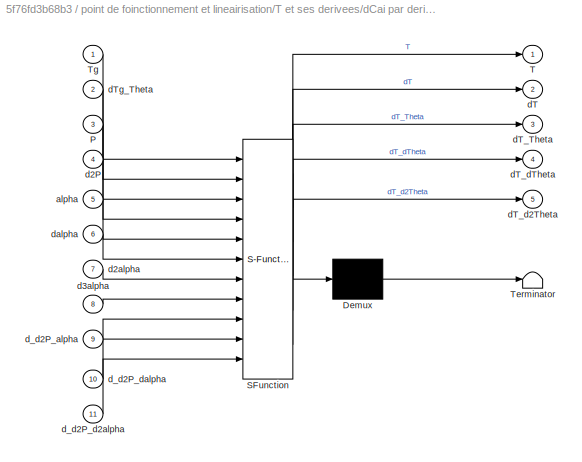
BLOCK [SubSystem] point de foinctionnement et lineairisation/T et ses derivees/dCai par derivees partielles 
  ErrorFcn = Stateflow.Translate.translate
  PermitHierarchicalResolution = ExplicitOnly
  Ports = [11, 5]
  RequestExecContextInheritance = off
  SFBlockType = MATLAB Function
  TreatAsAtomicUnit = on
BLOCK [Demux] point de foinctionnement et lineairisation/T et ses derivees/dCai par derivees partielles / Demux 
  Outputs = 1
  Ports = [1, 1]
BLOCK [S-Function] point de foinctionnement et lineairisation/T et ses derivees/dCai par derivees partielles / SFunction 
  EnableBusSupport = on
  FunctionName = sf_sfun
  PortCounts = [11 6]
  Ports = [11, 6]
  Tag = Stateflow S-Function Commande_4_GainPreprogramme 13
BLOCK [Terminator] point de foinctionnement et lineairisation/T et ses derivees/dCai par derivees partielles / Terminator 
BLOCK [Inport] point de foinctionnement et lineairisation/T et ses derivees/dCai par derivees partielles /P
  IconDisplay = Port number
  Port = 3
BLOCK [Outport] point de foinctionnement et lineairisation/T et ses derivees/dCai par derivees partielles /T
  IconDisplay = Port number
BLOCK [Inport] point de foinctionnement et lineairisation/T et ses derivees/dCai par derivees partielles /Tg
  IconDisplay = Port number
BLOCK [Inport] point de foinctionnement et lineairisation/T et ses derivees/dCai par derivees partielles /alpha
  IconDisplay = Port number
  Port = 5
BLOCK [Inport] point de foinctionnement et lineairisation/T et ses derivees/dCai par derivees partielles /d2P
  IconDisplay = Port number
  Port = 4
BLOCK [Inport] point de foinctionnement et lineairisation/T et ses derivees/dCai par derivees partielles /d2alpha
  IconDisplay = Port number
  Port = 7
BLOCK [Inport] point de foinctionnement et lineairisation/T et ses derivees/dCai par derivees partielles /d3alpha
  IconDisplay = Port number
  Port = 8
BLOCK [Outport] point de foinctionnement et lineairisation/T et ses derivees/dCai par derivees partielles /dT
  IconDisplay = Port number
  Port = 2
BLOCK [Outport] point de foinctionnement et lineairisation/T et ses derivees/dCai par derivees partielles /dT_Theta
  IconDisplay = Port number
  Port = 3
BLOCK [Outport] point de foinctionnement et lineairisation/T et ses derivees/dCai par derivees partielles /dT_d2Theta
  IconDisplay = Port number
  Port = 5
BLOCK [Outport] point de foinctionnement et lineairisation/T et ses derivees/dCai par derivees partielles /dT_dTheta
  IconDisplay = Port number
  Port = 4
BLOCK [Inport] point de foinctionnement et lineairisation/T et ses derivees/dCai par derivees partielles /dTg_Theta
  IconDisplay = Port number
  Port = 2
BLOCK [Inport] point de foinctionnement et lineairisation/T et ses derivees/dCai par derivees partielles /d_d2P_alpha
  IconDisplay = Port number
  Port = 9
BLOCK [Inport] point de foinctionnement et lineairisation/T et ses derivees/dCai par derivees partielles /d_d2P_d2alpha
  IconDisplay = Port number
  Port = 11
BLOCK [Inport] point de foinctionnement et lineairisation/T et ses derivees/dCai par derivees partielles /d_d2P_dalpha
  IconDisplay = Port number
  Port = 10
BLOCK [Inport] point de foinctionnement et lineairisation/T et ses derivees/dCai par derivees partielles /dalpha
  IconDisplay = Port number
  Port = 6
BLOCK [Inport] point de foinctionnement et lineairisation/T et ses derivees/dP
  IconDisplay = Port number
  Port = 8
BLOCK [Outport] point de foinctionnement et lineairisation/T et ses derivees/dT
  IconDisplay = Port number
  Port = 5
BLOCK [Outport] point de foinctionnement et lineairisation/T et ses derivees/dT_Theta
  IconDisplay = Port number
BLOCK [Outport] point de foinctionnement et lineairisation/T et ses derivees/dT_d2Theta
  IconDisplay = Port number
  Port = 3
BLOCK [Outport] point de foinctionnement et lineairisation/T et ses derivees/dT_dTheta
  IconDisplay = Port number
  Port = 2
BLOCK [Inport] point de foinctionnement et lineairisation/T et ses derivees/dTg_alpha
  IconDisplay = Port number
  Port = 2
BLOCK [Inport] point de foinctionnement et lineairisation/T et ses derivees/dalpha
  IconDisplay = Port number
  Port = 4
BLOCK [Outport] point de foinctionnement et lineairisation/U-0
  IconDisplay = Port number
  Port = 5
BLOCK [Outport] point de foinctionnement et lineairisation/X-0
  IconDisplay = Port number
  Port = 4
BLOCK [Inport] point de foinctionnement et lineairisation/alpha
  IconDisplay = Port number
BLOCK [Inport] point de foinctionnement et lineairisation/d2P
  IconDisplay = Port number
  Port = 7
BLOCK [Inport] point de foinctionnement et lineairisation/d2alpha
  IconDisplay = Port number
  Port = 3
BLOCK [Inport] point de foinctionnement et lineairisation/d3alpha
  IconDisplay = Port number
  Port = 4
BLOCK [Inport] point de foinctionnement et lineairisation/dP
  IconDisplay = Port number
  Port = 6
BLOCK [Inport] point de foinctionnement et lineairisation/dalpha
  IconDisplay = Port number
  Port = 2
ANNOTATION (root): le choix des poles a ete bien fait
LINE Clock:1 -> Trajectoir:1
LINE Constant1:1 -> Sum2:1
LINE Constant4:1 -> Trajectoir:2
LINE Erreur:1 -> Scope1:1
LINE Integrator:1 -> Sum1:1
LINE Ks*e:1 -> Integrator:1
LINE Kx*X:1 -> Sum1:2
LINE Les Gains:1 -> Ks*e:1
LINE Les Gains:2 -> Kx*X:2
LINE MCI2:1 -> point de foinctionnement et lineairisation:1
LINE MCI2:2 -> point de foinctionnement et lineairisation:2
LINE MCI2:3 -> point de foinctionnement et lineairisation:3
LINE MCI2:4 -> point de foinctionnement et lineairisation:4
NET Mux:1 -> 3D Graph:1, Scope2:1
NET SM/Add1:1 -> SM/Moteurs:1, SM/Scope4:1
NET SM/Add:1 -> SM/DX:1, SM/Gain1:1
LINE SM/DU:1 -> SM/Add1:2
LINE SM/Gain1:1 -> SM/DY:1
NET SM/Moteurs/Integrator:1 -> SM/Moteurs/I:1, SM/Moteurs/Ki:1, SM/Moteurs/Scope13:1, SM/Moteurs/equations electriques:1
LINE SM/Moteurs/Ki:1 -> SM/Moteurs/T:1
LINE SM/Moteurs/U:1 -> SM/Moteurs/equations electriques:2
LINE SM/Moteurs/dTheta:1 -> SM/Moteurs/equations electriques:3
LINE SM/Moteurs/equations electriques:1 -> SM/Moteurs/Integrator:1
NET SM/Moteurs:1 -> SM/Scope3:1, SM/Simmechanics:1
LINE SM/Moteurs:2 -> SM/Mux:3
LINE SM/Mux:1 -> SM/Add:1
LINE SM/Simmechanics/Demux:1 -> SM/Simmechanics/Simulink-PS Converter:1
LINE SM/Simmechanics/Demux:2 -> SM/Simmechanics/Simulink-PS Converter1:1
LINE SM/Simmechanics/Demux:3 -> SM/Simmechanics/Simulink-PS Converter2:1
LINE SM/Simmechanics/Gain2:1 -> SM/Simmechanics/Demux:1
LINE SM/Simmechanics/Mux1:1 -> SM/Simmechanics/adaptation:2
LINE SM/Simmechanics/Mux2:1 -> SM/Simmechanics/P:1
LINE SM/Simmechanics/Mux3:1 -> SM/Simmechanics/adaptation:1
LINE SM/Simmechanics/PS-Simulink Converter1:1 -> SM/Simmechanics/Mux3:1
LINE SM/Simmechanics/PS-Simulink Converter2:1 -> SM/Simmechanics/Mux3:2
LINE SM/Simmechanics/PS-Simulink Converter3:1 -> SM/Simmechanics/Mux2:1
LINE SM/Simmechanics/PS-Simulink Converter4:1 -> SM/Simmechanics/Mux2:2
LINE SM/Simmechanics/PS-Simulink Converter5:1 -> SM/Simmechanics/Mux2:3
LINE SM/Simmechanics/PS-Simulink Converter6:1 -> SM/Simmechanics/Mux3:3
LINE SM/Simmechanics/PS-Simulink Converter7:1 -> SM/Simmechanics/Mux1:1
LINE SM/Simmechanics/PS-Simulink Converter8:1 -> SM/Simmechanics/Mux1:2
LINE SM/Simmechanics/PS-Simulink Converter9:1 -> SM/Simmechanics/Mux1:3
LINE SM/Simmechanics/T:1 -> SM/Simmechanics/Gain2:1
LINE SM/Simmechanics/adaptation:1 -> SM/Simmechanics/Theta:1
LINE SM/Simmechanics/adaptation:2 -> SM/Simmechanics/dTheta:1
LINE SM/Simmechanics:1 -> SM/P:1
NET SM/Simmechanics:2 -> SM/Mux:1, SM/Scope1:1
NET SM/Simmechanics:3 -> SM/Moteurs:2, SM/Mux:2, SM/Scope2:1
LINE SM/U-0:1 -> SM/Add1:1
LINE SM/X-0:1 -> SM/Add:2
NET SM:1 -> Erreur:2, Mux:2
LINE SM:2 -> Sum2:2
LINE SM:3 -> Kx*X:1
NET Sum1:1 -> SM:3, Scope3:1
LINE Sum2:1 -> Ks*e:2
NET Trajectoir:1 -> Erreur:1, MCI2:1, Mux:1, point de foinctionnement et lineairisation:5
NET Trajectoir:2 -> MCI2:2, point de foinctionnement et lineairisation:6
NET Trajectoir:3 -> MCI2:3, point de foinctionnement et lineairisation:7
LINE Trajectoir:4 -> MCI2:4
LINE point de foinctionnement et lineairisation/Calcule de Q R Z :1 -> point de foinctionnement et lineairisation/Les matrices du systeme lineair au point de fonctionnement:1
LINE point de foinctionnement et lineairisation/Calcule de Q R Z :2 -> point de foinctionnement et lineairisation/Les matrices du systeme lineair au point de fonctionnement:2
LINE point de foinctionnement et lineairisation/Calcule de Q R Z :3 -> point de foinctionnement et lineairisation/Les matrices du systeme lineair au point de fonctionnement:3
LINE point de foinctionnement et lineairisation/Derivee de Tg/Gravite_lineaire:1 -> point de foinctionnement et lineairisation/Derivee de Tg/Tg:1
LINE point de foinctionnement et lineairisation/Derivee de Tg/Gravite_lineaire:2 -> point de foinctionnement et lineairisation/Derivee de Tg/dTg_alpha:1
LINE point de foinctionnement et lineairisation/Derivee de Tg/Jinv:1 -> point de foinctionnement et lineairisation/Derivee de Tg/Gravite_lineaire:3
NET point de foinctionnement et lineairisation/Derivee de Tg/P:1 -> point de foinctionnement et lineairisation/Derivee de Tg/Gravite_lineaire:1, point de foinctionnement et lineairisation/Derivee de Tg/Jinv:1
LINE point de foinctionnement et lineairisation/Derivee de Tg/alpha:1 -> point de foinctionnement et lineairisation/Derivee de Tg/Gravite_lineaire:2
LINE point de foinctionnement et lineairisation/Derivee de Tg:1 -> point de foinctionnement et lineairisation/T et ses derivees:1
LINE point de foinctionnement et lineairisation/Derivee de Tg:2 -> point de foinctionnement et lineairisation/T et ses derivees:2
LINE point de foinctionnement et lineairisation/Gain1:1 -> point de foinctionnement et lineairisation/Mux:2
LINE point de foinctionnement et lineairisation/Gain4:1 -> point de foinctionnement et lineairisation/Mux:1
LINE point de foinctionnement et lineairisation/La tension et le Courant au point de fonctionnement:1 -> point de foinctionnement et lineairisation/U-0:1
LINE point de foinctionnement et lineairisation/La tension et le Courant au point de fonctionnement:2 -> point de foinctionnement et lineairisation/Mux:3
LINE point de foinctionnement et lineairisation/Les matrices du systeme lineair au point de fonctionnement:1 -> point de foinctionnement et lineairisation/A:1
LINE point de foinctionnement et lineairisation/Les matrices du systeme lineair au point de fonctionnement:2 -> point de foinctionnement et lineairisation/B:1
LINE point de foinctionnement et lineairisation/Les matrices du systeme lineair au point de fonctionnement:3 -> point de foinctionnement et lineairisation/C:1
LINE point de foinctionnement et lineairisation/Mux:1 -> point de foinctionnement et lineairisation/X-0:1
NET point de foinctionnement et lineairisation/P:1 -> point de foinctionnement et lineairisation/Derivee de Tg:1, point de foinctionnement et lineairisation/T et ses derivees:7
LINE point de foinctionnement et lineairisation/T et ses derivees/Les matrices de lineairisation de d2P  :1 -> point de foinctionnement et lineairisation/T et ses derivees/dCai par derivees partielles :9
LINE point de foinctionnement et lineairisation/T et ses derivees/Les matrices de lineairisation de d2P  :2 -> point de foinctionnement et lineairisation/T et ses derivees/dCai par derivees partielles :10
LINE point de foinctionnement et lineairisation/T et ses derivees/Les matrices de lineairisation de d2P  :3 -> point de foinctionnement et lineairisation/T et ses derivees/dCai par derivees partielles :11
NET point de foinctionnement et lineairisation/T et ses derivees/P:1 -> point de foinctionnement et lineairisation/T et ses derivees/Les matrices de lineairisation de d2P  :1, point de foinctionnement et lineairisation/T et ses derivees/dCai par derivees partielles :3
LINE point de foinctionnement et lineairisation/T et ses derivees/Tg:1 -> point de foinctionnement et lineairisation/T et ses derivees/dCai par derivees partielles :1
LINE point de foinctionnement et lineairisation/T et ses derivees/alpha:1 -> point de foinctionnement et lineairisation/T et ses derivees/dCai par derivees partielles :5
NET point de foinctionnement et lineairisation/T et ses derivees/d2P:1 -> point de foinctionnement et lineairisation/T et ses derivees/Les matrices de lineairisation de d2P  :3, point de foinctionnement et lineairisation/T et ses derivees/dCai par derivees partielles :4
LINE point de foinctionnement et lineairisation/T et ses derivees/d2alpha:1 -> point de foinctionnement et lineairisation/T et ses derivees/dCai par derivees partielles :7
LINE point de foinctionnement et lineairisation/T et ses derivees/d3alpha:1 -> point de foinctionnement et lineairisation/T et ses derivees/dCai par derivees partielles :8
LINE point de foinctionnement et lineairisation/T et ses derivees/dCai par derivees partielles :1 -> point de foinctionnement et lineairisation/T et ses derivees/T:1
LINE point de foinctionnement et lineairisation/T et ses derivees/dCai par derivees partielles :2 -> point de foinctionnement et lineairisation/T et ses derivees/dT:1
LINE point de foinctionnement et lineairisation/T et ses derivees/dCai par derivees partielles :3 -> point de foinctionnement et lineairisation/T et ses derivees/dT_Theta:1
LINE point de foinctionnement et lineairisation/T et ses derivees/dCai par derivees partielles :4 -> point de foinctionnement et lineairisation/T et ses derivees/dT_dTheta:1
LINE point de foinctionnement et lineairisation/T et ses derivees/dCai par derivees partielles :5 -> point de foinctionnement et lineairisation/T et ses derivees/dT_d2Theta:1
LINE point de foinctionnement et lineairisation/T et ses derivees/dP:1 -> point de foinctionnement et lineairisation/T et ses derivees/Les matrices de lineairisation de d2P  :2
LINE point de foinctionnement et lineairisation/T et ses derivees/dTg_alpha:1 -> point de foinctionnement et lineairisation/T et ses derivees/dCai par derivees partielles :2
LINE point de foinctionnement et lineairisation/T et ses derivees/dalpha:1 -> point de foinctionnement et lineairisation/T et ses derivees/dCai par derivees partielles :6
LINE point de foinctionnement et lineairisation/T et ses derivees:1 -> point de foinctionnement et lineairisation/Calcule de Q R Z :1
LINE point de foinctionnement et lineairisation/T et ses derivees:2 -> point de foinctionnement et lineairisation/Calcule de Q R Z :2
LINE point de foinctionnement et lineairisation/T et ses derivees:3 -> point de foinctionnement et lineairisation/Calcule de Q R Z :3
LINE point de foinctionnement et lineairisation/T et ses derivees:4 -> point de foinctionnement et lineairisation/La tension et le Courant au point de fonctionnement:1
LINE point de foinctionnement et lineairisation/T et ses derivees:5 -> point de foinctionnement et lineairisation/La tension et le Courant au point de fonctionnement:2
NET point de foinctionnement et lineairisation/alpha:1 -> point de foinctionnement et lineairisation/Derivee de Tg:2, point de foinctionnement et lineairisation/Gain4:1, point de foinctionnement et lineairisation/T et ses derivees:3
LINE point de foinctionnement et lineairisation/d2P:1 -> point de foinctionnement et lineairisation/T et ses derivees:9
NET point de foinctionnement et lineairisation/d2alpha:1 -> point de foinctionnement et lineairisation/La tension et le Courant au point de fonctionnement:3, point de foinctionnement et lineairisation/T et ses derivees:5
LINE point de foinctionnement et lineairisation/d3alpha:1 -> point de foinctionnement et lineairisation/T et ses derivees:6
LINE point de foinctionnement et lineairisation/dP:1 -> point de foinctionnement et lineairisation/T et ses derivees:8
NET point de foinctionnement et lineairisation/dalpha:1 -> point de foinctionnement et lineairisation/Gain1:1, point de foinctionnement et lineairisation/T et ses derivees:4
LINE point de foinctionnement et lineairisation:1 -> Les Gains:1
LINE point de foinctionnement et lineairisation:2 -> Les Gains:2
LINE point de foinctionnement et lineairisation:3 -> Les Gains:3
LINE point de foinctionnement et lineairisation:4 -> SM:1
LINE point de foinctionnement et lineairisation:5 -> SM:2
PLINE SM/Simmechanics/BareParalle1/BarreParalleles_1_RIGID/F1:RConn1 -- SM/Simmechanics/BareParalle1/BarreParalleles_1_RIGID/Transform1:RConn1
PLINE SM/Simmechanics/BareParalle1/BarreParalleles_1_RIGID/F2:RConn1 -- SM/Simmechanics/BareParalle1/BarreParalleles_1_RIGID/Transform2:RConn1
PLINE SM/Simmechanics/BareParalle1/BarreParalleles_1_RIGID/F:RConn1 -- SM/Simmechanics/BareParalle1/BarreParalleles_1_RIGID/Transform:RConn1
PNET net1: SM/Simmechanics/BareParalle1/BarreParalleles_1_RIGID/Pi_ce4_Extremetees_1_RIGID/F:RConn1 -- SM/Simmechanics/BareParalle1/BarreParalleles_1_RIGID/Pi_ce4_Extremetees_1_RIGID/ReferenceFrame:RConn1 -- SM/Simmechanics/BareParalle1/BarreParalleles_1_RIGID/Pi_ce4_Extremetees_1_RIGID/Solid:RConn1
PLINE SM/Simmechanics/BareParalle1/BarreParalleles_1_RIGID/Pi_ce4_Extremetees_1_RIGID:LConn1 -- SM/Simmechanics/BareParalle1/BarreParalleles_1_RIGID/Transform4:RConn1
PNET net2: SM/Simmechanics/BareParalle1/BarreParalleles_1_RIGID/Pi_ce4_Extremetees_2_RIGID/F:RConn1 -- SM/Simmechanics/BareParalle1/BarreParalleles_1_RIGID/Pi_ce4_Extremetees_2_RIGID/ReferenceFrame:RConn1 -- SM/Simmechanics/BareParalle1/BarreParalleles_1_RIGID/Pi_ce4_Extremetees_2_RIGID/Solid:RConn1
PLINE SM/Simmechanics/BareParalle1/BarreParalleles_1_RIGID/Pi_ce4_Extremetees_2_RIGID:LConn1 -- SM/Simmechanics/BareParalle1/BarreParalleles_1_RIGID/Transform5:RConn1
PNET net3: SM/Simmechanics/BareParalle1/BarreParalleles_1_RIGID/Pi_ce4_Tube_1_RIGID/F:RConn1 -- SM/Simmechanics/BareParalle1/BarreParalleles_1_RIGID/Pi_ce4_Tube_1_RIGID/ReferenceFrame:RConn1 -- SM/Simmechanics/BareParalle1/BarreParalleles_1_RIGID/Pi_ce4_Tube_1_RIGID/Solid:RConn1
PLINE SM/Simmechanics/BareParalle1/BarreParalleles_1_RIGID/Pi_ce4_Tube_1_RIGID:LConn1 -- SM/Simmechanics/BareParalle1/BarreParalleles_1_RIGID/Transform3:RConn1
PNET net4: SM/Simmechanics/BareParalle1/BarreParalleles_1_RIGID/ReferenceFrame:RConn1 -- SM/Simmechanics/BareParalle1/BarreParalleles_1_RIGID/Transform1:LConn1 -- SM/Simmechanics/BareParalle1/BarreParalleles_1_RIGID/Transform2:LConn1 -- SM/Simmechanics/BareParalle1/BarreParalleles_1_RIGID/Transform3:LConn1 -- SM/Simmechanics/BareParalle1/BarreParalleles_1_RIGID/Transform4:LConn1 -- SM/Simmechanics/BareParalle1/BarreParalleles_1_RIGID/Transform5:LConn1 -- SM/Simmechanics/BareParalle1/BarreParalleles_1_RIGID/Transform:LConn1
PLINE SM/Simmechanics/BareParalle1/BarreParalleles_1_RIGID:RConn1 -- SM/Simmechanics/BareParalle1/Planar:LConn1
PLINE SM/Simmechanics/BareParalle1/BarreParalleles_1_RIGID:RConn2 -- SM/Simmechanics/BareParalle1/Spherical6:LConn1
PLINE SM/Simmechanics/BareParalle1/BarreParalleles_1_RIGID:RConn3 -- SM/Simmechanics/BareParalle1/Spherical:LConn1
PLINE SM/Simmechanics/BareParalle1/BarreParalleles_2_RIGID/F1:RConn1 -- SM/Simmechanics/BareParalle1/BarreParalleles_2_RIGID/Transform1:RConn1
PLINE SM/Simmechanics/BareParalle1/BarreParalleles_2_RIGID/F2:RConn1 -- SM/Simmechanics/BareParalle1/BarreParalleles_2_RIGID/Transform2:RConn1
PLINE SM/Simmechanics/BareParalle1/BarreParalleles_2_RIGID/F:RConn1 -- SM/Simmechanics/BareParalle1/BarreParalleles_2_RIGID/Transform:RConn1
PNET net5: SM/Simmechanics/BareParalle1/BarreParalleles_2_RIGID/Pi_ce4_Extremetees_1_RIGID/F:RConn1 -- SM/Simmechanics/BareParalle1/BarreParalleles_2_RIGID/Pi_ce4_Extremetees_1_RIGID/ReferenceFrame:RConn1 -- SM/Simmechanics/BareParalle1/BarreParalleles_2_RIGID/Pi_ce4_Extremetees_1_RIGID/Solid:RConn1
PLINE SM/Simmechanics/BareParalle1/BarreParalleles_2_RIGID/Pi_ce4_Extremetees_1_RIGID:LConn1 -- SM/Simmechanics/BareParalle1/BarreParalleles_2_RIGID/Transform4:RConn1
PNET net6: SM/Simmechanics/BareParalle1/BarreParalleles_2_RIGID/Pi_ce4_Extremetees_2_RIGID/F:RConn1 -- SM/Simmechanics/BareParalle1/BarreParalleles_2_RIGID/Pi_ce4_Extremetees_2_RIGID/ReferenceFrame:RConn1 -- SM/Simmechanics/BareParalle1/BarreParalleles_2_RIGID/Pi_ce4_Extremetees_2_RIGID/Solid:RConn1
PLINE SM/Simmechanics/BareParalle1/BarreParalleles_2_RIGID/Pi_ce4_Extremetees_2_RIGID:LConn1 -- SM/Simmechanics/BareParalle1/BarreParalleles_2_RIGID/Transform5:RConn1
PNET net7: SM/Simmechanics/BareParalle1/BarreParalleles_2_RIGID/Pi_ce4_Tube_1_RIGID/F:RConn1 -- SM/Simmechanics/BareParalle1/BarreParalleles_2_RIGID/Pi_ce4_Tube_1_RIGID/ReferenceFrame:RConn1 -- SM/Simmechanics/BareParalle1/BarreParalleles_2_RIGID/Pi_ce4_Tube_1_RIGID/Solid:RConn1
PLINE SM/Simmechanics/BareParalle1/BarreParalleles_2_RIGID/Pi_ce4_Tube_1_RIGID:LConn1 -- SM/Simmechanics/BareParalle1/BarreParalleles_2_RIGID/Transform3:RConn1
PNET net8: SM/Simmechanics/BareParalle1/BarreParalleles_2_RIGID/ReferenceFrame:RConn1 -- SM/Simmechanics/BareParalle1/BarreParalleles_2_RIGID/Transform1:LConn1 -- SM/Simmechanics/BareParalle1/BarreParalleles_2_RIGID/Transform2:LConn1 -- SM/Simmechanics/BareParalle1/BarreParalleles_2_RIGID/Transform3:LConn1 -- SM/Simmechanics/BareParalle1/BarreParalleles_2_RIGID/Transform4:LConn1 -- SM/Simmechanics/BareParalle1/BarreParalleles_2_RIGID/Transform5:LConn1 -- SM/Simmechanics/BareParalle1/BarreParalleles_2_RIGID/Transform:LConn1
PLINE SM/Simmechanics/BareParalle1/BarreParalleles_2_RIGID:LConn1 -- SM/Simmechanics/BareParalle1/Planar:RConn1
PLINE SM/Simmechanics/BareParalle1/BarreParalleles_2_RIGID:RConn1 -- SM/Simmechanics/BareParalle1/Spherical7:LConn1
PLINE SM/Simmechanics/BareParalle1/BarreParalleles_2_RIGID:RConn2 -- SM/Simmechanics/BareParalle1/Spherical1:LConn1
PLINE SM/Simmechanics/BareParalle1/Conn1:RConn1 -- SM/Simmechanics/BareParalle1/Spherical1:RConn1
PLINE SM/Simmechanics/BareParalle1/Conn2:RConn1 -- SM/Simmechanics/BareParalle1/Spherical:RConn1
PLINE SM/Simmechanics/BareParalle1/Conn3:RConn1 -- SM/Simmechanics/BareParalle1/Spherical7:RConn1
PLINE SM/Simmechanics/BareParalle1/Conn4:RConn1 -- SM/Simmechanics/BareParalle1/Spherical6:RConn1
PLINE SM/Simmechanics/BareParalle1:LConn1 -- SM/Simmechanics/Bras1:RConn1
PLINE SM/Simmechanics/BareParalle1:LConn2 -- SM/Simmechanics/Bras1:RConn2
PLINE SM/Simmechanics/BareParalle1:RConn1 -- SM/Simmechanics/Nacelle1_1_RIGID:LConn5
PLINE SM/Simmechanics/BareParalle1:RConn2 -- SM/Simmechanics/Nacelle1_1_RIGID:LConn6
PLINE SM/Simmechanics/BareParallel2/BarreParalleles_5_RIGID/F1:RConn1 -- SM/Simmechanics/BareParallel2/BarreParalleles_5_RIGID/Transform1:RConn1
PLINE SM/Simmechanics/BareParallel2/BarreParalleles_5_RIGID/F2:RConn1 -- SM/Simmechanics/BareParallel2/BarreParalleles_5_RIGID/Transform2:RConn1
PLINE SM/Simmechanics/BareParallel2/BarreParalleles_5_RIGID/F:RConn1 -- SM/Simmechanics/BareParallel2/BarreParalleles_5_RIGID/Transform:RConn1
PNET net9: SM/Simmechanics/BareParallel2/BarreParalleles_5_RIGID/Pi_ce4_Extremetees_1_RIGID/F:RConn1 -- SM/Simmechanics/BareParallel2/BarreParalleles_5_RIGID/Pi_ce4_Extremetees_1_RIGID/ReferenceFrame:RConn1 -- SM/Simmechanics/BareParallel2/BarreParalleles_5_RIGID/Pi_ce4_Extremetees_1_RIGID/Solid:RConn1
PLINE SM/Simmechanics/BareParallel2/BarreParalleles_5_RIGID/Pi_ce4_Extremetees_1_RIGID:LConn1 -- SM/Simmechanics/BareParallel2/BarreParalleles_5_RIGID/Transform4:RConn1
PNET net10: SM/Simmechanics/BareParallel2/BarreParalleles_5_RIGID/Pi_ce4_Extremetees_2_RIGID/F:RConn1 -- SM/Simmechanics/BareParallel2/BarreParalleles_5_RIGID/Pi_ce4_Extremetees_2_RIGID/ReferenceFrame:RConn1 -- SM/Simmechanics/BareParallel2/BarreParalleles_5_RIGID/Pi_ce4_Extremetees_2_RIGID/Solid:RConn1
PLINE SM/Simmechanics/BareParallel2/BarreParalleles_5_RIGID/Pi_ce4_Extremetees_2_RIGID:LConn1 -- SM/Simmechanics/BareParallel2/BarreParalleles_5_RIGID/Transform5:RConn1
PNET net11: SM/Simmechanics/BareParallel2/BarreParalleles_5_RIGID/Pi_ce4_Tube_1_RIGID/F:RConn1 -- SM/Simmechanics/BareParallel2/BarreParalleles_5_RIGID/Pi_ce4_Tube_1_RIGID/ReferenceFrame:RConn1 -- SM/Simmechanics/BareParallel2/BarreParalleles_5_RIGID/Pi_ce4_Tube_1_RIGID/Solid:RConn1
PLINE SM/Simmechanics/BareParallel2/BarreParalleles_5_RIGID/Pi_ce4_Tube_1_RIGID:LConn1 -- SM/Simmechanics/BareParallel2/BarreParalleles_5_RIGID/Transform3:RConn1
PNET net12: SM/Simmechanics/BareParallel2/BarreParalleles_5_RIGID/ReferenceFrame:RConn1 -- SM/Simmechanics/BareParallel2/BarreParalleles_5_RIGID/Transform1:LConn1 -- SM/Simmechanics/BareParallel2/BarreParalleles_5_RIGID/Transform2:LConn1 -- SM/Simmechanics/BareParallel2/BarreParalleles_5_RIGID/Transform3:LConn1 -- SM/Simmechanics/BareParallel2/BarreParalleles_5_RIGID/Transform4:LConn1 -- SM/Simmechanics/BareParallel2/BarreParalleles_5_RIGID/Transform5:LConn1 -- SM/Simmechanics/BareParallel2/BarreParalleles_5_RIGID/Transform:LConn1
PLINE SM/Simmechanics/BareParallel2/BarreParalleles_5_RIGID:RConn1 -- SM/Simmechanics/BareParallel2/Planar2:LConn1
PLINE SM/Simmechanics/BareParallel2/BarreParalleles_5_RIGID:RConn2 -- SM/Simmechanics/BareParallel2/Spherical10:LConn1
PLINE SM/Simmechanics/BareParallel2/BarreParalleles_5_RIGID:RConn3 -- SM/Simmechanics/BareParallel2/Spherical2:LConn1
PLINE SM/Simmechanics/BareParallel2/BarreParalleles_6_RIGID/F1:RConn1 -- SM/Simmechanics/BareParallel2/BarreParalleles_6_RIGID/Transform1:RConn1
PLINE SM/Simmechanics/BareParallel2/BarreParalleles_6_RIGID/F2:RConn1 -- SM/Simmechanics/BareParallel2/BarreParalleles_6_RIGID/Transform2:RConn1
PLINE SM/Simmechanics/BareParallel2/BarreParalleles_6_RIGID/F:RConn1 -- SM/Simmechanics/BareParallel2/BarreParalleles_6_RIGID/Transform:RConn1
PNET net13: SM/Simmechanics/BareParallel2/BarreParalleles_6_RIGID/Pi_ce4_Extremetees_1_RIGID/F:RConn1 -- SM/Simmechanics/BareParallel2/BarreParalleles_6_RIGID/Pi_ce4_Extremetees_1_RIGID/ReferenceFrame:RConn1 -- SM/Simmechanics/BareParallel2/BarreParalleles_6_RIGID/Pi_ce4_Extremetees_1_RIGID/Solid:RConn1
PLINE SM/Simmechanics/BareParallel2/BarreParalleles_6_RIGID/Pi_ce4_Extremetees_1_RIGID:LConn1 -- SM/Simmechanics/BareParallel2/BarreParalleles_6_RIGID/Transform4:RConn1
PNET net14: SM/Simmechanics/BareParallel2/BarreParalleles_6_RIGID/Pi_ce4_Extremetees_2_RIGID/F:RConn1 -- SM/Simmechanics/BareParallel2/BarreParalleles_6_RIGID/Pi_ce4_Extremetees_2_RIGID/ReferenceFrame:RConn1 -- SM/Simmechanics/BareParallel2/BarreParalleles_6_RIGID/Pi_ce4_Extremetees_2_RIGID/Solid:RConn1
PLINE SM/Simmechanics/BareParallel2/BarreParalleles_6_RIGID/Pi_ce4_Extremetees_2_RIGID:LConn1 -- SM/Simmechanics/BareParallel2/BarreParalleles_6_RIGID/Transform5:RConn1
PNET net15: SM/Simmechanics/BareParallel2/BarreParalleles_6_RIGID/Pi_ce4_Tube_1_RIGID/F:RConn1 -- SM/Simmechanics/BareParallel2/BarreParalleles_6_RIGID/Pi_ce4_Tube_1_RIGID/ReferenceFrame:RConn1 -- SM/Simmechanics/BareParallel2/BarreParalleles_6_RIGID/Pi_ce4_Tube_1_RIGID/Solid:RConn1
PLINE SM/Simmechanics/BareParallel2/BarreParalleles_6_RIGID/Pi_ce4_Tube_1_RIGID:LConn1 -- SM/Simmechanics/BareParallel2/BarreParalleles_6_RIGID/Transform3:RConn1
PNET net16: SM/Simmechanics/BareParallel2/BarreParalleles_6_RIGID/ReferenceFrame:RConn1 -- SM/Simmechanics/BareParallel2/BarreParalleles_6_RIGID/Transform1:LConn1 -- SM/Simmechanics/BareParallel2/BarreParalleles_6_RIGID/Transform2:LConn1 -- SM/Simmechanics/BareParallel2/BarreParalleles_6_RIGID/Transform3:LConn1 -- SM/Simmechanics/BareParallel2/BarreParalleles_6_RIGID/Transform4:LConn1 -- SM/Simmechanics/BareParallel2/BarreParalleles_6_RIGID/Transform5:LConn1 -- SM/Simmechanics/BareParallel2/BarreParalleles_6_RIGID/Transform:LConn1
PLINE SM/Simmechanics/BareParallel2/BarreParalleles_6_RIGID:LConn1 -- SM/Simmechanics/BareParallel2/Planar2:RConn1
PLINE SM/Simmechanics/BareParallel2/BarreParalleles_6_RIGID:RConn1 -- SM/Simmechanics/BareParallel2/Spherical11:LConn1
PLINE SM/Simmechanics/BareParallel2/BarreParalleles_6_RIGID:RConn2 -- SM/Simmechanics/BareParallel2/Spherical3:LConn1
PLINE SM/Simmechanics/BareParallel2/Conn1:RConn1 -- SM/Simmechanics/BareParallel2/Spherical3:RConn1
PLINE SM/Simmechanics/BareParallel2/Conn2:RConn1 -- SM/Simmechanics/BareParallel2/Spherical2:RConn1
PLINE SM/Simmechanics/BareParallel2/Conn3:RConn1 -- SM/Simmechanics/BareParallel2/Spherical11:RConn1
PLINE SM/Simmechanics/BareParallel2/Conn4:RConn1 -- SM/Simmechanics/BareParallel2/Spherical10:RConn1
PLINE SM/Simmechanics/BareParallel2:LConn1 -- SM/Simmechanics/Bras2:RConn1
PLINE SM/Simmechanics/BareParallel2:LConn2 -- SM/Simmechanics/Bras2:RConn2
PLINE SM/Simmechanics/BareParallel2:RConn1 -- SM/Simmechanics/Nacelle1_1_RIGID:LConn1
PLINE SM/Simmechanics/BareParallel2:RConn2 -- SM/Simmechanics/Nacelle1_1_RIGID:LConn2
PLINE SM/Simmechanics/Bras1/Alpha1:RConn1 -- SM/Simmechanics/Bras1/Revolute14:RConn2
PLINE SM/Simmechanics/Bras1/Conn1:RConn1 -- SM/Simmechanics/Bras1/Revolute2:LConn1
PLINE SM/Simmechanics/Bras1/Conn2:RConn1 -- SM/Simmechanics/Bras1/Revolute4:LConn1
PLINE SM/Simmechanics/Bras1/Conn3:RConn1 -- SM/Simmechanics/Bras1/Revolute14:LConn1
PLINE SM/Simmechanics/Bras1/Conn4:RConn1 -- SM/Simmechanics/Bras1/Revolute1:LConn1
PLINE SM/Simmechanics/Bras1/Conn5:RConn1 -- SM/Simmechanics/Bras1/Revolute:LConn1
PLINE SM/Simmechanics/Bras1/Conn6:RConn1 -- SM/Simmechanics/Bras1/Pi_ce0_Bras_5_RIGID:LConn3
PLINE SM/Simmechanics/Bras1/Conn7:RConn1 -- SM/Simmechanics/Bras1/Pi_ce0_Bras_5_RIGID:LConn4
PLINE SM/Simmechanics/Bras1/Parallel1:LConn1 -- SM/Simmechanics/Bras1/Pi_ce1_Roue_ecrou_1_RIGID:RConn1
PLINE SM/Simmechanics/Bras1/Parallel1:RConn1 -- SM/Simmechanics/Bras1/Pi_ce1_arbre_2_RIGID:LConn2
PLINE SM/Simmechanics/Bras1/Parallel:LConn1 -- SM/Simmechanics/Bras1/Pi_ce1_Roue_ecrou_1_RIGID:RConn2
PLINE SM/Simmechanics/Bras1/Parallel:RConn1 -- SM/Simmechanics/Bras1/Pi_ce0_Bras_5_RIGID:LConn1
PLINE SM/Simmechanics/Bras1/Pi_ce0_Bras_5_RIGID/F1:RConn1 -- SM/Simmechanics/Bras1/Pi_ce0_Bras_5_RIGID/Transform1:RConn1
PLINE SM/Simmechanics/Bras1/Pi_ce0_Bras_5_RIGID/F2:RConn1 -- SM/Simmechanics/Bras1/Pi_ce0_Bras_5_RIGID/Transform2:RConn1
PLINE SM/Simmechanics/Bras1/Pi_ce0_Bras_5_RIGID/F3:RConn1 -- SM/Simmechanics/Bras1/Pi_ce0_Bras_5_RIGID/Transform3:RConn1
PLINE SM/Simmechanics/Bras1/Pi_ce0_Bras_5_RIGID/F:RConn1 -- SM/Simmechanics/Bras1/Pi_ce0_Bras_5_RIGID/Transform:RConn1
PNET net17: SM/Simmechanics/Bras1/Pi_ce0_Bras_5_RIGID/ReferenceFrame:RConn1 -- SM/Simmechanics/Bras1/Pi_ce0_Bras_5_RIGID/Solid:RConn1 -- SM/Simmechanics/Bras1/Pi_ce0_Bras_5_RIGID/Transform1:LConn1 -- SM/Simmechanics/Bras1/Pi_ce0_Bras_5_RIGID/Transform2:LConn1 -- SM/Simmechanics/Bras1/Pi_ce0_Bras_5_RIGID/Transform3:LConn1 -- SM/Simmechanics/Bras1/Pi_ce0_Bras_5_RIGID/Transform:LConn1
PLINE SM/Simmechanics/Bras1/Pi_ce0_Bras_5_RIGID:LConn2 -- SM/Simmechanics/Bras1/Revolute:RConn1
PNET net18: SM/Simmechanics/Bras1/Pi_ce1_PignonDents_5_RIGID/F1:RConn1 -- SM/Simmechanics/Bras1/Pi_ce1_PignonDents_5_RIGID/ReferenceFrame:RConn1 -- SM/Simmechanics/Bras1/Pi_ce1_PignonDents_5_RIGID/Solid:RConn1 -- SM/Simmechanics/Bras1/Pi_ce1_PignonDents_5_RIGID/Transform:LConn1
PLINE SM/Simmechanics/Bras1/Pi_ce1_PignonDents_5_RIGID/F:RConn1 -- SM/Simmechanics/Bras1/Pi_ce1_PignonDents_5_RIGID/Transform:RConn1
PLINE SM/Simmechanics/Bras1/Pi_ce1_PignonDents_5_RIGID:LConn1 -- SM/Simmechanics/Bras1/Revolute2:RConn1
PLINE SM/Simmechanics/Bras1/Pi_ce1_Roue_ecrou_1_RIGID/F1:RConn1 -- SM/Simmechanics/Bras1/Pi_ce1_Roue_ecrou_1_RIGID/Transform1:RConn1
PLINE SM/Simmechanics/Bras1/Pi_ce1_Roue_ecrou_1_RIGID/F2:RConn1 -- SM/Simmechanics/Bras1/Pi_ce1_Roue_ecrou_1_RIGID/Transform2:RConn1
PLINE SM/Simmechanics/Bras1/Pi_ce1_Roue_ecrou_1_RIGID/F:RConn1 -- SM/Simmechanics/Bras1/Pi_ce1_Roue_ecrou_1_RIGID/Transform:RConn1
PNET net19: SM/Simmechanics/Bras1/Pi_ce1_Roue_ecrou_1_RIGID/ReferenceFrame:RConn1 -- SM/Simmechanics/Bras1/Pi_ce1_Roue_ecrou_1_RIGID/Solid:RConn1 -- SM/Simmechanics/Bras1/Pi_ce1_Roue_ecrou_1_RIGID/Transform1:LConn1 -- SM/Simmechanics/Bras1/Pi_ce1_Roue_ecrou_1_RIGID/Transform2:LConn1 -- SM/Simmechanics/Bras1/Pi_ce1_Roue_ecrou_1_RIGID/Transform:LConn1
PLINE SM/Simmechanics/Bras1/Pi_ce1_Roue_ecrou_1_RIGID:LConn1 -- SM/Simmechanics/Bras1/Revolute14:RConn1
PLINE SM/Simmechanics/Bras1/Pi_ce1_arbre_2_RIGID/F1:RConn1 -- SM/Simmechanics/Bras1/Pi_ce1_arbre_2_RIGID/Transform1:RConn1
PLINE SM/Simmechanics/Bras1/Pi_ce1_arbre_2_RIGID/F:RConn1 -- SM/Simmechanics/Bras1/Pi_ce1_arbre_2_RIGID/Transform:RConn1
PNET net20: SM/Simmechanics/Bras1/Pi_ce1_arbre_2_RIGID/ReferenceFrame:RConn1 -- SM/Simmechanics/Bras1/Pi_ce1_arbre_2_RIGID/Solid1:RConn1 -- SM/Simmechanics/Bras1/Pi_ce1_arbre_2_RIGID/Transform1:LConn1 -- SM/Simmechanics/Bras1/Pi_ce1_arbre_2_RIGID/Transform:LConn1
PLINE SM/Simmechanics/Bras1/Pi_ce1_arbre_2_RIGID:LConn1 -- SM/Simmechanics/Bras1/Revolute4:RConn1
PNET net21: SM/Simmechanics/Bras1/Pi_ce1_poulieDents_4_RIGID/F1:RConn1 -- SM/Simmechanics/Bras1/Pi_ce1_poulieDents_4_RIGID/ReferenceFrame:RConn1 -- SM/Simmechanics/Bras1/Pi_ce1_poulieDents_4_RIGID/Solid:RConn1 -- SM/Simmechanics/Bras1/Pi_ce1_poulieDents_4_RIGID/Transform:LConn1
PLINE SM/Simmechanics/Bras1/Pi_ce1_poulieDents_4_RIGID/F:RConn1 -- SM/Simmechanics/Bras1/Pi_ce1_poulieDents_4_RIGID/Transform:RConn1
PLINE SM/Simmechanics/Bras1/Pi_ce1_poulieDents_4_RIGID:LConn1 -- SM/Simmechanics/Bras1/Revolute1:RConn1
PLINE SM/Simmechanics/Bras1/Revolute14:LConn2 -- SM/Simmechanics/Bras1/T1:RConn1
PLINE SM/Simmechanics/Bras1/Revolute14:RConn3 -- SM/Simmechanics/Bras1/dAlpha1:RConn1
PLINE SM/Simmechanics/Bras1:LConn1 -- SM/Simmechanics/Pi_ce0_Base_1_RIGID:RConn11
PLINE SM/Simmechanics/Bras1:LConn2 -- SM/Simmechanics/Pi_ce0_Base_1_RIGID:RConn12
PLINE SM/Simmechanics/Bras1:LConn3 -- SM/Simmechanics/Pi_ce0_Base_1_RIGID:RConn13
PLINE SM/Simmechanics/Bras1:LConn4 -- SM/Simmechanics/Pi_ce0_Base_1_RIGID:RConn14
PLINE SM/Simmechanics/Bras1:LConn5 -- SM/Simmechanics/Pi_ce0_Base_1_RIGID:RConn15
PLINE SM/Simmechanics/Bras1:RConn3 -- SM/Simmechanics/PS-Simulink Converter1:LConn1
PLINE SM/Simmechanics/Bras1:RConn4 -- SM/Simmechanics/Simulink-PS Converter:RConn1
PLINE SM/Simmechanics/Bras1:RConn5 -- SM/Simmechanics/PS-Simulink Converter7:LConn1
PLINE SM/Simmechanics/Bras2/Alpha2:RConn1 -- SM/Simmechanics/Bras2/Revolute14:RConn2
PLINE SM/Simmechanics/Bras2/Conn1:RConn1 -- SM/Simmechanics/Bras2/Revolute9:LConn1
PLINE SM/Simmechanics/Bras2/Conn2:RConn1 -- SM/Simmechanics/Bras2/Revolute8:LConn1
PLINE SM/Simmechanics/Bras2/Conn3:RConn1 -- SM/Simmechanics/Bras2/Revolute3:LConn1
PLINE SM/Simmechanics/Bras2/Conn4:RConn1 -- SM/Simmechanics/Bras2/Revolute14:LConn1
PLINE SM/Simmechanics/Bras2/Conn5:RConn1 -- SM/Simmechanics/Bras2/Revolute1:LConn1
PLINE SM/Simmechanics/Bras2/Conn6:RConn1 -- SM/Simmechanics/Bras2/Pi_ce0_Bras_6_RIGID:LConn3
PLINE SM/Simmechanics/Bras2/Conn7:RConn1 -- SM/Simmechanics/Bras2/Pi_ce0_Bras_6_RIGID:LConn4
PLINE SM/Simmechanics/Bras2/Parallel4:LConn1 -- SM/Simmechanics/Bras2/Pi_ce1_Roue_ecrou_3_RIGID:RConn2
PLINE SM/Simmechanics/Bras2/Parallel4:RConn1 -- SM/Simmechanics/Bras2/Pi_ce0_Bras_6_RIGID:LConn1
PLINE SM/Simmechanics/Bras2/Parallel5:LConn1 -- SM/Simmechanics/Bras2/Pi_ce1_Roue_ecrou_3_RIGID:RConn1
PLINE SM/Simmechanics/Bras2/Parallel5:RConn1 -- SM/Simmechanics/Bras2/Pi_ce1_arbre_1_RIGID:LConn2
PLINE SM/Simmechanics/Bras2/Pi_ce0_Bras_6_RIGID/F1:RConn1 -- SM/Simmechanics/Bras2/Pi_ce0_Bras_6_RIGID/Transform1:RConn1
PLINE SM/Simmechanics/Bras2/Pi_ce0_Bras_6_RIGID/F2:RConn1 -- SM/Simmechanics/Bras2/Pi_ce0_Bras_6_RIGID/Transform2:RConn1
PLINE SM/Simmechanics/Bras2/Pi_ce0_Bras_6_RIGID/F3:RConn1 -- SM/Simmechanics/Bras2/Pi_ce0_Bras_6_RIGID/Transform3:RConn1
PLINE SM/Simmechanics/Bras2/Pi_ce0_Bras_6_RIGID/F:RConn1 -- SM/Simmechanics/Bras2/Pi_ce0_Bras_6_RIGID/Transform:RConn1
PNET net22: SM/Simmechanics/Bras2/Pi_ce0_Bras_6_RIGID/ReferenceFrame:RConn1 -- SM/Simmechanics/Bras2/Pi_ce0_Bras_6_RIGID/Solid:RConn1 -- SM/Simmechanics/Bras2/Pi_ce0_Bras_6_RIGID/Transform1:LConn1 -- SM/Simmechanics/Bras2/Pi_ce0_Bras_6_RIGID/Transform2:LConn1 -- SM/Simmechanics/Bras2/Pi_ce0_Bras_6_RIGID/Transform3:LConn1 -- SM/Simmechanics/Bras2/Pi_ce0_Bras_6_RIGID/Transform:LConn1
PLINE SM/Simmechanics/Bras2/Pi_ce0_Bras_6_RIGID:LConn2 -- SM/Simmechanics/Bras2/Revolute1:RConn1
PLINE SM/Simmechanics/Bras2/Pi_ce1_PignonDents_9_RIGID/F:RConn1 -- SM/Simmechanics/Bras2/Pi_ce1_PignonDents_9_RIGID/Transform:RConn1
PNET net23: SM/Simmechanics/Bras2/Pi_ce1_PignonDents_9_RIGID/ReferenceFrame:RConn1 -- SM/Simmechanics/Bras2/Pi_ce1_PignonDents_9_RIGID/Solid:RConn1 -- SM/Simmechanics/Bras2/Pi_ce1_PignonDents_9_RIGID/Transform:LConn1
PLINE SM/Simmechanics/Bras2/Pi_ce1_PignonDents_9_RIGID:LConn1 -- SM/Simmechanics/Bras2/Revolute8:RConn1
PLINE SM/Simmechanics/Bras2/Pi_ce1_Roue_ecrou_3_RIGID/F1:RConn1 -- SM/Simmechanics/Bras2/Pi_ce1_Roue_ecrou_3_RIGID/Transform1:RConn1
PLINE SM/Simmechanics/Bras2/Pi_ce1_Roue_ecrou_3_RIGID/F2:RConn1 -- SM/Simmechanics/Bras2/Pi_ce1_Roue_ecrou_3_RIGID/Transform2:RConn1
PLINE SM/Simmechanics/Bras2/Pi_ce1_Roue_ecrou_3_RIGID/F:RConn1 -- SM/Simmechanics/Bras2/Pi_ce1_Roue_ecrou_3_RIGID/Transform:RConn1
PNET net24: SM/Simmechanics/Bras2/Pi_ce1_Roue_ecrou_3_RIGID/ReferenceFrame:RConn1 -- SM/Simmechanics/Bras2/Pi_ce1_Roue_ecrou_3_RIGID/Solid:RConn1 -- SM/Simmechanics/Bras2/Pi_ce1_Roue_ecrou_3_RIGID/Transform1:LConn1 -- SM/Simmechanics/Bras2/Pi_ce1_Roue_ecrou_3_RIGID/Transform2:LConn1 -- SM/Simmechanics/Bras2/Pi_ce1_Roue_ecrou_3_RIGID/Transform:LConn1
PLINE SM/Simmechanics/Bras2/Pi_ce1_Roue_ecrou_3_RIGID:LConn1 -- SM/Simmechanics/Bras2/Revolute14:RConn1
PLINE SM/Simmechanics/Bras2/Pi_ce1_arbre_1_RIGID/F1:RConn1 -- SM/Simmechanics/Bras2/Pi_ce1_arbre_1_RIGID/Transform1:RConn1
PLINE SM/Simmechanics/Bras2/Pi_ce1_arbre_1_RIGID/F:RConn1 -- SM/Simmechanics/Bras2/Pi_ce1_arbre_1_RIGID/Transform:RConn1
PNET net25: SM/Simmechanics/Bras2/Pi_ce1_arbre_1_RIGID/ReferenceFrame:RConn1 -- SM/Simmechanics/Bras2/Pi_ce1_arbre_1_RIGID/Solid:RConn1 -- SM/Simmechanics/Bras2/Pi_ce1_arbre_1_RIGID/Transform1:LConn1 -- SM/Simmechanics/Bras2/Pi_ce1_arbre_1_RIGID/Transform:LConn1
PLINE SM/Simmechanics/Bras2/Pi_ce1_arbre_1_RIGID:LConn1 -- SM/Simmechanics/Bras2/Revolute3:RConn1
PLINE SM/Simmechanics/Bras2/Pi_ce1_poulieDents_2_RIGID/F:RConn1 -- SM/Simmechanics/Bras2/Pi_ce1_poulieDents_2_RIGID/Transform:RConn1
PNET net26: SM/Simmechanics/Bras2/Pi_ce1_poulieDents_2_RIGID/ReferenceFrame:RConn1 -- SM/Simmechanics/Bras2/Pi_ce1_poulieDents_2_RIGID/Solid:RConn1 -- SM/Simmechanics/Bras2/Pi_ce1_poulieDents_2_RIGID/Transform:LConn1
PLINE SM/Simmechanics/Bras2/Pi_ce1_poulieDents_2_RIGID:LConn1 -- SM/Simmechanics/Bras2/Revolute9:RConn1
PLINE SM/Simmechanics/Bras2/Revolute14:LConn2 -- SM/Simmechanics/Bras2/T2:RConn1
PLINE SM/Simmechanics/Bras2/Revolute14:RConn3 -- SM/Simmechanics/Bras2/dAlpha2:RConn1
PLINE SM/Simmechanics/Bras2:LConn1 -- SM/Simmechanics/Pi_ce0_Base_1_RIGID:RConn1
PLINE SM/Simmechanics/Bras2:LConn2 -- SM/Simmechanics/Pi_ce0_Base_1_RIGID:RConn2
PLINE SM/Simmechanics/Bras2:LConn3 -- SM/Simmechanics/Pi_ce0_Base_1_RIGID:RConn3
PLINE SM/Simmechanics/Bras2:LConn4 -- SM/Simmechanics/Pi_ce0_Base_1_RIGID:RConn4
PLINE SM/Simmechanics/Bras2:LConn5 -- SM/Simmechanics/Pi_ce0_Base_1_RIGID:RConn5
PLINE SM/Simmechanics/Bras2:RConn3 -- SM/Simmechanics/PS-Simulink Converter2:LConn1
PLINE SM/Simmechanics/Bras2:RConn4 -- SM/Simmechanics/Simulink-PS Converter1:RConn1
PLINE SM/Simmechanics/Bras2:RConn5 -- SM/Simmechanics/PS-Simulink Converter8:LConn1
PLINE SM/Simmechanics/Bras3/Alpha3:RConn1 -- SM/Simmechanics/Bras3/Revolute14:RConn2
PLINE SM/Simmechanics/Bras3/Conn1:RConn1 -- SM/Simmechanics/Bras3/Revolute6:LConn1
PLINE SM/Simmechanics/Bras3/Conn2:RConn1 -- SM/Simmechanics/Bras3/Revolute5:LConn1
PLINE SM/Simmechanics/Bras3/Conn3:RConn1 -- SM/Simmechanics/Bras3/Revolute2:LConn1
PLINE SM/Simmechanics/Bras3/Conn4:RConn1 -- SM/Simmechanics/Bras3/Revolute14:LConn1
PLINE SM/Simmechanics/Bras3/Conn5:RConn1 -- SM/Simmechanics/Bras3/Revolute10:LConn1
PLINE SM/Simmechanics/Bras3/Conn6:RConn1 -- SM/Simmechanics/Bras3/Pi_ce0_Bras_7_RIGID:LConn3
PLINE SM/Simmechanics/Bras3/Conn7:RConn1 -- SM/Simmechanics/Bras3/Pi_ce0_Bras_7_RIGID:LConn4
PLINE SM/Simmechanics/Bras3/Parallel2:LConn1 -- SM/Simmechanics/Bras3/Pi_ce1_Roue_ecrou_2_RIGID:RConn2
PLINE SM/Simmechanics/Bras3/Parallel2:RConn1 -- SM/Simmechanics/Bras3/Pi_ce0_Bras_7_RIGID:LConn2
PLINE SM/Simmechanics/Bras3/Parallel3:LConn1 -- SM/Simmechanics/Bras3/Pi_ce1_Roue_ecrou_2_RIGID:RConn1
PLINE SM/Simmechanics/Bras3/Parallel3:RConn1 -- SM/Simmechanics/Bras3/Pi_ce1_arbre_3_RIGID:LConn2
PLINE SM/Simmechanics/Bras3/Pi_ce0_Bras_7_RIGID/F1:RConn1 -- SM/Simmechanics/Bras3/Pi_ce0_Bras_7_RIGID/Transform1:RConn1
PLINE SM/Simmechanics/Bras3/Pi_ce0_Bras_7_RIGID/F2:RConn1 -- SM/Simmechanics/Bras3/Pi_ce0_Bras_7_RIGID/Transform2:RConn1
PLINE SM/Simmechanics/Bras3/Pi_ce0_Bras_7_RIGID/F3:RConn1 -- SM/Simmechanics/Bras3/Pi_ce0_Bras_7_RIGID/Transform3:RConn1
PLINE SM/Simmechanics/Bras3/Pi_ce0_Bras_7_RIGID/F:RConn1 -- SM/Simmechanics/Bras3/Pi_ce0_Bras_7_RIGID/Transform:RConn1
PNET net27: SM/Simmechanics/Bras3/Pi_ce0_Bras_7_RIGID/ReferenceFrame:RConn1 -- SM/Simmechanics/Bras3/Pi_ce0_Bras_7_RIGID/Solid:RConn1 -- SM/Simmechanics/Bras3/Pi_ce0_Bras_7_RIGID/Transform1:LConn1 -- SM/Simmechanics/Bras3/Pi_ce0_Bras_7_RIGID/Transform2:LConn1 -- SM/Simmechanics/Bras3/Pi_ce0_Bras_7_RIGID/Transform3:LConn1 -- SM/Simmechanics/Bras3/Pi_ce0_Bras_7_RIGID/Transform:LConn1
PLINE SM/Simmechanics/Bras3/Pi_ce0_Bras_7_RIGID:LConn1 -- SM/Simmechanics/Bras3/Revolute2:RConn1
PLINE SM/Simmechanics/Bras3/Pi_ce1_PignonDents_3_RIGID/F:RConn1 -- SM/Simmechanics/Bras3/Pi_ce1_PignonDents_3_RIGID/Transform:RConn1
PNET net28: SM/Simmechanics/Bras3/Pi_ce1_PignonDents_3_RIGID/ReferenceFrame:RConn1 -- SM/Simmechanics/Bras3/Pi_ce1_PignonDents_3_RIGID/Solid:RConn1 -- SM/Simmechanics/Bras3/Pi_ce1_PignonDents_3_RIGID/Transform:LConn1
PLINE SM/Simmechanics/Bras3/Pi_ce1_PignonDents_3_RIGID:LConn1 -- SM/Simmechanics/Bras3/Revolute6:RConn1
PLINE SM/Simmechanics/Bras3/Pi_ce1_Roue_ecrou_2_RIGID/F1:RConn1 -- SM/Simmechanics/Bras3/Pi_ce1_Roue_ecrou_2_RIGID/Transform1:RConn1
PLINE SM/Simmechanics/Bras3/Pi_ce1_Roue_ecrou_2_RIGID/F2:RConn1 -- SM/Simmechanics/Bras3/Pi_ce1_Roue_ecrou_2_RIGID/Transform2:RConn1
PLINE SM/Simmechanics/Bras3/Pi_ce1_Roue_ecrou_2_RIGID/F:RConn1 -- SM/Simmechanics/Bras3/Pi_ce1_Roue_ecrou_2_RIGID/Transform:RConn1
PNET net29: SM/Simmechanics/Bras3/Pi_ce1_Roue_ecrou_2_RIGID/ReferenceFrame:RConn1 -- SM/Simmechanics/Bras3/Pi_ce1_Roue_ecrou_2_RIGID/Solid:RConn1 -- SM/Simmechanics/Bras3/Pi_ce1_Roue_ecrou_2_RIGID/Transform1:LConn1 -- SM/Simmechanics/Bras3/Pi_ce1_Roue_ecrou_2_RIGID/Transform2:LConn1 -- SM/Simmechanics/Bras3/Pi_ce1_Roue_ecrou_2_RIGID/Transform:LConn1
PLINE SM/Simmechanics/Bras3/Pi_ce1_Roue_ecrou_2_RIGID:LConn1 -- SM/Simmechanics/Bras3/Revolute14:RConn1
PLINE SM/Simmechanics/Bras3/Pi_ce1_arbre_3_RIGID/F1:RConn1 -- SM/Simmechanics/Bras3/Pi_ce1_arbre_3_RIGID/Transform1:RConn1
PLINE SM/Simmechanics/Bras3/Pi_ce1_arbre_3_RIGID/F:RConn1 -- SM/Simmechanics/Bras3/Pi_ce1_arbre_3_RIGID/Transform:RConn1
PNET net30: SM/Simmechanics/Bras3/Pi_ce1_arbre_3_RIGID/ReferenceFrame:RConn1 -- SM/Simmechanics/Bras3/Pi_ce1_arbre_3_RIGID/Solid1:RConn1 -- SM/Simmechanics/Bras3/Pi_ce1_arbre_3_RIGID/Transform1:LConn1 -- SM/Simmechanics/Bras3/Pi_ce1_arbre_3_RIGID/Transform:LConn1
PLINE SM/Simmechanics/Bras3/Pi_ce1_arbre_3_RIGID:LConn1 -- SM/Simmechanics/Bras3/Revolute5:RConn1
PLINE SM/Simmechanics/Bras3/Pi_ce1_poulieDents_3_RIGID/F:RConn1 -- SM/Simmechanics/Bras3/Pi_ce1_poulieDents_3_RIGID/Transform:RConn1
PNET net31: SM/Simmechanics/Bras3/Pi_ce1_poulieDents_3_RIGID/ReferenceFrame:RConn1 -- SM/Simmechanics/Bras3/Pi_ce1_poulieDents_3_RIGID/Solid:RConn1 -- SM/Simmechanics/Bras3/Pi_ce1_poulieDents_3_RIGID/Transform:LConn1
PLINE SM/Simmechanics/Bras3/Pi_ce1_poulieDents_3_RIGID:LConn1 -- SM/Simmechanics/Bras3/Revolute10:RConn1
PLINE SM/Simmechanics/Bras3/Revolute14:LConn2 -- SM/Simmechanics/Bras3/T3:RConn1
PLINE SM/Simmechanics/Bras3/Revolute14:RConn3 -- SM/Simmechanics/Bras3/dAlpha3:RConn1
PLINE SM/Simmechanics/Bras3:LConn1 -- SM/Simmechanics/Pi_ce0_Base_1_RIGID:RConn6
PLINE SM/Simmechanics/Bras3:LConn2 -- SM/Simmechanics/Pi_ce0_Base_1_RIGID:RConn7
PLINE SM/Simmechanics/Bras3:LConn3 -- SM/Simmechanics/Pi_ce0_Base_1_RIGID:RConn8
PLINE SM/Simmechanics/Bras3:LConn4 -- SM/Simmechanics/Pi_ce0_Base_1_RIGID:RConn9
PLINE SM/Simmechanics/Bras3:LConn5 -- SM/Simmechanics/Pi_ce0_Base_1_RIGID:RConn10
PLINE SM/Simmechanics/Bras3:RConn1 -- SM/Simmechanics/Subsystem5:LConn1
PLINE SM/Simmechanics/Bras3:RConn2 -- SM/Simmechanics/Subsystem5:LConn2
PLINE SM/Simmechanics/Bras3:RConn3 -- SM/Simmechanics/PS-Simulink Converter6:LConn1
PLINE SM/Simmechanics/Bras3:RConn4 -- SM/Simmechanics/Simulink-PS Converter2:RConn1
PLINE SM/Simmechanics/Bras3:RConn5 -- SM/Simmechanics/PS-Simulink Converter9:LConn1
PNET net32: SM/Simmechanics/MechanismConfiguration:RConn1 -- SM/Simmechanics/Solver Configuration:RConn1 -- SM/Simmechanics/Transform Sensor:LConn1 -- SM/Simmechanics/Transform:LConn1 -- SM/Simmechanics/World:RConn1
PLINE SM/Simmechanics/Nacelle1_1_RIGID/F1:RConn1 -- SM/Simmechanics/Nacelle1_1_RIGID/Transform1:RConn1
PLINE SM/Simmechanics/Nacelle1_1_RIGID/F2:RConn1 -- SM/Simmechanics/Nacelle1_1_RIGID/Transform2:RConn1
PLINE SM/Simmechanics/Nacelle1_1_RIGID/F3:RConn1 -- SM/Simmechanics/Nacelle1_1_RIGID/Transform3:RConn1
PLINE SM/Simmechanics/Nacelle1_1_RIGID/F4:RConn1 -- SM/Simmechanics/Nacelle1_1_RIGID/Transform4:RConn1
PLINE SM/Simmechanics/Nacelle1_1_RIGID/F5:RConn1 -- SM/Simmechanics/Nacelle1_1_RIGID/Transform5:RConn1
PLINE SM/Simmechanics/Nacelle1_1_RIGID/F6:RConn1 -- SM/Simmechanics/Nacelle1_1_RIGID/Transform6:RConn1
PLINE SM/Simmechanics/Nacelle1_1_RIGID/F:RConn1 -- SM/Simmechanics/Nacelle1_1_RIGID/Transform:RConn1
PNET net33: SM/Simmechanics/Nacelle1_1_RIGID/Pi_ce2_Articulation_1_RIGID/F:RConn1 -- SM/Simmechanics/Nacelle1_1_RIGID/Pi_ce2_Articulation_1_RIGID/ReferenceFrame:RConn1 -- SM/Simmechanics/Nacelle1_1_RIGID/Pi_ce2_Articulation_1_RIGID/Solid:RConn1
PLINE SM/Simmechanics/Nacelle1_1_RIGID/Pi_ce2_Articulation_1_RIGID:LConn1 -- SM/Simmechanics/Nacelle1_1_RIGID/Transform9:RConn1
PNET net34: SM/Simmechanics/Nacelle1_1_RIGID/Pi_ce2_Articulation_2_RIGID/F:RConn1 -- SM/Simmechanics/Nacelle1_1_RIGID/Pi_ce2_Articulation_2_RIGID/ReferenceFrame:RConn1 -- SM/Simmechanics/Nacelle1_1_RIGID/Pi_ce2_Articulation_2_RIGID/Solid:RConn1
PLINE SM/Simmechanics/Nacelle1_1_RIGID/Pi_ce2_Articulation_2_RIGID:LConn1 -- SM/Simmechanics/Nacelle1_1_RIGID/Transform10:RConn1
PNET net35: SM/Simmechanics/Nacelle1_1_RIGID/Pi_ce2_Articulation_3_RIGID/F:RConn1 -- SM/Simmechanics/Nacelle1_1_RIGID/Pi_ce2_Articulation_3_RIGID/ReferenceFrame:RConn1 -- SM/Simmechanics/Nacelle1_1_RIGID/Pi_ce2_Articulation_3_RIGID/Solid:RConn1
PLINE SM/Simmechanics/Nacelle1_1_RIGID/Pi_ce2_Articulation_3_RIGID:LConn1 -- SM/Simmechanics/Nacelle1_1_RIGID/Transform11:RConn1
PNET net36: SM/Simmechanics/Nacelle1_1_RIGID/Pi_ce5_Capot_1_RIGID/F:RConn1 -- SM/Simmechanics/Nacelle1_1_RIGID/Pi_ce5_Capot_1_RIGID/ReferenceFrame:RConn1 -- SM/Simmechanics/Nacelle1_1_RIGID/Pi_ce5_Capot_1_RIGID/Solid:RConn1
PLINE SM/Simmechanics/Nacelle1_1_RIGID/Pi_ce5_Capot_1_RIGID:LConn1 -- SM/Simmechanics/Nacelle1_1_RIGID/Transform12:RConn1
PNET net37: SM/Simmechanics/Nacelle1_1_RIGID/Pi_ce5_Capot_2_RIGID/F:RConn1 -- SM/Simmechanics/Nacelle1_1_RIGID/Pi_ce5_Capot_2_RIGID/ReferenceFrame:RConn1 -- SM/Simmechanics/Nacelle1_1_RIGID/Pi_ce5_Capot_2_RIGID/Solid:RConn1
PLINE SM/Simmechanics/Nacelle1_1_RIGID/Pi_ce5_Capot_2_RIGID:LConn1 -- SM/Simmechanics/Nacelle1_1_RIGID/Transform13:RConn1
PNET net38: SM/Simmechanics/Nacelle1_1_RIGID/Pi_ce5_Nacelle_1_RIGID/F:RConn1 -- SM/Simmechanics/Nacelle1_1_RIGID/Pi_ce5_Nacelle_1_RIGID/ReferenceFrame:RConn1 -- SM/Simmechanics/Nacelle1_1_RIGID/Pi_ce5_Nacelle_1_RIGID/Solid:RConn1
PLINE SM/Simmechanics/Nacelle1_1_RIGID/Pi_ce5_Nacelle_1_RIGID:LConn1 -- SM/Simmechanics/Nacelle1_1_RIGID/Transform7:RConn1
PNET net39: SM/Simmechanics/Nacelle1_1_RIGID/Pi_ce5_RaccordTuyau_1_RIGID/F:RConn1 -- SM/Simmechanics/Nacelle1_1_RIGID/Pi_ce5_RaccordTuyau_1_RIGID/ReferenceFrame:RConn1 -- SM/Simmechanics/Nacelle1_1_RIGID/Pi_ce5_RaccordTuyau_1_RIGID/Solid:RConn1
PLINE SM/Simmechanics/Nacelle1_1_RIGID/Pi_ce5_RaccordTuyau_1_RIGID:LConn1 -- SM/Simmechanics/Nacelle1_1_RIGID/Transform8:RConn1
PNET net40: SM/Simmechanics/Nacelle1_1_RIGID/Pi_ce5_ViceTcyM2_5_10_4_RIGID/F:RConn1 -- SM/Simmechanics/Nacelle1_1_RIGID/Pi_ce5_ViceTcyM2_5_10_4_RIGID/ReferenceFrame:RConn1 -- SM/Simmechanics/Nacelle1_1_RIGID/Pi_ce5_ViceTcyM2_5_10_4_RIGID/Solid:RConn1
PLINE SM/Simmechanics/Nacelle1_1_RIGID/Pi_ce5_ViceTcyM2_5_10_4_RIGID:LConn1 -- SM/Simmechanics/Nacelle1_1_RIGID/Transform14:RConn1
PNET net41: SM/Simmechanics/Nacelle1_1_RIGID/Pi_ce5_ViceTcyM2_5_10_5_RIGID/F:RConn1 -- SM/Simmechanics/Nacelle1_1_RIGID/Pi_ce5_ViceTcyM2_5_10_5_RIGID/ReferenceFrame:RConn1 -- SM/Simmechanics/Nacelle1_1_RIGID/Pi_ce5_ViceTcyM2_5_10_5_RIGID/Solid:RConn1
PLINE SM/Simmechanics/Nacelle1_1_RIGID/Pi_ce5_ViceTcyM2_5_10_5_RIGID:LConn1 -- SM/Simmechanics/Nacelle1_1_RIGID/Transform15:RConn1
PNET net42: SM/Simmechanics/Nacelle1_1_RIGID/Pi_ce5_ViceTcyM2_5_10_6_RIGID/F:RConn1 -- SM/Simmechanics/Nacelle1_1_RIGID/Pi_ce5_ViceTcyM2_5_10_6_RIGID/ReferenceFrame:RConn1 -- SM/Simmechanics/Nacelle1_1_RIGID/Pi_ce5_ViceTcyM2_5_10_6_RIGID/Solid:RConn1
PLINE SM/Simmechanics/Nacelle1_1_RIGID/Pi_ce5_ViceTcyM2_5_10_6_RIGID:LConn1 -- SM/Simmechanics/Nacelle1_1_RIGID/Transform16:RConn1
PNET net43: SM/Simmechanics/Nacelle1_1_RIGID/Pi_ce5_ViceTcyM2_5_10_7_RIGID/F:RConn1 -- SM/Simmechanics/Nacelle1_1_RIGID/Pi_ce5_ViceTcyM2_5_10_7_RIGID/ReferenceFrame:RConn1 -- SM/Simmechanics/Nacelle1_1_RIGID/Pi_ce5_ViceTcyM2_5_10_7_RIGID/Solid:RConn1
PLINE SM/Simmechanics/Nacelle1_1_RIGID/Pi_ce5_ViceTcyM2_5_10_7_RIGID:LConn1 -- SM/Simmechanics/Nacelle1_1_RIGID/Transform23:RConn1
PNET net44: SM/Simmechanics/Nacelle1_1_RIGID/Pi_ce5_ViceTcyM2_5_10_8_RIGID/F:RConn1 -- SM/Simmechanics/Nacelle1_1_RIGID/Pi_ce5_ViceTcyM2_5_10_8_RIGID/ReferenceFrame:RConn1 -- SM/Simmechanics/Nacelle1_1_RIGID/Pi_ce5_ViceTcyM2_5_10_8_RIGID/Solid:RConn1
PLINE SM/Simmechanics/Nacelle1_1_RIGID/Pi_ce5_ViceTcyM2_5_10_8_RIGID:LConn1 -- SM/Simmechanics/Nacelle1_1_RIGID/Transform24:RConn1
PNET net45: SM/Simmechanics/Nacelle1_1_RIGID/Pi_ce5_ViceTcyM2_5_10_9_RIGID/F:RConn1 -- SM/Simmechanics/Nacelle1_1_RIGID/Pi_ce5_ViceTcyM2_5_10_9_RIGID/ReferenceFrame:RConn1 -- SM/Simmechanics/Nacelle1_1_RIGID/Pi_ce5_ViceTcyM2_5_10_9_RIGID/Solid:RConn1
PLINE SM/Simmechanics/Nacelle1_1_RIGID/Pi_ce5_ViceTcyM2_5_10_9_RIGID:LConn1 -- SM/Simmechanics/Nacelle1_1_RIGID/Transform25:RConn1
PNET net46: SM/Simmechanics/Nacelle1_1_RIGID/Pi_ce5_ViceTcyM3_10_1_RIGID/F:RConn1 -- SM/Simmechanics/Nacelle1_1_RIGID/Pi_ce5_ViceTcyM3_10_1_RIGID/ReferenceFrame:RConn1 -- SM/Simmechanics/Nacelle1_1_RIGID/Pi_ce5_ViceTcyM3_10_1_RIGID/Solid:RConn1
PLINE SM/Simmechanics/Nacelle1_1_RIGID/Pi_ce5_ViceTcyM3_10_1_RIGID:LConn1 -- SM/Simmechanics/Nacelle1_1_RIGID/Transform17:RConn1
PNET net47: SM/Simmechanics/Nacelle1_1_RIGID/Pi_ce5_ViceTcyM3_10_2_RIGID/F:RConn1 -- SM/Simmechanics/Nacelle1_1_RIGID/Pi_ce5_ViceTcyM3_10_2_RIGID/ReferenceFrame:RConn1 -- SM/Simmechanics/Nacelle1_1_RIGID/Pi_ce5_ViceTcyM3_10_2_RIGID/Solid:RConn1
PLINE SM/Simmechanics/Nacelle1_1_RIGID/Pi_ce5_ViceTcyM3_10_2_RIGID:LConn1 -- SM/Simmechanics/Nacelle1_1_RIGID/Transform18:RConn1
PNET net48: SM/Simmechanics/Nacelle1_1_RIGID/Pi_ce5_ViceTcyM3_10_3_RIGID/F:RConn1 -- SM/Simmechanics/Nacelle1_1_RIGID/Pi_ce5_ViceTcyM3_10_3_RIGID/ReferenceFrame:RConn1 -- SM/Simmechanics/Nacelle1_1_RIGID/Pi_ce5_ViceTcyM3_10_3_RIGID/Solid:RConn1
PLINE SM/Simmechanics/Nacelle1_1_RIGID/Pi_ce5_ViceTcyM3_10_3_RIGID:LConn1 -- SM/Simmechanics/Nacelle1_1_RIGID/Transform19:RConn1
PNET net49: SM/Simmechanics/Nacelle1_1_RIGID/Pi_ce5_ViceTcyM3_10_4_RIGID/F:RConn1 -- SM/Simmechanics/Nacelle1_1_RIGID/Pi_ce5_ViceTcyM3_10_4_RIGID/ReferenceFrame:RConn1 -- SM/Simmechanics/Nacelle1_1_RIGID/Pi_ce5_ViceTcyM3_10_4_RIGID/Solid:RConn1
PLINE SM/Simmechanics/Nacelle1_1_RIGID/Pi_ce5_ViceTcyM3_10_4_RIGID:LConn1 -- SM/Simmechanics/Nacelle1_1_RIGID/Transform20:RConn1
PNET net50: SM/Simmechanics/Nacelle1_1_RIGID/Pi_ce5_ViceTcyM3_10_5_RIGID/F:RConn1 -- SM/Simmechanics/Nacelle1_1_RIGID/Pi_ce5_ViceTcyM3_10_5_RIGID/ReferenceFrame:RConn1 -- SM/Simmechanics/Nacelle1_1_RIGID/Pi_ce5_ViceTcyM3_10_5_RIGID/Solid:RConn1
PLINE SM/Simmechanics/Nacelle1_1_RIGID/Pi_ce5_ViceTcyM3_10_5_RIGID:LConn1 -- SM/Simmechanics/Nacelle1_1_RIGID/Transform21:RConn1
PNET net51: SM/Simmechanics/Nacelle1_1_RIGID/Pi_ce5_ViceTcyM3_10_6_RIGID/F:RConn1 -- SM/Simmechanics/Nacelle1_1_RIGID/Pi_ce5_ViceTcyM3_10_6_RIGID/ReferenceFrame:RConn1 -- SM/Simmechanics/Nacelle1_1_RIGID/Pi_ce5_ViceTcyM3_10_6_RIGID/Solid:RConn1
PLINE SM/Simmechanics/Nacelle1_1_RIGID/Pi_ce5_ViceTcyM3_10_6_RIGID:LConn1 -- SM/Simmechanics/Nacelle1_1_RIGID/Transform22:RConn1
PNET net52: SM/Simmechanics/Nacelle1_1_RIGID/R:RConn1 -- SM/Simmechanics/Nacelle1_1_RIGID/ReferenceFrame:RConn1 -- SM/Simmechanics/Nacelle1_1_RIGID/Transform10:LConn1 -- SM/Simmechanics/Nacelle1_1_RIGID/Transform11:LConn1 -- SM/Simmechanics/Nacelle1_1_RIGID/Transform12:LConn1 -- SM/Simmechanics/Nacelle1_1_RIGID/Transform13:LConn1 -- SM/Simmechanics/Nacelle1_1_RIGID/Transform14:LConn1 -- SM/Simmechanics/Nacelle1_1_RIGID/Transform15:LConn1 -- SM/Simmechanics/Nacelle1_1_RIGID/Transform16:LConn1 -- SM/Simmechanics/Nacelle1_1_RIGID/Transform17:LConn1 -- SM/Simmechanics/Nacelle1_1_RIGID/Transform18:LConn1 -- SM/Simmechanics/Nacelle1_1_RIGID/Transform19:LConn1 -- SM/Simmechanics/Nacelle1_1_RIGID/Transform1:LConn1 -- SM/Simmechanics/Nacelle1_1_RIGID/Transform20:LConn1 -- SM/Simmechanics/Nacelle1_1_RIGID/Transform21:LConn1 -- SM/Simmechanics/Nacelle1_1_RIGID/Transform22:LConn1 -- SM/Simmechanics/Nacelle1_1_RIGID/Transform23:LConn1 -- SM/Simmechanics/Nacelle1_1_RIGID/Transform24:LConn1 -- SM/Simmechanics/Nacelle1_1_RIGID/Transform25:LConn1 -- SM/Simmechanics/Nacelle1_1_RIGID/Transform2:LConn1 -- SM/Simmechanics/Nacelle1_1_RIGID/Transform3:LConn1 -- SM/Simmechanics/Nacelle1_1_RIGID/Transform4:LConn1 -- SM/Simmechanics/Nacelle1_1_RIGID/Transform5:LConn1 -- SM/Simmechanics/Nacelle1_1_RIGID/Transform6:LConn1 -- SM/Simmechanics/Nacelle1_1_RIGID/Transform7:LConn1 -- SM/Simmechanics/Nacelle1_1_RIGID/Transform8:LConn1 -- SM/Simmechanics/Nacelle1_1_RIGID/Transform9:LConn1 -- SM/Simmechanics/Nacelle1_1_RIGID/Transform:LConn1
PLINE SM/Simmechanics/Nacelle1_1_RIGID:LConn3 -- SM/Simmechanics/Subsystem5:RConn1
PLINE SM/Simmechanics/Nacelle1_1_RIGID:LConn4 -- SM/Simmechanics/Subsystem5:RConn2
PLINE SM/Simmechanics/Nacelle1_1_RIGID:RConn1 -- SM/Simmechanics/Revolute15:LConn1
PLINE SM/Simmechanics/Nacelle1_1_RIGID:RConn2 -- SM/Simmechanics/Transform Sensor:RConn1
PLINE SM/Simmechanics/Nacelle2_1_RIGID/F:RConn1 -- SM/Simmechanics/Nacelle2_1_RIGID/Transform:RConn1
PNET net53: SM/Simmechanics/Nacelle2_1_RIGID/Pi_ce5_BagueArret_1_RIGID/F:RConn1 -- SM/Simmechanics/Nacelle2_1_RIGID/Pi_ce5_BagueArret_1_RIGID/ReferenceFrame:RConn1 -- SM/Simmechanics/Nacelle2_1_RIGID/Pi_ce5_BagueArret_1_RIGID/Solid:RConn1
PLINE SM/Simmechanics/Nacelle2_1_RIGID/Pi_ce5_BagueArret_1_RIGID:LConn1 -- SM/Simmechanics/Nacelle2_1_RIGID/Transform1:RConn1
PNET net54: SM/Simmechanics/Nacelle2_1_RIGID/Pi_ce5_Guide_1_RIGID/F:RConn1 -- SM/Simmechanics/Nacelle2_1_RIGID/Pi_ce5_Guide_1_RIGID/ReferenceFrame:RConn1 -- SM/Simmechanics/Nacelle2_1_RIGID/Pi_ce5_Guide_1_RIGID/Solid:RConn1
PLINE SM/Simmechanics/Nacelle2_1_RIGID/Pi_ce5_Guide_1_RIGID:LConn1 -- SM/Simmechanics/Nacelle2_1_RIGID/Transform4:RConn1
PNET net55: SM/Simmechanics/Nacelle2_1_RIGID/Pi_ce5_RaccordCardon_1_RIGID/F:RConn1 -- SM/Simmechanics/Nacelle2_1_RIGID/Pi_ce5_RaccordCardon_1_RIGID/ReferenceFrame:RConn1 -- SM/Simmechanics/Nacelle2_1_RIGID/Pi_ce5_RaccordCardon_1_RIGID/Solid:RConn1
PLINE SM/Simmechanics/Nacelle2_1_RIGID/Pi_ce5_RaccordCardon_1_RIGID:LConn1 -- SM/Simmechanics/Nacelle2_1_RIGID/Transform2:RConn1
PNET net56: SM/Simmechanics/Nacelle2_1_RIGID/Pi_ce5_Tube_1_RIGID/F:RConn1 -- SM/Simmechanics/Nacelle2_1_RIGID/Pi_ce5_Tube_1_RIGID/ReferenceFrame:RConn1 -- SM/Simmechanics/Nacelle2_1_RIGID/Pi_ce5_Tube_1_RIGID/Solid:RConn1
PLINE SM/Simmechanics/Nacelle2_1_RIGID/Pi_ce5_Tube_1_RIGID:LConn1 -- SM/Simmechanics/Nacelle2_1_RIGID/Transform3:RConn1
PNET net57: SM/Simmechanics/Nacelle2_1_RIGID/ReferenceFrame:RConn1 -- SM/Simmechanics/Nacelle2_1_RIGID/Transform1:LConn1 -- SM/Simmechanics/Nacelle2_1_RIGID/Transform2:LConn1 -- SM/Simmechanics/Nacelle2_1_RIGID/Transform3:LConn1 -- SM/Simmechanics/Nacelle2_1_RIGID/Transform4:LConn1 -- SM/Simmechanics/Nacelle2_1_RIGID/Transform:LConn1
PLINE SM/Simmechanics/Nacelle2_1_RIGID:LConn1 -- SM/Simmechanics/Revolute15:RConn1
PLINE SM/Simmechanics/PS-Simulink Converter3:LConn1 -- SM/Simmechanics/Transform Sensor:RConn2
PLINE SM/Simmechanics/PS-Simulink Converter4:LConn1 -- SM/Simmechanics/Transform Sensor:RConn3
PLINE SM/Simmechanics/PS-Simulink Converter5:LConn1 -- SM/Simmechanics/Transform Sensor:RConn4
PNET net58: SM/Simmechanics/Pi_ce0_Base_1_RIGID/15:RConn1 -- SM/Simmechanics/Pi_ce0_Base_1_RIGID/ReferenceFrame:RConn1 -- SM/Simmechanics/Pi_ce0_Base_1_RIGID/Solid:RConn1 -- SM/Simmechanics/Pi_ce0_Base_1_RIGID/Transform10:LConn1 -- SM/Simmechanics/Pi_ce0_Base_1_RIGID/Transform11:LConn1 -- SM/Simmechanics/Pi_ce0_Base_1_RIGID/Transform12:LConn1 -- SM/Simmechanics/Pi_ce0_Base_1_RIGID/Transform13:LConn1 -- SM/Simmechanics/Pi_ce0_Base_1_RIGID/Transform14:LConn1 -- SM/Simmechanics/Pi_ce0_Base_1_RIGID/Transform1:LConn1 -- SM/Simmechanics/Pi_ce0_Base_1_RIGID/Transform2:LConn1 -- SM/Simmechanics/Pi_ce0_Base_1_RIGID/Transform3:LConn1 -- SM/Simmechanics/Pi_ce0_Base_1_RIGID/Transform4:LConn1 -- SM/Simmechanics/Pi_ce0_Base_1_RIGID/Transform5:LConn1 -- SM/Simmechanics/Pi_ce0_Base_1_RIGID/Transform6:LConn1 -- SM/Simmechanics/Pi_ce0_Base_1_RIGID/Transform7:LConn1 -- SM/Simmechanics/Pi_ce0_Base_1_RIGID/Transform8:LConn1 -- SM/Simmechanics/Pi_ce0_Base_1_RIGID/Transform9:LConn1 -- SM/Simmechanics/Pi_ce0_Base_1_RIGID/Transform:LConn1
PLINE SM/Simmechanics/Pi_ce0_Base_1_RIGID/F10:RConn1 -- SM/Simmechanics/Pi_ce0_Base_1_RIGID/Transform10:RConn1
PLINE SM/Simmechanics/Pi_ce0_Base_1_RIGID/F11 7:RConn1 -- SM/Simmechanics/Pi_ce0_Base_1_RIGID/Transform7:RConn1
PLINE SM/Simmechanics/Pi_ce0_Base_1_RIGID/F12 4:RConn1 -- SM/Simmechanics/Pi_ce0_Base_1_RIGID/Transform4:RConn1
PLINE SM/Simmechanics/Pi_ce0_Base_1_RIGID/F13:RConn1 -- SM/Simmechanics/Pi_ce0_Base_1_RIGID/Transform12:RConn1
PLINE SM/Simmechanics/Pi_ce0_Base_1_RIGID/F14:RConn1 -- SM/Simmechanics/Pi_ce0_Base_1_RIGID/Transform11:RConn1
PLINE SM/Simmechanics/Pi_ce0_Base_1_RIGID/F15:RConn1 -- SM/Simmechanics/Pi_ce0_Base_1_RIGID/Transform:RConn1
PLINE SM/Simmechanics/Pi_ce0_Base_1_RIGID/F1:RConn1 -- SM/Simmechanics/Pi_ce0_Base_1_RIGID/Transform9:RConn1
PLINE SM/Simmechanics/Pi_ce0_Base_1_RIGID/F2:RConn1 -- SM/Simmechanics/Pi_ce0_Base_1_RIGID/Transform8:RConn1
PLINE SM/Simmechanics/Pi_ce0_Base_1_RIGID/F3:RConn1 -- SM/Simmechanics/Pi_ce0_Base_1_RIGID/Transform3:RConn1
PLINE SM/Simmechanics/Pi_ce0_Base_1_RIGID/F4 :RConn1 -- SM/Simmechanics/Pi_ce0_Base_1_RIGID/Transform14:RConn1
PLINE SM/Simmechanics/Pi_ce0_Base_1_RIGID/F5 1:RConn1 -- SM/Simmechanics/Pi_ce0_Base_1_RIGID/Transform1:RConn1
PLINE SM/Simmechanics/Pi_ce0_Base_1_RIGID/F6:RConn1 -- SM/Simmechanics/Pi_ce0_Base_1_RIGID/Transform6:RConn1
PLINE SM/Simmechanics/Pi_ce0_Base_1_RIGID/F7 5:RConn1 -- SM/Simmechanics/Pi_ce0_Base_1_RIGID/Transform5:RConn1
PLINE SM/Simmechanics/Pi_ce0_Base_1_RIGID/F8 2:RConn1 -- SM/Simmechanics/Pi_ce0_Base_1_RIGID/Transform2:RConn1
PLINE SM/Simmechanics/Pi_ce0_Base_1_RIGID/F9 13:RConn1 -- SM/Simmechanics/Pi_ce0_Base_1_RIGID/Transform13:RConn1
PLINE SM/Simmechanics/Pi_ce0_Base_1_RIGID:LConn1 -- SM/Simmechanics/Transform:RConn1
PLINE SM/Simmechanics/Subsystem5/BarreParalleles_3_RIGID/F1:RConn1 -- SM/Simmechanics/Subsystem5/BarreParalleles_3_RIGID/Transform1:RConn1
PLINE SM/Simmechanics/Subsystem5/BarreParalleles_3_RIGID/F2:RConn1 -- SM/Simmechanics/Subsystem5/BarreParalleles_3_RIGID/Transform2:RConn1
PLINE SM/Simmechanics/Subsystem5/BarreParalleles_3_RIGID/F:RConn1 -- SM/Simmechanics/Subsystem5/BarreParalleles_3_RIGID/Transform:RConn1
PNET net59: SM/Simmechanics/Subsystem5/BarreParalleles_3_RIGID/Pi_ce4_Extremetees_1_RIGID/F:RConn1 -- SM/Simmechanics/Subsystem5/BarreParalleles_3_RIGID/Pi_ce4_Extremetees_1_RIGID/ReferenceFrame:RConn1 -- SM/Simmechanics/Subsystem5/BarreParalleles_3_RIGID/Pi_ce4_Extremetees_1_RIGID/Solid:RConn1
PLINE SM/Simmechanics/Subsystem5/BarreParalleles_3_RIGID/Pi_ce4_Extremetees_1_RIGID:LConn1 -- SM/Simmechanics/Subsystem5/BarreParalleles_3_RIGID/Transform4:RConn1
PNET net60: SM/Simmechanics/Subsystem5/BarreParalleles_3_RIGID/Pi_ce4_Extremetees_2_RIGID/F:RConn1 -- SM/Simmechanics/Subsystem5/BarreParalleles_3_RIGID/Pi_ce4_Extremetees_2_RIGID/ReferenceFrame:RConn1 -- SM/Simmechanics/Subsystem5/BarreParalleles_3_RIGID/Pi_ce4_Extremetees_2_RIGID/Solid:RConn1
PLINE SM/Simmechanics/Subsystem5/BarreParalleles_3_RIGID/Pi_ce4_Extremetees_2_RIGID:LConn1 -- SM/Simmechanics/Subsystem5/BarreParalleles_3_RIGID/Transform5:RConn1
PNET net61: SM/Simmechanics/Subsystem5/BarreParalleles_3_RIGID/Pi_ce4_Tube_1_RIGID/F:RConn1 -- SM/Simmechanics/Subsystem5/BarreParalleles_3_RIGID/Pi_ce4_Tube_1_RIGID/ReferenceFrame:RConn1 -- SM/Simmechanics/Subsystem5/BarreParalleles_3_RIGID/Pi_ce4_Tube_1_RIGID/Solid:RConn1
PLINE SM/Simmechanics/Subsystem5/BarreParalleles_3_RIGID/Pi_ce4_Tube_1_RIGID:LConn1 -- SM/Simmechanics/Subsystem5/BarreParalleles_3_RIGID/Transform3:RConn1
PNET net62: SM/Simmechanics/Subsystem5/BarreParalleles_3_RIGID/ReferenceFrame:RConn1 -- SM/Simmechanics/Subsystem5/BarreParalleles_3_RIGID/Transform1:LConn1 -- SM/Simmechanics/Subsystem5/BarreParalleles_3_RIGID/Transform2:LConn1 -- SM/Simmechanics/Subsystem5/BarreParalleles_3_RIGID/Transform3:LConn1 -- SM/Simmechanics/Subsystem5/BarreParalleles_3_RIGID/Transform4:LConn1 -- SM/Simmechanics/Subsystem5/BarreParalleles_3_RIGID/Transform5:LConn1 -- SM/Simmechanics/Subsystem5/BarreParalleles_3_RIGID/Transform:LConn1
PLINE SM/Simmechanics/Subsystem5/BarreParalleles_3_RIGID:RConn1 -- SM/Simmechanics/Subsystem5/Planar1:LConn1
PLINE SM/Simmechanics/Subsystem5/BarreParalleles_3_RIGID:RConn2 -- SM/Simmechanics/Subsystem5/Spherical8:LConn1
PLINE SM/Simmechanics/Subsystem5/BarreParalleles_3_RIGID:RConn3 -- SM/Simmechanics/Subsystem5/Spherical4:LConn1
PLINE SM/Simmechanics/Subsystem5/BarreParalleles_4_RIGID/F1:RConn1 -- SM/Simmechanics/Subsystem5/BarreParalleles_4_RIGID/Transform1:RConn1
PLINE SM/Simmechanics/Subsystem5/BarreParalleles_4_RIGID/F2:RConn1 -- SM/Simmechanics/Subsystem5/BarreParalleles_4_RIGID/Transform2:RConn1
PLINE SM/Simmechanics/Subsystem5/BarreParalleles_4_RIGID/F:RConn1 -- SM/Simmechanics/Subsystem5/BarreParalleles_4_RIGID/Transform:RConn1
PNET net63: SM/Simmechanics/Subsystem5/BarreParalleles_4_RIGID/Pi_ce4_Extremetees_1_RIGID/F:RConn1 -- SM/Simmechanics/Subsystem5/BarreParalleles_4_RIGID/Pi_ce4_Extremetees_1_RIGID/ReferenceFrame:RConn1 -- SM/Simmechanics/Subsystem5/BarreParalleles_4_RIGID/Pi_ce4_Extremetees_1_RIGID/Solid:RConn1
PLINE SM/Simmechanics/Subsystem5/BarreParalleles_4_RIGID/Pi_ce4_Extremetees_1_RIGID:LConn1 -- SM/Simmechanics/Subsystem5/BarreParalleles_4_RIGID/Transform4:RConn1
PNET net64: SM/Simmechanics/Subsystem5/BarreParalleles_4_RIGID/Pi_ce4_Extremetees_2_RIGID/F:RConn1 -- SM/Simmechanics/Subsystem5/BarreParalleles_4_RIGID/Pi_ce4_Extremetees_2_RIGID/ReferenceFrame:RConn1 -- SM/Simmechanics/Subsystem5/BarreParalleles_4_RIGID/Pi_ce4_Extremetees_2_RIGID/Solid:RConn1
PLINE SM/Simmechanics/Subsystem5/BarreParalleles_4_RIGID/Pi_ce4_Extremetees_2_RIGID:LConn1 -- SM/Simmechanics/Subsystem5/BarreParalleles_4_RIGID/Transform5:RConn1
PNET net65: SM/Simmechanics/Subsystem5/BarreParalleles_4_RIGID/Pi_ce4_Tube_1_RIGID/F:RConn1 -- SM/Simmechanics/Subsystem5/BarreParalleles_4_RIGID/Pi_ce4_Tube_1_RIGID/ReferenceFrame:RConn1 -- SM/Simmechanics/Subsystem5/BarreParalleles_4_RIGID/Pi_ce4_Tube_1_RIGID/Solid:RConn1
PLINE SM/Simmechanics/Subsystem5/BarreParalleles_4_RIGID/Pi_ce4_Tube_1_RIGID:LConn1 -- SM/Simmechanics/Subsystem5/BarreParalleles_4_RIGID/Transform3:RConn1
PNET net66: SM/Simmechanics/Subsystem5/BarreParalleles_4_RIGID/ReferenceFrame:RConn1 -- SM/Simmechanics/Subsystem5/BarreParalleles_4_RIGID/Transform1:LConn1 -- SM/Simmechanics/Subsystem5/BarreParalleles_4_RIGID/Transform2:LConn1 -- SM/Simmechanics/Subsystem5/BarreParalleles_4_RIGID/Transform3:LConn1 -- SM/Simmechanics/Subsystem5/BarreParalleles_4_RIGID/Transform4:LConn1 -- SM/Simmechanics/Subsystem5/BarreParalleles_4_RIGID/Transform5:LConn1 -- SM/Simmechanics/Subsystem5/BarreParalleles_4_RIGID/Transform:LConn1
PLINE SM/Simmechanics/Subsystem5/BarreParalleles_4_RIGID:LConn1 -- SM/Simmechanics/Subsystem5/Planar1:RConn1
PLINE SM/Simmechanics/Subsystem5/BarreParalleles_4_RIGID:RConn1 -- SM/Simmechanics/Subsystem5/Spherical9:LConn1
PLINE SM/Simmechanics/Subsystem5/BarreParalleles_4_RIGID:RConn2 -- SM/Simmechanics/Subsystem5/Spherical5:LConn1
PLINE SM/Simmechanics/Subsystem5/Conn1:RConn1 -- SM/Simmechanics/Subsystem5/Spherical5:RConn1
PLINE SM/Simmechanics/Subsystem5/Conn2:RConn1 -- SM/Simmechanics/Subsystem5/Spherical4:RConn1
PLINE SM/Simmechanics/Subsystem5/Conn3:RConn1 -- SM/Simmechanics/Subsystem5/Spherical9:RConn1
PLINE SM/Simmechanics/Subsystem5/Conn4:RConn1 -- SM/Simmechanics/Subsystem5/Spherical8:RConn1
note: NET lines group one-source signal fan-out (src -> all destinations, sorted); 1:1 wires keep LINE; PNET lines group multi-terminal physical nets as a canonical sorted terminal list (undirected conserving connections); 2-terminal nets keep the pairwise PLINE form
CHART Ks*e states=1 transitions=1
  STATE_LABEL 'eML_blk_kernel()'
  STATE_LABEL 'SCRIPT:\nfunction K_e= fcn(Ks,e)\n\nK_e=Ks*e ;'
CHART Les Gains states=1 transitions=1
  STATE_LABEL 'eML_blk_kernel()'
  STATE_LABEL "SCRIPT:\nfunction [Ki,Kx]= fcn(A,B,C)\n\ncoder.extrinsic('place') ;\n\n% Les matrices du systeme d'etat augmente:\nAe=[A , zeros(9,3) \n       C  ,zeros(3,3) ] ;\nBe=[B ; zeros(3,3)];\n%P=-[25;25;25;50;50;50;100;100;100;30;30;30 ]'*5;\nP=-[25;25;25;35;35;35;45;45;45;50;50;50 ]'*5;\n%% Calcule du K :\nK=zeros(3,12) ;\nK=place(Ae,Be,P) ;\nKx=K(:,1:9) ; Ki=K(:,10:12) ;\n\n"
CHART point de foinctionnement 
et lineairisation/Derivee de Tg/Gravite_lineaire states=1 transitions=1
  STATE_LABEL 'eML_blk_kernel()'
  STATE_LABEL 'SCRIPT:\nfunction [Tg,dTg_Theta]= fcn(P,alpha,Jinv)\n\n    alpha1=alpha(1) ;alpha2=alpha(2) ; alpha3=alpha(3) ;\n    \n%% les constantes:\nl1 = 0.19992; \nl2 = 0.334; \nr = 0.126; \nphi2 = 2*pi/3;\nphi3 = 4*pi/3;\nA2=[cos(phi2) sin(phi2) 0 \n     -sin(phi2) cos(phi2) 0\n        0            0            1 ]; \nA3=[cos(phi3) sin(phi3) 0\n     -sin(phi3) cos(phi3) 0\n          0            0          1 ];\ng = 9.98 ...<+3608ch>'
CHART point de foinctionnement 
et lineairisation/Derivee de Tg/Jinv states=1 transitions=1
  STATE_LABEL 'eML_blk_kernel()'
  STATE_LABEL 'SCRIPT:\nfunction Jinv= fcn(P)\n\nl1 = 0.19992; \nl2 = 0.334; \nr = 0.126; \nphi2 = 2*pi/3;\nphi3 = 4*pi/3;\n\n%% projection de P sur Ri\nA2=[cos(phi2) sin(phi2) 0\n    -sin(phi2) cos(phi2) 0\n    0            0      1 ]; \nA3=[cos(phi3) sin(phi3) 0\n    -sin(phi3) cos(phi3) 0\n    0            0      1 ];\nP2=A2*P; P3=A3*P ;\n\nx1=P(1); y1=P(2) ; z1=P(3) ; %% p1=p\nx2=P2(1); y2=P2(2) ; z2=P2(3) ;\nx3=P3(1); y3=P3(2)...<+1263ch>'
CHART Kx*X states=1 transitions=1
  STATE_LABEL 'eML_blk_kernel()'
  STATE_LABEL 'SCRIPT:\nfunction K_X= fcn(X,K)\n\nK_X=K*X ;'
CHART point de foinctionnement 
et lineairisation/La tension et le Courant 
au point de fonctionnement states=1 transitions=1
  STATE_LABEL 'eML_blk_kernel()'
  STATE_LABEL 'SCRIPT:\nfunction [U,I]= fcn(T,dT,dTheta)\n\n% Les Constantes des moteurs ;\nKi =0.119 ; %N-m/A \nb1 = -1.1250e+03 ;\nb2 = -99.4718 ;\nb3 =833.3333 ;\n% \nI = T/Ki ;\ndI = dT/Ki ;\nU = (dI - b2*dTheta - b1*I)/b3 ; '
CHART point de foinctionnement 
et lineairisation/T et ses derivees/Les matrices de lineairisation de d2P   states=1 transitions=1
  STATE_LABEL 'eML_blk_kernel()'
  STATE_LABEL "SCRIPT:\n    function [d_d2P_alpha, d_d2P_dalpha, d_d2P_d2alpha ]= fcn(P,dP,d2P)\n\n    l1 = 0.19992; \n    l2 = 0.334; \n    r = 0.126; \n    phi2 = 2*pi/3;\n    phi3 = 4*pi/3;\n\n    %% Expression de P dans Ri\n    % l'expression P1 dP1 et d2P1 ne se changent pas\n    A2=[cos(phi2) sin(phi2) 0\n        -sin(phi2) cos(phi2) 0\n        0            0      1 ]; \n    A3=[cos(phi3) sin(phi3) 0\n        -sin(phi3) ...<+3608ch>"
CHART point de foinctionnement 
et lineairisation/T et ses derivees/dCai par derivees partielles
 states=1 transitions=1
  STATE_LABEL 'eML_blk_kernel()'
  STATE_LABEL 'SCRIPT:\nfunction [T,dT,dT_Theta,dT_dTheta,dT_d2Theta] = fcn(Tg,dTg_Theta ,P,d2P,alpha,dalpha,d2alpha,d3alpha,d_d2P_alpha, d_d2P_dalpha, d_d2P_d2alpha)\n\nalpha1=alpha(1) ;alpha2=alpha(2) ; alpha3=alpha(3) ;\ndalpha1=dalpha(1) ;dalpha2=dalpha(2) ; dalpha3=dalpha(3) ;\nd2alpha1=d2alpha(1) ;d2alpha2=d2alpha(2) ; d2alpha3=d2alpha(3) ;\n\n%% les constantes\n    l1 = 0.19992; \n    l2 = 0.334; \n    r = 0.126; \n...<+3608ch>'
CHART point de foinctionnement 
et lineairisation/Calcule de Q R Z  states=1 transitions=1
  STATE_LABEL 'eML_blk_kernel()'
  STATE_LABEL 'SCRIPT:\nfunction [Q,R,Z]= fcn(dT_Theta,dT_dTheta,dT_d2Theta )\n\nZ = eye(3,3)/ dT_d2Theta ;\nQ= -Z*dT_Theta ;\nR=-Z*dT_dTheta ;\n%d3Theta = Q*dTheta + R*d2Theta + Z*dT ;\n'
CHART MCI2 states=1 transitions=1
  STATE_LABEL 'eML_blk_kernel()'
  STATE_LABEL "SCRIPT:\n    function [alpha, dalpha,d2alpha,d3alpha]= fcn(P,dP,d2P,d3P)\n\n    l1 = 0.19992; \n    l2 = 0.334; \n    r = 0.126; \n    phi2 = 2*pi/3;\n    phi3 = 4*pi/3;\n\n    %% Expression de P dans Ri\n    % l'expression P1 dP1 et d2P1 ne se changent pas\n    A2=[cos(phi2) sin(phi2) 0\n        -sin(phi2) cos(phi2) 0\n        0            0      1 ]; \n    A3=[cos(phi3) sin(phi3) 0\n        -sin(phi3) cos(phi3...<+3608ch>"
CHART point de foinctionnement 
et lineairisation/Les matrices du
 systeme lineair au 
point de fonctionnement states=1 transitions=1
  STATE_LABEL 'eML_blk_kernel()'
  STATE_LABEL "SCRIPT:\nfunction [A,B,C]= fcn(Q,R,Z)\n\n%% Les matrices d'etat:\nKi =0.119 ; %N-m/A \nb1 = -1.1250e+03 ;\nb2 = -99.4718 ;\nb3 =833.3333 ;\n\nA= [  zeros(3,3)  , eye(3,3)   ,      zeros(3,3) \n           Q           ,    R         ,             Z*Ki    \n     zeros(3,3), b2* eye(3,3)  , b1* eye(3,3)  ] ;\n B= [zeros(6,3) ; b3* eye(3,3)] ; \n C= [eye(3,3), zeros(3,6)] ;\n\n"
CHART SM/Simmechanics/adaptation states=1 transitions=1
  STATE_LABEL 'eML_blk_kernel()'
  STATE_LABEL "SCRIPT:\nfunction [Theta,dTheta]= fcn(alpha,dalpha)\n%RQ : l'angle alpha est decalee de shift = -0.0651 red (problemme simmechanics)\nTheta = -12*(alpha - 0.0651*[1;1;1]) ;\ndTheta = -12*dalpha ;"
CHART Trajectoir states=1 transitions=1
  STATE_LABEL 'eML_blk_kernel()'
  STATE_LABEL "SCRIPT:\nfunction [P,dP,d2P,d3P]= fcn(t,ne)\n\n%% Menu\n% 1 ==> Ligne horizontal\n% 2==>  Ligne suivant l'axe oz\n% 3==> Cercle\n% 4==> Ligne x=y\n z0=-0.08789 ; zpi=-0.3;\nB= (z0+zpi)/2 ; A= (z0-zpi)/2 ; \nf = 3; f2 = 5 ;\nR=0.2;\n%% vers le Plan Z=-0.3\nif (t<pi/f && (ne == 1 || ne == 3 ||  ne == 0 || ne == 4 || ne == 5 ||  ne == 6))\nn= 2 ; \nelseif( (ne == 4 || ne == 5 ||  ne == 6)  &&  (t<3*pi/2/f) ) % vers...<+3608ch>"
CHART SM/Moteurs/equations electriques states=1 transitions=1
  STATE_LABEL 'eML_blk_kernel()'
  STATE_LABEL "SCRIPT:\nfunction dI = fcn(I,U,dTheta)\n\n% Les Constantes des moteurs ;\nb1 = -1.1250e+03 ;\nb2 = -99.4718 ;\nb3 =833.3333 ;\n\n% L'equation des moteurs :\ndI = b2*dTheta + b1*I + b3*U ;\n"
